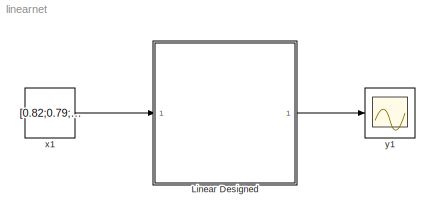
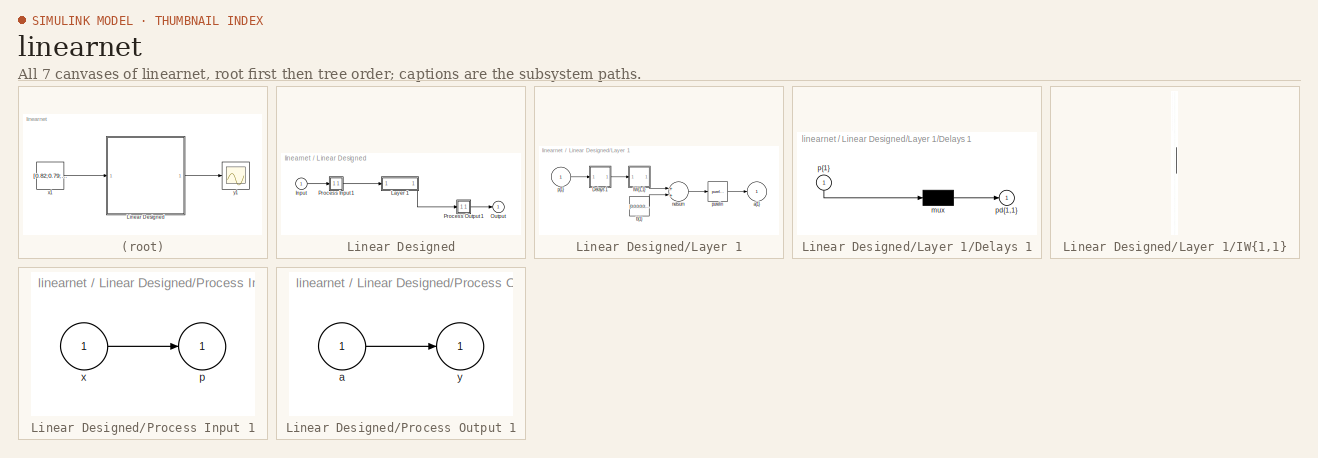
[diagram: thumbnail index - all 7 canvases of the model, root first then tree order]
MODEL linearnet
KIND model
BLOCK [SubSystem] Linear Designed
  Ports = [1, 1]
  RequestExecContextInheritance = off
  SID = 3
BLOCK [Inport] Linear Designed/Input
  IconDisplay = Port number
  PortDimensions = 361
  SID = 4
  SampleTime = 0.5
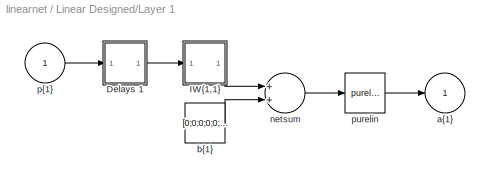
BLOCK [SubSystem] Linear Designed/Layer 1
  Ports = [1, 1]
  RequestExecContextInheritance = off
  SID = 12
BLOCK [SubSystem] Linear Designed/Layer 1/Delays 1
  Ports = [1, 1]
  RequestExecContextInheritance = off
  SID = 17
BLOCK [Mux] Linear Designed/Layer 1/Delays 1/mux
  Inputs = 1
  Ports = [1, 1]
  SID = 19
BLOCK [Outport] Linear Designed/Layer 1/Delays 1/pd{1,1}
  IconDisplay = Port number
  SID = 20
BLOCK [Inport] Linear Designed/Layer 1/Delays 1/p{1}
  IconDisplay = Port number
  PortDimensions = 361
  SID = 18
  SampleTime = 0.5
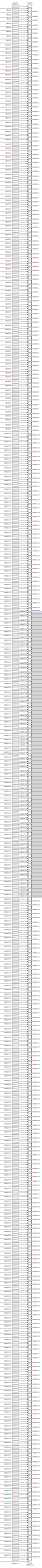
[diagram: Linear Designed/Layer 1/IW{1,1} - part 1/4, center side, full height]
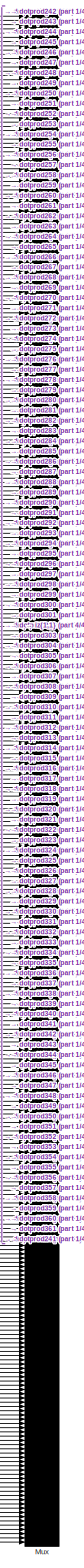
[diagram: Linear Designed/Layer 1/IW{1,1} - part 2/4, middle right region]
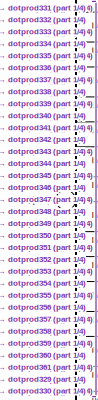
[diagram: Linear Designed/Layer 1/IW{1,1} - part 3/4, middle left region]
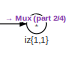
[diagram: Linear Designed/Layer 1/IW{1,1} - part 4/4, middle right region]
BLOCK [SubSystem] Linear Designed/Layer 1/IW{1,1}
  Ports = [1, 1]
  RequestExecContextInheritance = off
  SID = 21
BLOCK [Constant] Linear Designed/Layer 1/IW{1,1}/IW{1,1}(1,:)'
  SID = 24
  Value = [0;0;0;0;0;0;0;0;0;0;0;0;0;0;0;0;0;0;0;0;0;0;0;0;0;0;0;0;0;0;0;0;0;0;0;0;0;0;0;0;0;0;0;0;0;0;0;0;0;0;0;0;0;0;0;0;0;0;0;0;0;0;0;0;0;0;0;0;0;0;0;0;0;0;0;0;0;0;0;0;0;0;0;0;0;0;0;0;0;0;0;0;0;0;0;0;0;0;0;0;0;0;0;0;0;0;0;0;0;0;0;0;0;0;0;0;0;0;0;0;0;0;0;0;0;0;0;0;0;0;0;0;0;0;0;0;0;0;0;0;0;0;0;0;0;0;0;0;0;0;0;0;0;0;0;0;0;0;0;0;0;0;0;0;0;0;0;0;0;0;0;0;0;0;0;0;0;0;0;0;0;0;0;0;0;0;0;0;0;0;0;0;0;0;0;0;0;0;0;0...<+323ch>
BLOCK [Constant] Linear Designed/Layer 1/IW{1,1}/IW{1,1}(10,:)'
  SID = 42
  Value = [0;0;0;0;0;0;0;0;0;0;0;0;0;0;0;0;0;0;0;0;0;0;0;0;0;0;0;0;0;0;0;-6.6478341546318729e-19;0;0;0;0;0;0;0;0;0;0;0;0;0;0;0;0;0;0;0;0;0;0;0;0;0;0;0;0;0;0;0;0;0;0;0;0;0;0;0;0;0;0;0;0;0;0;0;0;0;0;0;0;0;0;0;0;0;0;0;0;0;0;0;0;0;0;0;0;0;0;0;0;0;0;0;0;0;0;0;0;0;0;0;0;0;0;0;0;0;0;0;0;0;0;0;0;0;0;0;0;0;0;0;0;0;0;0;0;0;0;0;0;0;0;0;0;0;0;0;0;0;0;0;0;0;0;0;0;0;0;0;0;0;0;0;0;0;0;0;0;0;0;0;0;0;0;0;0;0;0;0;0;0;0;0;0;0...<+345ch>
BLOCK [Constant] Linear Designed/Layer 1/IW{1,1}/IW{1,1}(100,:)'
  SID = 222
  Value = [0;0;0;0;0;0;0;0;0;0;0;0;0;0;0;0;0;0;0;0;0;0;0;0;0;0;0;0;0;0;0;-0.00037821509277467975;0;0;0;0;0;0;0;0;0;0;0;0;0;0;0;0;0;0;0;0;0;0;0;0;0;0;0;0;0;0;0;0;0;0;0;0;0;0;0;0;0;0;0;0;0;0;0;0;0;0;0;0;0;0;0;0;0;0;0;0;0;0;0;0;0;0;0;0;0;0;0;0;0;0;0;0;0;0;0;0;0;0;0;0;0;0;0;0;0;0;0;0;0;0;0;0;0;0;0;0;0;0;0;0;0;0;0;0;0;0;0;0;0;0;0;0;0;0;0;0;0;0;0;0;0;0;0;0;0;0;0;0;0;0;0;0;0;0;0;0;0;0;0;0;0;0;0;0;0;0;0;0;0;0;0;0;0...<+345ch>
BLOCK [Constant] Linear Designed/Layer 1/IW{1,1}/IW{1,1}(101,:)'
  SID = 224
  Value = [0;0;0;0;0;0;0;0;0;0;0;0;0;0;0;0;0;0;0;0;0;0;0;0;0;0;0;0;0;0;0;-0.00036866500523353643;0;0;0;0;0;0;0;0;0;0;0;0;0;0;0;0;0;0;0;0;0;0;0;0;0;0;0;0;0;0;0;0;0;0;0;0;0;0;0;0;0;0;0;0;0;0;0;0;0;0;0;0;0;0;0;0;0;0;0;0;0;0;0;0;0;0;0;0;0;0;0;0;0;0;0;0;0;0;0;0;0;0;0;0;0;0;0;0;0;0;0;0;0;0;0;0;0;0;0;0;0;0;0;0;0;0;0;0;0;0;0;0;0;0;0;0;0;0;0;0;0;0;0;0;0;0;0;0;0;0;0;0;0;0;0;0;0;0;0;0;0;0;0;0;0;0;0;0;0;0;0;0;0;0;0;0;0...<+345ch>
BLOCK [Constant] Linear Designed/Layer 1/IW{1,1}/IW{1,1}(102,:)'
  SID = 226
  Value = [0;0;0;0;0;0;0;0;0;0;0;0;0;0;0;0;0;0;0;0;0;0;0;0;0;0;0;0;0;0;0;-0.00035936940287679183;0;0;0;0;0;0;0;0;0;0;0;0;0;0;0;0;0;0;0;0;0;0;0;0;0;0;0;0;0;0;0;0;0;0;0;0;0;0;0;0;0;0;0;0;0;0;0;0;0;0;0;0;0;0;0;0;0;0;0;0;0;0;0;0;0;0;0;0;0;0;0;0;0;0;0;0;0;0;0;0;0;0;0;0;0;0;0;0;0;0;0;0;0;0;0;0;0;0;0;0;0;0;0;0;0;0;0;0;0;0;0;0;0;0;0;0;0;0;0;0;0;0;0;0;0;0;0;0;0;0;0;0;0;0;0;0;0;0;0;0;0;0;0;0;0;0;0;0;0;0;0;0;0;0;0;0;0...<+345ch>
BLOCK [Constant] Linear Designed/Layer 1/IW{1,1}/IW{1,1}(103,:)'
  SID = 228
  Value = [0;0;0;0;0;0;0;0;0;0;0;0;0;0;0;0;0;0;0;0;0;0;0;0;0;0;0;0;0;0;0;-0.00035032006250051192;0;0;0;0;0;0;0;0;0;0;0;0;0;0;0;0;0;0;0;0;0;0;0;0;0;0;0;0;0;0;0;0;0;0;0;0;0;0;0;0;0;0;0;0;0;0;0;0;0;0;0;0;0;0;0;0;0;0;0;0;0;0;0;0;0;0;0;0;0;0;0;0;0;0;0;0;0;0;0;0;0;0;0;0;0;0;0;0;0;0;0;0;0;0;0;0;0;0;0;0;0;0;0;0;0;0;0;0;0;0;0;0;0;0;0;0;0;0;0;0;0;0;0;0;0;0;0;0;0;0;0;0;0;0;0;0;0;0;0;0;0;0;0;0;0;0;0;0;0;0;0;0;0;0;0;0;0...<+345ch>
BLOCK [Constant] Linear Designed/Layer 1/IW{1,1}/IW{1,1}(104,:)'
  SID = 230
  Value = [0;0;0;0;0;0;0;0;0;0;0;0;0;0;0;0;0;0;0;0;0;0;0;0;0;0;0;0;0;0;0;-0.00034150918865746686;0;0;0;0;0;0;0;0;0;0;0;0;0;0;0;0;0;0;0;0;0;0;0;0;0;0;0;0;0;0;0;0;0;0;0;0;0;0;0;0;0;0;0;0;0;0;0;0;0;0;0;0;0;0;0;0;0;0;0;0;0;0;0;0;0;0;0;0;0;0;0;0;0;0;0;0;0;0;0;0;0;0;0;0;0;0;0;0;0;0;0;0;0;0;0;0;0;0;0;0;0;0;0;0;0;0;0;0;0;0;0;0;0;0;0;0;0;0;0;0;0;0;0;0;0;0;0;0;0;0;0;0;0;0;0;0;0;0;0;0;0;0;0;0;0;0;0;0;0;0;0;0;0;0;0;0;0...<+345ch>
BLOCK [Constant] Linear Designed/Layer 1/IW{1,1}/IW{1,1}(105,:)'
  SID = 232
  Value = [0;0;0;0;0;0;0;0;0;0;0;0;0;0;0;0;0;0;0;0;0;0;0;0;0;0;0;0;0;0;0;-0.00033292937563514748;0;0;0;0;0;0;0;0;0;0;0;0;0;0;0;0;0;0;0;0;0;0;0;0;0;0;0;0;0;0;0;0;0;0;0;0;0;0;0;0;0;0;0;0;0;0;0;0;0;0;0;0;0;0;0;0;0;0;0;0;0;0;0;0;0;0;0;0;0;0;0;0;0;0;0;0;0;0;0;0;0;0;0;0;0;0;0;0;0;0;0;0;0;0;0;0;0;0;0;0;0;0;0;0;0;0;0;0;0;0;0;0;0;0;0;0;0;0;0;0;0;0;0;0;0;0;0;0;0;0;0;0;0;0;0;0;0;0;0;0;0;0;0;0;0;0;0;0;0;0;0;0;0;0;0;0;0...<+345ch>
BLOCK [Constant] Linear Designed/Layer 1/IW{1,1}/IW{1,1}(106,:)'
  SID = 234
  Value = [0;0;0;0;0;0;0;0;0;0;0;0;0;0;0;0;0;0;0;0;0;0;0;0;0;0;0;0;0;0;0;-0.00032457357352839132;0;0;0;0;0;0;0;0;0;0;0;0;0;0;0;0;0;0;0;0;0;0;0;0;0;0;0;0;0;0;0;0;0;0;0;0;0;0;0;0;0;0;0;0;0;0;0;0;0;0;0;0;0;0;0;0;0;0;0;0;0;0;0;0;0;0;0;0;0;0;0;0;0;0;0;0;0;0;0;0;0;0;0;0;0;0;0;0;0;0;0;0;0;0;0;0;0;0;0;0;0;0;0;0;0;0;0;0;0;0;0;0;0;0;0;0;0;0;0;0;0;0;0;0;0;0;0;0;0;0;0;0;0;0;0;0;0;0;0;0;0;0;0;0;0;0;0;0;0;0;0;0;0;0;0;0;0...<+345ch>
BLOCK [Constant] Linear Designed/Layer 1/IW{1,1}/IW{1,1}(107,:)'
  SID = 236
  Value = [0;0;0;0;0;0;0;0;0;0;0;0;0;0;0;0;0;0;0;0;0;0;0;0;0;0;0;0;0;0;0;-0.00031643505805656954;0;0;0;0;0;0;0;0;0;0;0;0;0;0;0;0;0;0;0;0;0;0;0;0;0;0;0;0;0;0;0;0;0;0;0;0;0;0;0;0;0;0;0;0;0;0;0;0;0;0;0;0;0;0;0;0;0;0;0;0;0;0;0;0;0;0;0;0;0;0;0;0;0;0;0;0;0;0;0;0;0;0;0;0;0;0;0;0;0;0;0;0;0;0;0;0;0;0;0;0;0;0;0;0;0;0;0;0;0;0;0;0;0;0;0;0;0;0;0;0;0;0;0;0;0;0;0;0;0;0;0;0;0;0;0;0;0;0;0;0;0;0;0;0;0;0;0;0;0;0;0;0;0;0;0;0;0...<+345ch>
BLOCK [Constant] Linear Designed/Layer 1/IW{1,1}/IW{1,1}(108,:)'
  SID = 238
  Value = [0;0;0;0;0;0;0;0;0;0;0;0;0;0;0;0;0;0;0;0;0;0;0;0;0;0;0;0;0;0;0;-0.00030850740376532127;0;0;0;0;0;0;0;0;0;0;0;0;0;0;0;0;0;0;0;0;0;0;0;0;0;0;0;0;0;0;0;0;0;0;0;0;0;0;0;0;0;0;0;0;0;0;0;0;0;0;0;0;0;0;0;0;0;0;0;0;0;0;0;0;0;0;0;0;0;0;0;0;0;0;0;0;0;0;0;0;0;0;0;0;0;0;0;0;0;0;0;0;0;0;0;0;0;0;0;0;0;0;0;0;0;0;0;0;0;0;0;0;0;0;0;0;0;0;0;0;0;0;0;0;0;0;0;0;0;0;0;0;0;0;0;0;0;0;0;0;0;0;0;0;0;0;0;0;0;0;0;0;0;0;0;0;0...<+345ch>
BLOCK [Constant] Linear Designed/Layer 1/IW{1,1}/IW{1,1}(109,:)'
  SID = 240
  Value = [0;0;0;0;0;0;0;0;0;0;0;0;0;0;0;0;0;0;0;0;0;0;0;0;0;0;0;0;0;0;0;-0.00030078446025881192;0;0;0;0;0;0;0;0;0;0;0;0;0;0;0;0;0;0;0;0;0;0;0;0;0;0;0;0;0;0;0;0;0;0;0;0;0;0;0;0;0;0;0;0;0;0;0;0;0;0;0;0;0;0;0;0;0;0;0;0;0;0;0;0;0;0;0;0;0;0;0;0;0;0;0;0;0;0;0;0;0;0;0;0;0;0;0;0;0;0;0;0;0;0;0;0;0;0;0;0;0;0;0;0;0;0;0;0;0;0;0;0;0;0;0;0;0;0;0;0;0;0;0;0;0;0;0;0;0;0;0;0;0;0;0;0;0;0;0;0;0;0;0;0;0;0;0;0;0;0;0;0;0;0;0;0;0...<+345ch>
BLOCK [Constant] Linear Designed/Layer 1/IW{1,1}/IW{1,1}(11,:)'
  SID = 44
  Value = [0;0;0;0;0;0;0;0;0;0;0;0;0;0;0;0;0;0;0;0;0;0;0;0;0;0;0;0;0;0;0;-9.4612074548311746e-19;0;0;0;0;0;0;0;0;0;0;0;0;0;0;0;0;0;0;0;0;0;0;0;0;0;0;0;0;0;0;0;0;0;0;0;0;0;0;0;0;0;0;0;0;0;0;0;0;0;0;0;0;0;0;0;0;0;0;0;0;0;0;0;0;0;0;0;0;0;0;0;0;0;0;0;0;0;0;0;0;0;0;0;0;0;0;0;0;0;0;0;0;0;0;0;0;0;0;0;0;0;0;0;0;0;0;0;0;0;0;0;0;0;0;0;0;0;0;0;0;0;0;0;0;0;0;0;0;0;0;0;0;0;0;0;0;0;0;0;0;0;0;0;0;0;0;0;0;0;0;0;0;0;0;0;0;0...<+345ch>
BLOCK [Constant] Linear Designed/Layer 1/IW{1,1}/IW{1,1}(110,:)'
  SID = 242
  Value = [0;0;0;0;0;0;0;0;0;0;0;0;0;0;0;0;0;0;0;0;0;0;0;0;0;0;0;0;0;0;0;-0.00029326033112501618;0;0;0;0;0;0;0;0;0;0;0;0;0;0;0;0;0;0;0;0;0;0;0;0;0;0;0;0;0;0;0;0;0;0;0;0;0;0;0;0;0;0;0;0;0;0;0;0;0;0;0;0;0;0;0;0;0;0;0;0;0;0;0;0;0;0;0;0;0;0;0;0;0;0;0;0;0;0;0;0;0;0;0;0;0;0;0;0;0;0;0;0;0;0;0;0;0;0;0;0;0;0;0;0;0;0;0;0;0;0;0;0;0;0;0;0;0;0;0;0;0;0;0;0;0;0;0;0;0;0;0;0;0;0;0;0;0;0;0;0;0;0;0;0;0;0;0;0;0;0;0;0;0;0;0;0;0...<+345ch>
BLOCK [Constant] Linear Designed/Layer 1/IW{1,1}/IW{1,1}(111,:)'
  SID = 244
  Value = [0;0;0;0;0;0;0;0;0;0;0;0;0;0;0;0;0;0;0;0;0;0;0;0;0;0;0;0;0;0;0;-0.00028592935523952479;0;0;0;0;0;0;0;0;0;0;0;0;0;0;0;0;0;0;0;0;0;0;0;0;0;0;0;0;0;0;0;0;0;0;0;0;0;0;0;0;0;0;0;0;0;0;0;0;0;0;0;0;0;0;0;0;0;0;0;0;0;0;0;0;0;0;0;0;0;0;0;0;0;0;0;0;0;0;0;0;0;0;0;0;0;0;0;0;0;0;0;0;0;0;0;0;0;0;0;0;0;0;0;0;0;0;0;0;0;0;0;0;0;0;0;0;0;0;0;0;0;0;0;0;0;0;0;0;0;0;0;0;0;0;0;0;0;0;0;0;0;0;0;0;0;0;0;0;0;0;0;0;0;0;0;0;0...<+345ch>
BLOCK [Constant] Linear Designed/Layer 1/IW{1,1}/IW{1,1}(112,:)'
  SID = 246
  Value = [0;0;0;0;0;0;0;0;0;0;0;0;0;0;0;0;0;0;0;0;0;0;0;0;0;0;0;0;0;0;0;-0.00027878609015988297;0;0;0;0;0;0;0;0;0;0;0;0;0;0;0;0;0;0;0;0;0;0;0;0;0;0;0;0;0;0;0;0;0;0;0;0;0;0;0;0;0;0;0;0;0;0;0;0;0;0;0;0;0;0;0;0;0;0;0;0;0;0;0;0;0;0;0;0;0;0;0;0;0;0;0;0;0;0;0;0;0;0;0;0;0;0;0;0;0;0;0;0;0;0;0;0;0;0;0;0;0;0;0;0;0;0;0;0;0;0;0;0;0;0;0;0;0;0;0;0;0;0;0;0;0;0;0;0;0;0;0;0;0;0;0;0;0;0;0;0;0;0;0;0;0;0;0;0;0;0;0;0;0;0;0;0;0...<+345ch>
BLOCK [Constant] Linear Designed/Layer 1/IW{1,1}/IW{1,1}(113,:)'
  SID = 248
  Value = [0;0;0;0;0;0;0;0;0;0;0;0;0;0;0;0;0;0;0;0;0;0;0;0;0;0;0;0;0;0;0;-0.00027182529735037512;0;0;0;0;0;0;0;0;0;0;0;0;0;0;0;0;0;0;0;0;0;0;0;0;0;0;0;0;0;0;0;0;0;0;0;0;0;0;0;0;0;0;0;0;0;0;0;0;0;0;0;0;0;0;0;0;0;0;0;0;0;0;0;0;0;0;0;0;0;0;0;0;0;0;0;0;0;0;0;0;0;0;0;0;0;0;0;0;0;0;0;0;0;0;0;0;0;0;0;0;0;0;0;0;0;0;0;0;0;0;0;0;0;0;0;0;0;0;0;0;0;0;0;0;0;0;0;0;0;0;0;0;0;0;0;0;0;0;0;0;0;0;0;0;0;0;0;0;0;0;0;0;0;0;0;0;0...<+345ch>
BLOCK [Constant] Linear Designed/Layer 1/IW{1,1}/IW{1,1}(114,:)'
  SID = 250
  Value = [0;0;0;0;0;0;0;0;0;0;0;0;0;0;0;0;0;0;0;0;0;0;0;0;0;0;0;0;0;0;0;-0.000265041929004963;0;0;0;0;0;0;0;0;0;0;0;0;0;0;0;0;0;0;0;0;0;0;0;0;0;0;0;0;0;0;0;0;0;0;0;0;0;0;0;0;0;0;0;0;0;0;0;0;0;0;0;0;0;0;0;0;0;0;0;0;0;0;0;0;0;0;0;0;0;0;0;0;0;0;0;0;0;0;0;0;0;0;0;0;0;0;0;0;0;0;0;0;0;0;0;0;0;0;0;0;0;0;0;0;0;0;0;0;0;0;0;0;0;0;0;0;0;0;0;0;0;0;0;0;0;0;0;0;0;0;0;0;0;0;0;0;0;0;0;0;0;0;0;0;0;0;0;0;0;0;0;0;0;0;0;0;0;0...<+343ch>
BLOCK [Constant] Linear Designed/Layer 1/IW{1,1}/IW{1,1}(115,:)'
  SID = 252
  Value = [0;0;0;0;0;0;0;0;0;0;0;0;0;0;0;0;0;0;0;0;0;0;0;0;0;0;0;0;0;0;0;-0.00025843111626282754;0;0;0;0;0;0;0;0;0;0;0;0;0;0;0;0;0;0;0;0;0;0;0;0;0;0;0;0;0;0;0;0;0;0;0;0;0;0;0;0;0;0;0;0;0;0;0;0;0;0;0;0;0;0;0;0;0;0;0;0;0;0;0;0;0;0;0;0;0;0;0;0;0;0;0;0;0;0;0;0;0;0;0;0;0;0;0;0;0;0;0;0;0;0;0;0;0;0;0;0;0;0;0;0;0;0;0;0;0;0;0;0;0;0;0;0;0;0;0;0;0;0;0;0;0;0;0;0;0;0;0;0;0;0;0;0;0;0;0;0;0;0;0;0;0;0;0;0;0;0;0;0;0;0;0;0;0...<+345ch>
BLOCK [Constant] Linear Designed/Layer 1/IW{1,1}/IW{1,1}(116,:)'
  SID = 254
  Value = [0;0;0;0;0;0;0;0;0;0;0;0;0;0;0;0;0;0;0;0;0;0;0;0;0;0;0;0;0;0;0;-0.00025198815863597033;0;0;0;0;0;0;0;0;0;0;0;0;0;0;0;0;0;0;0;0;0;0;0;0;0;0;0;0;0;0;0;0;0;0;0;0;0;0;0;0;0;0;0;0;0;0;0;0;0;0;0;0;0;0;0;0;0;0;0;0;0;0;0;0;0;0;0;0;0;0;0;0;0;0;0;0;0;0;0;0;0;0;0;0;0;0;0;0;0;0;0;0;0;0;0;0;0;0;0;0;0;0;0;0;0;0;0;0;0;0;0;0;0;0;0;0;0;0;0;0;0;0;0;0;0;0;0;0;0;0;0;0;0;0;0;0;0;0;0;0;0;0;0;0;0;0;0;0;0;0;0;0;0;0;0;0;0...<+345ch>
BLOCK [Constant] Linear Designed/Layer 1/IW{1,1}/IW{1,1}(117,:)'
  SID = 256
  Value = [0;0;0;0;0;0;0;0;0;0;0;0;0;0;0;0;0;0;0;0;0;0;0;0;0;0;0;0;0;0;0;-0.00024570851449130327;0;0;0;0;0;0;0;0;0;0;0;0;0;0;0;0;0;0;0;0;0;0;0;0;0;0;0;0;0;0;0;0;0;0;0;0;0;0;0;0;0;0;0;0;0;0;0;0;0;0;0;0;0;0;0;0;0;0;0;0;0;0;0;0;0;0;0;0;0;0;0;0;0;0;0;0;0;0;0;0;0;0;0;0;0;0;0;0;0;0;0;0;0;0;0;0;0;0;0;0;0;0;0;0;0;0;0;0;0;0;0;0;0;0;0;0;0;0;0;0;0;0;0;0;0;0;0;0;0;0;0;0;0;0;0;0;0;0;0;0;0;0;0;0;0;0;0;0;0;0;0;0;0;0;0;0;0...<+345ch>
BLOCK [Constant] Linear Designed/Layer 1/IW{1,1}/IW{1,1}(118,:)'
  SID = 258
  Value = [0;0;0;0;0;0;0;0;0;0;0;0;0;0;0;0;0;0;0;0;0;0;0;0;0;0;0;0;0;0;0;-0.00023958779245041405;0;0;0;0;0;0;0;0;0;0;0;0;0;0;0;0;0;0;0;0;0;0;0;0;0;0;0;0;0;0;0;0;0;0;0;0;0;0;0;0;0;0;0;0;0;0;0;0;0;0;0;0;0;0;0;0;0;0;0;0;0;0;0;0;0;0;0;0;0;0;0;0;0;0;0;0;0;0;0;0;0;0;0;0;0;0;0;0;0;0;0;0;0;0;0;0;0;0;0;0;0;0;0;0;0;0;0;0;0;0;0;0;0;0;0;0;0;0;0;0;0;0;0;0;0;0;0;0;0;0;0;0;0;0;0;0;0;0;0;0;0;0;0;0;0;0;0;0;0;0;0;0;0;0;0;0;0...<+345ch>
BLOCK [Constant] Linear Designed/Layer 1/IW{1,1}/IW{1,1}(119,:)'
  SID = 260
  Value = [0;0;0;0;0;0;0;0;0;0;0;0;0;0;0;0;0;0;0;0;0;0;0;0;0;0;0;0;0;0;0;-0.0002336217435886953;0;0;0;0;0;0;0;0;0;0;0;0;0;0;0;0;0;0;0;0;0;0;0;0;0;0;0;0;0;0;0;0;0;0;0;0;0;0;0;0;0;0;0;0;0;0;0;0;0;0;0;0;0;0;0;0;0;0;0;0;0;0;0;0;0;0;0;0;0;0;0;0;0;0;0;0;0;0;0;0;0;0;0;0;0;0;0;0;0;0;0;0;0;0;0;0;0;0;0;0;0;0;0;0;0;0;0;0;0;0;0;0;0;0;0;0;0;0;0;0;0;0;0;0;0;0;0;0;0;0;0;0;0;0;0;0;0;0;0;0;0;0;0;0;0;0;0;0;0;0;0;0;0;0;0;0;0;...<+344ch>
BLOCK [Constant] Linear Designed/Layer 1/IW{1,1}/IW{1,1}(12,:)'
  SID = 46
  Value = [0;0;0;0;0;0;0;0;0;0;0;0;0;0;0;0;0;0;0;0;0;0;0;0;0;0;0;0;0;0;0;-1.2520631584472301e-18;0;0;0;0;0;0;0;0;0;0;0;0;0;0;0;0;0;0;0;0;0;0;0;0;0;0;0;0;0;0;0;0;0;0;0;0;0;0;0;0;0;0;0;0;0;0;0;0;0;0;0;0;0;0;0;0;0;0;0;0;0;0;0;0;0;0;0;0;0;0;0;0;0;0;0;0;0;0;0;0;0;0;0;0;0;0;0;0;0;0;0;0;0;0;0;0;0;0;0;0;0;0;0;0;0;0;0;0;0;0;0;0;0;0;0;0;0;0;0;0;0;0;0;0;0;0;0;0;0;0;0;0;0;0;0;0;0;0;0;0;0;0;0;0;0;0;0;0;0;0;0;0;0;0;0;0;0...<+345ch>
BLOCK [Constant] Linear Designed/Layer 1/IW{1,1}/IW{1,1}(120,:)'
  SID = 262
  Value = [0;0;0;0;0;0;0;0;0;0;0;0;0;0;0;0;0;0;0;0;0;0;0;0;0;0;0;0;0;0;0;-0.00022780625433188449;0;0;0;0;0;0;0;0;0;0;0;0;0;0;0;0;0;0;0;0;0;0;0;0;0;0;0;0;0;0;0;0;0;0;0;0;0;0;0;0;0;0;0;0;0;0;0;0;0;0;0;0;0;0;0;0;0;0;0;0;0;0;0;0;0;0;0;0;0;0;0;0;0;0;0;0;0;0;0;0;0;0;0;0;0;0;0;0;0;0;0;0;0;0;0;0;0;0;0;0;0;0;0;0;0;0;0;0;0;0;0;0;0;0;0;0;0;0;0;0;0;0;0;0;0;0;0;0;0;0;0;0;0;0;0;0;0;0;0;0;0;0;0;0;0;0;0;0;0;0;0;0;0;0;0;0;0...<+345ch>
BLOCK [Constant] Linear Designed/Layer 1/IW{1,1}/IW{1,1}(121,:)'
  SID = 264
  Value = [0;0;0;0;0;0;0;0;0;0;0;0;0;0;0;0;0;0;0;0;0;0;0;0;0;0;0;0;0;0;0;-0.00022213733996236107;0;0;0;0;0;0;0;0;0;0;0;0;0;0;0;0;0;0;0;0;0;0;0;0;0;0;0;0;0;0;0;0;0;0;0;0;0;0;0;0;0;0;0;0;0;0;0;0;0;0;0;0;0;0;0;0;0;0;0;0;0;0;0;0;0;0;0;0;0;0;0;0;0;0;0;0;0;0;0;0;0;0;0;0;0;0;0;0;0;0;0;0;0;0;0;0;0;0;0;0;0;0;0;0;0;0;0;0;0;0;0;0;0;0;0;0;0;0;0;0;0;0;0;0;0;0;0;0;0;0;0;0;0;0;0;0;0;0;0;0;0;0;0;0;0;0;0;0;0;0;0;0;0;0;0;0;0...<+345ch>
BLOCK [Constant] Linear Designed/Layer 1/IW{1,1}/IW{1,1}(122,:)'
  SID = 266
  Value = [0;0;0;0;0;0;0;0;0;0;0;0;0;0;0;0;0;0;0;0;0;0;0;0;0;0;0;0;0;0;0;-0.000216611138659979;0;0;0;0;0;0;0;0;0;0;0;0;0;0;0;0;0;0;0;0;0;0;0;0;0;0;0;0;0;0;0;0;0;0;0;0;0;0;0;0;0;0;0;0;0;0;0;0;0;0;0;0;0;0;0;0;0;0;0;0;0;0;0;0;0;0;0;0;0;0;0;0;0;0;0;0;0;0;0;0;0;0;0;0;0;0;0;0;0;0;0;0;0;0;0;0;0;0;0;0;0;0;0;0;0;0;0;0;0;0;0;0;0;0;0;0;0;0;0;0;0;0;0;0;0;0;0;0;0;0;0;0;0;0;0;0;0;0;0;0;0;0;0;0;0;0;0;0;0;0;0;0;0;0;0;0;0;0...<+343ch>
BLOCK [Constant] Linear Designed/Layer 1/IW{1,1}/IW{1,1}(123,:)'
  SID = 268
  Value = [0;0;0;0;0;0;0;0;0;0;0;0;0;0;0;0;0;0;0;0;0;0;0;0;0;0;0;0;0;0;0;-0.00021122390601294467;0;0;0;0;0;0;0;0;0;0;0;0;0;0;0;0;0;0;0;0;0;0;0;0;0;0;0;0;0;0;0;0;0;0;0;0;0;0;0;0;0;0;0;0;0;0;0;0;0;0;0;0;0;0;0;0;0;0;0;0;0;0;0;0;0;0;0;0;0;0;0;0;0;0;0;0;0;0;0;0;0;0;0;0;0;0;0;0;0;0;0;0;0;0;0;0;0;0;0;0;0;0;0;0;0;0;0;0;0;0;0;0;0;0;0;0;0;0;0;0;0;0;0;0;0;0;0;0;0;0;0;0;0;0;0;0;0;0;0;0;0;0;0;0;0;0;0;0;0;0;0;0;0;0;0;0;0...<+345ch>
BLOCK [Constant] Linear Designed/Layer 1/IW{1,1}/IW{1,1}(124,:)'
  SID = 270
  Value = [0;0;0;0;0;0;0;0;0;0;0;0;0;0;0;0;0;0;0;0;0;0;0;0;0;0;0;0;0;0;0;-0.00020597200994348604;0;0;0;0;0;0;0;0;0;0;0;0;0;0;0;0;0;0;0;0;0;0;0;0;0;0;0;0;0;0;0;0;0;0;0;0;0;0;0;0;0;0;0;0;0;0;0;0;0;0;0;0;0;0;0;0;0;0;0;0;0;0;0;0;0;0;0;0;0;0;0;0;0;0;0;0;0;0;0;0;0;0;0;0;0;0;0;0;0;0;0;0;0;0;0;0;0;0;0;0;0;0;0;0;0;0;0;0;0;0;0;0;0;0;0;0;0;0;0;0;0;0;0;0;0;0;0;0;0;0;0;0;0;0;0;0;0;0;0;0;0;0;0;0;0;0;0;0;0;0;0;0;0;0;0;0;0...<+345ch>
BLOCK [Constant] Linear Designed/Layer 1/IW{1,1}/IW{1,1}(125,:)'
  SID = 272
  Value = [0;0;0;0;0;0;0;0;0;0;0;0;0;0;0;0;0;0;0;0;0;0;0;0;0;0;0;0;0;0;0;-0.00020085192600090111;0;0;0;0;0;0;0;0;0;0;0;0;0;0;0;0;0;0;0;0;0;0;0;0;0;0;0;0;0;0;0;0;0;0;0;0;0;0;0;0;0;0;0;0;0;0;0;0;0;0;0;0;0;0;0;0;0;0;0;0;0;0;0;0;0;0;0;0;0;0;0;0;0;0;0;0;0;0;0;0;0;0;0;0;0;0;0;0;0;0;0;0;0;0;0;0;0;0;0;0;0;0;0;0;0;0;0;0;0;0;0;0;0;0;0;0;0;0;0;0;0;0;0;0;0;0;0;0;0;0;0;0;0;0;0;0;0;0;0;0;0;0;0;0;0;0;0;0;0;0;0;0;0;0;0;0;0...<+345ch>
BLOCK [Constant] Linear Designed/Layer 1/IW{1,1}/IW{1,1}(126,:)'
  SID = 274
  Value = [0;0;0;0;0;0;0;0;0;0;0;0;0;0;0;0;0;0;0;0;0;0;0;0;0;0;0;0;0;0;0;-0.0001958602329813311;0;0;0;0;0;0;0;0;0;0;0;0;0;0;0;0;0;0;0;0;0;0;0;0;0;0;0;0;0;0;0;0;0;0;0;0;0;0;0;0;0;0;0;0;0;0;0;0;0;0;0;0;0;0;0;0;0;0;0;0;0;0;0;0;0;0;0;0;0;0;0;0;0;0;0;0;0;0;0;0;0;0;0;0;0;0;0;0;0;0;0;0;0;0;0;0;0;0;0;0;0;0;0;0;0;0;0;0;0;0;0;0;0;0;0;0;0;0;0;0;0;0;0;0;0;0;0;0;0;0;0;0;0;0;0;0;0;0;0;0;0;0;0;0;0;0;0;0;0;0;0;0;0;0;0;0;0;...<+344ch>
BLOCK [Constant] Linear Designed/Layer 1/IW{1,1}/IW{1,1}(127,:)'
  SID = 276
  Value = [0;0;0;0;0;0;0;0;0;0;0;0;0;0;0;0;0;0;0;0;0;0;0;0;0;0;0;0;0;0;0;-0.0001909936088392797;0;0;0;0;0;0;0;0;0;0;0;0;0;0;0;0;0;0;0;0;0;0;0;0;0;0;0;0;0;0;0;0;0;0;0;0;0;0;0;0;0;0;0;0;0;0;0;0;0;0;0;0;0;0;0;0;0;0;0;0;0;0;0;0;0;0;0;0;0;0;0;0;0;0;0;0;0;0;0;0;0;0;0;0;0;0;0;0;0;0;0;0;0;0;0;0;0;0;0;0;0;0;0;0;0;0;0;0;0;0;0;0;0;0;0;0;0;0;0;0;0;0;0;0;0;0;0;0;0;0;0;0;0;0;0;0;0;0;0;0;0;0;0;0;0;0;0;0;0;0;0;0;0;0;0;0;0;...<+344ch>
BLOCK [Constant] Linear Designed/Layer 1/IW{1,1}/IW{1,1}(128,:)'
  SID = 278
  Value = [0;0;0;0;0;0;0;0;0;0;0;0;0;0;0;0;0;0;0;0;0;0;0;0;0;0;0;0;0;0;0;-0.0001862488268607528;0;0;0;0;0;0;0;0;0;0;0;0;0;0;0;0;0;0;0;0;0;0;0;0;0;0;0;0;0;0;0;0;0;0;0;0;0;0;0;0;0;0;0;0;0;0;0;0;0;0;0;0;0;0;0;0;0;0;0;0;0;0;0;0;0;0;0;0;0;0;0;0;0;0;0;0;0;0;0;0;0;0;0;0;0;0;0;0;0;0;0;0;0;0;0;0;0;0;0;0;0;0;0;0;0;0;0;0;0;0;0;0;0;0;0;0;0;0;0;0;0;0;0;0;0;0;0;0;0;0;0;0;0;0;0;0;0;0;0;0;0;0;0;0;0;0;0;0;0;0;0;0;0;0;0;0;0;...<+344ch>
BLOCK [Constant] Linear Designed/Layer 1/IW{1,1}/IW{1,1}(129,:)'
  SID = 280
  Value = [0;0;0;0;0;0;0;0;0;0;0;0;0;0;0;0;0;0;0;0;0;0;0;0;0;0;0;0;0;0;0;-0.00018162275207198657;0;0;0;0;0;0;0;0;0;0;0;0;0;0;0;0;0;0;0;0;0;0;0;0;0;0;0;0;0;0;0;0;0;0;0;0;0;0;0;0;0;0;0;0;0;0;0;0;0;0;0;0;0;0;0;0;0;0;0;0;0;0;0;0;0;0;0;0;0;0;0;0;0;0;0;0;0;0;0;0;0;0;0;0;0;0;0;0;0;0;0;0;0;0;0;0;0;0;0;0;0;0;0;0;0;0;0;0;0;0;0;0;0;0;0;0;0;0;0;0;0;0;0;0;0;0;0;0;0;0;0;0;0;0;0;0;0;0;0;0;0;0;0;0;0;0;0;0;0;0;0;0;0;0;0;0;0...<+345ch>
BLOCK [Constant] Linear Designed/Layer 1/IW{1,1}/IW{1,1}(13,:)'
  SID = 48
  Value = [0;0;0;0;0;0;0;0;0;0;0;0;0;0;0;0;0;0;0;0;0;0;0;0;0;0;0;0;0;0;0;-1.5742622145344308e-18;0;0;0;0;0;0;0;0;0;0;0;0;0;0;0;0;0;0;0;0;0;0;0;0;0;0;0;0;0;0;0;0;0;0;0;0;0;0;0;0;0;0;0;0;0;0;0;0;0;0;0;0;0;0;0;0;0;0;0;0;0;0;0;0;0;0;0;0;0;0;0;0;0;0;0;0;0;0;0;0;0;0;0;0;0;0;0;0;0;0;0;0;0;0;0;0;0;0;0;0;0;0;0;0;0;0;0;0;0;0;0;0;0;0;0;0;0;0;0;0;0;0;0;0;0;0;0;0;0;0;0;0;0;0;0;0;0;0;0;0;0;0;0;0;0;0;0;0;0;0;0;0;0;0;0;0;0...<+345ch>
BLOCK [Constant] Linear Designed/Layer 1/IW{1,1}/IW{1,1}(130,:)'
  SID = 282
  Value = [0;0;0;0;0;0;0;0;0;0;0;0;0;0;0;0;0;0;0;0;0;0;0;0;0;0;0;0;0;0;0;-0.00017711233786118778;0;0;0;0;0;0;0;0;0;0;0;0;0;0;0;0;0;0;0;0;0;0;0;0;0;0;0;0;0;0;0;0;0;0;0;0;0;0;0;0;0;0;0;0;0;0;0;0;0;0;0;0;0;0;0;0;0;0;0;0;0;0;0;0;0;0;0;0;0;0;0;0;0;0;0;0;0;0;0;0;0;0;0;0;0;0;0;0;0;0;0;0;0;0;0;0;0;0;0;0;0;0;0;0;0;0;0;0;0;0;0;0;0;0;0;0;0;0;0;0;0;0;0;0;0;0;0;0;0;0;0;0;0;0;0;0;0;0;0;0;0;0;0;0;0;0;0;0;0;0;0;0;0;0;0;0;0...<+345ch>
BLOCK [Constant] Linear Designed/Layer 1/IW{1,1}/IW{1,1}(131,:)'
  SID = 284
  Value = [0;0;0;0;0;0;0;0;0;0;0;0;0;0;0;0;0;0;0;0;0;0;0;0;0;0;0;0;0;0;0;-0.000172714622793647;0;0;0;0;0;0;0;0;0;0;0;0;0;0;0;0;0;0;0;0;0;0;0;0;0;0;0;0;0;0;0;0;0;0;0;0;0;0;0;0;0;0;0;0;0;0;0;0;0;0;0;0;0;0;0;0;0;0;0;0;0;0;0;0;0;0;0;0;0;0;0;0;0;0;0;0;0;0;0;0;0;0;0;0;0;0;0;0;0;0;0;0;0;0;0;0;0;0;0;0;0;0;0;0;0;0;0;0;0;0;0;0;0;0;0;0;0;0;0;0;0;0;0;0;0;0;0;0;0;0;0;0;0;0;0;0;0;0;0;0;0;0;0;0;0;0;0;0;0;0;0;0;0;0;0;0;0;0...<+343ch>
BLOCK [Constant] Linear Designed/Layer 1/IW{1,1}/IW{1,1}(132,:)'
  SID = 286
  Value = [0;0;0;0;0;0;0;0;0;0;0;0;0;0;0;0;0;0;0;0;0;0;0;0;0;0;0;0;0;0;0;-0.00016842672760306534;0;0;0;0;0;0;0;0;0;0;0;0;0;0;0;0;0;0;0;0;0;0;0;0;0;0;0;0;0;0;0;0;0;0;0;0;0;0;0;0;0;0;0;0;0;0;0;0;0;0;0;0;0;0;0;0;0;0;0;0;0;0;0;0;0;0;0;0;0;0;0;0;0;0;0;0;0;0;0;0;0;0;0;0;0;0;0;0;0;0;0;0;0;0;0;0;0;0;0;0;0;0;0;0;0;0;0;0;0;0;0;0;0;0;0;0;0;0;0;0;0;0;0;0;0;0;0;0;0;0;0;0;0;0;0;0;0;0;0;0;0;0;0;0;0;0;0;0;0;0;0;0;0;0;0;0;0...<+345ch>
BLOCK [Constant] Linear Designed/Layer 1/IW{1,1}/IW{1,1}(133,:)'
  SID = 288
  Value = [0;0;0;0;0;0;0;0;0;0;0;0;0;0;0;0;0;0;0;0;0;0;0;0;0;0;0;0;0;0;0;-0.00016424585234403133;0;0;0;0;0;0;0;0;0;0;0;0;0;0;0;0;0;0;0;0;0;0;0;0;0;0;0;0;0;0;0;0;0;0;0;0;0;0;0;0;0;0;0;0;0;0;0;0;0;0;0;0;0;0;0;0;0;0;0;0;0;0;0;0;0;0;0;0;0;0;0;0;0;0;0;0;0;0;0;0;0;0;0;0;0;0;0;0;0;0;0;0;0;0;0;0;0;0;0;0;0;0;0;0;0;0;0;0;0;0;0;0;0;0;0;0;0;0;0;0;0;0;0;0;0;0;0;0;0;0;0;0;0;0;0;0;0;0;0;0;0;0;0;0;0;0;0;0;0;0;0;0;0;0;0;0;0...<+345ch>
BLOCK [Constant] Linear Designed/Layer 1/IW{1,1}/IW{1,1}(134,:)'
  SID = 290
  Value = [0;0;0;0;0;0;0;0;0;0;0;0;0;0;0;0;0;0;0;0;0;0;0;0;0;0;0;0;0;0;0;-0.00016016927369238355;0;0;0;0;0;0;0;0;0;0;0;0;0;0;0;0;0;0;0;0;0;0;0;0;0;0;0;0;0;0;0;0;0;0;0;0;0;0;0;0;0;0;0;0;0;0;0;0;0;0;0;0;0;0;0;0;0;0;0;0;0;0;0;0;0;0;0;0;0;0;0;0;0;0;0;0;0;0;0;0;0;0;0;0;0;0;0;0;0;0;0;0;0;0;0;0;0;0;0;0;0;0;0;0;0;0;0;0;0;0;0;0;0;0;0;0;0;0;0;0;0;0;0;0;0;0;0;0;0;0;0;0;0;0;0;0;0;0;0;0;0;0;0;0;0;0;0;0;0;0;0;0;0;0;0;0;0...<+345ch>
BLOCK [Constant] Linear Designed/Layer 1/IW{1,1}/IW{1,1}(135,:)'
  SID = 292
  Value = [0;0;0;0;0;0;0;0;0;0;0;0;0;0;0;0;0;0;0;0;0;0;0;0;0;0;0;0;0;0;0;-0.00015619434238169441;0;0;0;0;0;0;0;0;0;0;0;0;0;0;0;0;0;0;0;0;0;0;0;0;0;0;0;0;0;0;0;0;0;0;0;0;0;0;0;0;0;0;0;0;0;0;0;0;0;0;0;0;0;0;0;0;0;0;0;0;0;0;0;0;0;0;0;0;0;0;0;0;0;0;0;0;0;0;0;0;0;0;0;0;0;0;0;0;0;0;0;0;0;0;0;0;0;0;0;0;0;0;0;0;0;0;0;0;0;0;0;0;0;0;0;0;0;0;0;0;0;0;0;0;0;0;0;0;0;0;0;0;0;0;0;0;0;0;0;0;0;0;0;0;0;0;0;0;0;0;0;0;0;0;0;0;0...<+345ch>
BLOCK [Constant] Linear Designed/Layer 1/IW{1,1}/IW{1,1}(136,:)'
  SID = 294
  Value = [0;0;0;0;0;0;0;0;0;0;0;0;0;0;0;0;0;0;0;0;0;0;0;0;0;0;0;0;0;0;0;-0.00015231848076543129;0;0;0;0;0;0;0;0;0;0;0;0;0;0;0;0;0;0;0;0;0;0;0;0;0;0;0;0;0;0;0;0;0;0;0;0;0;0;0;0;0;0;0;0;0;0;0;0;0;0;0;0;0;0;0;0;0;0;0;0;0;0;0;0;0;0;0;0;0;0;0;0;0;0;0;0;0;0;0;0;0;0;0;0;0;0;0;0;0;0;0;0;0;0;0;0;0;0;0;0;0;0;0;0;0;0;0;0;0;0;0;0;0;0;0;0;0;0;0;0;0;0;0;0;0;0;0;0;0;0;0;0;0;0;0;0;0;0;0;0;0;0;0;0;0;0;0;0;0;0;0;0;0;0;0;0;0...<+345ch>
BLOCK [Constant] Linear Designed/Layer 1/IW{1,1}/IW{1,1}(137,:)'
  SID = 296
  Value = [0;0;0;0;0;0;0;0;0;0;0;0;0;0;0;0;0;0;0;0;0;0;0;0;0;0;0;0;0;0;0;-0.00014853918049545403;0;0;0;0;0;0;0;0;0;0;0;0;0;0;0;0;0;0;0;0;0;0;0;0;0;0;0;0;0;0;0;0;0;0;0;0;0;0;0;0;0;0;0;0;0;0;0;0;0;0;0;0;0;0;0;0;0;0;0;0;0;0;0;0;0;0;0;0;0;0;0;0;0;0;0;0;0;0;0;0;0;0;0;0;0;0;0;0;0;0;0;0;0;0;0;0;0;0;0;0;0;0;0;0;0;0;0;0;0;0;0;0;0;0;0;0;0;0;0;0;0;0;0;0;0;0;0;0;0;0;0;0;0;0;0;0;0;0;0;0;0;0;0;0;0;0;0;0;0;0;0;0;0;0;0;0;0...<+345ch>
BLOCK [Constant] Linear Designed/Layer 1/IW{1,1}/IW{1,1}(138,:)'
  SID = 298
  Value = [0;0;0;0;0;0;0;0;0;0;0;0;0;0;0;0;0;0;0;0;0;0;0;0;0;0;0;0;0;0;0;-0.00014485400030846699;0;0;0;0;0;0;0;0;0;0;0;0;0;0;0;0;0;0;0;0;0;0;0;0;0;0;0;0;0;0;0;0;0;0;0;0;0;0;0;0;0;0;0;0;0;0;0;0;0;0;0;0;0;0;0;0;0;0;0;0;0;0;0;0;0;0;0;0;0;0;0;0;0;0;0;0;0;0;0;0;0;0;0;0;0;0;0;0;0;0;0;0;0;0;0;0;0;0;0;0;0;0;0;0;0;0;0;0;0;0;0;0;0;0;0;0;0;0;0;0;0;0;0;0;0;0;0;0;0;0;0;0;0;0;0;0;0;0;0;0;0;0;0;0;0;0;0;0;0;0;0;0;0;0;0;0;0...<+345ch>
BLOCK [Constant] Linear Designed/Layer 1/IW{1,1}/IW{1,1}(139,:)'
  SID = 300
  Value = [0;0;0;0;0;0;0;0;0;0;0;0;0;0;0;0;0;0;0;0;0;0;0;0;0;0;0;0;0;0;0;-0.0001412605639128781;0;0;0;0;0;0;0;0;0;0;0;0;0;0;0;0;0;0;0;0;0;0;0;0;0;0;0;0;0;0;0;0;0;0;0;0;0;0;0;0;0;0;0;0;0;0;0;0;0;0;0;0;0;0;0;0;0;0;0;0;0;0;0;0;0;0;0;0;0;0;0;0;0;0;0;0;0;0;0;0;0;0;0;0;0;0;0;0;0;0;0;0;0;0;0;0;0;0;0;0;0;0;0;0;0;0;0;0;0;0;0;0;0;0;0;0;0;0;0;0;0;0;0;0;0;0;0;0;0;0;0;0;0;0;0;0;0;0;0;0;0;0;0;0;0;0;0;0;0;0;0;0;0;0;0;0;0;...<+344ch>
BLOCK [Constant] Linear Designed/Layer 1/IW{1,1}/IW{1,1}(14,:)'
  SID = 50
  Value = [0;0;0;0;0;0;0;0;0;0;0;0;0;0;0;0;0;0;0;0;0;0;0;0;0;0;0;0;0;0;0;-1.9051728343076934e-18;0;0;0;0;0;0;0;0;0;0;0;0;0;0;0;0;0;0;0;0;0;0;0;0;0;0;0;0;0;0;0;0;0;0;0;0;0;0;0;0;0;0;0;0;0;0;0;0;0;0;0;0;0;0;0;0;0;0;0;0;0;0;0;0;0;0;0;0;0;0;0;0;0;0;0;0;0;0;0;0;0;0;0;0;0;0;0;0;0;0;0;0;0;0;0;0;0;0;0;0;0;0;0;0;0;0;0;0;0;0;0;0;0;0;0;0;0;0;0;0;0;0;0;0;0;0;0;0;0;0;0;0;0;0;0;0;0;0;0;0;0;0;0;0;0;0;0;0;0;0;0;0;0;0;0;0;0...<+345ch>
BLOCK [Constant] Linear Designed/Layer 1/IW{1,1}/IW{1,1}(140,:)'
  SID = 302
  Value = [0;0;0;0;0;0;0;0;0;0;0;0;0;0;0;0;0;0;0;0;0;0;0;0;0;0;0;0;0;0;0;-0.0001377565579692373;0;0;0;0;0;0;0;0;0;0;0;0;0;0;0;0;0;0;0;0;0;0;0;0;0;0;0;0;0;0;0;0;0;0;0;0;0;0;0;0;0;0;0;0;0;0;0;0;0;0;0;0;0;0;0;0;0;0;0;0;0;0;0;0;0;0;0;0;0;0;0;0;0;0;0;0;0;0;0;0;0;0;0;0;0;0;0;0;0;0;0;0;0;0;0;0;0;0;0;0;0;0;0;0;0;0;0;0;0;0;0;0;0;0;0;0;0;0;0;0;0;0;0;0;0;0;0;0;0;0;0;0;0;0;0;0;0;0;0;0;0;0;0;0;0;0;0;0;0;0;0;0;0;0;0;0;0;...<+344ch>
BLOCK [Constant] Linear Designed/Layer 1/IW{1,1}/IW{1,1}(141,:)'
  SID = 304
  Value = [0;0;0;0;0;0;0;0;0;0;0;0;0;0;0;0;0;0;0;0;0;0;0;0;0;0;0;0;0;0;0;-0.00013433973015806728;0;0;0;0;0;0;0;0;0;0;0;0;0;0;0;0;0;0;0;0;0;0;0;0;0;0;0;0;0;0;0;0;0;0;0;0;0;0;0;0;0;0;0;0;0;0;0;0;0;0;0;0;0;0;0;0;0;0;0;0;0;0;0;0;0;0;0;0;0;0;0;0;0;0;0;0;0;0;0;0;0;0;0;0;0;0;0;0;0;0;0;0;0;0;0;0;0;0;0;0;0;0;0;0;0;0;0;0;0;0;0;0;0;0;0;0;0;0;0;0;0;0;0;0;0;0;0;0;0;0;0;0;0;0;0;0;0;0;0;0;0;0;0;0;0;0;0;0;0;0;0;0;0;0;0;0;0...<+345ch>
BLOCK [Constant] Linear Designed/Layer 1/IW{1,1}/IW{1,1}(142,:)'
  SID = 306
  Value = [0;0;0;0;0;0;0;0;0;0;0;0;0;0;0;0;0;0;0;0;0;0;0;0;0;0;0;0;0;0;0;-0.00013100788732944404;0;0;0;0;0;0;0;0;0;0;0;0;0;0;0;0;0;0;0;0;0;0;0;0;0;0;0;0;0;0;0;0;0;0;0;0;0;0;0;0;0;0;0;0;0;0;0;0;0;0;0;0;0;0;0;0;0;0;0;0;0;0;0;0;0;0;0;0;0;0;0;0;0;0;0;0;0;0;0;0;0;0;0;0;0;0;0;0;0;0;0;0;0;0;0;0;0;0;0;0;0;0;0;0;0;0;0;0;0;0;0;0;0;0;0;0;0;0;0;0;0;0;0;0;0;0;0;0;0;0;0;0;0;0;0;0;0;0;0;0;0;0;0;0;0;0;0;0;0;0;0;0;0;0;0;0;0...<+345ch>
BLOCK [Constant] Linear Designed/Layer 1/IW{1,1}/IW{1,1}(143,:)'
  SID = 308
  Value = [0;0;0;0;0;0;0;0;0;0;0;0;0;0;0;0;0;0;0;0;0;0;0;0;0;0;0;0;0;0;0;-0.00012775889372917376;0;0;0;0;0;0;0;0;0;0;0;0;0;0;0;0;0;0;0;0;0;0;0;0;0;0;0;0;0;0;0;0;0;0;0;0;0;0;0;0;0;0;0;0;0;0;0;0;0;0;0;0;0;0;0;0;0;0;0;0;0;0;0;0;0;0;0;0;0;0;0;0;0;0;0;0;0;0;0;0;0;0;0;0;0;0;0;0;0;0;0;0;0;0;0;0;0;0;0;0;0;0;0;0;0;0;0;0;0;0;0;0;0;0;0;0;0;0;0;0;0;0;0;0;0;0;0;0;0;0;0;0;0;0;0;0;0;0;0;0;0;0;0;0;0;0;0;0;0;0;0;0;0;0;0;0;0...<+345ch>
BLOCK [Constant] Linear Designed/Layer 1/IW{1,1}/IW{1,1}(144,:)'
  SID = 310
  Value = [0;0;0;0;0;0;0;0;0;0;0;0;0;0;0;0;0;0;0;0;0;0;0;0;0;0;0;0;0;0;0;-0.00012459066929686299;0;0;0;0;0;0;0;0;0;0;0;0;0;0;0;0;0;0;0;0;0;0;0;0;0;0;0;0;0;0;0;0;0;0;0;0;0;0;0;0;0;0;0;0;0;0;0;0;0;0;0;0;0;0;0;0;0;0;0;0;0;0;0;0;0;0;0;0;0;0;0;0;0;0;0;0;0;0;0;0;0;0;0;0;0;0;0;0;0;0;0;0;0;0;0;0;0;0;0;0;0;0;0;0;0;0;0;0;0;0;0;0;0;0;0;0;0;0;0;0;0;0;0;0;0;0;0;0;0;0;0;0;0;0;0;0;0;0;0;0;0;0;0;0;0;0;0;0;0;0;0;0;0;0;0;0;0...<+345ch>
BLOCK [Constant] Linear Designed/Layer 1/IW{1,1}/IW{1,1}(145,:)'
  SID = 312
  Value = [0;0;0;0;0;0;0;0;0;0;0;0;0;0;0;0;0;0;0;0;0;0;0;0;0;0;0;0;0;0;0;-0.00012150118803156183;0;0;0;0;0;0;0;0;0;0;0;0;0;0;0;0;0;0;0;0;0;0;0;0;0;0;0;0;0;0;0;0;0;0;0;0;0;0;0;0;0;0;0;0;0;0;0;0;0;0;0;0;0;0;0;0;0;0;0;0;0;0;0;0;0;0;0;0;0;0;0;0;0;0;0;0;0;0;0;0;0;0;0;0;0;0;0;0;0;0;0;0;0;0;0;0;0;0;0;0;0;0;0;0;0;0;0;0;0;0;0;0;0;0;0;0;0;0;0;0;0;0;0;0;0;0;0;0;0;0;0;0;0;0;0;0;0;0;0;0;0;0;0;0;0;0;0;0;0;0;0;0;0;0;0;0;0...<+345ch>
BLOCK [Constant] Linear Designed/Layer 1/IW{1,1}/IW{1,1}(146,:)'
  SID = 314
  Value = [0;0;0;0;0;0;0;0;0;0;0;0;0;0;0;0;0;0;0;0;0;0;0;0;0;0;0;0;0;0;0;-0.00011848847642099194;0;0;0;0;0;0;0;0;0;0;0;0;0;0;0;0;0;0;0;0;0;0;0;0;0;0;0;0;0;0;0;0;0;0;0;0;0;0;0;0;0;0;0;0;0;0;0;0;0;0;0;0;0;0;0;0;0;0;0;0;0;0;0;0;0;0;0;0;0;0;0;0;0;0;0;0;0;0;0;0;0;0;0;0;0;0;0;0;0;0;0;0;0;0;0;0;0;0;0;0;0;0;0;0;0;0;0;0;0;0;0;0;0;0;0;0;0;0;0;0;0;0;0;0;0;0;0;0;0;0;0;0;0;0;0;0;0;0;0;0;0;0;0;0;0;0;0;0;0;0;0;0;0;0;0;0;0...<+345ch>
BLOCK [Constant] Linear Designed/Layer 1/IW{1,1}/IW{1,1}(147,:)'
  SID = 316
  Value = [0;0;0;0;0;0;0;0;0;0;0;0;0;0;0;0;0;0;0;0;0;0;0;0;0;0;0;0;0;0;0;-0.00011555061193070637;0;0;0;0;0;0;0;0;0;0;0;0;0;0;0;0;0;0;0;0;0;0;0;0;0;0;0;0;0;0;0;0;0;0;0;0;0;0;0;0;0;0;0;0;0;0;0;0;0;0;0;0;0;0;0;0;0;0;0;0;0;0;0;0;0;0;0;0;0;0;0;0;0;0;0;0;0;0;0;0;0;0;0;0;0;0;0;0;0;0;0;0;0;0;0;0;0;0;0;0;0;0;0;0;0;0;0;0;0;0;0;0;0;0;0;0;0;0;0;0;0;0;0;0;0;0;0;0;0;0;0;0;0;0;0;0;0;0;0;0;0;0;0;0;0;0;0;0;0;0;0;0;0;0;0;0;0...<+345ch>
BLOCK [Constant] Linear Designed/Layer 1/IW{1,1}/IW{1,1}(148,:)'
  SID = 318
  Value = [0;0;0;0;0;0;0;0;0;0;0;0;0;0;0;0;0;0;0;0;0;0;0;0;0;0;0;0;0;0;0;-0.00011268572154980413;0;0;0;0;0;0;0;0;0;0;0;0;0;0;0;0;0;0;0;0;0;0;0;0;0;0;0;0;0;0;0;0;0;0;0;0;0;0;0;0;0;0;0;0;0;0;0;0;0;0;0;0;0;0;0;0;0;0;0;0;0;0;0;0;0;0;0;0;0;0;0;0;0;0;0;0;0;0;0;0;0;0;0;0;0;0;0;0;0;0;0;0;0;0;0;0;0;0;0;0;0;0;0;0;0;0;0;0;0;0;0;0;0;0;0;0;0;0;0;0;0;0;0;0;0;0;0;0;0;0;0;0;0;0;0;0;0;0;0;0;0;0;0;0;0;0;0;0;0;0;0;0;0;0;0;0;0...<+345ch>
BLOCK [Constant] Linear Designed/Layer 1/IW{1,1}/IW{1,1}(149,:)'
  SID = 320
  Value = [0;0;0;0;0;0;0;0;0;0;0;0;0;0;0;0;0;0;0;0;0;0;0;0;0;0;0;0;0;0;0;-0.00010989198039007218;0;0;0;0;0;0;0;0;0;0;0;0;0;0;0;0;0;0;0;0;0;0;0;0;0;0;0;0;0;0;0;0;0;0;0;0;0;0;0;0;0;0;0;0;0;0;0;0;0;0;0;0;0;0;0;0;0;0;0;0;0;0;0;0;0;0;0;0;0;0;0;0;0;0;0;0;0;0;0;0;0;0;0;0;0;0;0;0;0;0;0;0;0;0;0;0;0;0;0;0;0;0;0;0;0;0;0;0;0;0;0;0;0;0;0;0;0;0;0;0;0;0;0;0;0;0;0;0;0;0;0;0;0;0;0;0;0;0;0;0;0;0;0;0;0;0;0;0;0;0;0;0;0;0;0;0;0...<+345ch>
BLOCK [Constant] Linear Designed/Layer 1/IW{1,1}/IW{1,1}(15,:)'
  SID = 52
  Value = [0;0;0;0;0;0;0;0;0;0;0;0;0;0;0;0;0;0;0;0;0;0;0;0;0;0;0;0;0;0;0;-2.2382202779753669e-18;0;0;0;0;0;0;0;0;0;0;0;0;0;0;0;0;0;0;0;0;0;0;0;0;0;0;0;0;0;0;0;0;0;0;0;0;0;0;0;0;0;0;0;0;0;0;0;0;0;0;0;0;0;0;0;0;0;0;0;0;0;0;0;0;0;0;0;0;0;0;0;0;0;0;0;0;0;0;0;0;0;0;0;0;0;0;0;0;0;0;0;0;0;0;0;0;0;0;0;0;0;0;0;0;0;0;0;0;0;0;0;0;0;0;0;0;0;0;0;0;0;0;0;0;0;0;0;0;0;0;0;0;0;0;0;0;0;0;0;0;0;0;0;0;0;0;0;0;0;0;0;0;0;0;0;0;0...<+345ch>
BLOCK [Constant] Linear Designed/Layer 1/IW{1,1}/IW{1,1}(150,:)'
  SID = 322
  Value = [0;0;0;0;0;0;0;0;0;0;0;0;0;0;0;0;0;0;0;0;0;0;0;0;0;0;0;0;0;0;0;-0.00010716761033567524;0;0;0;0;0;0;0;0;0;0;0;0;0;0;0;0;0;0;0;0;0;0;0;0;0;0;0;0;0;0;0;0;0;0;0;0;0;0;0;0;0;0;0;0;0;0;0;0;0;0;0;0;0;0;0;0;0;0;0;0;0;0;0;0;0;0;0;0;0;0;0;0;0;0;0;0;0;0;0;0;0;0;0;0;0;0;0;0;0;0;0;0;0;0;0;0;0;0;0;0;0;0;0;0;0;0;0;0;0;0;0;0;0;0;0;0;0;0;0;0;0;0;0;0;0;0;0;0;0;0;0;0;0;0;0;0;0;0;0;0;0;0;0;0;0;0;0;0;0;0;0;0;0;0;0;0;0...<+345ch>
BLOCK [Constant] Linear Designed/Layer 1/IW{1,1}/IW{1,1}(151,:)'
  SID = 324
  Value = [0;0;0;0;0;0;0;0;0;0;0;0;0;0;0;0;0;0;0;0;0;0;0;0;0;0;0;0;0;0;0;-0.00010451087874070592;0;0;0;0;0;0;0;0;0;0;0;0;0;0;0;0;0;0;0;0;0;0;0;0;0;0;0;0;0;0;0;0;0;0;0;0;0;0;0;0;0;0;0;0;0;0;0;0;0;0;0;0;0;0;0;0;0;0;0;0;0;0;0;0;0;0;0;0;0;0;0;0;0;0;0;0;0;0;0;0;0;0;0;0;0;0;0;0;0;0;0;0;0;0;0;0;0;0;0;0;0;0;0;0;0;0;0;0;0;0;0;0;0;0;0;0;0;0;0;0;0;0;0;0;0;0;0;0;0;0;0;0;0;0;0;0;0;0;0;0;0;0;0;0;0;0;0;0;0;0;0;0;0;0;0;0;0...<+345ch>
BLOCK [Constant] Linear Designed/Layer 1/IW{1,1}/IW{1,1}(152,:)'
  SID = 326
  Value = [0;0;0;0;0;0;0;0;0;0;0;0;0;0;0;0;0;0;0;0;0;0;0;0;0;0;0;0;0;0;0;-0.0001019200971721142;0;0;0;0;0;0;0;0;0;0;0;0;0;0;0;0;0;0;0;0;0;0;0;0;0;0;0;0;0;0;0;0;0;0;0;0;0;0;0;0;0;0;0;0;0;0;0;0;0;0;0;0;0;0;0;0;0;0;0;0;0;0;0;0;0;0;0;0;0;0;0;0;0;0;0;0;0;0;0;0;0;0;0;0;0;0;0;0;0;0;0;0;0;0;0;0;0;0;0;0;0;0;0;0;0;0;0;0;0;0;0;0;0;0;0;0;0;0;0;0;0;0;0;0;0;0;0;0;0;0;0;0;0;0;0;0;0;0;0;0;0;0;0;0;0;0;0;0;0;0;0;0;0;0;0;0;0;...<+344ch>
BLOCK [Constant] Linear Designed/Layer 1/IW{1,1}/IW{1,1}(153,:)'
  SID = 328
  Value = [0;0;0;0;0;0;0;0;0;0;0;0;0;0;0;0;0;0;0;0;0;0;0;0;0;0;0;0;0;0;0;-9.9393620195716576e-05;0;0;0;0;0;0;0;0;0;0;0;0;0;0;0;0;0;0;0;0;0;0;0;0;0;0;0;0;0;0;0;0;0;0;0;0;0;0;0;0;0;0;0;0;0;0;0;0;0;0;0;0;0;0;0;0;0;0;0;0;0;0;0;0;0;0;0;0;0;0;0;0;0;0;0;0;0;0;0;0;0;0;0;0;0;0;0;0;0;0;0;0;0;0;0;0;0;0;0;0;0;0;0;0;0;0;0;0;0;0;0;0;0;0;0;0;0;0;0;0;0;0;0;0;0;0;0;0;0;0;0;0;0;0;0;0;0;0;0;0;0;0;0;0;0;0;0;0;0;0;0;0;0;0;0;0;0...<+345ch>
BLOCK [Constant] Linear Designed/Layer 1/IW{1,1}/IW{1,1}(154,:)'
  SID = 330
  Value = [0;0;0;0;0;0;0;0;0;0;0;0;0;0;0;0;0;0;0;0;0;0;0;0;0;0;0;0;0;0;0;-9.6929844203138228e-05;0;0;0;0;0;0;0;0;0;0;0;0;0;0;0;0;0;0;0;0;0;0;0;0;0;0;0;0;0;0;0;0;0;0;0;0;0;0;0;0;0;0;0;0;0;0;0;0;0;0;0;0;0;0;0;0;0;0;0;0;0;0;0;0;0;0;0;0;0;0;0;0;0;0;0;0;0;0;0;0;0;0;0;0;0;0;0;0;0;0;0;0;0;0;0;0;0;0;0;0;0;0;0;0;0;0;0;0;0;0;0;0;0;0;0;0;0;0;0;0;0;0;0;0;0;0;0;0;0;0;0;0;0;0;0;0;0;0;0;0;0;0;0;0;0;0;0;0;0;0;0;0;0;0;0;0;0...<+345ch>
BLOCK [Constant] Linear Designed/Layer 1/IW{1,1}/IW{1,1}(155,:)'
  SID = 332
  Value = [0;0;0;0;0;0;0;0;0;0;0;0;0;0;0;0;0;0;0;0;0;0;0;0;0;0;0;0;0;0;0;-9.452720627768967e-05;0;0;0;0;0;0;0;0;0;0;0;0;0;0;0;0;0;0;0;0;0;0;0;0;0;0;0;0;0;0;0;0;0;0;0;0;0;0;0;0;0;0;0;0;0;0;0;0;0;0;0;0;0;0;0;0;0;0;0;0;0;0;0;0;0;0;0;0;0;0;0;0;0;0;0;0;0;0;0;0;0;0;0;0;0;0;0;0;0;0;0;0;0;0;0;0;0;0;0;0;0;0;0;0;0;0;0;0;0;0;0;0;0;0;0;0;0;0;0;0;0;0;0;0;0;0;0;0;0;0;0;0;0;0;0;0;0;0;0;0;0;0;0;0;0;0;0;0;0;0;0;0;0;0;0;0;0;...<+344ch>
BLOCK [Constant] Linear Designed/Layer 1/IW{1,1}/IW{1,1}(156,:)'
  SID = 334
  Value = [0;0;0;0;0;0;0;0;0;0;0;0;0;0;0;0;0;0;0;0;0;0;0;0;0;0;0;0;0;0;0;-9.2184183097324571e-05;0;0;0;0;0;0;0;0;0;0;0;0;0;0;0;0;0;0;0;0;0;0;0;0;0;0;0;0;0;0;0;0;0;0;0;0;0;0;0;0;0;0;0;0;0;0;0;0;0;0;0;0;0;0;0;0;0;0;0;0;0;0;0;0;0;0;0;0;0;0;0;0;0;0;0;0;0;0;0;0;0;0;0;0;0;0;0;0;0;0;0;0;0;0;0;0;0;0;0;0;0;0;0;0;0;0;0;0;0;0;0;0;0;0;0;0;0;0;0;0;0;0;0;0;0;0;0;0;0;0;0;0;0;0;0;0;0;0;0;0;0;0;0;0;0;0;0;0;0;0;0;0;0;0;0;0;0...<+345ch>
BLOCK [Constant] Linear Designed/Layer 1/IW{1,1}/IW{1,1}(157,:)'
  SID = 336
  Value = [0;0;0;0;0;0;0;0;0;0;0;0;0;0;0;0;0;0;0;0;0;0;0;0;0;0;0;0;0;0;0;-8.989928987294287e-05;0;0;0;0;0;0;0;0;0;0;0;0;0;0;0;0;0;0;0;0;0;0;0;0;0;0;0;0;0;0;0;0;0;0;0;0;0;0;0;0;0;0;0;0;0;0;0;0;0;0;0;0;0;0;0;0;0;0;0;0;0;0;0;0;0;0;0;0;0;0;0;0;0;0;0;0;0;0;0;0;0;0;0;0;0;0;0;0;0;0;0;0;0;0;0;0;0;0;0;0;0;0;0;0;0;0;0;0;0;0;0;0;0;0;0;0;0;0;0;0;0;0;0;0;0;0;0;0;0;0;0;0;0;0;0;0;0;0;0;0;0;0;0;0;0;0;0;0;0;0;0;0;0;0;0;0;0;...<+344ch>
BLOCK [Constant] Linear Designed/Layer 1/IW{1,1}/IW{1,1}(158,:)'
  SID = 338
  Value = [0;0;0;0;0;0;0;0;0;0;0;0;0;0;0;0;0;0;0;0;0;0;0;0;0;0;0;0;0;0;0;-8.7671079320423054e-05;0;0;0;0;0;0;0;0;0;0;0;0;0;0;0;0;0;0;0;0;0;0;0;0;0;0;0;0;0;0;0;0;0;0;0;0;0;0;0;0;0;0;0;0;0;0;0;0;0;0;0;0;0;0;0;0;0;0;0;0;0;0;0;0;0;0;0;0;0;0;0;0;0;0;0;0;0;0;0;0;0;0;0;0;0;0;0;0;0;0;0;0;0;0;0;0;0;0;0;0;0;0;0;0;0;0;0;0;0;0;0;0;0;0;0;0;0;0;0;0;0;0;0;0;0;0;0;0;0;0;0;0;0;0;0;0;0;0;0;0;0;0;0;0;0;0;0;0;0;0;0;0;0;0;0;0;0...<+345ch>
BLOCK [Constant] Linear Designed/Layer 1/IW{1,1}/IW{1,1}(159,:)'
  SID = 340
  Value = [0;0;0;0;0;0;0;0;0;0;0;0;0;0;0;0;0;0;0;0;0;0;0;0;0;0;0;0;0;0;0;-8.5498140664870119e-05;0;0;0;0;0;0;0;0;0;0;0;0;0;0;0;0;0;0;0;0;0;0;0;0;0;0;0;0;0;0;0;0;0;0;0;0;0;0;0;0;0;0;0;0;0;0;0;0;0;0;0;0;0;0;0;0;0;0;0;0;0;0;0;0;0;0;0;0;0;0;0;0;0;0;0;0;0;0;0;0;0;0;0;0;0;0;0;0;0;0;0;0;0;0;0;0;0;0;0;0;0;0;0;0;0;0;0;0;0;0;0;0;0;0;0;0;0;0;0;0;0;0;0;0;0;0;0;0;0;0;0;0;0;0;0;0;0;0;0;0;0;0;0;0;0;0;0;0;0;0;0;0;0;0;0;0;0...<+345ch>
BLOCK [Constant] Linear Designed/Layer 1/IW{1,1}/IW{1,1}(16,:)'
  SID = 54
  Value = [0;0;0;0;0;0;0;0;0;0;0;0;0;0;0;0;0;0;0;0;0;0;0;0;0;0;0;0;0;0;0;-2.5678587971779575e-18;0;0;0;0;0;0;0;0;0;0;0;0;0;0;0;0;0;0;0;0;0;0;0;0;0;0;0;0;0;0;0;0;0;0;0;0;0;0;0;0;0;0;0;0;0;0;0;0;0;0;0;0;0;0;0;0;0;0;0;0;0;0;0;0;0;0;0;0;0;0;0;0;0;0;0;0;0;0;0;0;0;0;0;0;0;0;0;0;0;0;0;0;0;0;0;0;0;0;0;0;0;0;0;0;0;0;0;0;0;0;0;0;0;0;0;0;0;0;0;0;0;0;0;0;0;0;0;0;0;0;0;0;0;0;0;0;0;0;0;0;0;0;0;0;0;0;0;0;0;0;0;0;0;0;0;0;0...<+345ch>
BLOCK [Constant] Linear Designed/Layer 1/IW{1,1}/IW{1,1}(160,:)'
  SID = 342
  Value = [0;0;0;0;0;0;0;0;0;0;0;0;0;0;0;0;0;0;0;0;0;0;0;0;0;0;0;0;0;0;0;-8.3379098675673443e-05;0;0;0;0;0;0;0;0;0;0;0;0;0;0;0;0;0;0;0;0;0;0;0;0;0;0;0;0;0;0;0;0;0;0;0;0;0;0;0;0;0;0;0;0;0;0;0;0;0;0;0;0;0;0;0;0;0;0;0;0;0;0;0;0;0;0;0;0;0;0;0;0;0;0;0;0;0;0;0;0;0;0;0;0;0;0;0;0;0;0;0;0;0;0;0;0;0;0;0;0;0;0;0;0;0;0;0;0;0;0;0;0;0;0;0;0;0;0;0;0;0;0;0;0;0;0;0;0;0;0;0;0;0;0;0;0;0;0;0;0;0;0;0;0;0;0;0;0;0;0;0;0;0;0;0;0;0...<+345ch>
BLOCK [Constant] Linear Designed/Layer 1/IW{1,1}/IW{1,1}(161,:)'
  SID = 344
  Value = [0;0;0;0;0;0;0;0;0;0;0;0;0;0;0;0;0;0;0;0;0;0;0;0;0;0;0;0;0;0;0;-8.1312612731044312e-05;0;0;0;0;0;0;0;0;0;0;0;0;0;0;0;0;0;0;0;0;0;0;0;0;0;0;0;0;0;0;0;0;0;0;0;0;0;0;0;0;0;0;0;0;0;0;0;0;0;0;0;0;0;0;0;0;0;0;0;0;0;0;0;0;0;0;0;0;0;0;0;0;0;0;0;0;0;0;0;0;0;0;0;0;0;0;0;0;0;0;0;0;0;0;0;0;0;0;0;0;0;0;0;0;0;0;0;0;0;0;0;0;0;0;0;0;0;0;0;0;0;0;0;0;0;0;0;0;0;0;0;0;0;0;0;0;0;0;0;0;0;0;0;0;0;0;0;0;0;0;0;0;0;0;0;0;0...<+345ch>
BLOCK [Constant] Linear Designed/Layer 1/IW{1,1}/IW{1,1}(162,:)'
  SID = 346
  Value = [0;0;0;0;0;0;0;0;0;0;0;0;0;0;0;0;0;0;0;0;0;0;0;0;0;0;0;0;0;0;0;-7.9297375910791817e-05;0;0;0;0;0;0;0;0;0;0;0;0;0;0;0;0;0;0;0;0;0;0;0;0;0;0;0;0;0;0;0;0;0;0;0;0;0;0;0;0;0;0;0;0;0;0;0;0;0;0;0;0;0;0;0;0;0;0;0;0;0;0;0;0;0;0;0;0;0;0;0;0;0;0;0;0;0;0;0;0;0;0;0;0;0;0;0;0;0;0;0;0;0;0;0;0;0;0;0;0;0;0;0;0;0;0;0;0;0;0;0;0;0;0;0;0;0;0;0;0;0;0;0;0;0;0;0;0;0;0;0;0;0;0;0;0;0;0;0;0;0;0;0;0;0;0;0;0;0;0;0;0;0;0;0;0;0...<+345ch>
BLOCK [Constant] Linear Designed/Layer 1/IW{1,1}/IW{1,1}(163,:)'
  SID = 348
  Value = [0;0;0;0;0;0;0;0;0;0;0;0;0;0;0;0;0;0;0;0;0;0;0;0;0;0;0;0;0;0;0;-7.7332114116180953e-05;0;0;0;0;0;0;0;0;0;0;0;0;0;0;0;0;0;0;0;0;0;0;0;0;0;0;0;0;0;0;0;0;0;0;0;0;0;0;0;0;0;0;0;0;0;0;0;0;0;0;0;0;0;0;0;0;0;0;0;0;0;0;0;0;0;0;0;0;0;0;0;0;0;0;0;0;0;0;0;0;0;0;0;0;0;0;0;0;0;0;0;0;0;0;0;0;0;0;0;0;0;0;0;0;0;0;0;0;0;0;0;0;0;0;0;0;0;0;0;0;0;0;0;0;0;0;0;0;0;0;0;0;0;0;0;0;0;0;0;0;0;0;0;0;0;0;0;0;0;0;0;0;0;0;0;0;0...<+345ch>
BLOCK [Constant] Linear Designed/Layer 1/IW{1,1}/IW{1,1}(164,:)'
  SID = 350
  Value = [0;0;0;0;0;0;0;0;0;0;0;0;0;0;0;0;0;0;0;0;0;0;0;0;0;0;0;0;0;0;0;-7.5415585215773934e-05;0;0;0;0;0;0;0;0;0;0;0;0;0;0;0;0;0;0;0;0;0;0;0;0;0;0;0;0;0;0;0;0;0;0;0;0;0;0;0;0;0;0;0;0;0;0;0;0;0;0;0;0;0;0;0;0;0;0;0;0;0;0;0;0;0;0;0;0;0;0;0;0;0;0;0;0;0;0;0;0;0;0;0;0;0;0;0;0;0;0;0;0;0;0;0;0;0;0;0;0;0;0;0;0;0;0;0;0;0;0;0;0;0;0;0;0;0;0;0;0;0;0;0;0;0;0;0;0;0;0;0;0;0;0;0;0;0;0;0;0;0;0;0;0;0;0;0;0;0;0;0;0;0;0;0;0;0...<+345ch>
BLOCK [Constant] Linear Designed/Layer 1/IW{1,1}/IW{1,1}(165,:)'
  SID = 352
  Value = [0;0;0;0;0;0;0;0;0;0;0;0;0;0;0;0;0;0;0;0;0;0;0;0;0;0;0;0;0;0;0;-7.3546578216226788e-05;0;0;0;0;0;0;0;0;0;0;0;0;0;0;0;0;0;0;0;0;0;0;0;0;0;0;0;0;0;0;0;0;0;0;0;0;0;0;0;0;0;0;0;0;0;0;0;0;0;0;0;0;0;0;0;0;0;0;0;0;0;0;0;0;0;0;0;0;0;0;0;0;0;0;0;0;0;0;0;0;0;0;0;0;0;0;0;0;0;0;0;0;0;0;0;0;0;0;0;0;0;0;0;0;0;0;0;0;0;0;0;0;0;0;0;0;0;0;0;0;0;0;0;0;0;0;0;0;0;0;0;0;0;0;0;0;0;0;0;0;0;0;0;0;0;0;0;0;0;0;0;0;0;0;0;0;0...<+345ch>
BLOCK [Constant] Linear Designed/Layer 1/IW{1,1}/IW{1,1}(166,:)'
  SID = 354
  Value = [0;0;0;0;0;0;0;0;0;0;0;0;0;0;0;0;0;0;0;0;0;0;0;0;0;0;0;0;0;0;0;-7.1723912457082051e-05;0;0;0;0;0;0;0;0;0;0;0;0;0;0;0;0;0;0;0;0;0;0;0;0;0;0;0;0;0;0;0;0;0;0;0;0;0;0;0;0;0;0;0;0;0;0;0;0;0;0;0;0;0;0;0;0;0;0;0;0;0;0;0;0;0;0;0;0;0;0;0;0;0;0;0;0;0;0;0;0;0;0;0;0;0;0;0;0;0;0;0;0;0;0;0;0;0;0;0;0;0;0;0;0;0;0;0;0;0;0;0;0;0;0;0;0;0;0;0;0;0;0;0;0;0;0;0;0;0;0;0;0;0;0;0;0;0;0;0;0;0;0;0;0;0;0;0;0;0;0;0;0;0;0;0;0;0...<+345ch>
BLOCK [Constant] Linear Designed/Layer 1/IW{1,1}/IW{1,1}(167,:)'
  SID = 356
  Value = [0;0;0;0;0;0;0;0;0;0;0;0;0;0;0;0;0;0;0;0;0;0;0;0;0;0;0;0;0;0;0;-6.99464368286361e-05;0;0;0;0;0;0;0;0;0;0;0;0;0;0;0;0;0;0;0;0;0;0;0;0;0;0;0;0;0;0;0;0;0;0;0;0;0;0;0;0;0;0;0;0;0;0;0;0;0;0;0;0;0;0;0;0;0;0;0;0;0;0;0;0;0;0;0;0;0;0;0;0;0;0;0;0;0;0;0;0;0;0;0;0;0;0;0;0;0;0;0;0;0;0;0;0;0;0;0;0;0;0;0;0;0;0;0;0;0;0;0;0;0;0;0;0;0;0;0;0;0;0;0;0;0;0;0;0;0;0;0;0;0;0;0;0;0;0;0;0;0;0;0;0;0;0;0;0;0;0;0;0;0;0;0;0;0;0...<+343ch>
BLOCK [Constant] Linear Designed/Layer 1/IW{1,1}/IW{1,1}(168,:)'
  SID = 358
  Value = [0;0;0;0;0;0;0;0;0;0;0;0;0;0;0;0;0;0;0;0;0;0;0;0;0;0;0;0;0;0;0;-6.8213029012023773e-05;0;0;0;0;0;0;0;0;0;0;0;0;0;0;0;0;0;0;0;0;0;0;0;0;0;0;0;0;0;0;0;0;0;0;0;0;0;0;0;0;0;0;0;0;0;0;0;0;0;0;0;0;0;0;0;0;0;0;0;0;0;0;0;0;0;0;0;0;0;0;0;0;0;0;0;0;0;0;0;0;0;0;0;0;0;0;0;0;0;0;0;0;0;0;0;0;0;0;0;0;0;0;0;0;0;0;0;0;0;0;0;0;0;0;0;0;0;0;0;0;0;0;0;0;0;0;0;0;0;0;0;0;0;0;0;0;0;0;0;0;0;0;0;0;0;0;0;0;0;0;0;0;0;0;0;0;0...<+345ch>
BLOCK [Constant] Linear Designed/Layer 1/IW{1,1}/IW{1,1}(169,:)'
  SID = 360
  Value = [0;0;0;0;0;0;0;0;0;0;0;0;0;0;0;0;0;0;0;0;0;0;0;0;0;0;0;0;0;0;0;-6.6522594740710278e-05;0;0;0;0;0;0;0;0;0;0;0;0;0;0;0;0;0;0;0;0;0;0;0;0;0;0;0;0;0;0;0;0;0;0;0;0;0;0;0;0;0;0;0;0;0;0;0;0;0;0;0;0;0;0;0;0;0;0;0;0;0;0;0;0;0;0;0;0;0;0;0;0;0;0;0;0;0;0;0;0;0;0;0;0;0;0;0;0;0;0;0;0;0;0;0;0;0;0;0;0;0;0;0;0;0;0;0;0;0;0;0;0;0;0;0;0;0;0;0;0;0;0;0;0;0;0;0;0;0;0;0;0;0;0;0;0;0;0;0;0;0;0;0;0;0;0;0;0;0;0;0;0;0;0;0;0;0...<+345ch>
BLOCK [Constant] Linear Designed/Layer 1/IW{1,1}/IW{1,1}(17,:)'
  SID = 56
  Value = [0;0;0;0;0;0;0;0;0;0;0;0;0;0;0;0;0;0;0;0;0;0;0;0;0;0;0;0;0;0;0;-2.889557488255767e-18;0;0;0;0;0;0;0;0;0;0;0;0;0;0;0;0;0;0;0;0;0;0;0;0;0;0;0;0;0;0;0;0;0;0;0;0;0;0;0;0;0;0;0;0;0;0;0;0;0;0;0;0;0;0;0;0;0;0;0;0;0;0;0;0;0;0;0;0;0;0;0;0;0;0;0;0;0;0;0;0;0;0;0;0;0;0;0;0;0;0;0;0;0;0;0;0;0;0;0;0;0;0;0;0;0;0;0;0;0;0;0;0;0;0;0;0;0;0;0;0;0;0;0;0;0;0;0;0;0;0;0;0;0;0;0;0;0;0;0;0;0;0;0;0;0;0;0;0;0;0;0;0;0;0;0;0;0;...<+344ch>
BLOCK [Constant] Linear Designed/Layer 1/IW{1,1}/IW{1,1}(170,:)'
  SID = 362
  Value = [0;0;0;0;0;0;0;0;0;0;0;0;0;0;0;0;0;0;0;0;0;0;0;0;0;0;0;0;0;0;0;-6.4874067082624248e-05;0;0;0;0;0;0;0;0;0;0;0;0;0;0;0;0;0;0;0;0;0;0;0;0;0;0;0;0;0;0;0;0;0;0;0;0;0;0;0;0;0;0;0;0;0;0;0;0;0;0;0;0;0;0;0;0;0;0;0;0;0;0;0;0;0;0;0;0;0;0;0;0;0;0;0;0;0;0;0;0;0;0;0;0;0;0;0;0;0;0;0;0;0;0;0;0;0;0;0;0;0;0;0;0;0;0;0;0;0;0;0;0;0;0;0;0;0;0;0;0;0;0;0;0;0;0;0;0;0;0;0;0;0;0;0;0;0;0;0;0;0;0;0;0;0;0;0;0;0;0;0;0;0;0;0;0;0...<+345ch>
BLOCK [Constant] Linear Designed/Layer 1/IW{1,1}/IW{1,1}(171,:)'
  SID = 364
  Value = [0;0;0;0;0;0;0;0;0;0;0;0;0;0;0;0;0;0;0;0;0;0;0;0;0;0;0;0;0;0;0;-6.3266405742194875e-05;0;0;0;0;0;0;0;0;0;0;0;0;0;0;0;0;0;0;0;0;0;0;0;0;0;0;0;0;0;0;0;0;0;0;0;0;0;0;0;0;0;0;0;0;0;0;0;0;0;0;0;0;0;0;0;0;0;0;0;0;0;0;0;0;0;0;0;0;0;0;0;0;0;0;0;0;0;0;0;0;0;0;0;0;0;0;0;0;0;0;0;0;0;0;0;0;0;0;0;0;0;0;0;0;0;0;0;0;0;0;0;0;0;0;0;0;0;0;0;0;0;0;0;0;0;0;0;0;0;0;0;0;0;0;0;0;0;0;0;0;0;0;0;0;0;0;0;0;0;0;0;0;0;0;0;0;0...<+345ch>
BLOCK [Constant] Linear Designed/Layer 1/IW{1,1}/IW{1,1}(172,:)'
  SID = 366
  Value = [0;0;0;0;0;0;0;0;0;0;0;0;0;0;0;0;0;0;0;0;0;0;0;0;0;0;0;0;0;0;0;-6.1698596381610604e-05;0;0;0;0;0;0;0;0;0;0;0;0;0;0;0;0;0;0;0;0;0;0;0;0;0;0;0;0;0;0;0;0;0;0;0;0;0;0;0;0;0;0;0;0;0;0;0;0;0;0;0;0;0;0;0;0;0;0;0;0;0;0;0;0;0;0;0;0;0;0;0;0;0;0;0;0;0;0;0;0;0;0;0;0;0;0;0;0;0;0;0;0;0;0;0;0;0;0;0;0;0;0;0;0;0;0;0;0;0;0;0;0;0;0;0;0;0;0;0;0;0;0;0;0;0;0;0;0;0;0;0;0;0;0;0;0;0;0;0;0;0;0;0;0;0;0;0;0;0;0;0;0;0;0;0;0;0...<+345ch>
BLOCK [Constant] Linear Designed/Layer 1/IW{1,1}/IW{1,1}(173,:)'
  SID = 368
  Value = [0;0;0;0;0;0;0;0;0;0;0;0;0;0;0;0;0;0;0;0;0;0;0;0;0;0;0;0;0;0;0;-6.0169649960643506e-05;0;0;0;0;0;0;0;0;0;0;0;0;0;0;0;0;0;0;0;0;0;0;0;0;0;0;0;0;0;0;0;0;0;0;0;0;0;0;0;0;0;0;0;0;0;0;0;0;0;0;0;0;0;0;0;0;0;0;0;0;0;0;0;0;0;0;0;0;0;0;0;0;0;0;0;0;0;0;0;0;0;0;0;0;0;0;0;0;0;0;0;0;0;0;0;0;0;0;0;0;0;0;0;0;0;0;0;0;0;0;0;0;0;0;0;0;0;0;0;0;0;0;0;0;0;0;0;0;0;0;0;0;0;0;0;0;0;0;0;0;0;0;0;0;0;0;0;0;0;0;0;0;0;0;0;0;0...<+345ch>
BLOCK [Constant] Linear Designed/Layer 1/IW{1,1}/IW{1,1}(174,:)'
  SID = 370
  Value = [0;0;0;0;0;0;0;0;0;0;0;0;0;0;0;0;0;0;0;0;0;0;0;0;0;0;0;0;0;0;0;-5.8678602094417539e-05;0;0;0;0;0;0;0;0;0;0;0;0;0;0;0;0;0;0;0;0;0;0;0;0;0;0;0;0;0;0;0;0;0;0;0;0;0;0;0;0;0;0;0;0;0;0;0;0;0;0;0;0;0;0;0;0;0;0;0;0;0;0;0;0;0;0;0;0;0;0;0;0;0;0;0;0;0;0;0;0;0;0;0;0;0;0;0;0;0;0;0;0;0;0;0;0;0;0;0;0;0;0;0;0;0;0;0;0;0;0;0;0;0;0;0;0;0;0;0;0;0;0;0;0;0;0;0;0;0;0;0;0;0;0;0;0;0;0;0;0;0;0;0;0;0;0;0;0;0;0;0;0;0;0;0;0;0...<+345ch>
BLOCK [Constant] Linear Designed/Layer 1/IW{1,1}/IW{1,1}(175,:)'
  SID = 372
  Value = [0;0;0;0;0;0;0;0;0;0;0;0;0;0;0;0;0;0;0;0;0;0;0;0;0;0;0;0;0;0;0;-5.7224512428526945e-05;0;0;0;0;0;0;0;0;0;0;0;0;0;0;0;0;0;0;0;0;0;0;0;0;0;0;0;0;0;0;0;0;0;0;0;0;0;0;0;0;0;0;0;0;0;0;0;0;0;0;0;0;0;0;0;0;0;0;0;0;0;0;0;0;0;0;0;0;0;0;0;0;0;0;0;0;0;0;0;0;0;0;0;0;0;0;0;0;0;0;0;0;0;0;0;0;0;0;0;0;0;0;0;0;0;0;0;0;0;0;0;0;0;0;0;0;0;0;0;0;0;0;0;0;0;0;0;0;0;0;0;0;0;0;0;0;0;0;0;0;0;0;0;0;0;0;0;0;0;0;0;0;0;0;0;0;0...<+345ch>
BLOCK [Constant] Linear Designed/Layer 1/IW{1,1}/IW{1,1}(176,:)'
  SID = 374
  Value = [0;0;0;0;0;0;0;0;0;0;0;0;0;0;0;0;0;0;0;0;0;0;0;0;0;0;0;0;0;0;0;-5.5806464030943791e-05;0;0;0;0;0;0;0;0;0;0;0;0;0;0;0;0;0;0;0;0;0;0;0;0;0;0;0;0;0;0;0;0;0;0;0;0;0;0;0;0;0;0;0;0;0;0;0;0;0;0;0;0;0;0;0;0;0;0;0;0;0;0;0;0;0;0;0;0;0;0;0;0;0;0;0;0;0;0;0;0;0;0;0;0;0;0;0;0;0;0;0;0;0;0;0;0;0;0;0;0;0;0;0;0;0;0;0;0;0;0;0;0;0;0;0;0;0;0;0;0;0;0;0;0;0;0;0;0;0;0;0;0;0;0;0;0;0;0;0;0;0;0;0;0;0;0;0;0;0;0;0;0;0;0;0;0;0...<+345ch>
BLOCK [Constant] Linear Designed/Layer 1/IW{1,1}/IW{1,1}(177,:)'
  SID = 376
  Value = [0;0;0;0;0;0;0;0;0;0;0;0;0;0;0;0;0;0;0;0;0;0;0;0;0;0;0;0;0;0;0;-5.4423562800176583e-05;0;0;0;0;0;0;0;0;0;0;0;0;0;0;0;0;0;0;0;0;0;0;0;0;0;0;0;0;0;0;0;0;0;0;0;0;0;0;0;0;0;0;0;0;0;0;0;0;0;0;0;0;0;0;0;0;0;0;0;0;0;0;0;0;0;0;0;0;0;0;0;0;0;0;0;0;0;0;0;0;0;0;0;0;0;0;0;0;0;0;0;0;0;0;0;0;0;0;0;0;0;0;0;0;0;0;0;0;0;0;0;0;0;0;0;0;0;0;0;0;0;0;0;0;0;0;0;0;0;0;0;0;0;0;0;0;0;0;0;0;0;0;0;0;0;0;0;0;0;0;0;0;0;0;0;0;0...<+345ch>
BLOCK [Constant] Linear Designed/Layer 1/IW{1,1}/IW{1,1}(178,:)'
  SID = 378
  Value = [0;0;0;0;0;0;0;0;0;0;0;0;0;0;0;0;0;0;0;0;0;0;0;0;0;0;0;0;0;0;0;-5.3074936889165214e-05;0;0;0;0;0;0;0;0;0;0;0;0;0;0;0;0;0;0;0;0;0;0;0;0;0;0;0;0;0;0;0;0;0;0;0;0;0;0;0;0;0;0;0;0;0;0;0;0;0;0;0;0;0;0;0;0;0;0;0;0;0;0;0;0;0;0;0;0;0;0;0;0;0;0;0;0;0;0;0;0;0;0;0;0;0;0;0;0;0;0;0;0;0;0;0;0;0;0;0;0;0;0;0;0;0;0;0;0;0;0;0;0;0;0;0;0;0;0;0;0;0;0;0;0;0;0;0;0;0;0;0;0;0;0;0;0;0;0;0;0;0;0;0;0;0;0;0;0;0;0;0;0;0;0;0;0;0...<+345ch>
BLOCK [Constant] Linear Designed/Layer 1/IW{1,1}/IW{1,1}(179,:)'
  SID = 380
  Value = [0;0;0;0;0;0;0;0;0;0;0;0;0;0;0;0;0;0;0;0;0;0;0;0;0;0;0;0;0;0;0;-5.1759736144424854e-05;0;0;0;0;0;0;0;0;0;0;0;0;0;0;0;0;0;0;0;0;0;0;0;0;0;0;0;0;0;0;0;0;0;0;0;0;0;0;0;0;0;0;0;0;0;0;0;0;0;0;0;0;0;0;0;0;0;0;0;0;0;0;0;0;0;0;0;0;0;0;0;0;0;0;0;0;0;0;0;0;0;0;0;0;0;0;0;0;0;0;0;0;0;0;0;0;0;0;0;0;0;0;0;0;0;0;0;0;0;0;0;0;0;0;0;0;0;0;0;0;0;0;0;0;0;0;0;0;0;0;0;0;0;0;0;0;0;0;0;0;0;0;0;0;0;0;0;0;0;0;0;0;0;0;0;0;0...<+345ch>
BLOCK [Constant] Linear Designed/Layer 1/IW{1,1}/IW{1,1}(18,:)'
  SID = 58
  Value = [0;0;0;0;0;0;0;0;0;0;0;0;0;0;0;0;0;0;0;0;0;0;0;0;0;0;0;0;0;0;0;-3.1997395347299942e-18;0;0;0;0;0;0;0;0;0;0;0;0;0;0;0;0;0;0;0;0;0;0;0;0;0;0;0;0;0;0;0;0;0;0;0;0;0;0;0;0;0;0;0;0;0;0;0;0;0;0;0;0;0;0;0;0;0;0;0;0;0;0;0;0;0;0;0;0;0;0;0;0;0;0;0;0;0;0;0;0;0;0;0;0;0;0;0;0;0;0;0;0;0;0;0;0;0;0;0;0;0;0;0;0;0;0;0;0;0;0;0;0;0;0;0;0;0;0;0;0;0;0;0;0;0;0;0;0;0;0;0;0;0;0;0;0;0;0;0;0;0;0;0;0;0;0;0;0;0;0;0;0;0;0;0;0;0...<+345ch>
BLOCK [Constant] Linear Designed/Layer 1/IW{1,1}/IW{1,1}(180,:)'
  SID = 382
  Value = [0;0;0;0;0;0;0;0;0;0;0;0;0;0;0;0;0;0;0;0;0;0;0;0;0;0;0;0;0;0;0;-5.0477131559970869e-05;0;0;0;0;0;0;0;0;0;0;0;0;0;0;0;0;0;0;0;0;0;0;0;0;0;0;0;0;0;0;0;0;0;0;0;0;0;0;0;0;0;0;0;0;0;0;0;0;0;0;0;0;0;0;0;0;0;0;0;0;0;0;0;0;0;0;0;0;0;0;0;0;0;0;0;0;0;0;0;0;0;0;0;0;0;0;0;0;0;0;0;0;0;0;0;0;0;0;0;0;0;0;0;0;0;0;0;0;0;0;0;0;0;0;0;0;0;0;0;0;0;0;0;0;0;0;0;0;0;0;0;0;0;0;0;0;0;0;0;0;0;0;0;0;0;0;0;0;0;0;0;0;0;0;0;0;0...<+345ch>
BLOCK [Constant] Linear Designed/Layer 1/IW{1,1}/IW{1,1}(181,:)'
  SID = 384
  Value = [0;0;0;0;0;0;0;0;0;0;0;0;0;0;0;0;0;0;0;0;0;0;0;0;0;0;0;0;0;0;0;-4.9226314745575183e-05;0;0;0;0;0;0;0;0;0;0;0;0;0;0;0;0;0;0;0;0;0;0;0;0;0;0;0;0;0;0;0;0;0;0;0;0;0;0;0;0;0;0;0;0;0;0;0;0;0;0;0;0;0;0;0;0;0;0;0;0;0;0;0;0;0;0;0;0;0;0;0;0;0;0;0;0;0;0;0;0;0;0;0;0;0;0;0;0;0;0;0;0;0;0;0;0;0;0;0;0;0;0;0;0;0;0;0;0;0;0;0;0;0;0;0;0;0;0;0;0;0;0;0;0;0;0;0;0;0;0;0;0;0;0;0;0;0;0;0;0;0;0;0;0;0;0;0;0;0;0;0;0;0;0;0;0;0...<+345ch>
BLOCK [Constant] Linear Designed/Layer 1/IW{1,1}/IW{1,1}(182,:)'
  SID = 386
  Value = [0;0;0;0;0;0;0;0;0;0;0;0;0;0;0;0;0;0;0;0;0;0;0;0;0;0;0;0;0;0;0;-4.8006497408924332e-05;0;0;0;0;0;0;0;0;0;0;0;0;0;0;0;0;0;0;0;0;0;0;0;0;0;0;0;0;0;0;0;0;0;0;0;0;0;0;0;0;0;0;0;0;0;0;0;0;0;0;0;0;0;0;0;0;0;0;0;0;0;0;0;0;0;0;0;0;0;0;0;0;0;0;0;0;0;0;0;0;0;0;0;0;0;0;0;0;0;0;0;0;0;0;0;0;0;0;0;0;0;0;0;0;0;0;0;0;0;0;0;0;0;0;0;0;0;0;0;0;0;0;0;0;0;0;0;0;0;0;0;0;0;0;0;0;0;0;0;0;0;0;0;0;0;0;0;0;0;0;0;0;0;0;0;0;0...<+345ch>
BLOCK [Constant] Linear Designed/Layer 1/IW{1,1}/IW{1,1}(183,:)'
  SID = 388
  Value = [0;0;0;0;0;0;0;0;0;0;0;0;0;0;0;0;0;0;0;0;0;0;0;0;0;0;0;0;0;0;0;-4.6816910851264239e-05;0;0;0;0;0;0;0;0;0;0;0;0;0;0;0;0;0;0;0;0;0;0;0;0;0;0;0;0;0;0;0;0;0;0;0;0;0;0;0;0;0;0;0;0;0;0;0;0;0;0;0;0;0;0;0;0;0;0;0;0;0;0;0;0;0;0;0;0;0;0;0;0;0;0;0;0;0;0;0;0;0;0;0;0;0;0;0;0;0;0;0;0;0;0;0;0;0;0;0;0;0;0;0;0;0;0;0;0;0;0;0;0;0;0;0;0;0;0;0;0;0;0;0;0;0;0;0;0;0;0;0;0;0;0;0;0;0;0;0;0;0;0;0;0;0;0;0;0;0;0;0;0;0;0;0;0;0...<+345ch>
BLOCK [Constant] Linear Designed/Layer 1/IW{1,1}/IW{1,1}(184,:)'
  SID = 390
  Value = [0;0;0;0;0;0;0;0;0;0;0;0;0;0;0;0;0;0;0;0;0;0;0;0;0;0;0;0;0;0;0;-4.5656805476142183e-05;0;0;0;0;0;0;0;0;0;0;0;0;0;0;0;0;0;0;0;0;0;0;0;0;0;0;0;0;0;0;0;0;0;0;0;0;0;0;0;0;0;0;0;0;0;0;0;0;0;0;0;0;0;0;0;0;0;0;0;0;0;0;0;0;0;0;0;0;0;0;0;0;0;0;0;0;0;0;0;0;0;0;0;0;0;0;0;0;0;0;0;0;0;0;0;0;0;0;0;0;0;0;0;0;0;0;0;0;0;0;0;0;0;0;0;0;0;0;0;0;0;0;0;0;0;0;0;0;0;0;0;0;0;0;0;0;0;0;0;0;0;0;0;0;0;0;0;0;0;0;0;0;0;0;0;0;0...<+345ch>
BLOCK [Constant] Linear Designed/Layer 1/IW{1,1}/IW{1,1}(185,:)'
  SID = 392
  Value = [0;0;0;0;0;0;0;0;0;0;0;0;0;0;0;0;0;0;0;0;0;0;0;0;0;0;0;0;0;0;0;-4.452545031086146e-05;0;0;0;0;0;0;0;0;0;0;0;0;0;0;0;0;0;0;0;0;0;0;0;0;0;0;0;0;0;0;0;0;0;0;0;0;0;0;0;0;0;0;0;0;0;0;0;0;0;0;0;0;0;0;0;0;0;0;0;0;0;0;0;0;0;0;0;0;0;0;0;0;0;0;0;0;0;0;0;0;0;0;0;0;0;0;0;0;0;0;0;0;0;0;0;0;0;0;0;0;0;0;0;0;0;0;0;0;0;0;0;0;0;0;0;0;0;0;0;0;0;0;0;0;0;0;0;0;0;0;0;0;0;0;0;0;0;0;0;0;0;0;0;0;0;0;0;0;0;0;0;0;0;0;0;0;0;...<+344ch>
BLOCK [Constant] Linear Designed/Layer 1/IW{1,1}/IW{1,1}(186,:)'
  SID = 394
  Value = [0;0;0;0;0;0;0;0;0;0;0;0;0;0;0;0;0;0;0;0;0;0;0;0;0;0;0;0;0;0;0;-4.3422132540286694e-05;0;0;0;0;0;0;0;0;0;0;0;0;0;0;0;0;0;0;0;0;0;0;0;0;0;0;0;0;0;0;0;0;0;0;0;0;0;0;0;0;0;0;0;0;0;0;0;0;0;0;0;0;0;0;0;0;0;0;0;0;0;0;0;0;0;0;0;0;0;0;0;0;0;0;0;0;0;0;0;0;0;0;0;0;0;0;0;0;0;0;0;0;0;0;0;0;0;0;0;0;0;0;0;0;0;0;0;0;0;0;0;0;0;0;0;0;0;0;0;0;0;0;0;0;0;0;0;0;0;0;0;0;0;0;0;0;0;0;0;0;0;0;0;0;0;0;0;0;0;0;0;0;0;0;0;0;0...<+345ch>
BLOCK [Constant] Linear Designed/Layer 1/IW{1,1}/IW{1,1}(187,:)'
  SID = 396
  Value = [0;0;0;0;0;0;0;0;0;0;0;0;0;0;0;0;0;0;0;0;0;0;0;0;0;0;0;0;0;0;0;-4.2346157052640963e-05;0;0;0;0;0;0;0;0;0;0;0;0;0;0;0;0;0;0;0;0;0;0;0;0;0;0;0;0;0;0;0;0;0;0;0;0;0;0;0;0;0;0;0;0;0;0;0;0;0;0;0;0;0;0;0;0;0;0;0;0;0;0;0;0;0;0;0;0;0;0;0;0;0;0;0;0;0;0;0;0;0;0;0;0;0;0;0;0;0;0;0;0;0;0;0;0;0;0;0;0;0;0;0;0;0;0;0;0;0;0;0;0;0;0;0;0;0;0;0;0;0;0;0;0;0;0;0;0;0;0;0;0;0;0;0;0;0;0;0;0;0;0;0;0;0;0;0;0;0;0;0;0;0;0;0;0;0...<+345ch>
BLOCK [Constant] Linear Designed/Layer 1/IW{1,1}/IW{1,1}(188,:)'
  SID = 398
  Value = [0;0;0;0;0;0;0;0;0;0;0;0;0;0;0;0;0;0;0;0;0;0;0;0;0;0;0;0;0;0;0;-4.1296845996963427e-05;0;0;0;0;0;0;0;0;0;0;0;0;0;0;0;0;0;0;0;0;0;0;0;0;0;0;0;0;0;0;0;0;0;0;0;0;0;0;0;0;0;0;0;0;0;0;0;0;0;0;0;0;0;0;0;0;0;0;0;0;0;0;0;0;0;0;0;0;0;0;0;0;0;0;0;0;0;0;0;0;0;0;0;0;0;0;0;0;0;0;0;0;0;0;0;0;0;0;0;0;0;0;0;0;0;0;0;0;0;0;0;0;0;0;0;0;0;0;0;0;0;0;0;0;0;0;0;0;0;0;0;0;0;0;0;0;0;0;0;0;0;0;0;0;0;0;0;0;0;0;0;0;0;0;0;0;0...<+345ch>
BLOCK [Constant] Linear Designed/Layer 1/IW{1,1}/IW{1,1}(189,:)'
  SID = 400
  Value = [0;0;0;0;0;0;0;0;0;0;0;0;0;0;0;0;0;0;0;0;0;0;0;0;0;0;0;0;0;0;0;-4.0273538351897335e-05;0;0;0;0;0;0;0;0;0;0;0;0;0;0;0;0;0;0;0;0;0;0;0;0;0;0;0;0;0;0;0;0;0;0;0;0;0;0;0;0;0;0;0;0;0;0;0;0;0;0;0;0;0;0;0;0;0;0;0;0;0;0;0;0;0;0;0;0;0;0;0;0;0;0;0;0;0;0;0;0;0;0;0;0;0;0;0;0;0;0;0;0;0;0;0;0;0;0;0;0;0;0;0;0;0;0;0;0;0;0;0;0;0;0;0;0;0;0;0;0;0;0;0;0;0;0;0;0;0;0;0;0;0;0;0;0;0;0;0;0;0;0;0;0;0;0;0;0;0;0;0;0;0;0;0;0;0...<+345ch>
BLOCK [Constant] Linear Designed/Layer 1/IW{1,1}/IW{1,1}(19,:)'
  SID = 60
  Value = [0;0;0;0;0;0;0;0;0;0;0;0;0;0;0;0;0;0;0;0;0;0;0;0;0;0;0;0;0;0;0;-3.4956939539713872e-18;0;0;0;0;0;0;0;0;0;0;0;0;0;0;0;0;0;0;0;0;0;0;0;0;0;0;0;0;0;0;0;0;0;0;0;0;0;0;0;0;0;0;0;0;0;0;0;0;0;0;0;0;0;0;0;0;0;0;0;0;0;0;0;0;0;0;0;0;0;0;0;0;0;0;0;0;0;0;0;0;0;0;0;0;0;0;0;0;0;0;0;0;0;0;0;0;0;0;0;0;0;0;0;0;0;0;0;0;0;0;0;0;0;0;0;0;0;0;0;0;0;0;0;0;0;0;0;0;0;0;0;0;0;0;0;0;0;0;0;0;0;0;0;0;0;0;0;0;0;0;0;0;0;0;0;0;0...<+345ch>
BLOCK [Constant] Linear Designed/Layer 1/IW{1,1}/IW{1,1}(190,:)'
  SID = 402
  Value = [0;0;0;0;0;0;0;0;0;0;0;0;0;0;0;0;0;0;0;0;0;0;0;0;0;0;0;0;0;0;0;-3.927558950549585e-05;0;0;0;0;0;0;0;0;0;0;0;0;0;0;0;0;0;0;0;0;0;0;0;0;0;0;0;0;0;0;0;0;0;0;0;0;0;0;0;0;0;0;0;0;0;0;0;0;0;0;0;0;0;0;0;0;0;0;0;0;0;0;0;0;0;0;0;0;0;0;0;0;0;0;0;0;0;0;0;0;0;0;0;0;0;0;0;0;0;0;0;0;0;0;0;0;0;0;0;0;0;0;0;0;0;0;0;0;0;0;0;0;0;0;0;0;0;0;0;0;0;0;0;0;0;0;0;0;0;0;0;0;0;0;0;0;0;0;0;0;0;0;0;0;0;0;0;0;0;0;0;0;0;0;0;0;0;...<+344ch>
BLOCK [Constant] Linear Designed/Layer 1/IW{1,1}/IW{1,1}(191,:)'
  SID = 404
  Value = [0;0;0;0;0;0;0;0;0;0;0;0;0;0;0;0;0;0;0;0;0;0;0;0;0;0;0;0;0;0;0;-3.8302370845736972e-05;0;0;0;0;0;0;0;0;0;0;0;0;0;0;0;0;0;0;0;0;0;0;0;0;0;0;0;0;0;0;0;0;0;0;0;0;0;0;0;0;0;0;0;0;0;0;0;0;0;0;0;0;0;0;0;0;0;0;0;0;0;0;0;0;0;0;0;0;0;0;0;0;0;0;0;0;0;0;0;0;0;0;0;0;0;0;0;0;0;0;0;0;0;0;0;0;0;0;0;0;0;0;0;0;0;0;0;0;0;0;0;0;0;0;0;0;0;0;0;0;0;0;0;0;0;0;0;0;0;0;0;0;0;0;0;0;0;0;0;0;0;0;0;0;0;0;0;0;0;0;0;0;0;0;0;0;0...<+345ch>
BLOCK [Constant] Linear Designed/Layer 1/IW{1,1}/IW{1,1}(192,:)'
  SID = 406
  Value = [0;0;0;0;0;0;0;0;0;0;0;0;0;0;0;0;0;0;0;0;0;0;0;0;0;0;0;0;0;0;0;-3.7353269361458763e-05;0;0;0;0;0;0;0;0;0;0;0;0;0;0;0;0;0;0;0;0;0;0;0;0;0;0;0;0;0;0;0;0;0;0;0;0;0;0;0;0;0;0;0;0;0;0;0;0;0;0;0;0;0;0;0;0;0;0;0;0;0;0;0;0;0;0;0;0;0;0;0;0;0;0;0;0;0;0;0;0;0;0;0;0;0;0;0;0;0;0;0;0;0;0;0;0;0;0;0;0;0;0;0;0;0;0;0;0;0;0;0;0;0;0;0;0;0;0;0;0;0;0;0;0;0;0;0;0;0;0;0;0;0;0;0;0;0;0;0;0;0;0;0;0;0;0;0;0;0;0;0;0;0;0;0;0;0...<+345ch>
BLOCK [Constant] Linear Designed/Layer 1/IW{1,1}/IW{1,1}(193,:)'
  SID = 408
  Value = [0;0;0;0;0;0;0;0;0;0;0;0;0;0;0;0;0;0;0;0;0;0;0;0;0;0;0;0;0;0;0;-3.642768725342883e-05;0;0;0;0;0;0;0;0;0;0;0;0;0;0;0;0;0;0;0;0;0;0;0;0;0;0;0;0;0;0;0;0;0;0;0;0;0;0;0;0;0;0;0;0;0;0;0;0;0;0;0;0;0;0;0;0;0;0;0;0;0;0;0;0;0;0;0;0;0;0;0;0;0;0;0;0;0;0;0;0;0;0;0;0;0;0;0;0;0;0;0;0;0;0;0;0;0;0;0;0;0;0;0;0;0;0;0;0;0;0;0;0;0;0;0;0;0;0;0;0;0;0;0;0;0;0;0;0;0;0;0;0;0;0;0;0;0;0;0;0;0;0;0;0;0;0;0;0;0;0;0;0;0;0;0;0;0;...<+344ch>
BLOCK [Constant] Linear Designed/Layer 1/IW{1,1}/IW{1,1}(194,:)'
  SID = 410
  Value = [0;0;0;0;0;0;0;0;0;0;0;0;0;0;0;0;0;0;0;0;0;0;0;0;0;0;0;0;0;0;0;-3.5525041555276272e-05;0;0;0;0;0;0;0;0;0;0;0;0;0;0;0;0;0;0;0;0;0;0;0;0;0;0;0;0;0;0;0;0;0;0;0;0;0;0;0;0;0;0;0;0;0;0;0;0;0;0;0;0;0;0;0;0;0;0;0;0;0;0;0;0;0;0;0;0;0;0;0;0;0;0;0;0;0;0;0;0;0;0;0;0;0;0;0;0;0;0;0;0;0;0;0;0;0;0;0;0;0;0;0;0;0;0;0;0;0;0;0;0;0;0;0;0;0;0;0;0;0;0;0;0;0;0;0;0;0;0;0;0;0;0;0;0;0;0;0;0;0;0;0;0;0;0;0;0;0;0;0;0;0;0;0;0;0...<+345ch>
BLOCK [Constant] Linear Designed/Layer 1/IW{1,1}/IW{1,1}(195,:)'
  SID = 412
  Value = [0;0;0;0;0;0;0;0;0;0;0;0;0;0;0;0;0;0;0;0;0;0;0;0;0;0;0;0;0;0;0;-3.4644763764015854e-05;0;0;0;0;0;0;0;0;0;0;0;0;0;0;0;0;0;0;0;0;0;0;0;0;0;0;0;0;0;0;0;0;0;0;0;0;0;0;0;0;0;0;0;0;0;0;0;0;0;0;0;0;0;0;0;0;0;0;0;0;0;0;0;0;0;0;0;0;0;0;0;0;0;0;0;0;0;0;0;0;0;0;0;0;0;0;0;0;0;0;0;0;0;0;0;0;0;0;0;0;0;0;0;0;0;0;0;0;0;0;0;0;0;0;0;0;0;0;0;0;0;0;0;0;0;0;0;0;0;0;0;0;0;0;0;0;0;0;0;0;0;0;0;0;0;0;0;0;0;0;0;0;0;0;0;0;0...<+345ch>
BLOCK [Constant] Linear Designed/Layer 1/IW{1,1}/IW{1,1}(196,:)'
  SID = 414
  Value = [0;0;0;0;0;0;0;0;0;0;0;0;0;0;0;0;0;0;0;0;0;0;0;0;0;0;0;0;0;0;0;-3.3786299479913888e-05;0;0;0;0;0;0;0;0;0;0;0;0;0;0;0;0;0;0;0;0;0;0;0;0;0;0;0;0;0;0;0;0;0;0;0;0;0;0;0;0;0;0;0;0;0;0;0;0;0;0;0;0;0;0;0;0;0;0;0;0;0;0;0;0;0;0;0;0;0;0;0;0;0;0;0;0;0;0;0;0;0;0;0;0;0;0;0;0;0;0;0;0;0;0;0;0;0;0;0;0;0;0;0;0;0;0;0;0;0;0;0;0;0;0;0;0;0;0;0;0;0;0;0;0;0;0;0;0;0;0;0;0;0;0;0;0;0;0;0;0;0;0;0;0;0;0;0;0;0;0;0;0;0;0;0;0;0...<+345ch>
BLOCK [Constant] Linear Designed/Layer 1/IW{1,1}/IW{1,1}(197,:)'
  SID = 416
  Value = [0;0;0;0;0;0;0;0;0;0;0;0;0;0;0;0;0;0;0;0;0;0;0;0;0;0;0;0;0;0;0;-3.1849295841949387e-05;0;0;0;0;0;0;0;0;0;0;0;0;0;0;0;0;0;0;0;0;0;0;0;0;0;0;0;0;0;0;0;0;0;0;0;0;0;0;0;0;0;0;0;0;0;0;0;0;0;0;0;0;0;0;0;0;0;0;0;0;0;0;0;0;0;0;0;0;0;0;0;0;0;0;0;0;0;0;0;0;0;0;0;0;0;0;0;0;0;0;0;0;0;0;0;0;0;0;0;0;0;0;0;0;0;0;0;0;0;0;0;0;0;0;0;0;0;0;0;0;0;0;0;0;0;0;0;0;0;0;0;0;0;0;0;0;0;0;0;0;0;0;0;0;0;0;0;0;0;0;0;0;0;0;0;0;0...<+345ch>
BLOCK [Constant] Linear Designed/Layer 1/IW{1,1}/IW{1,1}(198,:)'
  SID = 418
  Value = [0;0;0;0;0;0;0;0;0;0;0;0;0;0;0;0;0;0;0;0;0;0;0;0;0;0;0;0;0;0;0;-2.6330446806231337e-05;0;0;0;0;0;0;0;0;0;0;0;0;0;0;0;0;0;0;0;0;0;0;0;0;0;0;0;0;0;0;0;0;0;0;0;0;0;0;0;0;0;0;0;0;0;0;0;0;0;0;0;0;0;0;0;0;0;0;0;0;0;0;0;0;0;0;0;0;0;0;0;0;0;0;0;0;0;0;0;0;0;0;0;0;0;0;0;0;0;0;0;0;0;0;0;0;0;0;0;0;0;0;0;0;0;0;0;0;0;0;0;0;0;0;0;0;0;0;0;0;0;0;0;0;0;0;0;0;0;0;0;0;0;0;0;0;0;0;0;0;0;0;0;0;0;0;0;0;0;0;0;0;0;0;0;0;0...<+345ch>
BLOCK [Constant] Linear Designed/Layer 1/IW{1,1}/IW{1,1}(199,:)'
  SID = 420
  Value = [0;0;0;0;0;0;0;0;0;0;0;0;0;0;0;0;0;0;0;0;0;0;0;0;0;0;0;0;0;0;0;-1.9529831137354905e-05;0;0;0;0;0;0;0;0;0;0;0;0;0;0;0;0;0;0;0;0;0;0;0;0;0;0;0;0;0;0;0;0;0;0;0;0;0;0;0;0;0;0;0;0;0;0;0;0;0;0;0;0;0;0;0;0;0;0;0;0;0;0;0;0;0;0;0;0;0;0;0;0;0;0;0;0;0;0;0;0;0;0;0;0;0;0;0;0;0;0;0;0;0;0;0;0;0;0;0;0;0;0;0;0;0;0;0;0;0;0;0;0;0;0;0;0;0;0;0;0;0;0;0;0;0;0;0;0;0;0;0;0;0;0;0;0;0;0;0;0;0;0;0;0;0;0;0;0;0;0;0;0;0;0;0;0;0...<+345ch>
BLOCK [Constant] Linear Designed/Layer 1/IW{1,1}/IW{1,1}(2,:)'
  SID = 26
  Value = [0;0;0;0;0;0;0;0;0;0;0;0;0;0;0;0;0;0;0;0;0;0;0;0;0;0;0;0;0;0;0;9.2424033705353828e-21;0;0;0;0;0;0;0;0;0;0;0;0;0;0;0;0;0;0;0;0;0;0;0;0;0;0;0;0;0;0;0;0;0;0;0;0;0;0;0;0;0;0;0;0;0;0;0;0;0;0;0;0;0;0;0;0;0;0;0;0;0;0;0;0;0;0;0;0;0;0;0;0;0;0;0;0;0;0;0;0;0;0;0;0;0;0;0;0;0;0;0;0;0;0;0;0;0;0;0;0;0;0;0;0;0;0;0;0;0;0;0;0;0;0;0;0;0;0;0;0;0;0;0;0;0;0;0;0;0;0;0;0;0;0;0;0;0;0;0;0;0;0;0;0;0;0;0;0;0;0;0;0;0;0;0;0;0;...<+344ch>
BLOCK [Constant] Linear Designed/Layer 1/IW{1,1}/IW{1,1}(20,:)'
  SID = 62
  Value = [0;0;0;0;0;0;0;0;0;0;0;0;0;0;0;0;0;0;0;0;0;0;0;0;0;0;0;0;0;0;0;-3.7754735494982888e-18;0;0;0;0;0;0;0;0;0;0;0;0;0;0;0;0;0;0;0;0;0;0;0;0;0;0;0;0;0;0;0;0;0;0;0;0;0;0;0;0;0;0;0;0;0;0;0;0;0;0;0;0;0;0;0;0;0;0;0;0;0;0;0;0;0;0;0;0;0;0;0;0;0;0;0;0;0;0;0;0;0;0;0;0;0;0;0;0;0;0;0;0;0;0;0;0;0;0;0;0;0;0;0;0;0;0;0;0;0;0;0;0;0;0;0;0;0;0;0;0;0;0;0;0;0;0;0;0;0;0;0;0;0;0;0;0;0;0;0;0;0;0;0;0;0;0;0;0;0;0;0;0;0;0;0;0;0...<+345ch>
BLOCK [Constant] Linear Designed/Layer 1/IW{1,1}/IW{1,1}(200,:)'
  SID = 422
  Value = [0;0;0;0;0;0;0;0;0;0;0;0;0;0;0;0;0;0;0;0;0;0;0;0;0;0;0;0;0;0;0;-1.5307485714233388e-05;0;0;0;0;0;0;0;0;0;0;0;0;0;0;0;0;0;0;0;0;0;0;0;0;0;0;0;0;0;0;0;0;0;0;0;0;0;0;0;0;0;0;0;0;0;0;0;0;0;0;0;0;0;0;0;0;0;0;0;0;0;0;0;0;0;0;0;0;0;0;0;0;0;0;0;0;0;0;0;0;0;0;0;0;0;0;0;0;0;0;0;0;0;0;0;0;0;0;0;0;0;0;0;0;0;0;0;0;0;0;0;0;0;0;0;0;0;0;0;0;0;0;0;0;0;0;0;0;0;0;0;0;0;0;0;0;0;0;0;0;0;0;0;0;0;0;0;0;0;0;0;0;0;0;0;0;0...<+345ch>
BLOCK [Constant] Linear Designed/Layer 1/IW{1,1}/IW{1,1}(201,:)'
  SID = 424
  Value = [0;0;0;0;0;0;0;0;0;0;0;0;0;0;0;0;0;0;0;0;0;0;0;0;0;0;0;0;0;0;0;-1.6893773367192611e-05;0;0;0;0;0;0;0;0;0;0;0;0;0;0;0;0;0;0;0;0;0;0;0;0;0;0;0;0;0;0;0;0;0;0;0;0;0;0;0;0;0;0;0;0;0;0;0;0;0;0;0;0;0;0;0;0;0;0;0;0;0;0;0;0;0;0;0;0;0;0;0;0;0;0;0;0;0;0;0;0;0;0;0;0;0;0;0;0;0;0;0;0;0;0;0;0;0;0;0;0;0;0;0;0;0;0;0;0;0;0;0;0;0;0;0;0;0;0;0;0;0;0;0;0;0;0;0;0;0;0;0;0;0;0;0;0;0;0;0;0;0;0;0;0;0;0;0;0;0;0;0;0;0;0;0;0;0...<+345ch>
BLOCK [Constant] Linear Designed/Layer 1/IW{1,1}/IW{1,1}(202,:)'
  SID = 426
  Value = [0;0;0;0;0;0;0;0;0;0;0;0;0;0;0;0;0;0;0;0;0;0;0;0;0;0;0;0;0;0;0;-2.6699554348713529e-05;0;0;0;0;0;0;0;0;0;0;0;0;0;0;0;0;0;0;0;0;0;0;0;0;0;0;0;0;0;0;0;0;0;0;0;0;0;0;0;0;0;0;0;0;0;0;0;0;0;0;0;0;0;0;0;0;0;0;0;0;0;0;0;0;0;0;0;0;0;0;0;0;0;0;0;0;0;0;0;0;0;0;0;0;0;0;0;0;0;0;0;0;0;0;0;0;0;0;0;0;0;0;0;0;0;0;0;0;0;0;0;0;0;0;0;0;0;0;0;0;0;0;0;0;0;0;0;0;0;0;0;0;0;0;0;0;0;0;0;0;0;0;0;0;0;0;0;0;0;0;0;0;0;0;0;0;0...<+345ch>
BLOCK [Constant] Linear Designed/Layer 1/IW{1,1}/IW{1,1}(203,:)'
  SID = 428
  Value = [0;0;0;0;0;0;0;0;0;0;0;0;0;0;0;0;0;0;0;0;0;0;0;0;0;0;0;0;0;0;0;-4.6490269182419875e-05;0;0;0;0;0;0;0;0;0;0;0;0;0;0;0;0;0;0;0;0;0;0;0;0;0;0;0;0;0;0;0;0;0;0;0;0;0;0;0;0;0;0;0;0;0;0;0;0;0;0;0;0;0;0;0;0;0;0;0;0;0;0;0;0;0;0;0;0;0;0;0;0;0;0;0;0;0;0;0;0;0;0;0;0;0;0;0;0;0;0;0;0;0;0;0;0;0;0;0;0;0;0;0;0;0;0;0;0;0;0;0;0;0;0;0;0;0;0;0;0;0;0;0;0;0;0;0;0;0;0;0;0;0;0;0;0;0;0;0;0;0;0;0;0;0;0;0;0;0;0;0;0;0;0;0;0;0...<+345ch>
BLOCK [Constant] Linear Designed/Layer 1/IW{1,1}/IW{1,1}(204,:)'
  SID = 430
  Value = [0;0;0;0;0;0;0;0;0;0;0;0;0;0;0;0;0;0;0;0;0;0;0;0;0;0;0;0;0;0;0;-7.7525650014704823e-05;0;0;0;0;0;0;0;0;0;0;0;0;0;0;0;0;0;0;0;0;0;0;0;0;0;0;0;0;0;0;0;0;0;0;0;0;0;0;0;0;0;0;0;0;0;0;0;0;0;0;0;0;0;0;0;0;0;0;0;0;0;0;0;0;0;0;0;0;0;0;0;0;0;0;0;0;0;0;0;0;0;0;0;0;0;0;0;0;0;0;0;0;0;0;0;0;0;0;0;0;0;0;0;0;0;0;0;0;0;0;0;0;0;0;0;0;0;0;0;0;0;0;0;0;0;0;0;0;0;0;0;0;0;0;0;0;0;0;0;0;0;0;0;0;0;0;0;0;0;0;0;0;0;0;0;0;0...<+345ch>
BLOCK [Constant] Linear Designed/Layer 1/IW{1,1}/IW{1,1}(205,:)'
  SID = 432
  Value = [0;0;0;0;0;0;0;0;0;0;0;0;0;0;0;0;0;0;0;0;0;0;0;0;0;0;0;0;0;0;0;-0.00012064815197871974;0;0;0;0;0;0;0;0;0;0;0;0;0;0;0;0;0;0;0;0;0;0;0;0;0;0;0;0;0;0;0;0;0;0;0;0;0;0;0;0;0;0;0;0;0;0;0;0;0;0;0;0;0;0;0;0;0;0;0;0;0;0;0;0;0;0;0;0;0;0;0;0;0;0;0;0;0;0;0;0;0;0;0;0;0;0;0;0;0;0;0;0;0;0;0;0;0;0;0;0;0;0;0;0;0;0;0;0;0;0;0;0;0;0;0;0;0;0;0;0;0;0;0;0;0;0;0;0;0;0;0;0;0;0;0;0;0;0;0;0;0;0;0;0;0;0;0;0;0;0;0;0;0;0;0;0;0...<+345ch>
BLOCK [Constant] Linear Designed/Layer 1/IW{1,1}/IW{1,1}(206,:)'
  SID = 434
  Value = [0;0;0;0;0;0;0;0;0;0;0;0;0;0;0;0;0;0;0;0;0;0;0;0;0;0;0;0;0;0;0;-0.00017634769720884901;0;0;0;0;0;0;0;0;0;0;0;0;0;0;0;0;0;0;0;0;0;0;0;0;0;0;0;0;0;0;0;0;0;0;0;0;0;0;0;0;0;0;0;0;0;0;0;0;0;0;0;0;0;0;0;0;0;0;0;0;0;0;0;0;0;0;0;0;0;0;0;0;0;0;0;0;0;0;0;0;0;0;0;0;0;0;0;0;0;0;0;0;0;0;0;0;0;0;0;0;0;0;0;0;0;0;0;0;0;0;0;0;0;0;0;0;0;0;0;0;0;0;0;0;0;0;0;0;0;0;0;0;0;0;0;0;0;0;0;0;0;0;0;0;0;0;0;0;0;0;0;0;0;0;0;0;0...<+345ch>
BLOCK [Constant] Linear Designed/Layer 1/IW{1,1}/IW{1,1}(207,:)'
  SID = 436
  Value = [0;0;0;0;0;0;0;0;0;0;0;0;0;0;0;0;0;0;0;0;0;0;0;0;0;0;0;0;0;0;0;-0.0002448175271278721;0;0;0;0;0;0;0;0;0;0;0;0;0;0;0;0;0;0;0;0;0;0;0;0;0;0;0;0;0;0;0;0;0;0;0;0;0;0;0;0;0;0;0;0;0;0;0;0;0;0;0;0;0;0;0;0;0;0;0;0;0;0;0;0;0;0;0;0;0;0;0;0;0;0;0;0;0;0;0;0;0;0;0;0;0;0;0;0;0;0;0;0;0;0;0;0;0;0;0;0;0;0;0;0;0;0;0;0;0;0;0;0;0;0;0;0;0;0;0;0;0;0;0;0;0;0;0;0;0;0;0;0;0;0;0;0;0;0;0;0;0;0;0;0;0;0;0;0;0;0;0;0;0;0;0;0;0;...<+344ch>
BLOCK [Constant] Linear Designed/Layer 1/IW{1,1}/IW{1,1}(208,:)'
  SID = 438
  Value = [0;0;0;0;0;0;0;0;0;0;0;0;0;0;0;0;0;0;0;0;0;0;0;0;0;0;0;0;0;0;0;-0.00032600564333990645;0;0;0;0;0;0;0;0;0;0;0;0;0;0;0;0;0;0;0;0;0;0;0;0;0;0;0;0;0;0;0;0;0;0;0;0;0;0;0;0;0;0;0;0;0;0;0;0;0;0;0;0;0;0;0;0;0;0;0;0;0;0;0;0;0;0;0;0;0;0;0;0;0;0;0;0;0;0;0;0;0;0;0;0;0;0;0;0;0;0;0;0;0;0;0;0;0;0;0;0;0;0;0;0;0;0;0;0;0;0;0;0;0;0;0;0;0;0;0;0;0;0;0;0;0;0;0;0;0;0;0;0;0;0;0;0;0;0;0;0;0;0;0;0;0;0;0;0;0;0;0;0;0;0;0;0;0...<+345ch>
BLOCK [Constant] Linear Designed/Layer 1/IW{1,1}/IW{1,1}(209,:)'
  SID = 440
  Value = [0;0;0;0;0;0;0;0;0;0;0;0;0;0;0;0;0;0;0;0;0;0;0;0;0;0;0;0;0;0;0;-0.00041966228750050231;0;0;0;0;0;0;0;0;0;0;0;0;0;0;0;0;0;0;0;0;0;0;0;0;0;0;0;0;0;0;0;0;0;0;0;0;0;0;0;0;0;0;0;0;0;0;0;0;0;0;0;0;0;0;0;0;0;0;0;0;0;0;0;0;0;0;0;0;0;0;0;0;0;0;0;0;0;0;0;0;0;0;0;0;0;0;0;0;0;0;0;0;0;0;0;0;0;0;0;0;0;0;0;0;0;0;0;0;0;0;0;0;0;0;0;0;0;0;0;0;0;0;0;0;0;0;0;0;0;0;0;0;0;0;0;0;0;0;0;0;0;0;0;0;0;0;0;0;0;0;0;0;0;0;0;0;0...<+345ch>
BLOCK [Constant] Linear Designed/Layer 1/IW{1,1}/IW{1,1}(21,:)'
  SID = 64
  Value = [0;0;0;0;0;0;0;0;0;0;0;0;0;0;0;0;0;0;0;0;0;0;0;0;0;0;0;0;0;0;0;-4.0377886403013167e-18;0;0;0;0;0;0;0;0;0;0;0;0;0;0;0;0;0;0;0;0;0;0;0;0;0;0;0;0;0;0;0;0;0;0;0;0;0;0;0;0;0;0;0;0;0;0;0;0;0;0;0;0;0;0;0;0;0;0;0;0;0;0;0;0;0;0;0;0;0;0;0;0;0;0;0;0;0;0;0;0;0;0;0;0;0;0;0;0;0;0;0;0;0;0;0;0;0;0;0;0;0;0;0;0;0;0;0;0;0;0;0;0;0;0;0;0;0;0;0;0;0;0;0;0;0;0;0;0;0;0;0;0;0;0;0;0;0;0;0;0;0;0;0;0;0;0;0;0;0;0;0;0;0;0;0;0;0...<+345ch>
BLOCK [Constant] Linear Designed/Layer 1/IW{1,1}/IW{1,1}(210,:)'
  SID = 442
  Value = [0;0;0;0;0;0;0;0;0;0;0;0;0;0;0;0;0;0;0;0;0;0;0;0;0;0;0;0;0;0;0;-0.0005253829343684431;0;0;0;0;0;0;0;0;0;0;0;0;0;0;0;0;0;0;0;0;0;0;0;0;0;0;0;0;0;0;0;0;0;0;0;0;0;0;0;0;0;0;0;0;0;0;0;0;0;0;0;0;0;0;0;0;0;0;0;0;0;0;0;0;0;0;0;0;0;0;0;0;0;0;0;0;0;0;0;0;0;0;0;0;0;0;0;0;0;0;0;0;0;0;0;0;0;0;0;0;0;0;0;0;0;0;0;0;0;0;0;0;0;0;0;0;0;0;0;0;0;0;0;0;0;0;0;0;0;0;0;0;0;0;0;0;0;0;0;0;0;0;0;0;0;0;0;0;0;0;0;0;0;0;0;0;0;...<+344ch>
BLOCK [Constant] Linear Designed/Layer 1/IW{1,1}/IW{1,1}(211,:)'
  SID = 444
  Value = [0;0;0;0;0;0;0;0;0;0;0;0;0;0;0;0;0;0;0;0;0;0;0;0;0;0;0;0;0;0;0;-0.00064264632836307683;0;0;0;0;0;0;0;0;0;0;0;0;0;0;0;0;0;0;0;0;0;0;0;0;0;0;0;0;0;0;0;0;0;0;0;0;0;0;0;0;0;0;0;0;0;0;0;0;0;0;0;0;0;0;0;0;0;0;0;0;0;0;0;0;0;0;0;0;0;0;0;0;0;0;0;0;0;0;0;0;0;0;0;0;0;0;0;0;0;0;0;0;0;0;0;0;0;0;0;0;0;0;0;0;0;0;0;0;0;0;0;0;0;0;0;0;0;0;0;0;0;0;0;0;0;0;0;0;0;0;0;0;0;0;0;0;0;0;0;0;0;0;0;0;0;0;0;0;0;0;0;0;0;0;0;0;0...<+345ch>
BLOCK [Constant] Linear Designed/Layer 1/IW{1,1}/IW{1,1}(212,:)'
  SID = 446
  Value = [0;0;0;0;0;0;0;0;0;0;0;0;0;0;0;0;0;0;0;0;0;0;0;0;0;0;0;0;0;0;0;-0.00077194634594890724;0;0;0;0;0;0;0;0;0;0;0;0;0;0;0;0;0;0;0;0;0;0;0;0;0;0;0;0;0;0;0;0;0;0;0;0;0;0;0;0;0;0;0;0;0;0;0;0;0;0;0;0;0;0;0;0;0;0;0;0;0;0;0;0;0;0;0;0;0;0;0;0;0;0;0;0;0;0;0;0;0;0;0;0;0;0;0;0;0;0;0;0;0;0;0;0;0;0;0;0;0;0;0;0;0;0;0;0;0;0;0;0;0;0;0;0;0;0;0;0;0;0;0;0;0;0;0;0;0;0;0;0;0;0;0;0;0;0;0;0;0;0;0;0;0;0;0;0;0;0;0;0;0;0;0;0;0...<+345ch>
BLOCK [Constant] Linear Designed/Layer 1/IW{1,1}/IW{1,1}(213,:)'
  SID = 448
  Value = [0;0;0;0;0;0;0;0;0;0;0;0;0;0;0;0;0;0;0;0;0;0;0;0;0;0;0;0;0;0;0;-0.00091512431286702473;0;0;0;0;0;0;0;0;0;0;0;0;0;0;0;0;0;0;0;0;0;0;0;0;0;0;0;0;0;0;0;0;0;0;0;0;0;0;0;0;0;0;0;0;0;0;0;0;0;0;0;0;0;0;0;0;0;0;0;0;0;0;0;0;0;0;0;0;0;0;0;0;0;0;0;0;0;0;0;0;0;0;0;0;0;0;0;0;0;0;0;0;0;0;0;0;0;0;0;0;0;0;0;0;0;0;0;0;0;0;0;0;0;0;0;0;0;0;0;0;0;0;0;0;0;0;0;0;0;0;0;0;0;0;0;0;0;0;0;0;0;0;0;0;0;0;0;0;0;0;0;0;0;0;0;0;0...<+345ch>
BLOCK [Constant] Linear Designed/Layer 1/IW{1,1}/IW{1,1}(214,:)'
  SID = 450
  Value = [0;0;0;0;0;0;0;0;0;0;0;0;0;0;0;0;0;0;0;0;0;0;0;0;0;0;0;0;0;0;0;-0.0010691906012880188;0;0;0;0;0;0;0;0;0;0;0;0;0;0;0;0;0;0;0;0;0;0;0;0;0;0;0;0;0;0;0;0;0;0;0;0;0;0;0;0;0;0;0;0;0;0;0;0;0;0;0;0;0;0;0;0;0;0;0;0;0;0;0;0;0;0;0;0;0;0;0;0;0;0;0;0;0;0;0;0;0;0;0;0;0;0;0;0;0;0;0;0;0;0;0;0;0;0;0;0;0;0;0;0;0;0;0;0;0;0;0;0;0;0;0;0;0;0;0;0;0;0;0;0;0;0;0;0;0;0;0;0;0;0;0;0;0;0;0;0;0;0;0;0;0;0;0;0;0;0;0;0;0;0;0;0;0;...<+344ch>
BLOCK [Constant] Linear Designed/Layer 1/IW{1,1}/IW{1,1}(215,:)'
  SID = 452
  Value = [0;0;0;0;0;0;0;0;0;0;0;0;0;0;0;0;0;0;0;0;0;0;0;0;0;0;0;0;0;0;0;-0.0012295789734788748;0;0;0;0;0;0;0;0;0;0;0;0;0;0;0;0;0;0;0;0;0;0;0;0;0;0;0;0;0;0;0;0;0;0;0;0;0;0;0;0;0;0;0;0;0;0;0;0;0;0;0;0;0;0;0;0;0;0;0;0;0;0;0;0;0;0;0;0;0;0;0;0;0;0;0;0;0;0;0;0;0;0;0;0;0;0;0;0;0;0;0;0;0;0;0;0;0;0;0;0;0;0;0;0;0;0;0;0;0;0;0;0;0;0;0;0;0;0;0;0;0;0;0;0;0;0;0;0;0;0;0;0;0;0;0;0;0;0;0;0;0;0;0;0;0;0;0;0;0;0;0;0;0;0;0;0;0;...<+344ch>
BLOCK [Constant] Linear Designed/Layer 1/IW{1,1}/IW{1,1}(216,:)'
  SID = 454
  Value = [0;0;0;0;0;0;0;0;0;0;0;0;0;0;0;0;0;0;0;0;0;0;0;0;0;0;0;0;0;0;0;-0.0013923490273288041;0;0;0;0;0;0;0;0;0;0;0;0;0;0;0;0;0;0;0;0;0;0;0;0;0;0;0;0;0;0;0;0;0;0;0;0;0;0;0;0;0;0;0;0;0;0;0;0;0;0;0;0;0;0;0;0;0;0;0;0;0;0;0;0;0;0;0;0;0;0;0;0;0;0;0;0;0;0;0;0;0;0;0;0;0;0;0;0;0;0;0;0;0;0;0;0;0;0;0;0;0;0;0;0;0;0;0;0;0;0;0;0;0;0;0;0;0;0;0;0;0;0;0;0;0;0;0;0;0;0;0;0;0;0;0;0;0;0;0;0;0;0;0;0;0;0;0;0;0;0;0;0;0;0;0;0;0;...<+344ch>
BLOCK [Constant] Linear Designed/Layer 1/IW{1,1}/IW{1,1}(217,:)'
  SID = 456
  Value = [0;0;0;0;0;0;0;0;0;0;0;0;0;0;0;0;0;0;0;0;0;0;0;0;0;0;0;0;0;0;0;-0.0015543895264163781;0;0;0;0;0;0;0;0;0;0;0;0;0;0;0;0;0;0;0;0;0;0;0;0;0;0;0;0;0;0;0;0;0;0;0;0;0;0;0;0;0;0;0;0;0;0;0;0;0;0;0;0;0;0;0;0;0;0;0;0;0;0;0;0;0;0;0;0;0;0;0;0;0;0;0;0;0;0;0;0;0;0;0;0;0;0;0;0;0;0;0;0;0;0;0;0;0;0;0;0;0;0;0;0;0;0;0;0;0;0;0;0;0;0;0;0;0;0;0;0;0;0;0;0;0;0;0;0;0;0;0;0;0;0;0;0;0;0;0;0;0;0;0;0;0;0;0;0;0;0;0;0;0;0;0;0;0;...<+344ch>
BLOCK [Constant] Linear Designed/Layer 1/IW{1,1}/IW{1,1}(218,:)'
  SID = 458
  Value = [0;0;0;0;0;0;0;0;0;0;0;0;0;0;0;0;0;0;0;0;0;0;0;0;0;0;0;0;0;0;0;-0.0017132544294116479;0;0;0;0;0;0;0;0;0;0;0;0;0;0;0;0;0;0;0;0;0;0;0;0;0;0;0;0;0;0;0;0;0;0;0;0;0;0;0;0;0;0;0;0;0;0;0;0;0;0;0;0;0;0;0;0;0;0;0;0;0;0;0;0;0;0;0;0;0;0;0;0;0;0;0;0;0;0;0;0;0;0;0;0;0;0;0;0;0;0;0;0;0;0;0;0;0;0;0;0;0;0;0;0;0;0;0;0;0;0;0;0;0;0;0;0;0;0;0;0;0;0;0;0;0;0;0;0;0;0;0;0;0;0;0;0;0;0;0;0;0;0;0;0;0;0;0;0;0;0;0;0;0;0;0;0;0;...<+344ch>
BLOCK [Constant] Linear Designed/Layer 1/IW{1,1}/IW{1,1}(219,:)'
  SID = 460
  Value = [0;0;0;0;0;0;0;0;0;0;0;0;0;0;0;0;0;0;0;0;0;0;0;0;0;0;0;0;0;0;0;-0.0018670302562826472;0;0;0;0;0;0;0;0;0;0;0;0;0;0;0;0;0;0;0;0;0;0;0;0;0;0;0;0;0;0;0;0;0;0;0;0;0;0;0;0;0;0;0;0;0;0;0;0;0;0;0;0;0;0;0;0;0;0;0;0;0;0;0;0;0;0;0;0;0;0;0;0;0;0;0;0;0;0;0;0;0;0;0;0;0;0;0;0;0;0;0;0;0;0;0;0;0;0;0;0;0;0;0;0;0;0;0;0;0;0;0;0;0;0;0;0;0;0;0;0;0;0;0;0;0;0;0;0;0;0;0;0;0;0;0;0;0;0;0;0;0;0;0;0;0;0;0;0;0;0;0;0;0;0;0;0;0;...<+344ch>
BLOCK [Constant] Linear Designed/Layer 1/IW{1,1}/IW{1,1}(22,:)'
  SID = 66
  Value = [0;0;0;0;0;0;0;0;0;0;0;0;0;0;0;0;0;0;0;0;0;0;0;0;0;0;0;0;0;0;0;-4.2819030179904517e-18;0;0;0;0;0;0;0;0;0;0;0;0;0;0;0;0;0;0;0;0;0;0;0;0;0;0;0;0;0;0;0;0;0;0;0;0;0;0;0;0;0;0;0;0;0;0;0;0;0;0;0;0;0;0;0;0;0;0;0;0;0;0;0;0;0;0;0;0;0;0;0;0;0;0;0;0;0;0;0;0;0;0;0;0;0;0;0;0;0;0;0;0;0;0;0;0;0;0;0;0;0;0;0;0;0;0;0;0;0;0;0;0;0;0;0;0;0;0;0;0;0;0;0;0;0;0;0;0;0;0;0;0;0;0;0;0;0;0;0;0;0;0;0;0;0;0;0;0;0;0;0;0;0;0;0;0;0...<+345ch>
BLOCK [Constant] Linear Designed/Layer 1/IW{1,1}/IW{1,1}(220,:)'
  SID = 462
  Value = [0;0;0;0;0;0;0;0;0;0;0;0;0;0;0;0;0;0;0;0;0;0;0;0;0;0;0;0;0;0;0;-0.002014252794193639;0;0;0;0;0;0;0;0;0;0;0;0;0;0;0;0;0;0;0;0;0;0;0;0;0;0;0;0;0;0;0;0;0;0;0;0;0;0;0;0;0;0;0;0;0;0;0;0;0;0;0;0;0;0;0;0;0;0;0;0;0;0;0;0;0;0;0;0;0;0;0;0;0;0;0;0;0;0;0;0;0;0;0;0;0;0;0;0;0;0;0;0;0;0;0;0;0;0;0;0;0;0;0;0;0;0;0;0;0;0;0;0;0;0;0;0;0;0;0;0;0;0;0;0;0;0;0;0;0;0;0;0;0;0;0;0;0;0;0;0;0;0;0;0;0;0;0;0;0;0;0;0;0;0;0;0;0;0...<+343ch>
BLOCK [Constant] Linear Designed/Layer 1/IW{1,1}/IW{1,1}(221,:)'
  SID = 464
  Value = [0;0;0;0;0;0;0;0;0;0;0;0;0;0;0;0;0;0;0;0;0;0;0;0;0;0;0;0;0;0;0;-0.0021538461219009993;0;0;0;0;0;0;0;0;0;0;0;0;0;0;0;0;0;0;0;0;0;0;0;0;0;0;0;0;0;0;0;0;0;0;0;0;0;0;0;0;0;0;0;0;0;0;0;0;0;0;0;0;0;0;0;0;0;0;0;0;0;0;0;0;0;0;0;0;0;0;0;0;0;0;0;0;0;0;0;0;0;0;0;0;0;0;0;0;0;0;0;0;0;0;0;0;0;0;0;0;0;0;0;0;0;0;0;0;0;0;0;0;0;0;0;0;0;0;0;0;0;0;0;0;0;0;0;0;0;0;0;0;0;0;0;0;0;0;0;0;0;0;0;0;0;0;0;0;0;0;0;0;0;0;0;0;0;...<+344ch>
BLOCK [Constant] Linear Designed/Layer 1/IW{1,1}/IW{1,1}(222,:)'
  SID = 466
  Value = [0;0;0;0;0;0;0;0;0;0;0;0;0;0;0;0;0;0;0;0;0;0;0;0;0;0;0;0;0;0;0;-0.0022850693476499746;0;0;0;0;0;0;0;0;0;0;0;0;0;0;0;0;0;0;0;0;0;0;0;0;0;0;0;0;0;0;0;0;0;0;0;0;0;0;0;0;0;0;0;0;0;0;0;0;0;0;0;0;0;0;0;0;0;0;0;0;0;0;0;0;0;0;0;0;0;0;0;0;0;0;0;0;0;0;0;0;0;0;0;0;0;0;0;0;0;0;0;0;0;0;0;0;0;0;0;0;0;0;0;0;0;0;0;0;0;0;0;0;0;0;0;0;0;0;0;0;0;0;0;0;0;0;0;0;0;0;0;0;0;0;0;0;0;0;0;0;0;0;0;0;0;0;0;0;0;0;0;0;0;0;0;0;0;...<+344ch>
BLOCK [Constant] Linear Designed/Layer 1/IW{1,1}/IW{1,1}(223,:)'
  SID = 468
  Value = [0;0;0;0;0;0;0;0;0;0;0;0;0;0;0;0;0;0;0;0;0;0;0;0;0;0;0;0;0;0;0;-0.0024074666562625149;0;0;0;0;0;0;0;0;0;0;0;0;0;0;0;0;0;0;0;0;0;0;0;0;0;0;0;0;0;0;0;0;0;0;0;0;0;0;0;0;0;0;0;0;0;0;0;0;0;0;0;0;0;0;0;0;0;0;0;0;0;0;0;0;0;0;0;0;0;0;0;0;0;0;0;0;0;0;0;0;0;0;0;0;0;0;0;0;0;0;0;0;0;0;0;0;0;0;0;0;0;0;0;0;0;0;0;0;0;0;0;0;0;0;0;0;0;0;0;0;0;0;0;0;0;0;0;0;0;0;0;0;0;0;0;0;0;0;0;0;0;0;0;0;0;0;0;0;0;0;0;0;0;0;0;0;0;...<+344ch>
BLOCK [Constant] Linear Designed/Layer 1/IW{1,1}/IW{1,1}(224,:)'
  SID = 470
  Value = [0;0;0;0;0;0;0;0;0;0;0;0;0;0;0;0;0;0;0;0;0;0;0;0;0;0;0;0;0;0;0;-0.0025208202962395004;0;0;0;0;0;0;0;0;0;0;0;0;0;0;0;0;0;0;0;0;0;0;0;0;0;0;0;0;0;0;0;0;0;0;0;0;0;0;0;0;0;0;0;0;0;0;0;0;0;0;0;0;0;0;0;0;0;0;0;0;0;0;0;0;0;0;0;0;0;0;0;0;0;0;0;0;0;0;0;0;0;0;0;0;0;0;0;0;0;0;0;0;0;0;0;0;0;0;0;0;0;0;0;0;0;0;0;0;0;0;0;0;0;0;0;0;0;0;0;0;0;0;0;0;0;0;0;0;0;0;0;0;0;0;0;0;0;0;0;0;0;0;0;0;0;0;0;0;0;0;0;0;0;0;0;0;0;...<+344ch>
BLOCK [Constant] Linear Designed/Layer 1/IW{1,1}/IW{1,1}(225,:)'
  SID = 472
  Value = [0;0;0;0;0;0;0;0;0;0;0;0;0;0;0;0;0;0;0;0;0;0;0;0;0;0;0;0;0;0;0;-0.0026251071453046531;0;0;0;0;0;0;0;0;0;0;0;0;0;0;0;0;0;0;0;0;0;0;0;0;0;0;0;0;0;0;0;0;0;0;0;0;0;0;0;0;0;0;0;0;0;0;0;0;0;0;0;0;0;0;0;0;0;0;0;0;0;0;0;0;0;0;0;0;0;0;0;0;0;0;0;0;0;0;0;0;0;0;0;0;0;0;0;0;0;0;0;0;0;0;0;0;0;0;0;0;0;0;0;0;0;0;0;0;0;0;0;0;0;0;0;0;0;0;0;0;0;0;0;0;0;0;0;0;0;0;0;0;0;0;0;0;0;0;0;0;0;0;0;0;0;0;0;0;0;0;0;0;0;0;0;0;0;...<+344ch>
BLOCK [Constant] Linear Designed/Layer 1/IW{1,1}/IW{1,1}(226,:)'
  SID = 474
  Value = [0;0;0;0;0;0;0;0;0;0;0;0;0;0;0;0;0;0;0;0;0;0;0;0;0;0;0;0;0;0;0;-0.0027204594626367294;0;0;0;0;0;0;0;0;0;0;0;0;0;0;0;0;0;0;0;0;0;0;0;0;0;0;0;0;0;0;0;0;0;0;0;0;0;0;0;0;0;0;0;0;0;0;0;0;0;0;0;0;0;0;0;0;0;0;0;0;0;0;0;0;0;0;0;0;0;0;0;0;0;0;0;0;0;0;0;0;0;0;0;0;0;0;0;0;0;0;0;0;0;0;0;0;0;0;0;0;0;0;0;0;0;0;0;0;0;0;0;0;0;0;0;0;0;0;0;0;0;0;0;0;0;0;0;0;0;0;0;0;0;0;0;0;0;0;0;0;0;0;0;0;0;0;0;0;0;0;0;0;0;0;0;0;0;...<+344ch>
BLOCK [Constant] Linear Designed/Layer 1/IW{1,1}/IW{1,1}(227,:)'
  SID = 476
  Value = [0;0;0;0;0;0;0;0;0;0;0;0;0;0;0;0;0;0;0;0;0;0;0;0;0;0;0;0;0;0;0;-0.0028082178274799179;0;0;0;0;0;0;0;0;0;0;0;0;0;0;0;0;0;0;0;0;0;0;0;0;0;0;0;0;0;0;0;0;0;0;0;0;0;0;0;0;0;0;0;0;0;0;0;0;0;0;0;0;0;0;0;0;0;0;0;0;0;0;0;0;0;0;0;0;0;0;0;0;0;0;0;0;0;0;0;0;0;0;0;0;0;0;0;0;0;0;0;0;0;0;0;0;0;0;0;0;0;0;0;0;0;0;0;0;0;0;0;0;0;0;0;0;0;0;0;0;0;0;0;0;0;0;0;0;0;0;0;0;0;0;0;0;0;0;0;0;0;0;0;0;0;0;0;0;0;0;0;0;0;0;0;0;0;...<+344ch>
BLOCK [Constant] Linear Designed/Layer 1/IW{1,1}/IW{1,1}(228,:)'
  SID = 478
  Value = [0;0;0;0;0;0;0;0;0;0;0;0;0;0;0;0;0;0;0;0;0;0;0;0;0;0;0;0;0;0;0;-0.0028912329681272421;0;0;0;0;0;0;0;0;0;0;0;0;0;0;0;0;0;0;0;0;0;0;0;0;0;0;0;0;0;0;0;0;0;0;0;0;0;0;0;0;0;0;0;0;0;0;0;0;0;0;0;0;0;0;0;0;0;0;0;0;0;0;0;0;0;0;0;0;0;0;0;0;0;0;0;0;0;0;0;0;0;0;0;0;0;0;0;0;0;0;0;0;0;0;0;0;0;0;0;0;0;0;0;0;0;0;0;0;0;0;0;0;0;0;0;0;0;0;0;0;0;0;0;0;0;0;0;0;0;0;0;0;0;0;0;0;0;0;0;0;0;0;0;0;0;0;0;0;0;0;0;0;0;0;0;0;0;...<+344ch>
BLOCK [Constant] Linear Designed/Layer 1/IW{1,1}/IW{1,1}(229,:)'
  SID = 480
  Value = [0;0;0;0;0;0;0;0;0;0;0;0;0;0;0;0;0;0;0;0;0;0;0;0;0;0;0;0;0;0;0;-0.0029676693952841548;0;0;0;0;0;0;0;0;0;0;0;0;0;0;0;0;0;0;0;0;0;0;0;0;0;0;0;0;0;0;0;0;0;0;0;0;0;0;0;0;0;0;0;0;0;0;0;0;0;0;0;0;0;0;0;0;0;0;0;0;0;0;0;0;0;0;0;0;0;0;0;0;0;0;0;0;0;0;0;0;0;0;0;0;0;0;0;0;0;0;0;0;0;0;0;0;0;0;0;0;0;0;0;0;0;0;0;0;0;0;0;0;0;0;0;0;0;0;0;0;0;0;0;0;0;0;0;0;0;0;0;0;0;0;0;0;0;0;0;0;0;0;0;0;0;0;0;0;0;0;0;0;0;0;0;0;0;...<+344ch>
BLOCK [Constant] Linear Designed/Layer 1/IW{1,1}/IW{1,1}(23,:)'
  SID = 68
  Value = [0;0;0;0;0;0;0;0;0;0;0;0;0;0;0;0;0;0;0;0;0;0;0;0;0;0;0;0;0;0;0;-4.5075362559517557e-18;0;0;0;0;0;0;0;0;0;0;0;0;0;0;0;0;0;0;0;0;0;0;0;0;0;0;0;0;0;0;0;0;0;0;0;0;0;0;0;0;0;0;0;0;0;0;0;0;0;0;0;0;0;0;0;0;0;0;0;0;0;0;0;0;0;0;0;0;0;0;0;0;0;0;0;0;0;0;0;0;0;0;0;0;0;0;0;0;0;0;0;0;0;0;0;0;0;0;0;0;0;0;0;0;0;0;0;0;0;0;0;0;0;0;0;0;0;0;0;0;0;0;0;0;0;0;0;0;0;0;0;0;0;0;0;0;0;0;0;0;0;0;0;0;0;0;0;0;0;0;0;0;0;0;0;0;0...<+345ch>
BLOCK [Constant] Linear Designed/Layer 1/IW{1,1}/IW{1,1}(230,:)'
  SID = 482
  Value = [0;0;0;0;0;0;0;0;0;0;0;0;0;0;0;0;0;0;0;0;0;0;0;0;0;0;0;0;0;0;0;-0.0030341103967899664;0;0;0;0;0;0;0;0;0;0;0;0;0;0;0;0;0;0;0;0;0;0;0;0;0;0;0;0;0;0;0;0;0;0;0;0;0;0;0;0;0;0;0;0;0;0;0;0;0;0;0;0;0;0;0;0;0;0;0;0;0;0;0;0;0;0;0;0;0;0;0;0;0;0;0;0;0;0;0;0;0;0;0;0;0;0;0;0;0;0;0;0;0;0;0;0;0;0;0;0;0;0;0;0;0;0;0;0;0;0;0;0;0;0;0;0;0;0;0;0;0;0;0;0;0;0;0;0;0;0;0;0;0;0;0;0;0;0;0;0;0;0;0;0;0;0;0;0;0;0;0;0;0;0;0;0;0;...<+344ch>
BLOCK [Constant] Linear Designed/Layer 1/IW{1,1}/IW{1,1}(231,:)'
  SID = 484
  Value = [0;0;0;0;0;0;0;0;0;0;0;0;0;0;0;0;0;0;0;0;0;0;0;0;0;0;0;0;0;0;0;-0.0030877546893649807;0;0;0;0;0;0;0;0;0;0;0;0;0;0;0;0;0;0;0;0;0;0;0;0;0;0;0;0;0;0;0;0;0;0;0;0;0;0;0;0;0;0;0;0;0;0;0;0;0;0;0;0;0;0;0;0;0;0;0;0;0;0;0;0;0;0;0;0;0;0;0;0;0;0;0;0;0;0;0;0;0;0;0;0;0;0;0;0;0;0;0;0;0;0;0;0;0;0;0;0;0;0;0;0;0;0;0;0;0;0;0;0;0;0;0;0;0;0;0;0;0;0;0;0;0;0;0;0;0;0;0;0;0;0;0;0;0;0;0;0;0;0;0;0;0;0;0;0;0;0;0;0;0;0;0;0;0;...<+344ch>
BLOCK [Constant] Linear Designed/Layer 1/IW{1,1}/IW{1,1}(232,:)'
  SID = 486
  Value = [0;0;0;0;0;0;0;0;0;0;0;0;0;0;0;0;0;0;0;0;0;0;0;0;0;0;0;0;0;0;0;-0.0031266397135943898;0;0;0;0;0;0;0;0;0;0;0;0;0;0;0;0;0;0;0;0;0;0;0;0;0;0;0;0;0;0;0;0;0;0;0;0;0;0;0;0;0;0;0;0;0;0;0;0;0;0;0;0;0;0;0;0;0;0;0;0;0;0;0;0;0;0;0;0;0;0;0;0;0;0;0;0;0;0;0;0;0;0;0;0;0;0;0;0;0;0;0;0;0;0;0;0;0;0;0;0;0;0;0;0;0;0;0;0;0;0;0;0;0;0;0;0;0;0;0;0;0;0;0;0;0;0;0;0;0;0;0;0;0;0;0;0;0;0;0;0;0;0;0;0;0;0;0;0;0;0;0;0;0;0;0;0;0;...<+344ch>
BLOCK [Constant] Linear Designed/Layer 1/IW{1,1}/IW{1,1}(233,:)'
  SID = 488
  Value = [0;0;0;0;0;0;0;0;0;0;0;0;0;0;0;0;0;0;0;0;0;0;0;0;0;0;0;0;0;0;0;-0.0031494691001397778;0;0;0;0;0;0;0;0;0;0;0;0;0;0;0;0;0;0;0;0;0;0;0;0;0;0;0;0;0;0;0;0;0;0;0;0;0;0;0;0;0;0;0;0;0;0;0;0;0;0;0;0;0;0;0;0;0;0;0;0;0;0;0;0;0;0;0;0;0;0;0;0;0;0;0;0;0;0;0;0;0;0;0;0;0;0;0;0;0;0;0;0;0;0;0;0;0;0;0;0;0;0;0;0;0;0;0;0;0;0;0;0;0;0;0;0;0;0;0;0;0;0;0;0;0;0;0;0;0;0;0;0;0;0;0;0;0;0;0;0;0;0;0;0;0;0;0;0;0;0;0;0;0;0;0;0;0;...<+344ch>
BLOCK [Constant] Linear Designed/Layer 1/IW{1,1}/IW{1,1}(234,:)'
  SID = 490
  Value = [0;0;0;0;0;0;0;0;0;0;0;0;0;0;0;0;0;0;0;0;0;0;0;0;0;0;0;0;0;0;0;-0.0031554608730595475;0;0;0;0;0;0;0;0;0;0;0;0;0;0;0;0;0;0;0;0;0;0;0;0;0;0;0;0;0;0;0;0;0;0;0;0;0;0;0;0;0;0;0;0;0;0;0;0;0;0;0;0;0;0;0;0;0;0;0;0;0;0;0;0;0;0;0;0;0;0;0;0;0;0;0;0;0;0;0;0;0;0;0;0;0;0;0;0;0;0;0;0;0;0;0;0;0;0;0;0;0;0;0;0;0;0;0;0;0;0;0;0;0;0;0;0;0;0;0;0;0;0;0;0;0;0;0;0;0;0;0;0;0;0;0;0;0;0;0;0;0;0;0;0;0;0;0;0;0;0;0;0;0;0;0;0;0;...<+344ch>
BLOCK [Constant] Linear Designed/Layer 1/IW{1,1}/IW{1,1}(235,:)'
  SID = 492
  Value = [0;0;0;0;0;0;0;0;0;0;0;0;0;0;0;0;0;0;0;0;0;0;0;0;0;0;0;0;0;0;0;-0.0031442473341132438;0;0;0;0;0;0;0;0;0;0;0;0;0;0;0;0;0;0;0;0;0;0;0;0;0;0;0;0;0;0;0;0;0;0;0;0;0;0;0;0;0;0;0;0;0;0;0;0;0;0;0;0;0;0;0;0;0;0;0;0;0;0;0;0;0;0;0;0;0;0;0;0;0;0;0;0;0;0;0;0;0;0;0;0;0;0;0;0;0;0;0;0;0;0;0;0;0;0;0;0;0;0;0;0;0;0;0;0;0;0;0;0;0;0;0;0;0;0;0;0;0;0;0;0;0;0;0;0;0;0;0;0;0;0;0;0;0;0;0;0;0;0;0;0;0;0;0;0;0;0;0;0;0;0;0;0;0;...<+344ch>
BLOCK [Constant] Linear Designed/Layer 1/IW{1,1}/IW{1,1}(236,:)'
  SID = 494
  Value = [0;0;0;0;0;0;0;0;0;0;0;0;0;0;0;0;0;0;0;0;0;0;0;0;0;0;0;0;0;0;0;-0.0031158018722831559;0;0;0;0;0;0;0;0;0;0;0;0;0;0;0;0;0;0;0;0;0;0;0;0;0;0;0;0;0;0;0;0;0;0;0;0;0;0;0;0;0;0;0;0;0;0;0;0;0;0;0;0;0;0;0;0;0;0;0;0;0;0;0;0;0;0;0;0;0;0;0;0;0;0;0;0;0;0;0;0;0;0;0;0;0;0;0;0;0;0;0;0;0;0;0;0;0;0;0;0;0;0;0;0;0;0;0;0;0;0;0;0;0;0;0;0;0;0;0;0;0;0;0;0;0;0;0;0;0;0;0;0;0;0;0;0;0;0;0;0;0;0;0;0;0;0;0;0;0;0;0;0;0;0;0;0;0;...<+344ch>
BLOCK [Constant] Linear Designed/Layer 1/IW{1,1}/IW{1,1}(237,:)'
  SID = 496
  Value = [0;0;0;0;0;0;0;0;0;0;0;0;0;0;0;0;0;0;0;0;0;0;0;0;0;0;0;0;0;0;0;-0.0030703770725035665;0;0;0;0;0;0;0;0;0;0;0;0;0;0;0;0;0;0;0;0;0;0;0;0;0;0;0;0;0;0;0;0;0;0;0;0;0;0;0;0;0;0;0;0;0;0;0;0;0;0;0;0;0;0;0;0;0;0;0;0;0;0;0;0;0;0;0;0;0;0;0;0;0;0;0;0;0;0;0;0;0;0;0;0;0;0;0;0;0;0;0;0;0;0;0;0;0;0;0;0;0;0;0;0;0;0;0;0;0;0;0;0;0;0;0;0;0;0;0;0;0;0;0;0;0;0;0;0;0;0;0;0;0;0;0;0;0;0;0;0;0;0;0;0;0;0;0;0;0;0;0;0;0;0;0;0;0;...<+344ch>
BLOCK [Constant] Linear Designed/Layer 1/IW{1,1}/IW{1,1}(238,:)'
  SID = 498
  Value = [0;0;0;0;0;0;0;0;0;0;0;0;0;0;0;0;0;0;0;0;0;0;0;0;0;0;0;0;0;0;0;-0.0030084487224673905;0;0;0;0;0;0;0;0;0;0;0;0;0;0;0;0;0;0;0;0;0;0;0;0;0;0;0;0;0;0;0;0;0;0;0;0;0;0;0;0;0;0;0;0;0;0;0;0;0;0;0;0;0;0;0;0;0;0;0;0;0;0;0;0;0;0;0;0;0;0;0;0;0;0;0;0;0;0;0;0;0;0;0;0;0;0;0;0;0;0;0;0;0;0;0;0;0;0;0;0;0;0;0;0;0;0;0;0;0;0;0;0;0;0;0;0;0;0;0;0;0;0;0;0;0;0;0;0;0;0;0;0;0;0;0;0;0;0;0;0;0;0;0;0;0;0;0;0;0;0;0;0;0;0;0;0;0;...<+344ch>
BLOCK [Constant] Linear Designed/Layer 1/IW{1,1}/IW{1,1}(239,:)'
  SID = 500
  Value = [0;0;0;0;0;0;0;0;0;0;0;0;0;0;0;0;0;0;0;0;0;0;0;0;0;0;0;0;0;0;0;-0.0029306648451332372;0;0;0;0;0;0;0;0;0;0;0;0;0;0;0;0;0;0;0;0;0;0;0;0;0;0;0;0;0;0;0;0;0;0;0;0;0;0;0;0;0;0;0;0;0;0;0;0;0;0;0;0;0;0;0;0;0;0;0;0;0;0;0;0;0;0;0;0;0;0;0;0;0;0;0;0;0;0;0;0;0;0;0;0;0;0;0;0;0;0;0;0;0;0;0;0;0;0;0;0;0;0;0;0;0;0;0;0;0;0;0;0;0;0;0;0;0;0;0;0;0;0;0;0;0;0;0;0;0;0;0;0;0;0;0;0;0;0;0;0;0;0;0;0;0;0;0;0;0;0;0;0;0;0;0;0;0;...<+344ch>
BLOCK [Constant] Linear Designed/Layer 1/IW{1,1}/IW{1,1}(24,:)'
  SID = 70
  Value = [0;0;0;0;0;0;0;0;0;0;0;0;0;0;0;0;0;0;0;0;0;0;0;0;0;0;0;0;0;0;0;-4.7147747887312071e-18;0;0;0;0;0;0;0;0;0;0;0;0;0;0;0;0;0;0;0;0;0;0;0;0;0;0;0;0;0;0;0;0;0;0;0;0;0;0;0;0;0;0;0;0;0;0;0;0;0;0;0;0;0;0;0;0;0;0;0;0;0;0;0;0;0;0;0;0;0;0;0;0;0;0;0;0;0;0;0;0;0;0;0;0;0;0;0;0;0;0;0;0;0;0;0;0;0;0;0;0;0;0;0;0;0;0;0;0;0;0;0;0;0;0;0;0;0;0;0;0;0;0;0;0;0;0;0;0;0;0;0;0;0;0;0;0;0;0;0;0;0;0;0;0;0;0;0;0;0;0;0;0;0;0;0;0;0...<+345ch>
BLOCK [Constant] Linear Designed/Layer 1/IW{1,1}/IW{1,1}(240,:)'
  SID = 502
  Value = [0;0;0;0;0;0;0;0;0;0;0;0;0;0;0;0;0;0;0;0;0;0;0;0;0;0;0;0;0;0;0;-0.0028378001543975235;0;0;0;0;0;0;0;0;0;0;0;0;0;0;0;0;0;0;0;0;0;0;0;0;0;0;0;0;0;0;0;0;0;0;0;0;0;0;0;0;0;0;0;0;0;0;0;0;0;0;0;0;0;0;0;0;0;0;0;0;0;0;0;0;0;0;0;0;0;0;0;0;0;0;0;0;0;0;0;0;0;0;0;0;0;0;0;0;0;0;0;0;0;0;0;0;0;0;0;0;0;0;0;0;0;0;0;0;0;0;0;0;0;0;0;0;0;0;0;0;0;0;0;0;0;0;0;0;0;0;0;0;0;0;0;0;0;0;0;0;0;0;0;0;0;0;0;0;0;0;0;0;0;0;0;0;0;...<+344ch>
BLOCK [Constant] Linear Designed/Layer 1/IW{1,1}/IW{1,1}(241,:)'
  SID = 504
  Value = [0;0;0;0;0;0;0;0;0;0;0;0;0;0;0;0;0;0;0;0;0;0;0;0;0;0;0;0;0;0;0;-0.0027307163635335203;0;0;0;0;0;0;0;0;0;0;0;0;0;0;0;0;0;0;0;0;0;0;0;0;0;0;0;0;0;0;0;0;0;0;0;0;0;0;0;0;0;0;0;0;0;0;0;0;0;0;0;0;0;0;0;0;0;0;0;0;0;0;0;0;0;0;0;0;0;0;0;0;0;0;0;0;0;0;0;0;0;0;0;0;0;0;0;0;0;0;0;0;0;0;0;0;0;0;0;0;0;0;0;0;0;0;0;0;0;0;0;0;0;0;0;0;0;0;0;0;0;0;0;0;0;0;0;0;0;0;0;0;0;0;0;0;0;0;0;0;0;0;0;0;0;0;0;0;0;0;0;0;0;0;0;0;0;...<+344ch>
BLOCK [Constant] Linear Designed/Layer 1/IW{1,1}/IW{1,1}(242,:)'
  SID = 506
  Value = [0;0;0;0;0;0;0;0;0;0;0;0;0;0;0;0;0;0;0;0;0;0;0;0;0;0;0;0;0;0;0;-0.0026092396786622724;0;0;0;0;0;0;0;0;0;0;0;0;0;0;0;0;0;0;0;0;0;0;0;0;0;0;0;0;0;0;0;0;0;0;0;0;0;0;0;0;0;0;0;0;0;0;0;0;0;0;0;0;0;0;0;0;0;0;0;0;0;0;0;0;0;0;0;0;0;0;0;0;0;0;0;0;0;0;0;0;0;0;0;0;0;0;0;0;0;0;0;0;0;0;0;0;0;0;0;0;0;0;0;0;0;0;0;0;0;0;0;0;0;0;0;0;0;0;0;0;0;0;0;0;0;0;0;0;0;0;0;0;0;0;0;0;0;0;0;0;0;0;0;0;0;0;0;0;0;0;0;0;0;0;0;0;0;...<+344ch>
BLOCK [Constant] Linear Designed/Layer 1/IW{1,1}/IW{1,1}(243,:)'
  SID = 508
  Value = [0;0;0;0;0;0;0;0;0;0;0;0;0;0;0;0;0;0;0;0;0;0;0;0;0;0;0;0;0;0;0;-0.0024717996702710858;0;0;0;0;0;0;0;0;0;0;0;0;0;0;0;0;0;0;0;0;0;0;0;0;0;0;0;0;0;0;0;0;0;0;0;0;0;0;0;0;0;0;0;0;0;0;0;0;0;0;0;0;0;0;0;0;0;0;0;0;0;0;0;0;0;0;0;0;0;0;0;0;0;0;0;0;0;0;0;0;0;0;0;0;0;0;0;0;0;0;0;0;0;0;0;0;0;0;0;0;0;0;0;0;0;0;0;0;0;0;0;0;0;0;0;0;0;0;0;0;0;0;0;0;0;0;0;0;0;0;0;0;0;0;0;0;0;0;0;0;0;0;0;0;0;0;0;0;0;0;0;0;0;0;0;0;0;...<+344ch>
BLOCK [Constant] Linear Designed/Layer 1/IW{1,1}/IW{1,1}(244,:)'
  SID = 510
  Value = [0;0;0;0;0;0;0;0;0;0;0;0;0;0;0;0;0;0;0;0;0;0;0;0;0;0;0;0;0;0;0;-0.0023215959599822912;0;0;0;0;0;0;0;0;0;0;0;0;0;0;0;0;0;0;0;0;0;0;0;0;0;0;0;0;0;0;0;0;0;0;0;0;0;0;0;0;0;0;0;0;0;0;0;0;0;0;0;0;0;0;0;0;0;0;0;0;0;0;0;0;0;0;0;0;0;0;0;0;0;0;0;0;0;0;0;0;0;0;0;0;0;0;0;0;0;0;0;0;0;0;0;0;0;0;0;0;0;0;0;0;0;0;0;0;0;0;0;0;0;0;0;0;0;0;0;0;0;0;0;0;0;0;0;0;0;0;0;0;0;0;0;0;0;0;0;0;0;0;0;0;0;0;0;0;0;0;0;0;0;0;0;0;0;...<+344ch>
BLOCK [Constant] Linear Designed/Layer 1/IW{1,1}/IW{1,1}(245,:)'
  SID = 512
  Value = [0;0;0;0;0;0;0;0;0;0;0;0;0;0;0;0;0;0;0;0;0;0;0;0;0;0;0;0;0;0;0;-0.0021634378386596511;0;0;0;0;0;0;0;0;0;0;0;0;0;0;0;0;0;0;0;0;0;0;0;0;0;0;0;0;0;0;0;0;0;0;0;0;0;0;0;0;0;0;0;0;0;0;0;0;0;0;0;0;0;0;0;0;0;0;0;0;0;0;0;0;0;0;0;0;0;0;0;0;0;0;0;0;0;0;0;0;0;0;0;0;0;0;0;0;0;0;0;0;0;0;0;0;0;0;0;0;0;0;0;0;0;0;0;0;0;0;0;0;0;0;0;0;0;0;0;0;0;0;0;0;0;0;0;0;0;0;0;0;0;0;0;0;0;0;0;0;0;0;0;0;0;0;0;0;0;0;0;0;0;0;0;0;0;...<+344ch>
BLOCK [Constant] Linear Designed/Layer 1/IW{1,1}/IW{1,1}(246,:)'
  SID = 514
  Value = [0;0;0;0;0;0;0;0;0;0;0;0;0;0;0;0;0;0;0;0;0;0;0;0;0;0;0;0;0;0;0;-0.0020014966400139118;0;0;0;0;0;0;0;0;0;0;0;0;0;0;0;0;0;0;0;0;0;0;0;0;0;0;0;0;0;0;0;0;0;0;0;0;0;0;0;0;0;0;0;0;0;0;0;0;0;0;0;0;0;0;0;0;0;0;0;0;0;0;0;0;0;0;0;0;0;0;0;0;0;0;0;0;0;0;0;0;0;0;0;0;0;0;0;0;0;0;0;0;0;0;0;0;0;0;0;0;0;0;0;0;0;0;0;0;0;0;0;0;0;0;0;0;0;0;0;0;0;0;0;0;0;0;0;0;0;0;0;0;0;0;0;0;0;0;0;0;0;0;0;0;0;0;0;0;0;0;0;0;0;0;0;0;0;...<+344ch>
BLOCK [Constant] Linear Designed/Layer 1/IW{1,1}/IW{1,1}(247,:)'
  SID = 516
  Value = [0;0;0;0;0;0;0;0;0;0;0;0;0;0;0;0;0;0;0;0;0;0;0;0;0;0;0;0;0;0;0;-0.0018390653230689815;0;0;0;0;0;0;0;0;0;0;0;0;0;0;0;0;0;0;0;0;0;0;0;0;0;0;0;0;0;0;0;0;0;0;0;0;0;0;0;0;0;0;0;0;0;0;0;0;0;0;0;0;0;0;0;0;0;0;0;0;0;0;0;0;0;0;0;0;0;0;0;0;0;0;0;0;0;0;0;0;0;0;0;0;0;0;0;0;0;0;0;0;0;0;0;0;0;0;0;0;0;0;0;0;0;0;0;0;0;0;0;0;0;0;0;0;0;0;0;0;0;0;0;0;0;0;0;0;0;0;0;0;0;0;0;0;0;0;0;0;0;0;0;0;0;0;0;0;0;0;0;0;0;0;0;0;0;...<+344ch>
BLOCK [Constant] Linear Designed/Layer 1/IW{1,1}/IW{1,1}(248,:)'
  SID = 518
  Value = [0;0;0;0;0;0;0;0;0;0;0;0;0;0;0;0;0;0;0;0;0;0;0;0;0;0;0;0;0;0;0;-0.0016787259072650338;0;0;0;0;0;0;0;0;0;0;0;0;0;0;0;0;0;0;0;0;0;0;0;0;0;0;0;0;0;0;0;0;0;0;0;0;0;0;0;0;0;0;0;0;0;0;0;0;0;0;0;0;0;0;0;0;0;0;0;0;0;0;0;0;0;0;0;0;0;0;0;0;0;0;0;0;0;0;0;0;0;0;0;0;0;0;0;0;0;0;0;0;0;0;0;0;0;0;0;0;0;0;0;0;0;0;0;0;0;0;0;0;0;0;0;0;0;0;0;0;0;0;0;0;0;0;0;0;0;0;0;0;0;0;0;0;0;0;0;0;0;0;0;0;0;0;0;0;0;0;0;0;0;0;0;0;0;...<+344ch>
BLOCK [Constant] Linear Designed/Layer 1/IW{1,1}/IW{1,1}(249,:)'
  SID = 520
  Value = [0;0;0;0;0;0;0;0;0;0;0;0;0;0;0;0;0;0;0;0;0;0;0;0;0;0;0;0;0;0;0;-0.0015224964237555026;0;0;0;0;0;0;0;0;0;0;0;0;0;0;0;0;0;0;0;0;0;0;0;0;0;0;0;0;0;0;0;0;0;0;0;0;0;0;0;0;0;0;0;0;0;0;0;0;0;0;0;0;0;0;0;0;0;0;0;0;0;0;0;0;0;0;0;0;0;0;0;0;0;0;0;0;0;0;0;0;0;0;0;0;0;0;0;0;0;0;0;0;0;0;0;0;0;0;0;0;0;0;0;0;0;0;0;0;0;0;0;0;0;0;0;0;0;0;0;0;0;0;0;0;0;0;0;0;0;0;0;0;0;0;0;0;0;0;0;0;0;0;0;0;0;0;0;0;0;0;0;0;0;0;0;0;0;...<+344ch>
BLOCK [Constant] Linear Designed/Layer 1/IW{1,1}/IW{1,1}(25,:)'
  SID = 72
  Value = [0;0;0;0;0;0;0;0;0;0;0;0;0;0;0;0;0;0;0;0;0;0;0;0;0;0;0;0;0;0;0;-4.9039929546992687e-18;0;0;0;0;0;0;0;0;0;0;0;0;0;0;0;0;0;0;0;0;0;0;0;0;0;0;0;0;0;0;0;0;0;0;0;0;0;0;0;0;0;0;0;0;0;0;0;0;0;0;0;0;0;0;0;0;0;0;0;0;0;0;0;0;0;0;0;0;0;0;0;0;0;0;0;0;0;0;0;0;0;0;0;0;0;0;0;0;0;0;0;0;0;0;0;0;0;0;0;0;0;0;0;0;0;0;0;0;0;0;0;0;0;0;0;0;0;0;0;0;0;0;0;0;0;0;0;0;0;0;0;0;0;0;0;0;0;0;0;0;0;0;0;0;0;0;0;0;0;0;0;0;0;0;0;0;0...<+345ch>
BLOCK [Constant] Linear Designed/Layer 1/IW{1,1}/IW{1,1}(250,:)'
  SID = 522
  Value = [0;0;0;0;0;0;0;0;0;0;0;0;0;0;0;0;0;0;0;0;0;0;0;0;0;0;0;0;0;0;0;-0.0013719257647596373;0;0;0;0;0;0;0;0;0;0;0;0;0;0;0;0;0;0;0;0;0;0;0;0;0;0;0;0;0;0;0;0;0;0;0;0;0;0;0;0;0;0;0;0;0;0;0;0;0;0;0;0;0;0;0;0;0;0;0;0;0;0;0;0;0;0;0;0;0;0;0;0;0;0;0;0;0;0;0;0;0;0;0;0;0;0;0;0;0;0;0;0;0;0;0;0;0;0;0;0;0;0;0;0;0;0;0;0;0;0;0;0;0;0;0;0;0;0;0;0;0;0;0;0;0;0;0;0;0;0;0;0;0;0;0;0;0;0;0;0;0;0;0;0;0;0;0;0;0;0;0;0;0;0;0;0;0;...<+344ch>
BLOCK [Constant] Linear Designed/Layer 1/IW{1,1}/IW{1,1}(251,:)'
  SID = 524
  Value = [0;0;0;0;0;0;0;0;0;0;0;0;0;0;0;0;0;0;0;0;0;0;0;0;0;0;0;0;0;0;0;-0.0012281622403801015;0;0;0;0;0;0;0;0;0;0;0;0;0;0;0;0;0;0;0;0;0;0;0;0;0;0;0;0;0;0;0;0;0;0;0;0;0;0;0;0;0;0;0;0;0;0;0;0;0;0;0;0;0;0;0;0;0;0;0;0;0;0;0;0;0;0;0;0;0;0;0;0;0;0;0;0;0;0;0;0;0;0;0;0;0;0;0;0;0;0;0;0;0;0;0;0;0;0;0;0;0;0;0;0;0;0;0;0;0;0;0;0;0;0;0;0;0;0;0;0;0;0;0;0;0;0;0;0;0;0;0;0;0;0;0;0;0;0;0;0;0;0;0;0;0;0;0;0;0;0;0;0;0;0;0;0;0;...<+344ch>
BLOCK [Constant] Linear Designed/Layer 1/IW{1,1}/IW{1,1}(252,:)'
  SID = 526
  Value = [0;0;0;0;0;0;0;0;0;0;0;0;0;0;0;0;0;0;0;0;0;0;0;0;0;0;0;0;0;0;0;-0.0010920117947264372;0;0;0;0;0;0;0;0;0;0;0;0;0;0;0;0;0;0;0;0;0;0;0;0;0;0;0;0;0;0;0;0;0;0;0;0;0;0;0;0;0;0;0;0;0;0;0;0;0;0;0;0;0;0;0;0;0;0;0;0;0;0;0;0;0;0;0;0;0;0;0;0;0;0;0;0;0;0;0;0;0;0;0;0;0;0;0;0;0;0;0;0;0;0;0;0;0;0;0;0;0;0;0;0;0;0;0;0;0;0;0;0;0;0;0;0;0;0;0;0;0;0;0;0;0;0;0;0;0;0;0;0;0;0;0;0;0;0;0;0;0;0;0;0;0;0;0;0;0;0;0;0;0;0;0;0;0;...<+344ch>
BLOCK [Constant] Linear Designed/Layer 1/IW{1,1}/IW{1,1}(253,:)'
  SID = 528
  Value = [0;0;0;0;0;0;0;0;0;0;0;0;0;0;0;0;0;0;0;0;0;0;0;0;0;0;0;0;0;0;0;-0.00096399123877002446;0;0;0;0;0;0;0;0;0;0;0;0;0;0;0;0;0;0;0;0;0;0;0;0;0;0;0;0;0;0;0;0;0;0;0;0;0;0;0;0;0;0;0;0;0;0;0;0;0;0;0;0;0;0;0;0;0;0;0;0;0;0;0;0;0;0;0;0;0;0;0;0;0;0;0;0;0;0;0;0;0;0;0;0;0;0;0;0;0;0;0;0;0;0;0;0;0;0;0;0;0;0;0;0;0;0;0;0;0;0;0;0;0;0;0;0;0;0;0;0;0;0;0;0;0;0;0;0;0;0;0;0;0;0;0;0;0;0;0;0;0;0;0;0;0;0;0;0;0;0;0;0;0;0;0;0;0...<+345ch>
BLOCK [Constant] Linear Designed/Layer 1/IW{1,1}/IW{1,1}(254,:)'
  SID = 530
  Value = [0;0;0;0;0;0;0;0;0;0;0;0;0;0;0;0;0;0;0;0;0;0;0;0;0;0;0;0;0;0;0;-0.00084437734368296056;0;0;0;0;0;0;0;0;0;0;0;0;0;0;0;0;0;0;0;0;0;0;0;0;0;0;0;0;0;0;0;0;0;0;0;0;0;0;0;0;0;0;0;0;0;0;0;0;0;0;0;0;0;0;0;0;0;0;0;0;0;0;0;0;0;0;0;0;0;0;0;0;0;0;0;0;0;0;0;0;0;0;0;0;0;0;0;0;0;0;0;0;0;0;0;0;0;0;0;0;0;0;0;0;0;0;0;0;0;0;0;0;0;0;0;0;0;0;0;0;0;0;0;0;0;0;0;0;0;0;0;0;0;0;0;0;0;0;0;0;0;0;0;0;0;0;0;0;0;0;0;0;0;0;0;0;0...<+345ch>
BLOCK [Constant] Linear Designed/Layer 1/IW{1,1}/IW{1,1}(255,:)'
  SID = 532
  Value = [0;0;0;0;0;0;0;0;0;0;0;0;0;0;0;0;0;0;0;0;0;0;0;0;0;0;0;0;0;0;0;-0.00073325143933029608;0;0;0;0;0;0;0;0;0;0;0;0;0;0;0;0;0;0;0;0;0;0;0;0;0;0;0;0;0;0;0;0;0;0;0;0;0;0;0;0;0;0;0;0;0;0;0;0;0;0;0;0;0;0;0;0;0;0;0;0;0;0;0;0;0;0;0;0;0;0;0;0;0;0;0;0;0;0;0;0;0;0;0;0;0;0;0;0;0;0;0;0;0;0;0;0;0;0;0;0;0;0;0;0;0;0;0;0;0;0;0;0;0;0;0;0;0;0;0;0;0;0;0;0;0;0;0;0;0;0;0;0;0;0;0;0;0;0;0;0;0;0;0;0;0;0;0;0;0;0;0;0;0;0;0;0;0...<+345ch>
BLOCK [Constant] Linear Designed/Layer 1/IW{1,1}/IW{1,1}(256,:)'
  SID = 534
  Value = [0;0;0;0;0;0;0;0;0;0;0;0;0;0;0;0;0;0;0;0;0;0;0;0;0;0;0;0;0;0;0;-0.00063053913846208961;0;0;0;0;0;0;0;0;0;0;0;0;0;0;0;0;0;0;0;0;0;0;0;0;0;0;0;0;0;0;0;0;0;0;0;0;0;0;0;0;0;0;0;0;0;0;0;0;0;0;0;0;0;0;0;0;0;0;0;0;0;0;0;0;0;0;0;0;0;0;0;0;0;0;0;0;0;0;0;0;0;0;0;0;0;0;0;0;0;0;0;0;0;0;0;0;0;0;0;0;0;0;0;0;0;0;0;0;0;0;0;0;0;0;0;0;0;0;0;0;0;0;0;0;0;0;0;0;0;0;0;0;0;0;0;0;0;0;0;0;0;0;0;0;0;0;0;0;0;0;0;0;0;0;0;0;0...<+345ch>
BLOCK [Constant] Linear Designed/Layer 1/IW{1,1}/IW{1,1}(257,:)'
  SID = 536
  Value = [0;0;0;0;0;0;0;0;0;0;0;0;0;0;0;0;0;0;0;0;0;0;0;0;0;0;0;0;0;0;0;-0.00053604505687708829;0;0;0;0;0;0;0;0;0;0;0;0;0;0;0;0;0;0;0;0;0;0;0;0;0;0;0;0;0;0;0;0;0;0;0;0;0;0;0;0;0;0;0;0;0;0;0;0;0;0;0;0;0;0;0;0;0;0;0;0;0;0;0;0;0;0;0;0;0;0;0;0;0;0;0;0;0;0;0;0;0;0;0;0;0;0;0;0;0;0;0;0;0;0;0;0;0;0;0;0;0;0;0;0;0;0;0;0;0;0;0;0;0;0;0;0;0;0;0;0;0;0;0;0;0;0;0;0;0;0;0;0;0;0;0;0;0;0;0;0;0;0;0;0;0;0;0;0;0;0;0;0;0;0;0;0;0...<+345ch>
BLOCK [Constant] Linear Designed/Layer 1/IW{1,1}/IW{1,1}(258,:)'
  SID = 538
  Value = [0;0;0;0;0;0;0;0;0;0;0;0;0;0;0;0;0;0;0;0;0;0;0;0;0;0;0;0;0;0;0;-0.00044948263982285433;0;0;0;0;0;0;0;0;0;0;0;0;0;0;0;0;0;0;0;0;0;0;0;0;0;0;0;0;0;0;0;0;0;0;0;0;0;0;0;0;0;0;0;0;0;0;0;0;0;0;0;0;0;0;0;0;0;0;0;0;0;0;0;0;0;0;0;0;0;0;0;0;0;0;0;0;0;0;0;0;0;0;0;0;0;0;0;0;0;0;0;0;0;0;0;0;0;0;0;0;0;0;0;0;0;0;0;0;0;0;0;0;0;0;0;0;0;0;0;0;0;0;0;0;0;0;0;0;0;0;0;0;0;0;0;0;0;0;0;0;0;0;0;0;0;0;0;0;0;0;0;0;0;0;0;0;0...<+345ch>
BLOCK [Constant] Linear Designed/Layer 1/IW{1,1}/IW{1,1}(259,:)'
  SID = 540
  Value = [0;0;0;0;0;0;0;0;0;0;0;0;0;0;0;0;0;0;0;0;0;0;0;0;0;0;0;0;0;0;0;-0.00037049937472687089;0;0;0;0;0;0;0;0;0;0;0;0;0;0;0;0;0;0;0;0;0;0;0;0;0;0;0;0;0;0;0;0;0;0;0;0;0;0;0;0;0;0;0;0;0;0;0;0;0;0;0;0;0;0;0;0;0;0;0;0;0;0;0;0;0;0;0;0;0;0;0;0;0;0;0;0;0;0;0;0;0;0;0;0;0;0;0;0;0;0;0;0;0;0;0;0;0;0;0;0;0;0;0;0;0;0;0;0;0;0;0;0;0;0;0;0;0;0;0;0;0;0;0;0;0;0;0;0;0;0;0;0;0;0;0;0;0;0;0;0;0;0;0;0;0;0;0;0;0;0;0;0;0;0;0;0;0...<+345ch>
BLOCK [Constant] Linear Designed/Layer 1/IW{1,1}/IW{1,1}(26,:)'
  SID = 74
  Value = [0;0;0;0;0;0;0;0;0;0;0;0;0;0;0;0;0;0;0;0;0;0;0;0;0;0;0;0;0;0;0;-5.0757843384282314e-18;0;0;0;0;0;0;0;0;0;0;0;0;0;0;0;0;0;0;0;0;0;0;0;0;0;0;0;0;0;0;0;0;0;0;0;0;0;0;0;0;0;0;0;0;0;0;0;0;0;0;0;0;0;0;0;0;0;0;0;0;0;0;0;0;0;0;0;0;0;0;0;0;0;0;0;0;0;0;0;0;0;0;0;0;0;0;0;0;0;0;0;0;0;0;0;0;0;0;0;0;0;0;0;0;0;0;0;0;0;0;0;0;0;0;0;0;0;0;0;0;0;0;0;0;0;0;0;0;0;0;0;0;0;0;0;0;0;0;0;0;0;0;0;0;0;0;0;0;0;0;0;0;0;0;0;0;0...<+345ch>
BLOCK [Constant] Linear Designed/Layer 1/IW{1,1}/IW{1,1}(260,:)'
  SID = 542
  Value = [0;0;0;0;0;0;0;0;0;0;0;0;0;0;0;0;0;0;0;0;0;0;0;0;0;0;0;0;0;0;0;-0.0002986977735166476;0;0;0;0;0;0;0;0;0;0;0;0;0;0;0;0;0;0;0;0;0;0;0;0;0;0;0;0;0;0;0;0;0;0;0;0;0;0;0;0;0;0;0;0;0;0;0;0;0;0;0;0;0;0;0;0;0;0;0;0;0;0;0;0;0;0;0;0;0;0;0;0;0;0;0;0;0;0;0;0;0;0;0;0;0;0;0;0;0;0;0;0;0;0;0;0;0;0;0;0;0;0;0;0;0;0;0;0;0;0;0;0;0;0;0;0;0;0;0;0;0;0;0;0;0;0;0;0;0;0;0;0;0;0;0;0;0;0;0;0;0;0;0;0;0;0;0;0;0;0;0;0;0;0;0;0;0;...<+344ch>
BLOCK [Constant] Linear Designed/Layer 1/IW{1,1}/IW{1,1}(261,:)'
  SID = 544
  Value = [0;0;0;0;0;0;0;0;0;0;0;0;0;0;0;0;0;0;0;0;0;0;0;0;0;0;0;0;0;0;0;-0.00023365256026027669;0;0;0;0;0;0;0;0;0;0;0;0;0;0;0;0;0;0;0;0;0;0;0;0;0;0;0;0;0;0;0;0;0;0;0;0;0;0;0;0;0;0;0;0;0;0;0;0;0;0;0;0;0;0;0;0;0;0;0;0;0;0;0;0;0;0;0;0;0;0;0;0;0;0;0;0;0;0;0;0;0;0;0;0;0;0;0;0;0;0;0;0;0;0;0;0;0;0;0;0;0;0;0;0;0;0;0;0;0;0;0;0;0;0;0;0;0;0;0;0;0;0;0;0;0;0;0;0;0;0;0;0;0;0;0;0;0;0;0;0;0;0;0;0;0;0;0;0;0;0;0;0;0;0;0;0;0...<+345ch>
BLOCK [Constant] Linear Designed/Layer 1/IW{1,1}/IW{1,1}(262,:)'
  SID = 546
  Value = [0;0;0;0;0;0;0;0;0;0;0;0;0;0;0;0;0;0;0;0;0;0;0;0;0;0;0;0;0;0;0;-0.0001749245165819599;0;0;0;0;0;0;0;0;0;0;0;0;0;0;0;0;0;0;0;0;0;0;0;0;0;0;0;0;0;0;0;0;0;0;0;0;0;0;0;0;0;0;0;0;0;0;0;0;0;0;0;0;0;0;0;0;0;0;0;0;0;0;0;0;0;0;0;0;0;0;0;0;0;0;0;0;0;0;0;0;0;0;0;0;0;0;0;0;0;0;0;0;0;0;0;0;0;0;0;0;0;0;0;0;0;0;0;0;0;0;0;0;0;0;0;0;0;0;0;0;0;0;0;0;0;0;0;0;0;0;0;0;0;0;0;0;0;0;0;0;0;0;0;0;0;0;0;0;0;0;0;0;0;0;0;0;0;...<+344ch>
BLOCK [Constant] Linear Designed/Layer 1/IW{1,1}/IW{1,1}(263,:)'
  SID = 548
  Value = [0;0;0;0;0;0;0;0;0;0;0;0;0;0;0;0;0;0;0;0;0;0;0;0;0;0;0;0;0;0;0;-0.0001220714298334443;0;0;0;0;0;0;0;0;0;0;0;0;0;0;0;0;0;0;0;0;0;0;0;0;0;0;0;0;0;0;0;0;0;0;0;0;0;0;0;0;0;0;0;0;0;0;0;0;0;0;0;0;0;0;0;0;0;0;0;0;0;0;0;0;0;0;0;0;0;0;0;0;0;0;0;0;0;0;0;0;0;0;0;0;0;0;0;0;0;0;0;0;0;0;0;0;0;0;0;0;0;0;0;0;0;0;0;0;0;0;0;0;0;0;0;0;0;0;0;0;0;0;0;0;0;0;0;0;0;0;0;0;0;0;0;0;0;0;0;0;0;0;0;0;0;0;0;0;0;0;0;0;0;0;0;0;0;...<+344ch>
BLOCK [Constant] Linear Designed/Layer 1/IW{1,1}/IW{1,1}(264,:)'
  SID = 550
  Value = [0;0;0;0;0;0;0;0;0;0;0;0;0;0;0;0;0;0;0;0;0;0;0;0;0;0;0;0;0;0;0;-7.4656565831235908e-05;0;0;0;0;0;0;0;0;0;0;0;0;0;0;0;0;0;0;0;0;0;0;0;0;0;0;0;0;0;0;0;0;0;0;0;0;0;0;0;0;0;0;0;0;0;0;0;0;0;0;0;0;0;0;0;0;0;0;0;0;0;0;0;0;0;0;0;0;0;0;0;0;0;0;0;0;0;0;0;0;0;0;0;0;0;0;0;0;0;0;0;0;0;0;0;0;0;0;0;0;0;0;0;0;0;0;0;0;0;0;0;0;0;0;0;0;0;0;0;0;0;0;0;0;0;0;0;0;0;0;0;0;0;0;0;0;0;0;0;0;0;0;0;0;0;0;0;0;0;0;0;0;0;0;0;0;0...<+345ch>
BLOCK [Constant] Linear Designed/Layer 1/IW{1,1}/IW{1,1}(265,:)'
  SID = 552
  Value = [0;0;0;0;0;0;0;0;0;0;0;0;0;0;0;0;0;0;0;0;0;0;0;0;0;0;0;0;0;0;0;-3.2255055262745513e-05;0;0;0;0;0;0;0;0;0;0;0;0;0;0;0;0;0;0;0;0;0;0;0;0;0;0;0;0;0;0;0;0;0;0;0;0;0;0;0;0;0;0;0;0;0;0;0;0;0;0;0;0;0;0;0;0;0;0;0;0;0;0;0;0;0;0;0;0;0;0;0;0;0;0;0;0;0;0;0;0;0;0;0;0;0;0;0;0;0;0;0;0;0;0;0;0;0;0;0;0;0;0;0;0;0;0;0;0;0;0;0;0;0;0;0;0;0;0;0;0;0;0;0;0;0;0;0;0;0;0;0;0;0;0;0;0;0;0;0;0;0;0;0;0;0;0;0;0;0;0;0;0;0;0;0;0;0...<+345ch>
BLOCK [Constant] Linear Designed/Layer 1/IW{1,1}/IW{1,1}(266,:)'
  SID = 554
  Value = [0;0;0;0;0;0;0;0;0;0;0;0;0;0;0;0;0;0;0;0;0;0;0;0;0;0;0;0;0;0;0;5.5414549451207578e-06;0;0;0;0;0;0;0;0;0;0;0;0;0;0;0;0;0;0;0;0;0;0;0;0;0;0;0;0;0;0;0;0;0;0;0;0;0;0;0;0;0;0;0;0;0;0;0;0;0;0;0;0;0;0;0;0;0;0;0;0;0;0;0;0;0;0;0;0;0;0;0;0;0;0;0;0;0;0;0;0;0;0;0;0;0;0;0;0;0;0;0;0;0;0;0;0;0;0;0;0;0;0;0;0;0;0;0;0;0;0;0;0;0;0;0;0;0;0;0;0;0;0;0;0;0;0;0;0;0;0;0;0;0;0;0;0;0;0;0;0;0;0;0;0;0;0;0;0;0;0;0;0;0;0;0;0;0;...<+344ch>
BLOCK [Constant] Linear Designed/Layer 1/IW{1,1}/IW{1,1}(267,:)'
  SID = 556
  Value = [0;0;0;0;0;0;0;0;0;0;0;0;0;0;0;0;0;0;0;0;0;0;0;0;0;0;0;0;0;0;0;3.9121573763307787e-05;0;0;0;0;0;0;0;0;0;0;0;0;0;0;0;0;0;0;0;0;0;0;0;0;0;0;0;0;0;0;0;0;0;0;0;0;0;0;0;0;0;0;0;0;0;0;0;0;0;0;0;0;0;0;0;0;0;0;0;0;0;0;0;0;0;0;0;0;0;0;0;0;0;0;0;0;0;0;0;0;0;0;0;0;0;0;0;0;0;0;0;0;0;0;0;0;0;0;0;0;0;0;0;0;0;0;0;0;0;0;0;0;0;0;0;0;0;0;0;0;0;0;0;0;0;0;0;0;0;0;0;0;0;0;0;0;0;0;0;0;0;0;0;0;0;0;0;0;0;0;0;0;0;0;0;0;0;...<+344ch>
BLOCK [Constant] Linear Designed/Layer 1/IW{1,1}/IW{1,1}(268,:)'
  SID = 558
  Value = [0;0;0;0;0;0;0;0;0;0;0;0;0;0;0;0;0;0;0;0;0;0;0;0;0;0;0;0;0;0;0;6.885208969092935e-05;0;0;0;0;0;0;0;0;0;0;0;0;0;0;0;0;0;0;0;0;0;0;0;0;0;0;0;0;0;0;0;0;0;0;0;0;0;0;0;0;0;0;0;0;0;0;0;0;0;0;0;0;0;0;0;0;0;0;0;0;0;0;0;0;0;0;0;0;0;0;0;0;0;0;0;0;0;0;0;0;0;0;0;0;0;0;0;0;0;0;0;0;0;0;0;0;0;0;0;0;0;0;0;0;0;0;0;0;0;0;0;0;0;0;0;0;0;0;0;0;0;0;0;0;0;0;0;0;0;0;0;0;0;0;0;0;0;0;0;0;0;0;0;0;0;0;0;0;0;0;0;0;0;0;0;0;0;0...<+343ch>
BLOCK [Constant] Linear Designed/Layer 1/IW{1,1}/IW{1,1}(269,:)'
  SID = 560
  Value = [0;0;0;0;0;0;0;0;0;0;0;0;0;0;0;0;0;0;0;0;0;0;0;0;0;0;0;0;0;0;0;9.5076811665023898e-05;0;0;0;0;0;0;0;0;0;0;0;0;0;0;0;0;0;0;0;0;0;0;0;0;0;0;0;0;0;0;0;0;0;0;0;0;0;0;0;0;0;0;0;0;0;0;0;0;0;0;0;0;0;0;0;0;0;0;0;0;0;0;0;0;0;0;0;0;0;0;0;0;0;0;0;0;0;0;0;0;0;0;0;0;0;0;0;0;0;0;0;0;0;0;0;0;0;0;0;0;0;0;0;0;0;0;0;0;0;0;0;0;0;0;0;0;0;0;0;0;0;0;0;0;0;0;0;0;0;0;0;0;0;0;0;0;0;0;0;0;0;0;0;0;0;0;0;0;0;0;0;0;0;0;0;0;0;...<+344ch>
BLOCK [Constant] Linear Designed/Layer 1/IW{1,1}/IW{1,1}(27,:)'
  SID = 76
  Value = [0;0;0;0;0;0;0;0;0;0;0;0;0;0;0;0;0;0;0;0;0;0;0;0;0;0;0;0;0;0;0;-5.2309031716564023e-18;0;0;0;0;0;0;0;0;0;0;0;0;0;0;0;0;0;0;0;0;0;0;0;0;0;0;0;0;0;0;0;0;0;0;0;0;0;0;0;0;0;0;0;0;0;0;0;0;0;0;0;0;0;0;0;0;0;0;0;0;0;0;0;0;0;0;0;0;0;0;0;0;0;0;0;0;0;0;0;0;0;0;0;0;0;0;0;0;0;0;0;0;0;0;0;0;0;0;0;0;0;0;0;0;0;0;0;0;0;0;0;0;0;0;0;0;0;0;0;0;0;0;0;0;0;0;0;0;0;0;0;0;0;0;0;0;0;0;0;0;0;0;0;0;0;0;0;0;0;0;0;0;0;0;0;0;0...<+345ch>
BLOCK [Constant] Linear Designed/Layer 1/IW{1,1}/IW{1,1}(270,:)'
  SID = 562
  Value = [0;0;0;0;0;0;0;0;0;0;0;0;0;0;0;0;0;0;0;0;0;0;0;0;0;0;0;0;0;0;0;0.00011811612817768779;0;0;0;0;0;0;0;0;0;0;0;0;0;0;0;0;0;0;0;0;0;0;0;0;0;0;0;0;0;0;0;0;0;0;0;0;0;0;0;0;0;0;0;0;0;0;0;0;0;0;0;0;0;0;0;0;0;0;0;0;0;0;0;0;0;0;0;0;0;0;0;0;0;0;0;0;0;0;0;0;0;0;0;0;0;0;0;0;0;0;0;0;0;0;0;0;0;0;0;0;0;0;0;0;0;0;0;0;0;0;0;0;0;0;0;0;0;0;0;0;0;0;0;0;0;0;0;0;0;0;0;0;0;0;0;0;0;0;0;0;0;0;0;0;0;0;0;0;0;0;0;0;0;0;0;0;0;...<+344ch>
BLOCK [Constant] Linear Designed/Layer 1/IW{1,1}/IW{1,1}(271,:)'
  SID = 564
  Value = [0;0;0;0;0;0;0;0;0;0;0;0;0;0;0;0;0;0;0;0;0;0;0;0;0;0;0;0;0;0;0;0.00013826711747559278;0;0;0;0;0;0;0;0;0;0;0;0;0;0;0;0;0;0;0;0;0;0;0;0;0;0;0;0;0;0;0;0;0;0;0;0;0;0;0;0;0;0;0;0;0;0;0;0;0;0;0;0;0;0;0;0;0;0;0;0;0;0;0;0;0;0;0;0;0;0;0;0;0;0;0;0;0;0;0;0;0;0;0;0;0;0;0;0;0;0;0;0;0;0;0;0;0;0;0;0;0;0;0;0;0;0;0;0;0;0;0;0;0;0;0;0;0;0;0;0;0;0;0;0;0;0;0;0;0;0;0;0;0;0;0;0;0;0;0;0;0;0;0;0;0;0;0;0;0;0;0;0;0;0;0;0;0;...<+344ch>
BLOCK [Constant] Linear Designed/Layer 1/IW{1,1}/IW{1,1}(272,:)'
  SID = 566
  Value = [0;0;0;0;0;0;0;0;0;0;0;0;0;0;0;0;0;0;0;0;0;0;0;0;0;0;0;0;0;0;0;0.00015580407022686401;0;0;0;0;0;0;0;0;0;0;0;0;0;0;0;0;0;0;0;0;0;0;0;0;0;0;0;0;0;0;0;0;0;0;0;0;0;0;0;0;0;0;0;0;0;0;0;0;0;0;0;0;0;0;0;0;0;0;0;0;0;0;0;0;0;0;0;0;0;0;0;0;0;0;0;0;0;0;0;0;0;0;0;0;0;0;0;0;0;0;0;0;0;0;0;0;0;0;0;0;0;0;0;0;0;0;0;0;0;0;0;0;0;0;0;0;0;0;0;0;0;0;0;0;0;0;0;0;0;0;0;0;0;0;0;0;0;0;0;0;0;0;0;0;0;0;0;0;0;0;0;0;0;0;0;0;0;...<+344ch>
BLOCK [Constant] Linear Designed/Layer 1/IW{1,1}/IW{1,1}(273,:)'
  SID = 568
  Value = [0;0;0;0;0;0;0;0;0;0;0;0;0;0;0;0;0;0;0;0;0;0;0;0;0;0;0;0;0;0;0;0.00017097931108168816;0;0;0;0;0;0;0;0;0;0;0;0;0;0;0;0;0;0;0;0;0;0;0;0;0;0;0;0;0;0;0;0;0;0;0;0;0;0;0;0;0;0;0;0;0;0;0;0;0;0;0;0;0;0;0;0;0;0;0;0;0;0;0;0;0;0;0;0;0;0;0;0;0;0;0;0;0;0;0;0;0;0;0;0;0;0;0;0;0;0;0;0;0;0;0;0;0;0;0;0;0;0;0;0;0;0;0;0;0;0;0;0;0;0;0;0;0;0;0;0;0;0;0;0;0;0;0;0;0;0;0;0;0;0;0;0;0;0;0;0;0;0;0;0;0;0;0;0;0;0;0;0;0;0;0;0;0;...<+344ch>
BLOCK [Constant] Linear Designed/Layer 1/IW{1,1}/IW{1,1}(274,:)'
  SID = 570
  Value = [0;0;0;0;0;0;0;0;0;0;0;0;0;0;0;0;0;0;0;0;0;0;0;0;0;0;0;0;0;0;0;0.00018402422724020251;0;0;0;0;0;0;0;0;0;0;0;0;0;0;0;0;0;0;0;0;0;0;0;0;0;0;0;0;0;0;0;0;0;0;0;0;0;0;0;0;0;0;0;0;0;0;0;0;0;0;0;0;0;0;0;0;0;0;0;0;0;0;0;0;0;0;0;0;0;0;0;0;0;0;0;0;0;0;0;0;0;0;0;0;0;0;0;0;0;0;0;0;0;0;0;0;0;0;0;0;0;0;0;0;0;0;0;0;0;0;0;0;0;0;0;0;0;0;0;0;0;0;0;0;0;0;0;0;0;0;0;0;0;0;0;0;0;0;0;0;0;0;0;0;0;0;0;0;0;0;0;0;0;0;0;0;0;...<+344ch>
BLOCK [Constant] Linear Designed/Layer 1/IW{1,1}/IW{1,1}(275,:)'
  SID = 572
  Value = [0;0;0;0;0;0;0;0;0;0;0;0;0;0;0;0;0;0;0;0;0;0;0;0;0;0;0;0;0;0;0;0.00019515043068397617;0;0;0;0;0;0;0;0;0;0;0;0;0;0;0;0;0;0;0;0;0;0;0;0;0;0;0;0;0;0;0;0;0;0;0;0;0;0;0;0;0;0;0;0;0;0;0;0;0;0;0;0;0;0;0;0;0;0;0;0;0;0;0;0;0;0;0;0;0;0;0;0;0;0;0;0;0;0;0;0;0;0;0;0;0;0;0;0;0;0;0;0;0;0;0;0;0;0;0;0;0;0;0;0;0;0;0;0;0;0;0;0;0;0;0;0;0;0;0;0;0;0;0;0;0;0;0;0;0;0;0;0;0;0;0;0;0;0;0;0;0;0;0;0;0;0;0;0;0;0;0;0;0;0;0;0;0;...<+344ch>
BLOCK [Constant] Linear Designed/Layer 1/IW{1,1}/IW{1,1}(276,:)'
  SID = 574
  Value = [0;0;0;0;0;0;0;0;0;0;0;0;0;0;0;0;0;0;0;0;0;0;0;0;0;0;0;0;0;0;0;0.00020455099639275464;0;0;0;0;0;0;0;0;0;0;0;0;0;0;0;0;0;0;0;0;0;0;0;0;0;0;0;0;0;0;0;0;0;0;0;0;0;0;0;0;0;0;0;0;0;0;0;0;0;0;0;0;0;0;0;0;0;0;0;0;0;0;0;0;0;0;0;0;0;0;0;0;0;0;0;0;0;0;0;0;0;0;0;0;0;0;0;0;0;0;0;0;0;0;0;0;0;0;0;0;0;0;0;0;0;0;0;0;0;0;0;0;0;0;0;0;0;0;0;0;0;0;0;0;0;0;0;0;0;0;0;0;0;0;0;0;0;0;0;0;0;0;0;0;0;0;0;0;0;0;0;0;0;0;0;0;0;...<+344ch>
BLOCK [Constant] Linear Designed/Layer 1/IW{1,1}/IW{1,1}(277,:)'
  SID = 576
  Value = [0;0;0;0;0;0;0;0;0;0;0;0;0;0;0;0;0;0;0;0;0;0;0;0;0;0;0;0;0;0;0;0.00021240173195175144;0;0;0;0;0;0;0;0;0;0;0;0;0;0;0;0;0;0;0;0;0;0;0;0;0;0;0;0;0;0;0;0;0;0;0;0;0;0;0;0;0;0;0;0;0;0;0;0;0;0;0;0;0;0;0;0;0;0;0;0;0;0;0;0;0;0;0;0;0;0;0;0;0;0;0;0;0;0;0;0;0;0;0;0;0;0;0;0;0;0;0;0;0;0;0;0;0;0;0;0;0;0;0;0;0;0;0;0;0;0;0;0;0;0;0;0;0;0;0;0;0;0;0;0;0;0;0;0;0;0;0;0;0;0;0;0;0;0;0;0;0;0;0;0;0;0;0;0;0;0;0;0;0;0;0;0;0;...<+344ch>
BLOCK [Constant] Linear Designed/Layer 1/IW{1,1}/IW{1,1}(278,:)'
  SID = 578
  Value = [0;0;0;0;0;0;0;0;0;0;0;0;0;0;0;0;0;0;0;0;0;0;0;0;0;0;0;0;0;0;0;0.00021886244475994497;0;0;0;0;0;0;0;0;0;0;0;0;0;0;0;0;0;0;0;0;0;0;0;0;0;0;0;0;0;0;0;0;0;0;0;0;0;0;0;0;0;0;0;0;0;0;0;0;0;0;0;0;0;0;0;0;0;0;0;0;0;0;0;0;0;0;0;0;0;0;0;0;0;0;0;0;0;0;0;0;0;0;0;0;0;0;0;0;0;0;0;0;0;0;0;0;0;0;0;0;0;0;0;0;0;0;0;0;0;0;0;0;0;0;0;0;0;0;0;0;0;0;0;0;0;0;0;0;0;0;0;0;0;0;0;0;0;0;0;0;0;0;0;0;0;0;0;0;0;0;0;0;0;0;0;0;0;...<+344ch>
BLOCK [Constant] Linear Designed/Layer 1/IW{1,1}/IW{1,1}(279,:)'
  SID = 580
  Value = [0;0;0;0;0;0;0;0;0;0;0;0;0;0;0;0;0;0;0;0;0;0;0;0;0;0;0;0;0;0;0;0.00022407818187318988;0;0;0;0;0;0;0;0;0;0;0;0;0;0;0;0;0;0;0;0;0;0;0;0;0;0;0;0;0;0;0;0;0;0;0;0;0;0;0;0;0;0;0;0;0;0;0;0;0;0;0;0;0;0;0;0;0;0;0;0;0;0;0;0;0;0;0;0;0;0;0;0;0;0;0;0;0;0;0;0;0;0;0;0;0;0;0;0;0;0;0;0;0;0;0;0;0;0;0;0;0;0;0;0;0;0;0;0;0;0;0;0;0;0;0;0;0;0;0;0;0;0;0;0;0;0;0;0;0;0;0;0;0;0;0;0;0;0;0;0;0;0;0;0;0;0;0;0;0;0;0;0;0;0;0;0;0;...<+344ch>
BLOCK [Constant] Linear Designed/Layer 1/IW{1,1}/IW{1,1}(28,:)'
  SID = 78
  Value = [0;0;0;0;0;0;0;0;0;0;0;0;0;0;0;0;0;0;0;0;0;0;0;0;0;0;0;0;0;0;0;-5.370215182487904e-18;0;0;0;0;0;0;0;0;0;0;0;0;0;0;0;0;0;0;0;0;0;0;0;0;0;0;0;0;0;0;0;0;0;0;0;0;0;0;0;0;0;0;0;0;0;0;0;0;0;0;0;0;0;0;0;0;0;0;0;0;0;0;0;0;0;0;0;0;0;0;0;0;0;0;0;0;0;0;0;0;0;0;0;0;0;0;0;0;0;0;0;0;0;0;0;0;0;0;0;0;0;0;0;0;0;0;0;0;0;0;0;0;0;0;0;0;0;0;0;0;0;0;0;0;0;0;0;0;0;0;0;0;0;0;0;0;0;0;0;0;0;0;0;0;0;0;0;0;0;0;0;0;0;0;0;0;0;...<+344ch>
BLOCK [Constant] Linear Designed/Layer 1/IW{1,1}/IW{1,1}(280,:)'
  SID = 582
  Value = [0;0;0;0;0;0;0;0;0;0;0;0;0;0;0;0;0;0;0;0;0;0;0;0;0;0;0;0;0;0;0;0.00022818042463779127;0;0;0;0;0;0;0;0;0;0;0;0;0;0;0;0;0;0;0;0;0;0;0;0;0;0;0;0;0;0;0;0;0;0;0;0;0;0;0;0;0;0;0;0;0;0;0;0;0;0;0;0;0;0;0;0;0;0;0;0;0;0;0;0;0;0;0;0;0;0;0;0;0;0;0;0;0;0;0;0;0;0;0;0;0;0;0;0;0;0;0;0;0;0;0;0;0;0;0;0;0;0;0;0;0;0;0;0;0;0;0;0;0;0;0;0;0;0;0;0;0;0;0;0;0;0;0;0;0;0;0;0;0;0;0;0;0;0;0;0;0;0;0;0;0;0;0;0;0;0;0;0;0;0;0;0;0;...<+344ch>
BLOCK [Constant] Linear Designed/Layer 1/IW{1,1}/IW{1,1}(281,:)'
  SID = 584
  Value = [0;0;0;0;0;0;0;0;0;0;0;0;0;0;0;0;0;0;0;0;0;0;0;0;0;0;0;0;0;0;0;0.0002312882259481534;0;0;0;0;0;0;0;0;0;0;0;0;0;0;0;0;0;0;0;0;0;0;0;0;0;0;0;0;0;0;0;0;0;0;0;0;0;0;0;0;0;0;0;0;0;0;0;0;0;0;0;0;0;0;0;0;0;0;0;0;0;0;0;0;0;0;0;0;0;0;0;0;0;0;0;0;0;0;0;0;0;0;0;0;0;0;0;0;0;0;0;0;0;0;0;0;0;0;0;0;0;0;0;0;0;0;0;0;0;0;0;0;0;0;0;0;0;0;0;0;0;0;0;0;0;0;0;0;0;0;0;0;0;0;0;0;0;0;0;0;0;0;0;0;0;0;0;0;0;0;0;0;0;0;0;0;0;0...<+343ch>
BLOCK [Constant] Linear Designed/Layer 1/IW{1,1}/IW{1,1}(282,:)'
  SID = 586
  Value = [0;0;0;0;0;0;0;0;0;0;0;0;0;0;0;0;0;0;0;0;0;0;0;0;0;0;0;0;0;0;0;0.0002335092824287494;0;0;0;0;0;0;0;0;0;0;0;0;0;0;0;0;0;0;0;0;0;0;0;0;0;0;0;0;0;0;0;0;0;0;0;0;0;0;0;0;0;0;0;0;0;0;0;0;0;0;0;0;0;0;0;0;0;0;0;0;0;0;0;0;0;0;0;0;0;0;0;0;0;0;0;0;0;0;0;0;0;0;0;0;0;0;0;0;0;0;0;0;0;0;0;0;0;0;0;0;0;0;0;0;0;0;0;0;0;0;0;0;0;0;0;0;0;0;0;0;0;0;0;0;0;0;0;0;0;0;0;0;0;0;0;0;0;0;0;0;0;0;0;0;0;0;0;0;0;0;0;0;0;0;0;0;0;0...<+343ch>
BLOCK [Constant] Linear Designed/Layer 1/IW{1,1}/IW{1,1}(283,:)'
  SID = 588
  Value = [0;0;0;0;0;0;0;0;0;0;0;0;0;0;0;0;0;0;0;0;0;0;0;0;0;0;0;0;0;0;0;0.00023494093730165119;0;0;0;0;0;0;0;0;0;0;0;0;0;0;0;0;0;0;0;0;0;0;0;0;0;0;0;0;0;0;0;0;0;0;0;0;0;0;0;0;0;0;0;0;0;0;0;0;0;0;0;0;0;0;0;0;0;0;0;0;0;0;0;0;0;0;0;0;0;0;0;0;0;0;0;0;0;0;0;0;0;0;0;0;0;0;0;0;0;0;0;0;0;0;0;0;0;0;0;0;0;0;0;0;0;0;0;0;0;0;0;0;0;0;0;0;0;0;0;0;0;0;0;0;0;0;0;0;0;0;0;0;0;0;0;0;0;0;0;0;0;0;0;0;0;0;0;0;0;0;0;0;0;0;0;0;0;...<+344ch>
BLOCK [Constant] Linear Designed/Layer 1/IW{1,1}/IW{1,1}(284,:)'
  SID = 590
  Value = [0;0;0;0;0;0;0;0;0;0;0;0;0;0;0;0;0;0;0;0;0;0;0;0;0;0;0;0;0;0;0;0.00023567111233581707;0;0;0;0;0;0;0;0;0;0;0;0;0;0;0;0;0;0;0;0;0;0;0;0;0;0;0;0;0;0;0;0;0;0;0;0;0;0;0;0;0;0;0;0;0;0;0;0;0;0;0;0;0;0;0;0;0;0;0;0;0;0;0;0;0;0;0;0;0;0;0;0;0;0;0;0;0;0;0;0;0;0;0;0;0;0;0;0;0;0;0;0;0;0;0;0;0;0;0;0;0;0;0;0;0;0;0;0;0;0;0;0;0;0;0;0;0;0;0;0;0;0;0;0;0;0;0;0;0;0;0;0;0;0;0;0;0;0;0;0;0;0;0;0;0;0;0;0;0;0;0;0;0;0;0;0;0;...<+344ch>
BLOCK [Constant] Linear Designed/Layer 1/IW{1,1}/IW{1,1}(285,:)'
  SID = 592
  Value = [0;0;0;0;0;0;0;0;0;0;0;0;0;0;0;0;0;0;0;0;0;0;0;0;0;0;0;0;0;0;0;0.00023577916923787332;0;0;0;0;0;0;0;0;0;0;0;0;0;0;0;0;0;0;0;0;0;0;0;0;0;0;0;0;0;0;0;0;0;0;0;0;0;0;0;0;0;0;0;0;0;0;0;0;0;0;0;0;0;0;0;0;0;0;0;0;0;0;0;0;0;0;0;0;0;0;0;0;0;0;0;0;0;0;0;0;0;0;0;0;0;0;0;0;0;0;0;0;0;0;0;0;0;0;0;0;0;0;0;0;0;0;0;0;0;0;0;0;0;0;0;0;0;0;0;0;0;0;0;0;0;0;0;0;0;0;0;0;0;0;0;0;0;0;0;0;0;0;0;0;0;0;0;0;0;0;0;0;0;0;0;0;0;...<+344ch>
BLOCK [Constant] Linear Designed/Layer 1/IW{1,1}/IW{1,1}(286,:)'
  SID = 594
  Value = [0;0;0;0;0;0;0;0;0;0;0;0;0;0;0;0;0;0;0;0;0;0;0;0;0;0;0;0;0;0;0;0.00023533670226787742;0;0;0;0;0;0;0;0;0;0;0;0;0;0;0;0;0;0;0;0;0;0;0;0;0;0;0;0;0;0;0;0;0;0;0;0;0;0;0;0;0;0;0;0;0;0;0;0;0;0;0;0;0;0;0;0;0;0;0;0;0;0;0;0;0;0;0;0;0;0;0;0;0;0;0;0;0;0;0;0;0;0;0;0;0;0;0;0;0;0;0;0;0;0;0;0;0;0;0;0;0;0;0;0;0;0;0;0;0;0;0;0;0;0;0;0;0;0;0;0;0;0;0;0;0;0;0;0;0;0;0;0;0;0;0;0;0;0;0;0;0;0;0;0;0;0;0;0;0;0;0;0;0;0;0;0;0;...<+344ch>
BLOCK [Constant] Linear Designed/Layer 1/IW{1,1}/IW{1,1}(287,:)'
  SID = 596
  Value = [0;0;0;0;0;0;0;0;0;0;0;0;0;0;0;0;0;0;0;0;0;0;0;0;0;0;0;0;0;0;0;0.0002344082648582597;0;0;0;0;0;0;0;0;0;0;0;0;0;0;0;0;0;0;0;0;0;0;0;0;0;0;0;0;0;0;0;0;0;0;0;0;0;0;0;0;0;0;0;0;0;0;0;0;0;0;0;0;0;0;0;0;0;0;0;0;0;0;0;0;0;0;0;0;0;0;0;0;0;0;0;0;0;0;0;0;0;0;0;0;0;0;0;0;0;0;0;0;0;0;0;0;0;0;0;0;0;0;0;0;0;0;0;0;0;0;0;0;0;0;0;0;0;0;0;0;0;0;0;0;0;0;0;0;0;0;0;0;0;0;0;0;0;0;0;0;0;0;0;0;0;0;0;0;0;0;0;0;0;0;0;0;0;0...<+343ch>
BLOCK [Constant] Linear Designed/Layer 1/IW{1,1}/IW{1,1}(288,:)'
  SID = 598
  Value = [0;0;0;0;0;0;0;0;0;0;0;0;0;0;0;0;0;0;0;0;0;0;0;0;0;0;0;0;0;0;0;0.00023305203367208715;0;0;0;0;0;0;0;0;0;0;0;0;0;0;0;0;0;0;0;0;0;0;0;0;0;0;0;0;0;0;0;0;0;0;0;0;0;0;0;0;0;0;0;0;0;0;0;0;0;0;0;0;0;0;0;0;0;0;0;0;0;0;0;0;0;0;0;0;0;0;0;0;0;0;0;0;0;0;0;0;0;0;0;0;0;0;0;0;0;0;0;0;0;0;0;0;0;0;0;0;0;0;0;0;0;0;0;0;0;0;0;0;0;0;0;0;0;0;0;0;0;0;0;0;0;0;0;0;0;0;0;0;0;0;0;0;0;0;0;0;0;0;0;0;0;0;0;0;0;0;0;0;0;0;0;0;0;...<+344ch>
BLOCK [Constant] Linear Designed/Layer 1/IW{1,1}/IW{1,1}(289,:)'
  SID = 600
  Value = [0;0;0;0;0;0;0;0;0;0;0;0;0;0;0;0;0;0;0;0;0;0;0;0;0;0;0;0;0;0;0;0.00023132041393409428;0;0;0;0;0;0;0;0;0;0;0;0;0;0;0;0;0;0;0;0;0;0;0;0;0;0;0;0;0;0;0;0;0;0;0;0;0;0;0;0;0;0;0;0;0;0;0;0;0;0;0;0;0;0;0;0;0;0;0;0;0;0;0;0;0;0;0;0;0;0;0;0;0;0;0;0;0;0;0;0;0;0;0;0;0;0;0;0;0;0;0;0;0;0;0;0;0;0;0;0;0;0;0;0;0;0;0;0;0;0;0;0;0;0;0;0;0;0;0;0;0;0;0;0;0;0;0;0;0;0;0;0;0;0;0;0;0;0;0;0;0;0;0;0;0;0;0;0;0;0;0;0;0;0;0;0;0;...<+344ch>
BLOCK [Constant] Linear Designed/Layer 1/IW{1,1}/IW{1,1}(29,:)'
  SID = 80
  Value = [0;0;0;0;0;0;0;0;0;0;0;0;0;0;0;0;0;0;0;0;0;0;0;0;0;0;0;0;0;0;0;-5.4946570661790782e-18;0;0;0;0;0;0;0;0;0;0;0;0;0;0;0;0;0;0;0;0;0;0;0;0;0;0;0;0;0;0;0;0;0;0;0;0;0;0;0;0;0;0;0;0;0;0;0;0;0;0;0;0;0;0;0;0;0;0;0;0;0;0;0;0;0;0;0;0;0;0;0;0;0;0;0;0;0;0;0;0;0;0;0;0;0;0;0;0;0;0;0;0;0;0;0;0;0;0;0;0;0;0;0;0;0;0;0;0;0;0;0;0;0;0;0;0;0;0;0;0;0;0;0;0;0;0;0;0;0;0;0;0;0;0;0;0;0;0;0;0;0;0;0;0;0;0;0;0;0;0;0;0;0;0;0;0;0...<+345ch>
BLOCK [Constant] Linear Designed/Layer 1/IW{1,1}/IW{1,1}(290,:)'
  SID = 602
  Value = [0;0;0;0;0;0;0;0;0;0;0;0;0;0;0;0;0;0;0;0;0;0;0;0;0;0;0;0;0;0;0;0.000229260590066656;0;0;0;0;0;0;0;0;0;0;0;0;0;0;0;0;0;0;0;0;0;0;0;0;0;0;0;0;0;0;0;0;0;0;0;0;0;0;0;0;0;0;0;0;0;0;0;0;0;0;0;0;0;0;0;0;0;0;0;0;0;0;0;0;0;0;0;0;0;0;0;0;0;0;0;0;0;0;0;0;0;0;0;0;0;0;0;0;0;0;0;0;0;0;0;0;0;0;0;0;0;0;0;0;0;0;0;0;0;0;0;0;0;0;0;0;0;0;0;0;0;0;0;0;0;0;0;0;0;0;0;0;0;0;0;0;0;0;0;0;0;0;0;0;0;0;0;0;0;0;0;0;0;0;0;0;0;0;...<+342ch>
BLOCK [Constant] Linear Designed/Layer 1/IW{1,1}/IW{1,1}(291,:)'
  SID = 604
  Value = [0;0;0;0;0;0;0;0;0;0;0;0;0;0;0;0;0;0;0;0;0;0;0;0;0;0;0;0;0;0;0;0.00022691502571334392;0;0;0;0;0;0;0;0;0;0;0;0;0;0;0;0;0;0;0;0;0;0;0;0;0;0;0;0;0;0;0;0;0;0;0;0;0;0;0;0;0;0;0;0;0;0;0;0;0;0;0;0;0;0;0;0;0;0;0;0;0;0;0;0;0;0;0;0;0;0;0;0;0;0;0;0;0;0;0;0;0;0;0;0;0;0;0;0;0;0;0;0;0;0;0;0;0;0;0;0;0;0;0;0;0;0;0;0;0;0;0;0;0;0;0;0;0;0;0;0;0;0;0;0;0;0;0;0;0;0;0;0;0;0;0;0;0;0;0;0;0;0;0;0;0;0;0;0;0;0;0;0;0;0;0;0;0;...<+344ch>
BLOCK [Constant] Linear Designed/Layer 1/IW{1,1}/IW{1,1}(292,:)'
  SID = 606
  Value = [0;0;0;0;0;0;0;0;0;0;0;0;0;0;0;0;0;0;0;0;0;0;0;0;0;0;0;0;0;0;0;0.0002243219171750358;0;0;0;0;0;0;0;0;0;0;0;0;0;0;0;0;0;0;0;0;0;0;0;0;0;0;0;0;0;0;0;0;0;0;0;0;0;0;0;0;0;0;0;0;0;0;0;0;0;0;0;0;0;0;0;0;0;0;0;0;0;0;0;0;0;0;0;0;0;0;0;0;0;0;0;0;0;0;0;0;0;0;0;0;0;0;0;0;0;0;0;0;0;0;0;0;0;0;0;0;0;0;0;0;0;0;0;0;0;0;0;0;0;0;0;0;0;0;0;0;0;0;0;0;0;0;0;0;0;0;0;0;0;0;0;0;0;0;0;0;0;0;0;0;0;0;0;0;0;0;0;0;0;0;0;0;0;0...<+343ch>
BLOCK [Constant] Linear Designed/Layer 1/IW{1,1}/IW{1,1}(293,:)'
  SID = 608
  Value = [0;0;0;0;0;0;0;0;0;0;0;0;0;0;0;0;0;0;0;0;0;0;0;0;0;0;0;0;0;0;0;0.00022151560414955716;0;0;0;0;0;0;0;0;0;0;0;0;0;0;0;0;0;0;0;0;0;0;0;0;0;0;0;0;0;0;0;0;0;0;0;0;0;0;0;0;0;0;0;0;0;0;0;0;0;0;0;0;0;0;0;0;0;0;0;0;0;0;0;0;0;0;0;0;0;0;0;0;0;0;0;0;0;0;0;0;0;0;0;0;0;0;0;0;0;0;0;0;0;0;0;0;0;0;0;0;0;0;0;0;0;0;0;0;0;0;0;0;0;0;0;0;0;0;0;0;0;0;0;0;0;0;0;0;0;0;0;0;0;0;0;0;0;0;0;0;0;0;0;0;0;0;0;0;0;0;0;0;0;0;0;0;0;...<+344ch>
BLOCK [Constant] Linear Designed/Layer 1/IW{1,1}/IW{1,1}(294,:)'
  SID = 610
  Value = [0;0;0;0;0;0;0;0;0;0;0;0;0;0;0;0;0;0;0;0;0;0;0;0;0;0;0;0;0;0;0;0.00021852694148038476;0;0;0;0;0;0;0;0;0;0;0;0;0;0;0;0;0;0;0;0;0;0;0;0;0;0;0;0;0;0;0;0;0;0;0;0;0;0;0;0;0;0;0;0;0;0;0;0;0;0;0;0;0;0;0;0;0;0;0;0;0;0;0;0;0;0;0;0;0;0;0;0;0;0;0;0;0;0;0;0;0;0;0;0;0;0;0;0;0;0;0;0;0;0;0;0;0;0;0;0;0;0;0;0;0;0;0;0;0;0;0;0;0;0;0;0;0;0;0;0;0;0;0;0;0;0;0;0;0;0;0;0;0;0;0;0;0;0;0;0;0;0;0;0;0;0;0;0;0;0;0;0;0;0;0;0;0;...<+344ch>
BLOCK [Constant] Linear Designed/Layer 1/IW{1,1}/IW{1,1}(295,:)'
  SID = 612
  Value = [0;0;0;0;0;0;0;0;0;0;0;0;0;0;0;0;0;0;0;0;0;0;0;0;0;0;0;0;0;0;0;0.00021538363540224008;0;0;0;0;0;0;0;0;0;0;0;0;0;0;0;0;0;0;0;0;0;0;0;0;0;0;0;0;0;0;0;0;0;0;0;0;0;0;0;0;0;0;0;0;0;0;0;0;0;0;0;0;0;0;0;0;0;0;0;0;0;0;0;0;0;0;0;0;0;0;0;0;0;0;0;0;0;0;0;0;0;0;0;0;0;0;0;0;0;0;0;0;0;0;0;0;0;0;0;0;0;0;0;0;0;0;0;0;0;0;0;0;0;0;0;0;0;0;0;0;0;0;0;0;0;0;0;0;0;0;0;0;0;0;0;0;0;0;0;0;0;0;0;0;0;0;0;0;0;0;0;0;0;0;0;0;0;...<+344ch>
BLOCK [Constant] Linear Designed/Layer 1/IW{1,1}/IW{1,1}(296,:)'
  SID = 614
  Value = [0;0;0;0;0;0;0;0;0;0;0;0;0;0;0;0;0;0;0;0;0;0;0;0;0;0;0;0;0;0;0;0.000212110547535985;0;0;0;0;0;0;0;0;0;0;0;0;0;0;0;0;0;0;0;0;0;0;0;0;0;0;0;0;0;0;0;0;0;0;0;0;0;0;0;0;0;0;0;0;0;0;0;0;0;0;0;0;0;0;0;0;0;0;0;0;0;0;0;0;0;0;0;0;0;0;0;0;0;0;0;0;0;0;0;0;0;0;0;0;0;0;0;0;0;0;0;0;0;0;0;0;0;0;0;0;0;0;0;0;0;0;0;0;0;0;0;0;0;0;0;0;0;0;0;0;0;0;0;0;0;0;0;0;0;0;0;0;0;0;0;0;0;0;0;0;0;0;0;0;0;0;0;0;0;0;0;0;0;0;0;0;0;0;...<+342ch>
BLOCK [Constant] Linear Designed/Layer 1/IW{1,1}/IW{1,1}(297,:)'
  SID = 616
  Value = [0;0;0;0;0;0;0;0;0;0;0;0;0;0;0;0;0;0;0;0;0;0;0;0;0;0;0;0;0;0;0;0.00020872996964294853;0;0;0;0;0;0;0;0;0;0;0;0;0;0;0;0;0;0;0;0;0;0;0;0;0;0;0;0;0;0;0;0;0;0;0;0;0;0;0;0;0;0;0;0;0;0;0;0;0;0;0;0;0;0;0;0;0;0;0;0;0;0;0;0;0;0;0;0;0;0;0;0;0;0;0;0;0;0;0;0;0;0;0;0;0;0;0;0;0;0;0;0;0;0;0;0;0;0;0;0;0;0;0;0;0;0;0;0;0;0;0;0;0;0;0;0;0;0;0;0;0;0;0;0;0;0;0;0;0;0;0;0;0;0;0;0;0;0;0;0;0;0;0;0;0;0;0;0;0;0;0;0;0;0;0;0;0;...<+344ch>
BLOCK [Constant] Linear Designed/Layer 1/IW{1,1}/IW{1,1}(298,:)'
  SID = 618
  Value = [0;0;0;0;0;0;0;0;0;0;0;0;0;0;0;0;0;0;0;0;0;0;0;0;0;0;0;0;0;0;0;0.00020526187190770553;0;0;0;0;0;0;0;0;0;0;0;0;0;0;0;0;0;0;0;0;0;0;0;0;0;0;0;0;0;0;0;0;0;0;0;0;0;0;0;0;0;0;0;0;0;0;0;0;0;0;0;0;0;0;0;0;0;0;0;0;0;0;0;0;0;0;0;0;0;0;0;0;0;0;0;0;0;0;0;0;0;0;0;0;0;0;0;0;0;0;0;0;0;0;0;0;0;0;0;0;0;0;0;0;0;0;0;0;0;0;0;0;0;0;0;0;0;0;0;0;0;0;0;0;0;0;0;0;0;0;0;0;0;0;0;0;0;0;0;0;0;0;0;0;0;0;0;0;0;0;0;0;0;0;0;0;0;...<+344ch>
BLOCK [Constant] Linear Designed/Layer 1/IW{1,1}/IW{1,1}(299,:)'
  SID = 620
  Value = [0;0;0;0;0;0;0;0;0;0;0;0;0;0;0;0;0;0;0;0;0;0;0;0;0;0;0;0;0;0;0;0.00020172412728383936;0;0;0;0;0;0;0;0;0;0;0;0;0;0;0;0;0;0;0;0;0;0;0;0;0;0;0;0;0;0;0;0;0;0;0;0;0;0;0;0;0;0;0;0;0;0;0;0;0;0;0;0;0;0;0;0;0;0;0;0;0;0;0;0;0;0;0;0;0;0;0;0;0;0;0;0;0;0;0;0;0;0;0;0;0;0;0;0;0;0;0;0;0;0;0;0;0;0;0;0;0;0;0;0;0;0;0;0;0;0;0;0;0;0;0;0;0;0;0;0;0;0;0;0;0;0;0;0;0;0;0;0;0;0;0;0;0;0;0;0;0;0;0;0;0;0;0;0;0;0;0;0;0;0;0;0;0;...<+344ch>
BLOCK [Constant] Linear Designed/Layer 1/IW{1,1}/IW{1,1}(3,:)'
  SID = 28
  Value = [0;0;0;0;0;0;0;0;0;0;0;0;0;0;0;0;0;0;0;0;0;0;0;0;0;0;0;0;0;0;0;4.5144794799508855e-20;0;0;0;0;0;0;0;0;0;0;0;0;0;0;0;0;0;0;0;0;0;0;0;0;0;0;0;0;0;0;0;0;0;0;0;0;0;0;0;0;0;0;0;0;0;0;0;0;0;0;0;0;0;0;0;0;0;0;0;0;0;0;0;0;0;0;0;0;0;0;0;0;0;0;0;0;0;0;0;0;0;0;0;0;0;0;0;0;0;0;0;0;0;0;0;0;0;0;0;0;0;0;0;0;0;0;0;0;0;0;0;0;0;0;0;0;0;0;0;0;0;0;0;0;0;0;0;0;0;0;0;0;0;0;0;0;0;0;0;0;0;0;0;0;0;0;0;0;0;0;0;0;0;0;0;0;0;...<+344ch>
BLOCK [Constant] Linear Designed/Layer 1/IW{1,1}/IW{1,1}(30,:)'
  SID = 82
  Value = [0;0;0;0;0;0;0;0;0;0;0;0;0;0;0;0;0;0;0;0;0;0;0;0;0;0;0;0;0;0;0;-5.6052036445141801e-18;0;0;0;0;0;0;0;0;0;0;0;0;0;0;0;0;0;0;0;0;0;0;0;0;0;0;0;0;0;0;0;0;0;0;0;0;0;0;0;0;0;0;0;0;0;0;0;0;0;0;0;0;0;0;0;0;0;0;0;0;0;0;0;0;0;0;0;0;0;0;0;0;0;0;0;0;0;0;0;0;0;0;0;0;0;0;0;0;0;0;0;0;0;0;0;0;0;0;0;0;0;0;0;0;0;0;0;0;0;0;0;0;0;0;0;0;0;0;0;0;0;0;0;0;0;0;0;0;0;0;0;0;0;0;0;0;0;0;0;0;0;0;0;0;0;0;0;0;0;0;0;0;0;0;0;0;0...<+345ch>
BLOCK [Constant] Linear Designed/Layer 1/IW{1,1}/IW{1,1}(300,:)'
  SID = 622
  Value = [0;0;0;0;0;0;0;0;0;0;0;0;0;0;0;0;0;0;0;0;0;0;0;0;0;0;0;0;0;0;0;0.00019813271421326099;0;0;0;0;0;0;0;0;0;0;0;0;0;0;0;0;0;0;0;0;0;0;0;0;0;0;0;0;0;0;0;0;0;0;0;0;0;0;0;0;0;0;0;0;0;0;0;0;0;0;0;0;0;0;0;0;0;0;0;0;0;0;0;0;0;0;0;0;0;0;0;0;0;0;0;0;0;0;0;0;0;0;0;0;0;0;0;0;0;0;0;0;0;0;0;0;0;0;0;0;0;0;0;0;0;0;0;0;0;0;0;0;0;0;0;0;0;0;0;0;0;0;0;0;0;0;0;0;0;0;0;0;0;0;0;0;0;0;0;0;0;0;0;0;0;0;0;0;0;0;0;0;0;0;0;0;0;...<+344ch>
BLOCK [Constant] Linear Designed/Layer 1/IW{1,1}/IW{1,1}(301,:)'
  SID = 624
  Value = [0;0;0;0;0;0;0;0;0;0;0;0;0;0;0;0;0;0;0;0;0;0;0;0;0;0;0;0;0;0;0;0.00019450189981859553;0;0;0;0;0;0;0;0;0;0;0;0;0;0;0;0;0;0;0;0;0;0;0;0;0;0;0;0;0;0;0;0;0;0;0;0;0;0;0;0;0;0;0;0;0;0;0;0;0;0;0;0;0;0;0;0;0;0;0;0;0;0;0;0;0;0;0;0;0;0;0;0;0;0;0;0;0;0;0;0;0;0;0;0;0;0;0;0;0;0;0;0;0;0;0;0;0;0;0;0;0;0;0;0;0;0;0;0;0;0;0;0;0;0;0;0;0;0;0;0;0;0;0;0;0;0;0;0;0;0;0;0;0;0;0;0;0;0;0;0;0;0;0;0;0;0;0;0;0;0;0;0;0;0;0;0;0;...<+344ch>
BLOCK [Constant] Linear Designed/Layer 1/IW{1,1}/IW{1,1}(302,:)'
  SID = 626
  Value = [0;0;0;0;0;0;0;0;0;0;0;0;0;0;0;0;0;0;0;0;0;0;0;0;0;0;0;0;0;0;0;0.00019084440547136158;0;0;0;0;0;0;0;0;0;0;0;0;0;0;0;0;0;0;0;0;0;0;0;0;0;0;0;0;0;0;0;0;0;0;0;0;0;0;0;0;0;0;0;0;0;0;0;0;0;0;0;0;0;0;0;0;0;0;0;0;0;0;0;0;0;0;0;0;0;0;0;0;0;0;0;0;0;0;0;0;0;0;0;0;0;0;0;0;0;0;0;0;0;0;0;0;0;0;0;0;0;0;0;0;0;0;0;0;0;0;0;0;0;0;0;0;0;0;0;0;0;0;0;0;0;0;0;0;0;0;0;0;0;0;0;0;0;0;0;0;0;0;0;0;0;0;0;0;0;0;0;0;0;0;0;0;0;...<+344ch>
BLOCK [Constant] Linear Designed/Layer 1/IW{1,1}/IW{1,1}(303,:)'
  SID = 628
  Value = [0;0;0;0;0;0;0;0;0;0;0;0;0;0;0;0;0;0;0;0;0;0;0;0;0;0;0;0;0;0;0;0.00018717155645675524;0;0;0;0;0;0;0;0;0;0;0;0;0;0;0;0;0;0;0;0;0;0;0;0;0;0;0;0;0;0;0;0;0;0;0;0;0;0;0;0;0;0;0;0;0;0;0;0;0;0;0;0;0;0;0;0;0;0;0;0;0;0;0;0;0;0;0;0;0;0;0;0;0;0;0;0;0;0;0;0;0;0;0;0;0;0;0;0;0;0;0;0;0;0;0;0;0;0;0;0;0;0;0;0;0;0;0;0;0;0;0;0;0;0;0;0;0;0;0;0;0;0;0;0;0;0;0;0;0;0;0;0;0;0;0;0;0;0;0;0;0;0;0;0;0;0;0;0;0;0;0;0;0;0;0;0;0;...<+344ch>
BLOCK [Constant] Linear Designed/Layer 1/IW{1,1}/IW{1,1}(304,:)'
  SID = 630
  Value = [0;0;0;0;0;0;0;0;0;0;0;0;0;0;0;0;0;0;0;0;0;0;0;0;0;0;0;0;0;0;0;0.00018349341728881094;0;0;0;0;0;0;0;0;0;0;0;0;0;0;0;0;0;0;0;0;0;0;0;0;0;0;0;0;0;0;0;0;0;0;0;0;0;0;0;0;0;0;0;0;0;0;0;0;0;0;0;0;0;0;0;0;0;0;0;0;0;0;0;0;0;0;0;0;0;0;0;0;0;0;0;0;0;0;0;0;0;0;0;0;0;0;0;0;0;0;0;0;0;0;0;0;0;0;0;0;0;0;0;0;0;0;0;0;0;0;0;0;0;0;0;0;0;0;0;0;0;0;0;0;0;0;0;0;0;0;0;0;0;0;0;0;0;0;0;0;0;0;0;0;0;0;0;0;0;0;0;0;0;0;0;0;0;...<+344ch>
BLOCK [Constant] Linear Designed/Layer 1/IW{1,1}/IW{1,1}(305,:)'
  SID = 632
  Value = [0;0;0;0;0;0;0;0;0;0;0;0;0;0;0;0;0;0;0;0;0;0;0;0;0;0;0;0;0;0;0;0.0001798189140771972;0;0;0;0;0;0;0;0;0;0;0;0;0;0;0;0;0;0;0;0;0;0;0;0;0;0;0;0;0;0;0;0;0;0;0;0;0;0;0;0;0;0;0;0;0;0;0;0;0;0;0;0;0;0;0;0;0;0;0;0;0;0;0;0;0;0;0;0;0;0;0;0;0;0;0;0;0;0;0;0;0;0;0;0;0;0;0;0;0;0;0;0;0;0;0;0;0;0;0;0;0;0;0;0;0;0;0;0;0;0;0;0;0;0;0;0;0;0;0;0;0;0;0;0;0;0;0;0;0;0;0;0;0;0;0;0;0;0;0;0;0;0;0;0;0;0;0;0;0;0;0;0;0;0;0;0;0;0...<+343ch>
BLOCK [Constant] Linear Designed/Layer 1/IW{1,1}/IW{1,1}(306,:)'
  SID = 634
  Value = [0;0;0;0;0;0;0;0;0;0;0;0;0;0;0;0;0;0;0;0;0;0;0;0;0;0;0;0;0;0;0;0.00017615594520825666;0;0;0;0;0;0;0;0;0;0;0;0;0;0;0;0;0;0;0;0;0;0;0;0;0;0;0;0;0;0;0;0;0;0;0;0;0;0;0;0;0;0;0;0;0;0;0;0;0;0;0;0;0;0;0;0;0;0;0;0;0;0;0;0;0;0;0;0;0;0;0;0;0;0;0;0;0;0;0;0;0;0;0;0;0;0;0;0;0;0;0;0;0;0;0;0;0;0;0;0;0;0;0;0;0;0;0;0;0;0;0;0;0;0;0;0;0;0;0;0;0;0;0;0;0;0;0;0;0;0;0;0;0;0;0;0;0;0;0;0;0;0;0;0;0;0;0;0;0;0;0;0;0;0;0;0;0;...<+344ch>
BLOCK [Constant] Linear Designed/Layer 1/IW{1,1}/IW{1,1}(307,:)'
  SID = 636
  Value = [0;0;0;0;0;0;0;0;0;0;0;0;0;0;0;0;0;0;0;0;0;0;0;0;0;0;0;0;0;0;0;0.00017251148147731979;0;0;0;0;0;0;0;0;0;0;0;0;0;0;0;0;0;0;0;0;0;0;0;0;0;0;0;0;0;0;0;0;0;0;0;0;0;0;0;0;0;0;0;0;0;0;0;0;0;0;0;0;0;0;0;0;0;0;0;0;0;0;0;0;0;0;0;0;0;0;0;0;0;0;0;0;0;0;0;0;0;0;0;0;0;0;0;0;0;0;0;0;0;0;0;0;0;0;0;0;0;0;0;0;0;0;0;0;0;0;0;0;0;0;0;0;0;0;0;0;0;0;0;0;0;0;0;0;0;0;0;0;0;0;0;0;0;0;0;0;0;0;0;0;0;0;0;0;0;0;0;0;0;0;0;0;0;...<+344ch>
BLOCK [Constant] Linear Designed/Layer 1/IW{1,1}/IW{1,1}(308,:)'
  SID = 638
  Value = [0;0;0;0;0;0;0;0;0;0;0;0;0;0;0;0;0;0;0;0;0;0;0;0;0;0;0;0;0;0;0;0.00016889165669590578;0;0;0;0;0;0;0;0;0;0;0;0;0;0;0;0;0;0;0;0;0;0;0;0;0;0;0;0;0;0;0;0;0;0;0;0;0;0;0;0;0;0;0;0;0;0;0;0;0;0;0;0;0;0;0;0;0;0;0;0;0;0;0;0;0;0;0;0;0;0;0;0;0;0;0;0;0;0;0;0;0;0;0;0;0;0;0;0;0;0;0;0;0;0;0;0;0;0;0;0;0;0;0;0;0;0;0;0;0;0;0;0;0;0;0;0;0;0;0;0;0;0;0;0;0;0;0;0;0;0;0;0;0;0;0;0;0;0;0;0;0;0;0;0;0;0;0;0;0;0;0;0;0;0;0;0;0;...<+344ch>
BLOCK [Constant] Linear Designed/Layer 1/IW{1,1}/IW{1,1}(309,:)'
  SID = 640
  Value = [0;0;0;0;0;0;0;0;0;0;0;0;0;0;0;0;0;0;0;0;0;0;0;0;0;0;0;0;0;0;0;0.00016530184969519698;0;0;0;0;0;0;0;0;0;0;0;0;0;0;0;0;0;0;0;0;0;0;0;0;0;0;0;0;0;0;0;0;0;0;0;0;0;0;0;0;0;0;0;0;0;0;0;0;0;0;0;0;0;0;0;0;0;0;0;0;0;0;0;0;0;0;0;0;0;0;0;0;0;0;0;0;0;0;0;0;0;0;0;0;0;0;0;0;0;0;0;0;0;0;0;0;0;0;0;0;0;0;0;0;0;0;0;0;0;0;0;0;0;0;0;0;0;0;0;0;0;0;0;0;0;0;0;0;0;0;0;0;0;0;0;0;0;0;0;0;0;0;0;0;0;0;0;0;0;0;0;0;0;0;0;0;0;...<+344ch>
BLOCK [Constant] Linear Designed/Layer 1/IW{1,1}/IW{1,1}(31,:)'
  SID = 84
  Value = [0;0;0;0;0;0;0;0;0;0;0;0;0;0;0;0;0;0;0;0;0;0;0;0;0;0;0;0;0;0;0;-5.7028417513983309e-18;0;0;0;0;0;0;0;0;0;0;0;0;0;0;0;0;0;0;0;0;0;0;0;0;0;0;0;0;0;0;0;0;0;0;0;0;0;0;0;0;0;0;0;0;0;0;0;0;0;0;0;0;0;0;0;0;0;0;0;0;0;0;0;0;0;0;0;0;0;0;0;0;0;0;0;0;0;0;0;0;0;0;0;0;0;0;0;0;0;0;0;0;0;0;0;0;0;0;0;0;0;0;0;0;0;0;0;0;0;0;0;0;0;0;0;0;0;0;0;0;0;0;0;0;0;0;0;0;0;0;0;0;0;0;0;0;0;0;0;0;0;0;0;0;0;0;0;0;0;0;0;0;0;0;0;0;0...<+345ch>
BLOCK [Constant] Linear Designed/Layer 1/IW{1,1}/IW{1,1}(310,:)'
  SID = 642
  Value = [0;0;0;0;0;0;0;0;0;0;0;0;0;0;0;0;0;0;0;0;0;0;0;0;0;0;0;0;0;0;0;0.00016174675855520654;0;0;0;0;0;0;0;0;0;0;0;0;0;0;0;0;0;0;0;0;0;0;0;0;0;0;0;0;0;0;0;0;0;0;0;0;0;0;0;0;0;0;0;0;0;0;0;0;0;0;0;0;0;0;0;0;0;0;0;0;0;0;0;0;0;0;0;0;0;0;0;0;0;0;0;0;0;0;0;0;0;0;0;0;0;0;0;0;0;0;0;0;0;0;0;0;0;0;0;0;0;0;0;0;0;0;0;0;0;0;0;0;0;0;0;0;0;0;0;0;0;0;0;0;0;0;0;0;0;0;0;0;0;0;0;0;0;0;0;0;0;0;0;0;0;0;0;0;0;0;0;0;0;0;0;0;0;...<+344ch>
BLOCK [Constant] Linear Designed/Layer 1/IW{1,1}/IW{1,1}(311,:)'
  SID = 644
  Value = [0;0;0;0;0;0;0;0;0;0;0;0;0;0;0;0;0;0;0;0;0;0;0;0;0;0;0;0;0;0;0;0.00015823046780642877;0;0;0;0;0;0;0;0;0;0;0;0;0;0;0;0;0;0;0;0;0;0;0;0;0;0;0;0;0;0;0;0;0;0;0;0;0;0;0;0;0;0;0;0;0;0;0;0;0;0;0;0;0;0;0;0;0;0;0;0;0;0;0;0;0;0;0;0;0;0;0;0;0;0;0;0;0;0;0;0;0;0;0;0;0;0;0;0;0;0;0;0;0;0;0;0;0;0;0;0;0;0;0;0;0;0;0;0;0;0;0;0;0;0;0;0;0;0;0;0;0;0;0;0;0;0;0;0;0;0;0;0;0;0;0;0;0;0;0;0;0;0;0;0;0;0;0;0;0;0;0;0;0;0;0;0;0;...<+344ch>
BLOCK [Constant] Linear Designed/Layer 1/IW{1,1}/IW{1,1}(312,:)'
  SID = 646
  Value = [0;0;0;0;0;0;0;0;0;0;0;0;0;0;0;0;0;0;0;0;0;0;0;0;0;0;0;0;0;0;0;0.0001547565092765693;0;0;0;0;0;0;0;0;0;0;0;0;0;0;0;0;0;0;0;0;0;0;0;0;0;0;0;0;0;0;0;0;0;0;0;0;0;0;0;0;0;0;0;0;0;0;0;0;0;0;0;0;0;0;0;0;0;0;0;0;0;0;0;0;0;0;0;0;0;0;0;0;0;0;0;0;0;0;0;0;0;0;0;0;0;0;0;0;0;0;0;0;0;0;0;0;0;0;0;0;0;0;0;0;0;0;0;0;0;0;0;0;0;0;0;0;0;0;0;0;0;0;0;0;0;0;0;0;0;0;0;0;0;0;0;0;0;0;0;0;0;0;0;0;0;0;0;0;0;0;0;0;0;0;0;0;0;0...<+343ch>
BLOCK [Constant] Linear Designed/Layer 1/IW{1,1}/IW{1,1}(313,:)'
  SID = 648
  Value = [0;0;0;0;0;0;0;0;0;0;0;0;0;0;0;0;0;0;0;0;0;0;0;0;0;0;0;0;0;0;0;0.0001513279171883832;0;0;0;0;0;0;0;0;0;0;0;0;0;0;0;0;0;0;0;0;0;0;0;0;0;0;0;0;0;0;0;0;0;0;0;0;0;0;0;0;0;0;0;0;0;0;0;0;0;0;0;0;0;0;0;0;0;0;0;0;0;0;0;0;0;0;0;0;0;0;0;0;0;0;0;0;0;0;0;0;0;0;0;0;0;0;0;0;0;0;0;0;0;0;0;0;0;0;0;0;0;0;0;0;0;0;0;0;0;0;0;0;0;0;0;0;0;0;0;0;0;0;0;0;0;0;0;0;0;0;0;0;0;0;0;0;0;0;0;0;0;0;0;0;0;0;0;0;0;0;0;0;0;0;0;0;0;0...<+343ch>
BLOCK [Constant] Linear Designed/Layer 1/IW{1,1}/IW{1,1}(314,:)'
  SID = 650
  Value = [0;0;0;0;0;0;0;0;0;0;0;0;0;0;0;0;0;0;0;0;0;0;0;0;0;0;0;0;0;0;0;0.00014794727805489123;0;0;0;0;0;0;0;0;0;0;0;0;0;0;0;0;0;0;0;0;0;0;0;0;0;0;0;0;0;0;0;0;0;0;0;0;0;0;0;0;0;0;0;0;0;0;0;0;0;0;0;0;0;0;0;0;0;0;0;0;0;0;0;0;0;0;0;0;0;0;0;0;0;0;0;0;0;0;0;0;0;0;0;0;0;0;0;0;0;0;0;0;0;0;0;0;0;0;0;0;0;0;0;0;0;0;0;0;0;0;0;0;0;0;0;0;0;0;0;0;0;0;0;0;0;0;0;0;0;0;0;0;0;0;0;0;0;0;0;0;0;0;0;0;0;0;0;0;0;0;0;0;0;0;0;0;0;...<+344ch>
BLOCK [Constant] Linear Designed/Layer 1/IW{1,1}/IW{1,1}(315,:)'
  SID = 652
  Value = [0;0;0;0;0;0;0;0;0;0;0;0;0;0;0;0;0;0;0;0;0;0;0;0;0;0;0;0;0;0;0;0.00014461677586469654;0;0;0;0;0;0;0;0;0;0;0;0;0;0;0;0;0;0;0;0;0;0;0;0;0;0;0;0;0;0;0;0;0;0;0;0;0;0;0;0;0;0;0;0;0;0;0;0;0;0;0;0;0;0;0;0;0;0;0;0;0;0;0;0;0;0;0;0;0;0;0;0;0;0;0;0;0;0;0;0;0;0;0;0;0;0;0;0;0;0;0;0;0;0;0;0;0;0;0;0;0;0;0;0;0;0;0;0;0;0;0;0;0;0;0;0;0;0;0;0;0;0;0;0;0;0;0;0;0;0;0;0;0;0;0;0;0;0;0;0;0;0;0;0;0;0;0;0;0;0;0;0;0;0;0;0;0;...<+344ch>
BLOCK [Constant] Linear Designed/Layer 1/IW{1,1}/IW{1,1}(316,:)'
  SID = 654
  Value = [0;0;0;0;0;0;0;0;0;0;0;0;0;0;0;0;0;0;0;0;0;0;0;0;0;0;0;0;0;0;0;0.0001413382330020028;0;0;0;0;0;0;0;0;0;0;0;0;0;0;0;0;0;0;0;0;0;0;0;0;0;0;0;0;0;0;0;0;0;0;0;0;0;0;0;0;0;0;0;0;0;0;0;0;0;0;0;0;0;0;0;0;0;0;0;0;0;0;0;0;0;0;0;0;0;0;0;0;0;0;0;0;0;0;0;0;0;0;0;0;0;0;0;0;0;0;0;0;0;0;0;0;0;0;0;0;0;0;0;0;0;0;0;0;0;0;0;0;0;0;0;0;0;0;0;0;0;0;0;0;0;0;0;0;0;0;0;0;0;0;0;0;0;0;0;0;0;0;0;0;0;0;0;0;0;0;0;0;0;0;0;0;0;0...<+343ch>
BLOCK [Constant] Linear Designed/Layer 1/IW{1,1}/IW{1,1}(317,:)'
  SID = 656
  Value = [0;0;0;0;0;0;0;0;0;0;0;0;0;0;0;0;0;0;0;0;0;0;0;0;0;0;0;0;0;0;0;0.00013811314730279137;0;0;0;0;0;0;0;0;0;0;0;0;0;0;0;0;0;0;0;0;0;0;0;0;0;0;0;0;0;0;0;0;0;0;0;0;0;0;0;0;0;0;0;0;0;0;0;0;0;0;0;0;0;0;0;0;0;0;0;0;0;0;0;0;0;0;0;0;0;0;0;0;0;0;0;0;0;0;0;0;0;0;0;0;0;0;0;0;0;0;0;0;0;0;0;0;0;0;0;0;0;0;0;0;0;0;0;0;0;0;0;0;0;0;0;0;0;0;0;0;0;0;0;0;0;0;0;0;0;0;0;0;0;0;0;0;0;0;0;0;0;0;0;0;0;0;0;0;0;0;0;0;0;0;0;0;0;...<+344ch>
BLOCK [Constant] Linear Designed/Layer 1/IW{1,1}/IW{1,1}(318,:)'
  SID = 658
  Value = [0;0;0;0;0;0;0;0;0;0;0;0;0;0;0;0;0;0;0;0;0;0;0;0;0;0;0;0;0;0;0;0.00013494272560982609;0;0;0;0;0;0;0;0;0;0;0;0;0;0;0;0;0;0;0;0;0;0;0;0;0;0;0;0;0;0;0;0;0;0;0;0;0;0;0;0;0;0;0;0;0;0;0;0;0;0;0;0;0;0;0;0;0;0;0;0;0;0;0;0;0;0;0;0;0;0;0;0;0;0;0;0;0;0;0;0;0;0;0;0;0;0;0;0;0;0;0;0;0;0;0;0;0;0;0;0;0;0;0;0;0;0;0;0;0;0;0;0;0;0;0;0;0;0;0;0;0;0;0;0;0;0;0;0;0;0;0;0;0;0;0;0;0;0;0;0;0;0;0;0;0;0;0;0;0;0;0;0;0;0;0;0;0;...<+344ch>
BLOCK [Constant] Linear Designed/Layer 1/IW{1,1}/IW{1,1}(319,:)'
  SID = 660
  Value = [0;0;0;0;0;0;0;0;0;0;0;0;0;0;0;0;0;0;0;0;0;0;0;0;0;0;0;0;0;0;0;0.00013182791415429479;0;0;0;0;0;0;0;0;0;0;0;0;0;0;0;0;0;0;0;0;0;0;0;0;0;0;0;0;0;0;0;0;0;0;0;0;0;0;0;0;0;0;0;0;0;0;0;0;0;0;0;0;0;0;0;0;0;0;0;0;0;0;0;0;0;0;0;0;0;0;0;0;0;0;0;0;0;0;0;0;0;0;0;0;0;0;0;0;0;0;0;0;0;0;0;0;0;0;0;0;0;0;0;0;0;0;0;0;0;0;0;0;0;0;0;0;0;0;0;0;0;0;0;0;0;0;0;0;0;0;0;0;0;0;0;0;0;0;0;0;0;0;0;0;0;0;0;0;0;0;0;0;0;0;0;0;0;...<+344ch>
BLOCK [Constant] Linear Designed/Layer 1/IW{1,1}/IW{1,1}(32,:)'
  SID = 86
  Value = [0;0;0;0;0;0;0;0;0;0;0;0;0;0;0;0;0;0;0;0;0;0;0;0;0;0;0;0;0;0;0;-0.0013223332380330073;0;0;0;0;0;0;0;0;0;0;0;0;0;0;0;0;0;0;0;0;0;0;0;0;0;0;0;0;0;0;0;0;0;0;0;0;0;0;0;0;0;0;0;0;0;0;0;0;0;0;0;0;0;0;0;0;0;0;0;0;0;0;0;0;0;0;0;0;0;0;0;0;0;0;0;0;0;0;0;0;0;0;0;0;0;0;0;0;0;0;0;0;0;0;0;0;0;0;0;0;0;0;0;0;0;0;0;0;0;0;0;0;0;0;0;0;0;0;0;0;0;0;0;0;0;0;0;0;0;0;0;0;0;0;0;0;0;0;0;0;0;0;0;0;0;0;0;0;0;0;0;0;0;0;0;0;0;...<+344ch>
BLOCK [Constant] Linear Designed/Layer 1/IW{1,1}/IW{1,1}(320,:)'
  SID = 662
  Value = [0;0;0;0;0;0;0;0;0;0;0;0;0;0;0;0;0;0;0;0;0;0;0;0;0;0;0;0;0;0;0;0.0001287694260605964;0;0;0;0;0;0;0;0;0;0;0;0;0;0;0;0;0;0;0;0;0;0;0;0;0;0;0;0;0;0;0;0;0;0;0;0;0;0;0;0;0;0;0;0;0;0;0;0;0;0;0;0;0;0;0;0;0;0;0;0;0;0;0;0;0;0;0;0;0;0;0;0;0;0;0;0;0;0;0;0;0;0;0;0;0;0;0;0;0;0;0;0;0;0;0;0;0;0;0;0;0;0;0;0;0;0;0;0;0;0;0;0;0;0;0;0;0;0;0;0;0;0;0;0;0;0;0;0;0;0;0;0;0;0;0;0;0;0;0;0;0;0;0;0;0;0;0;0;0;0;0;0;0;0;0;0;0;0...<+343ch>
BLOCK [Constant] Linear Designed/Layer 1/IW{1,1}/IW{1,1}(321,:)'
  SID = 664
  Value = [0;0;0;0;0;0;0;0;0;0;0;0;0;0;0;0;0;0;0;0;0;0;0;0;0;0;0;0;0;0;0;0.00012576776624253989;0;0;0;0;0;0;0;0;0;0;0;0;0;0;0;0;0;0;0;0;0;0;0;0;0;0;0;0;0;0;0;0;0;0;0;0;0;0;0;0;0;0;0;0;0;0;0;0;0;0;0;0;0;0;0;0;0;0;0;0;0;0;0;0;0;0;0;0;0;0;0;0;0;0;0;0;0;0;0;0;0;0;0;0;0;0;0;0;0;0;0;0;0;0;0;0;0;0;0;0;0;0;0;0;0;0;0;0;0;0;0;0;0;0;0;0;0;0;0;0;0;0;0;0;0;0;0;0;0;0;0;0;0;0;0;0;0;0;0;0;0;0;0;0;0;0;0;0;0;0;0;0;0;0;0;0;0;...<+344ch>
BLOCK [Constant] Linear Designed/Layer 1/IW{1,1}/IW{1,1}(322,:)'
  SID = 666
  Value = [0;0;0;0;0;0;0;0;0;0;0;0;0;0;0;0;0;0;0;0;0;0;0;0;0;0;0;0;0;0;0;0.00012282325393382485;0;0;0;0;0;0;0;0;0;0;0;0;0;0;0;0;0;0;0;0;0;0;0;0;0;0;0;0;0;0;0;0;0;0;0;0;0;0;0;0;0;0;0;0;0;0;0;0;0;0;0;0;0;0;0;0;0;0;0;0;0;0;0;0;0;0;0;0;0;0;0;0;0;0;0;0;0;0;0;0;0;0;0;0;0;0;0;0;0;0;0;0;0;0;0;0;0;0;0;0;0;0;0;0;0;0;0;0;0;0;0;0;0;0;0;0;0;0;0;0;0;0;0;0;0;0;0;0;0;0;0;0;0;0;0;0;0;0;0;0;0;0;0;0;0;0;0;0;0;0;0;0;0;0;0;0;0;...<+344ch>
BLOCK [Constant] Linear Designed/Layer 1/IW{1,1}/IW{1,1}(323,:)'
  SID = 668
  Value = [0;0;0;0;0;0;0;0;0;0;0;0;0;0;0;0;0;0;0;0;0;0;0;0;0;0;0;0;0;0;0;0.0001199360430727814;0;0;0;0;0;0;0;0;0;0;0;0;0;0;0;0;0;0;0;0;0;0;0;0;0;0;0;0;0;0;0;0;0;0;0;0;0;0;0;0;0;0;0;0;0;0;0;0;0;0;0;0;0;0;0;0;0;0;0;0;0;0;0;0;0;0;0;0;0;0;0;0;0;0;0;0;0;0;0;0;0;0;0;0;0;0;0;0;0;0;0;0;0;0;0;0;0;0;0;0;0;0;0;0;0;0;0;0;0;0;0;0;0;0;0;0;0;0;0;0;0;0;0;0;0;0;0;0;0;0;0;0;0;0;0;0;0;0;0;0;0;0;0;0;0;0;0;0;0;0;0;0;0;0;0;0;0;0...<+343ch>
BLOCK [Constant] Linear Designed/Layer 1/IW{1,1}/IW{1,1}(324,:)'
  SID = 670
  Value = [0;0;0;0;0;0;0;0;0;0;0;0;0;0;0;0;0;0;0;0;0;0;0;0;0;0;0;0;0;0;0;0.00011710614074069663;0;0;0;0;0;0;0;0;0;0;0;0;0;0;0;0;0;0;0;0;0;0;0;0;0;0;0;0;0;0;0;0;0;0;0;0;0;0;0;0;0;0;0;0;0;0;0;0;0;0;0;0;0;0;0;0;0;0;0;0;0;0;0;0;0;0;0;0;0;0;0;0;0;0;0;0;0;0;0;0;0;0;0;0;0;0;0;0;0;0;0;0;0;0;0;0;0;0;0;0;0;0;0;0;0;0;0;0;0;0;0;0;0;0;0;0;0;0;0;0;0;0;0;0;0;0;0;0;0;0;0;0;0;0;0;0;0;0;0;0;0;0;0;0;0;0;0;0;0;0;0;0;0;0;0;0;0;...<+344ch>
BLOCK [Constant] Linear Designed/Layer 1/IW{1,1}/IW{1,1}(325,:)'
  SID = 672
  Value = [0;0;0;0;0;0;0;0;0;0;0;0;0;0;0;0;0;0;0;0;0;0;0;0;0;0;0;0;0;0;0;0.00011433342383437575;0;0;0;0;0;0;0;0;0;0;0;0;0;0;0;0;0;0;0;0;0;0;0;0;0;0;0;0;0;0;0;0;0;0;0;0;0;0;0;0;0;0;0;0;0;0;0;0;0;0;0;0;0;0;0;0;0;0;0;0;0;0;0;0;0;0;0;0;0;0;0;0;0;0;0;0;0;0;0;0;0;0;0;0;0;0;0;0;0;0;0;0;0;0;0;0;0;0;0;0;0;0;0;0;0;0;0;0;0;0;0;0;0;0;0;0;0;0;0;0;0;0;0;0;0;0;0;0;0;0;0;0;0;0;0;0;0;0;0;0;0;0;0;0;0;0;0;0;0;0;0;0;0;0;0;0;0;...<+344ch>
BLOCK [Constant] Linear Designed/Layer 1/IW{1,1}/IW{1,1}(326,:)'
  SID = 674
  Value = [0;0;0;0;0;0;0;0;0;0;0;0;0;0;0;0;0;0;0;0;0;0;0;0;0;0;0;0;0;0;0;0.00011161765413676534;0;0;0;0;0;0;0;0;0;0;0;0;0;0;0;0;0;0;0;0;0;0;0;0;0;0;0;0;0;0;0;0;0;0;0;0;0;0;0;0;0;0;0;0;0;0;0;0;0;0;0;0;0;0;0;0;0;0;0;0;0;0;0;0;0;0;0;0;0;0;0;0;0;0;0;0;0;0;0;0;0;0;0;0;0;0;0;0;0;0;0;0;0;0;0;0;0;0;0;0;0;0;0;0;0;0;0;0;0;0;0;0;0;0;0;0;0;0;0;0;0;0;0;0;0;0;0;0;0;0;0;0;0;0;0;0;0;0;0;0;0;0;0;0;0;0;0;0;0;0;0;0;0;0;0;0;0;...<+344ch>
BLOCK [Constant] Linear Designed/Layer 1/IW{1,1}/IW{1,1}(327,:)'
  SID = 676
  Value = [0;0;0;0;0;0;0;0;0;0;0;0;0;0;0;0;0;0;0;0;0;0;0;0;0;0;0;0;0;0;0;0.00010895849193421744;0;0;0;0;0;0;0;0;0;0;0;0;0;0;0;0;0;0;0;0;0;0;0;0;0;0;0;0;0;0;0;0;0;0;0;0;0;0;0;0;0;0;0;0;0;0;0;0;0;0;0;0;0;0;0;0;0;0;0;0;0;0;0;0;0;0;0;0;0;0;0;0;0;0;0;0;0;0;0;0;0;0;0;0;0;0;0;0;0;0;0;0;0;0;0;0;0;0;0;0;0;0;0;0;0;0;0;0;0;0;0;0;0;0;0;0;0;0;0;0;0;0;0;0;0;0;0;0;0;0;0;0;0;0;0;0;0;0;0;0;0;0;0;0;0;0;0;0;0;0;0;0;0;0;0;0;0;...<+344ch>
BLOCK [Constant] Linear Designed/Layer 1/IW{1,1}/IW{1,1}(328,:)'
  SID = 678
  Value = [0;0;0;0;0;0;0;0;0;0;0;0;0;0;0;0;0;0;0;0;0;0;0;0;0;0;0;0;0;0;0;0.00010635550831520522;0;0;0;0;0;0;0;0;0;0;0;0;0;0;0;0;0;0;0;0;0;0;0;0;0;0;0;0;0;0;0;0;0;0;0;0;0;0;0;0;0;0;0;0;0;0;0;0;0;0;0;0;0;0;0;0;0;0;0;0;0;0;0;0;0;0;0;0;0;0;0;0;0;0;0;0;0;0;0;0;0;0;0;0;0;0;0;0;0;0;0;0;0;0;0;0;0;0;0;0;0;0;0;0;0;0;0;0;0;0;0;0;0;0;0;0;0;0;0;0;0;0;0;0;0;0;0;0;0;0;0;0;0;0;0;0;0;0;0;0;0;0;0;0;0;0;0;0;0;0;0;0;0;0;0;0;0;...<+344ch>
BLOCK [Constant] Linear Designed/Layer 1/IW{1,1}/IW{1,1}(329,:)'
  SID = 680
  Value = [0;0;0;0;0;0;0;0;0;0;0;0;0;0;0;0;0;0;0;0;0;0;0;0;0;0;0;0;0;0;0;0.0001038081962728186;0;0;0;0;0;0;0;0;0;0;0;0;0;0;0;0;0;0;0;0;0;0;0;0;0;0;0;0;0;0;0;0;0;0;0;0;0;0;0;0;0;0;0;0;0;0;0;0;0;0;0;0;0;0;0;0;0;0;0;0;0;0;0;0;0;0;0;0;0;0;0;0;0;0;0;0;0;0;0;0;0;0;0;0;0;0;0;0;0;0;0;0;0;0;0;0;0;0;0;0;0;0;0;0;0;0;0;0;0;0;0;0;0;0;0;0;0;0;0;0;0;0;0;0;0;0;0;0;0;0;0;0;0;0;0;0;0;0;0;0;0;0;0;0;0;0;0;0;0;0;0;0;0;0;0;0;0;0...<+343ch>
BLOCK [Constant] Linear Designed/Layer 1/IW{1,1}/IW{1,1}(33,:)'
  SID = 88
  Value = [0;0;0;0;0;0;0;0;0;0;0;0;0;0;0;0;0;0;0;0;0;0;0;0;0;0;0;0;0;0;0;-0.001562253617049049;0;0;0;0;0;0;0;0;0;0;0;0;0;0;0;0;0;0;0;0;0;0;0;0;0;0;0;0;0;0;0;0;0;0;0;0;0;0;0;0;0;0;0;0;0;0;0;0;0;0;0;0;0;0;0;0;0;0;0;0;0;0;0;0;0;0;0;0;0;0;0;0;0;0;0;0;0;0;0;0;0;0;0;0;0;0;0;0;0;0;0;0;0;0;0;0;0;0;0;0;0;0;0;0;0;0;0;0;0;0;0;0;0;0;0;0;0;0;0;0;0;0;0;0;0;0;0;0;0;0;0;0;0;0;0;0;0;0;0;0;0;0;0;0;0;0;0;0;0;0;0;0;0;0;0;0;0;0...<+343ch>
BLOCK [Constant] Linear Designed/Layer 1/IW{1,1}/IW{1,1}(330,:)'
  SID = 682
  Value = [0;0;0;0;0;0;0;0;0;0;0;0;0;0;0;0;0;0;0;0;0;0;0;0;0;0;0;0;0;0;0;0.00010131598072206126;0;0;0;0;0;0;0;0;0;0;0;0;0;0;0;0;0;0;0;0;0;0;0;0;0;0;0;0;0;0;0;0;0;0;0;0;0;0;0;0;0;0;0;0;0;0;0;0;0;0;0;0;0;0;0;0;0;0;0;0;0;0;0;0;0;0;0;0;0;0;0;0;0;0;0;0;0;0;0;0;0;0;0;0;0;0;0;0;0;0;0;0;0;0;0;0;0;0;0;0;0;0;0;0;0;0;0;0;0;0;0;0;0;0;0;0;0;0;0;0;0;0;0;0;0;0;0;0;0;0;0;0;0;0;0;0;0;0;0;0;0;0;0;0;0;0;0;0;0;0;0;0;0;0;0;0;0;...<+344ch>
BLOCK [Constant] Linear Designed/Layer 1/IW{1,1}/IW{1,1}(331,:)'
  SID = 684
  Value = [0;0;0;0;0;0;0;0;0;0;0;0;0;0;0;0;0;0;0;0;0;0;0;0;0;0;0;0;0;0;0;9.8878227532761049e-05;0;0;0;0;0;0;0;0;0;0;0;0;0;0;0;0;0;0;0;0;0;0;0;0;0;0;0;0;0;0;0;0;0;0;0;0;0;0;0;0;0;0;0;0;0;0;0;0;0;0;0;0;0;0;0;0;0;0;0;0;0;0;0;0;0;0;0;0;0;0;0;0;0;0;0;0;0;0;0;0;0;0;0;0;0;0;0;0;0;0;0;0;0;0;0;0;0;0;0;0;0;0;0;0;0;0;0;0;0;0;0;0;0;0;0;0;0;0;0;0;0;0;0;0;0;0;0;0;0;0;0;0;0;0;0;0;0;0;0;0;0;0;0;0;0;0;0;0;0;0;0;0;0;0;0;0;0;...<+344ch>
BLOCK [Constant] Linear Designed/Layer 1/IW{1,1}/IW{1,1}(332,:)'
  SID = 686
  Value = [0;0;0;0;0;0;0;0;0;0;0;0;0;0;0;0;0;0;0;0;0;0;0;0;0;0;0;0;0;0;0;9.6494251669604496e-05;0;0;0;0;0;0;0;0;0;0;0;0;0;0;0;0;0;0;0;0;0;0;0;0;0;0;0;0;0;0;0;0;0;0;0;0;0;0;0;0;0;0;0;0;0;0;0;0;0;0;0;0;0;0;0;0;0;0;0;0;0;0;0;0;0;0;0;0;0;0;0;0;0;0;0;0;0;0;0;0;0;0;0;0;0;0;0;0;0;0;0;0;0;0;0;0;0;0;0;0;0;0;0;0;0;0;0;0;0;0;0;0;0;0;0;0;0;0;0;0;0;0;0;0;0;0;0;0;0;0;0;0;0;0;0;0;0;0;0;0;0;0;0;0;0;0;0;0;0;0;0;0;0;0;0;0;0;...<+344ch>
BLOCK [Constant] Linear Designed/Layer 1/IW{1,1}/IW{1,1}(333,:)'
  SID = 688
  Value = [0;0;0;0;0;0;0;0;0;0;0;0;0;0;0;0;0;0;0;0;0;0;0;0;0;0;0;0;0;0;0;9.4163324522384469e-05;0;0;0;0;0;0;0;0;0;0;0;0;0;0;0;0;0;0;0;0;0;0;0;0;0;0;0;0;0;0;0;0;0;0;0;0;0;0;0;0;0;0;0;0;0;0;0;0;0;0;0;0;0;0;0;0;0;0;0;0;0;0;0;0;0;0;0;0;0;0;0;0;0;0;0;0;0;0;0;0;0;0;0;0;0;0;0;0;0;0;0;0;0;0;0;0;0;0;0;0;0;0;0;0;0;0;0;0;0;0;0;0;0;0;0;0;0;0;0;0;0;0;0;0;0;0;0;0;0;0;0;0;0;0;0;0;0;0;0;0;0;0;0;0;0;0;0;0;0;0;0;0;0;0;0;0;0;...<+344ch>
BLOCK [Constant] Linear Designed/Layer 1/IW{1,1}/IW{1,1}(334,:)'
  SID = 690
  Value = [0;0;0;0;0;0;0;0;0;0;0;0;0;0;0;0;0;0;0;0;0;0;0;0;0;0;0;0;0;0;0;9.1884680501926839e-05;0;0;0;0;0;0;0;0;0;0;0;0;0;0;0;0;0;0;0;0;0;0;0;0;0;0;0;0;0;0;0;0;0;0;0;0;0;0;0;0;0;0;0;0;0;0;0;0;0;0;0;0;0;0;0;0;0;0;0;0;0;0;0;0;0;0;0;0;0;0;0;0;0;0;0;0;0;0;0;0;0;0;0;0;0;0;0;0;0;0;0;0;0;0;0;0;0;0;0;0;0;0;0;0;0;0;0;0;0;0;0;0;0;0;0;0;0;0;0;0;0;0;0;0;0;0;0;0;0;0;0;0;0;0;0;0;0;0;0;0;0;0;0;0;0;0;0;0;0;0;0;0;0;0;0;0;0;...<+344ch>
BLOCK [Constant] Linear Designed/Layer 1/IW{1,1}/IW{1,1}(335,:)'
  SID = 692
  Value = [0;0;0;0;0;0;0;0;0;0;0;0;0;0;0;0;0;0;0;0;0;0;0;0;0;0;0;0;0;0;0;8.9657522970230854e-05;0;0;0;0;0;0;0;0;0;0;0;0;0;0;0;0;0;0;0;0;0;0;0;0;0;0;0;0;0;0;0;0;0;0;0;0;0;0;0;0;0;0;0;0;0;0;0;0;0;0;0;0;0;0;0;0;0;0;0;0;0;0;0;0;0;0;0;0;0;0;0;0;0;0;0;0;0;0;0;0;0;0;0;0;0;0;0;0;0;0;0;0;0;0;0;0;0;0;0;0;0;0;0;0;0;0;0;0;0;0;0;0;0;0;0;0;0;0;0;0;0;0;0;0;0;0;0;0;0;0;0;0;0;0;0;0;0;0;0;0;0;0;0;0;0;0;0;0;0;0;0;0;0;0;0;0;0;...<+344ch>
BLOCK [Constant] Linear Designed/Layer 1/IW{1,1}/IW{1,1}(336,:)'
  SID = 694
  Value = [0;0;0;0;0;0;0;0;0;0;0;0;0;0;0;0;0;0;0;0;0;0;0;0;0;0;0;0;0;0;0;8.7481029567055074e-05;0;0;0;0;0;0;0;0;0;0;0;0;0;0;0;0;0;0;0;0;0;0;0;0;0;0;0;0;0;0;0;0;0;0;0;0;0;0;0;0;0;0;0;0;0;0;0;0;0;0;0;0;0;0;0;0;0;0;0;0;0;0;0;0;0;0;0;0;0;0;0;0;0;0;0;0;0;0;0;0;0;0;0;0;0;0;0;0;0;0;0;0;0;0;0;0;0;0;0;0;0;0;0;0;0;0;0;0;0;0;0;0;0;0;0;0;0;0;0;0;0;0;0;0;0;0;0;0;0;0;0;0;0;0;0;0;0;0;0;0;0;0;0;0;0;0;0;0;0;0;0;0;0;0;0;0;0;...<+344ch>
BLOCK [Constant] Linear Designed/Layer 1/IW{1,1}/IW{1,1}(337,:)'
  SID = 696
  Value = [0;0;0;0;0;0;0;0;0;0;0;0;0;0;0;0;0;0;0;0;0;0;0;0;0;0;0;0;0;0;0;8.5354356989472146e-05;0;0;0;0;0;0;0;0;0;0;0;0;0;0;0;0;0;0;0;0;0;0;0;0;0;0;0;0;0;0;0;0;0;0;0;0;0;0;0;0;0;0;0;0;0;0;0;0;0;0;0;0;0;0;0;0;0;0;0;0;0;0;0;0;0;0;0;0;0;0;0;0;0;0;0;0;0;0;0;0;0;0;0;0;0;0;0;0;0;0;0;0;0;0;0;0;0;0;0;0;0;0;0;0;0;0;0;0;0;0;0;0;0;0;0;0;0;0;0;0;0;0;0;0;0;0;0;0;0;0;0;0;0;0;0;0;0;0;0;0;0;0;0;0;0;0;0;0;0;0;0;0;0;0;0;0;0;...<+344ch>
BLOCK [Constant] Linear Designed/Layer 1/IW{1,1}/IW{1,1}(338,:)'
  SID = 698
  Value = [0;0;0;0;0;0;0;0;0;0;0;0;0;0;0;0;0;0;0;0;0;0;0;0;0;0;0;0;0;0;0;8.3276645275743029e-05;0;0;0;0;0;0;0;0;0;0;0;0;0;0;0;0;0;0;0;0;0;0;0;0;0;0;0;0;0;0;0;0;0;0;0;0;0;0;0;0;0;0;0;0;0;0;0;0;0;0;0;0;0;0;0;0;0;0;0;0;0;0;0;0;0;0;0;0;0;0;0;0;0;0;0;0;0;0;0;0;0;0;0;0;0;0;0;0;0;0;0;0;0;0;0;0;0;0;0;0;0;0;0;0;0;0;0;0;0;0;0;0;0;0;0;0;0;0;0;0;0;0;0;0;0;0;0;0;0;0;0;0;0;0;0;0;0;0;0;0;0;0;0;0;0;0;0;0;0;0;0;0;0;0;0;0;0;...<+344ch>
BLOCK [Constant] Linear Designed/Layer 1/IW{1,1}/IW{1,1}(339,:)'
  SID = 700
  Value = [0;0;0;0;0;0;0;0;0;0;0;0;0;0;0;0;0;0;0;0;0;0;0;0;0;0;0;0;0;0;0;8.1247021640119428e-05;0;0;0;0;0;0;0;0;0;0;0;0;0;0;0;0;0;0;0;0;0;0;0;0;0;0;0;0;0;0;0;0;0;0;0;0;0;0;0;0;0;0;0;0;0;0;0;0;0;0;0;0;0;0;0;0;0;0;0;0;0;0;0;0;0;0;0;0;0;0;0;0;0;0;0;0;0;0;0;0;0;0;0;0;0;0;0;0;0;0;0;0;0;0;0;0;0;0;0;0;0;0;0;0;0;0;0;0;0;0;0;0;0;0;0;0;0;0;0;0;0;0;0;0;0;0;0;0;0;0;0;0;0;0;0;0;0;0;0;0;0;0;0;0;0;0;0;0;0;0;0;0;0;0;0;0;0;...<+344ch>
BLOCK [Constant] Linear Designed/Layer 1/IW{1,1}/IW{1,1}(34,:)'
  SID = 90
  Value = [0;0;0;0;0;0;0;0;0;0;0;0;0;0;0;0;0;0;0;0;0;0;0;0;0;0;0;0;0;0;0;8.7270489623676519e-05;0;0;0;0;0;0;0;0;0;0;0;0;0;0;0;0;0;0;0;0;0;0;0;0;0;0;0;0;0;0;0;0;0;0;0;0;0;0;0;0;0;0;0;0;0;0;0;0;0;0;0;0;0;0;0;0;0;0;0;0;0;0;0;0;0;0;0;0;0;0;0;0;0;0;0;0;0;0;0;0;0;0;0;0;0;0;0;0;0;0;0;0;0;0;0;0;0;0;0;0;0;0;0;0;0;0;0;0;0;0;0;0;0;0;0;0;0;0;0;0;0;0;0;0;0;0;0;0;0;0;0;0;0;0;0;0;0;0;0;0;0;0;0;0;0;0;0;0;0;0;0;0;0;0;0;0;0;...<+344ch>
BLOCK [Constant] Linear Designed/Layer 1/IW{1,1}/IW{1,1}(340,:)'
  SID = 702
  Value = [0;0;0;0;0;0;0;0;0;0;0;0;0;0;0;0;0;0;0;0;0;0;0;0;0;0;0;0;0;0;0;7.9264603900919376e-05;0;0;0;0;0;0;0;0;0;0;0;0;0;0;0;0;0;0;0;0;0;0;0;0;0;0;0;0;0;0;0;0;0;0;0;0;0;0;0;0;0;0;0;0;0;0;0;0;0;0;0;0;0;0;0;0;0;0;0;0;0;0;0;0;0;0;0;0;0;0;0;0;0;0;0;0;0;0;0;0;0;0;0;0;0;0;0;0;0;0;0;0;0;0;0;0;0;0;0;0;0;0;0;0;0;0;0;0;0;0;0;0;0;0;0;0;0;0;0;0;0;0;0;0;0;0;0;0;0;0;0;0;0;0;0;0;0;0;0;0;0;0;0;0;0;0;0;0;0;0;0;0;0;0;0;0;0;...<+344ch>
BLOCK [Constant] Linear Designed/Layer 1/IW{1,1}/IW{1,1}(341,:)'
  SID = 704
  Value = [0;0;0;0;0;0;0;0;0;0;0;0;0;0;0;0;0;0;0;0;0;0;0;0;0;0;0;0;0;0;0;7.7328503540338849e-05;0;0;0;0;0;0;0;0;0;0;0;0;0;0;0;0;0;0;0;0;0;0;0;0;0;0;0;0;0;0;0;0;0;0;0;0;0;0;0;0;0;0;0;0;0;0;0;0;0;0;0;0;0;0;0;0;0;0;0;0;0;0;0;0;0;0;0;0;0;0;0;0;0;0;0;0;0;0;0;0;0;0;0;0;0;0;0;0;0;0;0;0;0;0;0;0;0;0;0;0;0;0;0;0;0;0;0;0;0;0;0;0;0;0;0;0;0;0;0;0;0;0;0;0;0;0;0;0;0;0;0;0;0;0;0;0;0;0;0;0;0;0;0;0;0;0;0;0;0;0;0;0;0;0;0;0;0;...<+344ch>
BLOCK [Constant] Linear Designed/Layer 1/IW{1,1}/IW{1,1}(342,:)'
  SID = 706
  Value = [0;0;0;0;0;0;0;0;0;0;0;0;0;0;0;0;0;0;0;0;0;0;0;0;0;0;0;0;0;0;0;7.5437828430906167e-05;0;0;0;0;0;0;0;0;0;0;0;0;0;0;0;0;0;0;0;0;0;0;0;0;0;0;0;0;0;0;0;0;0;0;0;0;0;0;0;0;0;0;0;0;0;0;0;0;0;0;0;0;0;0;0;0;0;0;0;0;0;0;0;0;0;0;0;0;0;0;0;0;0;0;0;0;0;0;0;0;0;0;0;0;0;0;0;0;0;0;0;0;0;0;0;0;0;0;0;0;0;0;0;0;0;0;0;0;0;0;0;0;0;0;0;0;0;0;0;0;0;0;0;0;0;0;0;0;0;0;0;0;0;0;0;0;0;0;0;0;0;0;0;0;0;0;0;0;0;0;0;0;0;0;0;0;0;...<+344ch>
BLOCK [Constant] Linear Designed/Layer 1/IW{1,1}/IW{1,1}(343,:)'
  SID = 708
  Value = [0;0;0;0;0;0;0;0;0;0;0;0;0;0;0;0;0;0;0;0;0;0;0;0;0;0;0;0;0;0;0;7.3591685260291159e-05;0;0;0;0;0;0;0;0;0;0;0;0;0;0;0;0;0;0;0;0;0;0;0;0;0;0;0;0;0;0;0;0;0;0;0;0;0;0;0;0;0;0;0;0;0;0;0;0;0;0;0;0;0;0;0;0;0;0;0;0;0;0;0;0;0;0;0;0;0;0;0;0;0;0;0;0;0;0;0;0;0;0;0;0;0;0;0;0;0;0;0;0;0;0;0;0;0;0;0;0;0;0;0;0;0;0;0;0;0;0;0;0;0;0;0;0;0;0;0;0;0;0;0;0;0;0;0;0;0;0;0;0;0;0;0;0;0;0;0;0;0;0;0;0;0;0;0;0;0;0;0;0;0;0;0;0;0;...<+344ch>
BLOCK [Constant] Linear Designed/Layer 1/IW{1,1}/IW{1,1}(344,:)'
  SID = 710
  Value = [0;0;0;0;0;0;0;0;0;0;0;0;0;0;0;0;0;0;0;0;0;0;0;0;0;0;0;0;0;0;0;7.1789181683253308e-05;0;0;0;0;0;0;0;0;0;0;0;0;0;0;0;0;0;0;0;0;0;0;0;0;0;0;0;0;0;0;0;0;0;0;0;0;0;0;0;0;0;0;0;0;0;0;0;0;0;0;0;0;0;0;0;0;0;0;0;0;0;0;0;0;0;0;0;0;0;0;0;0;0;0;0;0;0;0;0;0;0;0;0;0;0;0;0;0;0;0;0;0;0;0;0;0;0;0;0;0;0;0;0;0;0;0;0;0;0;0;0;0;0;0;0;0;0;0;0;0;0;0;0;0;0;0;0;0;0;0;0;0;0;0;0;0;0;0;0;0;0;0;0;0;0;0;0;0;0;0;0;0;0;0;0;0;0;...<+344ch>
BLOCK [Constant] Linear Designed/Layer 1/IW{1,1}/IW{1,1}(345,:)'
  SID = 712
  Value = [0;0;0;0;0;0;0;0;0;0;0;0;0;0;0;0;0;0;0;0;0;0;0;0;0;0;0;0;0;0;0;7.0029428226871094e-05;0;0;0;0;0;0;0;0;0;0;0;0;0;0;0;0;0;0;0;0;0;0;0;0;0;0;0;0;0;0;0;0;0;0;0;0;0;0;0;0;0;0;0;0;0;0;0;0;0;0;0;0;0;0;0;0;0;0;0;0;0;0;0;0;0;0;0;0;0;0;0;0;0;0;0;0;0;0;0;0;0;0;0;0;0;0;0;0;0;0;0;0;0;0;0;0;0;0;0;0;0;0;0;0;0;0;0;0;0;0;0;0;0;0;0;0;0;0;0;0;0;0;0;0;0;0;0;0;0;0;0;0;0;0;0;0;0;0;0;0;0;0;0;0;0;0;0;0;0;0;0;0;0;0;0;0;0;...<+344ch>
BLOCK [Constant] Linear Designed/Layer 1/IW{1,1}/IW{1,1}(346,:)'
  SID = 714
  Value = [0;0;0;0;0;0;0;0;0;0;0;0;0;0;0;0;0;0;0;0;0;0;0;0;0;0;0;0;0;0;0;6.8311539972775684e-05;0;0;0;0;0;0;0;0;0;0;0;0;0;0;0;0;0;0;0;0;0;0;0;0;0;0;0;0;0;0;0;0;0;0;0;0;0;0;0;0;0;0;0;0;0;0;0;0;0;0;0;0;0;0;0;0;0;0;0;0;0;0;0;0;0;0;0;0;0;0;0;0;0;0;0;0;0;0;0;0;0;0;0;0;0;0;0;0;0;0;0;0;0;0;0;0;0;0;0;0;0;0;0;0;0;0;0;0;0;0;0;0;0;0;0;0;0;0;0;0;0;0;0;0;0;0;0;0;0;0;0;0;0;0;0;0;0;0;0;0;0;0;0;0;0;0;0;0;0;0;0;0;0;0;0;0;0;...<+344ch>
BLOCK [Constant] Linear Designed/Layer 1/IW{1,1}/IW{1,1}(347,:)'
  SID = 716
  Value = [0;0;0;0;0;0;0;0;0;0;0;0;0;0;0;0;0;0;0;0;0;0;0;0;0;0;0;0;0;0;0;6.6634638037915673e-05;0;0;0;0;0;0;0;0;0;0;0;0;0;0;0;0;0;0;0;0;0;0;0;0;0;0;0;0;0;0;0;0;0;0;0;0;0;0;0;0;0;0;0;0;0;0;0;0;0;0;0;0;0;0;0;0;0;0;0;0;0;0;0;0;0;0;0;0;0;0;0;0;0;0;0;0;0;0;0;0;0;0;0;0;0;0;0;0;0;0;0;0;0;0;0;0;0;0;0;0;0;0;0;0;0;0;0;0;0;0;0;0;0;0;0;0;0;0;0;0;0;0;0;0;0;0;0;0;0;0;0;0;0;0;0;0;0;0;0;0;0;0;0;0;0;0;0;0;0;0;0;0;0;0;0;0;0;...<+344ch>
BLOCK [Constant] Linear Designed/Layer 1/IW{1,1}/IW{1,1}(348,:)'
  SID = 718
  Value = [0;0;0;0;0;0;0;0;0;0;0;0;0;0;0;0;0;0;0;0;0;0;0;0;0;0;0;0;0;0;0;6.4997850873407771e-05;0;0;0;0;0;0;0;0;0;0;0;0;0;0;0;0;0;0;0;0;0;0;0;0;0;0;0;0;0;0;0;0;0;0;0;0;0;0;0;0;0;0;0;0;0;0;0;0;0;0;0;0;0;0;0;0;0;0;0;0;0;0;0;0;0;0;0;0;0;0;0;0;0;0;0;0;0;0;0;0;0;0;0;0;0;0;0;0;0;0;0;0;0;0;0;0;0;0;0;0;0;0;0;0;0;0;0;0;0;0;0;0;0;0;0;0;0;0;0;0;0;0;0;0;0;0;0;0;0;0;0;0;0;0;0;0;0;0;0;0;0;0;0;0;0;0;0;0;0;0;0;0;0;0;0;0;0;...<+344ch>
BLOCK [Constant] Linear Designed/Layer 1/IW{1,1}/IW{1,1}(349,:)'
  SID = 720
  Value = [0;0;0;0;0;0;0;0;0;0;0;0;0;0;0;0;0;0;0;0;0;0;0;0;0;0;0;0;0;0;0;6.3400315399215828e-05;0;0;0;0;0;0;0;0;0;0;0;0;0;0;0;0;0;0;0;0;0;0;0;0;0;0;0;0;0;0;0;0;0;0;0;0;0;0;0;0;0;0;0;0;0;0;0;0;0;0;0;0;0;0;0;0;0;0;0;0;0;0;0;0;0;0;0;0;0;0;0;0;0;0;0;0;0;0;0;0;0;0;0;0;0;0;0;0;0;0;0;0;0;0;0;0;0;0;0;0;0;0;0;0;0;0;0;0;0;0;0;0;0;0;0;0;0;0;0;0;0;0;0;0;0;0;0;0;0;0;0;0;0;0;0;0;0;0;0;0;0;0;0;0;0;0;0;0;0;0;0;0;0;0;0;0;0;...<+344ch>
BLOCK [Constant] Linear Designed/Layer 1/IW{1,1}/IW{1,1}(35,:)'
  SID = 92
  Value = [0;0;0;0;0;0;0;0;0;0;0;0;0;0;0;0;0;0;0;0;0;0;0;0;0;0;0;0;0;0;0;0.0022096466573474035;0;0;0;0;0;0;0;0;0;0;0;0;0;0;0;0;0;0;0;0;0;0;0;0;0;0;0;0;0;0;0;0;0;0;0;0;0;0;0;0;0;0;0;0;0;0;0;0;0;0;0;0;0;0;0;0;0;0;0;0;0;0;0;0;0;0;0;0;0;0;0;0;0;0;0;0;0;0;0;0;0;0;0;0;0;0;0;0;0;0;0;0;0;0;0;0;0;0;0;0;0;0;0;0;0;0;0;0;0;0;0;0;0;0;0;0;0;0;0;0;0;0;0;0;0;0;0;0;0;0;0;0;0;0;0;0;0;0;0;0;0;0;0;0;0;0;0;0;0;0;0;0;0;0;0;0;0;0...<+343ch>
BLOCK [Constant] Linear Designed/Layer 1/IW{1,1}/IW{1,1}(350,:)'
  SID = 722
  Value = [0;0;0;0;0;0;0;0;0;0;0;0;0;0;0;0;0;0;0;0;0;0;0;0;0;0;0;0;0;0;0;6.1841177990728377e-05;0;0;0;0;0;0;0;0;0;0;0;0;0;0;0;0;0;0;0;0;0;0;0;0;0;0;0;0;0;0;0;0;0;0;0;0;0;0;0;0;0;0;0;0;0;0;0;0;0;0;0;0;0;0;0;0;0;0;0;0;0;0;0;0;0;0;0;0;0;0;0;0;0;0;0;0;0;0;0;0;0;0;0;0;0;0;0;0;0;0;0;0;0;0;0;0;0;0;0;0;0;0;0;0;0;0;0;0;0;0;0;0;0;0;0;0;0;0;0;0;0;0;0;0;0;0;0;0;0;0;0;0;0;0;0;0;0;0;0;0;0;0;0;0;0;0;0;0;0;0;0;0;0;0;0;0;0;...<+344ch>
BLOCK [Constant] Linear Designed/Layer 1/IW{1,1}/IW{1,1}(351,:)'
  SID = 724
  Value = [0;0;0;0;0;0;0;0;0;0;0;0;0;0;0;0;0;0;0;0;0;0;0;0;0;0;0;0;0;0;0;6.0319595331854529e-05;0;0;0;0;0;0;0;0;0;0;0;0;0;0;0;0;0;0;0;0;0;0;0;0;0;0;0;0;0;0;0;0;0;0;0;0;0;0;0;0;0;0;0;0;0;0;0;0;0;0;0;0;0;0;0;0;0;0;0;0;0;0;0;0;0;0;0;0;0;0;0;0;0;0;0;0;0;0;0;0;0;0;0;0;0;0;0;0;0;0;0;0;0;0;0;0;0;0;0;0;0;0;0;0;0;0;0;0;0;0;0;0;0;0;0;0;0;0;0;0;0;0;0;0;0;0;0;0;0;0;0;0;0;0;0;0;0;0;0;0;0;0;0;0;0;0;0;0;0;0;0;0;0;0;0;0;0;...<+344ch>
BLOCK [Constant] Linear Designed/Layer 1/IW{1,1}/IW{1,1}(352,:)'
  SID = 726
  Value = [0;0;0;0;0;0;0;0;0;0;0;0;0;0;0;0;0;0;0;0;0;0;0;0;0;0;0;0;0;0;0;5.8834735147876222e-05;0;0;0;0;0;0;0;0;0;0;0;0;0;0;0;0;0;0;0;0;0;0;0;0;0;0;0;0;0;0;0;0;0;0;0;0;0;0;0;0;0;0;0;0;0;0;0;0;0;0;0;0;0;0;0;0;0;0;0;0;0;0;0;0;0;0;0;0;0;0;0;0;0;0;0;0;0;0;0;0;0;0;0;0;0;0;0;0;0;0;0;0;0;0;0;0;0;0;0;0;0;0;0;0;0;0;0;0;0;0;0;0;0;0;0;0;0;0;0;0;0;0;0;0;0;0;0;0;0;0;0;0;0;0;0;0;0;0;0;0;0;0;0;0;0;0;0;0;0;0;0;0;0;0;0;0;0;...<+344ch>
BLOCK [Constant] Linear Designed/Layer 1/IW{1,1}/IW{1,1}(353,:)'
  SID = 728
  Value = [0;0;0;0;0;0;0;0;0;0;0;0;0;0;0;0;0;0;0;0;0;0;0;0;0;0;0;0;0;0;0;5.7385776830061798e-05;0;0;0;0;0;0;0;0;0;0;0;0;0;0;0;0;0;0;0;0;0;0;0;0;0;0;0;0;0;0;0;0;0;0;0;0;0;0;0;0;0;0;0;0;0;0;0;0;0;0;0;0;0;0;0;0;0;0;0;0;0;0;0;0;0;0;0;0;0;0;0;0;0;0;0;0;0;0;0;0;0;0;0;0;0;0;0;0;0;0;0;0;0;0;0;0;0;0;0;0;0;0;0;0;0;0;0;0;0;0;0;0;0;0;0;0;0;0;0;0;0;0;0;0;0;0;0;0;0;0;0;0;0;0;0;0;0;0;0;0;0;0;0;0;0;0;0;0;0;0;0;0;0;0;0;0;0;...<+344ch>
BLOCK [Constant] Linear Designed/Layer 1/IW{1,1}/IW{1,1}(354,:)'
  SID = 730
  Value = [0;0;0;0;0;0;0;0;0;0;0;0;0;0;0;0;0;0;0;0;0;0;0;0;0;0;0;0;0;0;0;5.5971911962938898e-05;0;0;0;0;0;0;0;0;0;0;0;0;0;0;0;0;0;0;0;0;0;0;0;0;0;0;0;0;0;0;0;0;0;0;0;0;0;0;0;0;0;0;0;0;0;0;0;0;0;0;0;0;0;0;0;0;0;0;0;0;0;0;0;0;0;0;0;0;0;0;0;0;0;0;0;0;0;0;0;0;0;0;0;0;0;0;0;0;0;0;0;0;0;0;0;0;0;0;0;0;0;0;0;0;0;0;0;0;0;0;0;0;0;0;0;0;0;0;0;0;0;0;0;0;0;0;0;0;0;0;0;0;0;0;0;0;0;0;0;0;0;0;0;0;0;0;0;0;0;0;0;0;0;0;0;0;0;...<+344ch>
BLOCK [Constant] Linear Designed/Layer 1/IW{1,1}/IW{1,1}(355,:)'
  SID = 732
  Value = [0;0;0;0;0;0;0;0;0;0;0;0;0;0;0;0;0;0;0;0;0;0;0;0;0;0;0;0;0;0;0;5.4592344764096979e-05;0;0;0;0;0;0;0;0;0;0;0;0;0;0;0;0;0;0;0;0;0;0;0;0;0;0;0;0;0;0;0;0;0;0;0;0;0;0;0;0;0;0;0;0;0;0;0;0;0;0;0;0;0;0;0;0;0;0;0;0;0;0;0;0;0;0;0;0;0;0;0;0;0;0;0;0;0;0;0;0;0;0;0;0;0;0;0;0;0;0;0;0;0;0;0;0;0;0;0;0;0;0;0;0;0;0;0;0;0;0;0;0;0;0;0;0;0;0;0;0;0;0;0;0;0;0;0;0;0;0;0;0;0;0;0;0;0;0;0;0;0;0;0;0;0;0;0;0;0;0;0;0;0;0;0;0;0;...<+344ch>
BLOCK [Constant] Linear Designed/Layer 1/IW{1,1}/IW{1,1}(356,:)'
  SID = 734
  Value = [0;0;0;0;0;0;0;0;0;0;0;0;0;0;0;0;0;0;0;0;0;0;0;0;0;0;0;0;0;0;0;5.3246292445456548e-05;0;0;0;0;0;0;0;0;0;0;0;0;0;0;0;0;0;0;0;0;0;0;0;0;0;0;0;0;0;0;0;0;0;0;0;0;0;0;0;0;0;0;0;0;0;0;0;0;0;0;0;0;0;0;0;0;0;0;0;0;0;0;0;0;0;0;0;0;0;0;0;0;0;0;0;0;0;0;0;0;0;0;0;0;0;0;0;0;0;0;0;0;0;0;0;0;0;0;0;0;0;0;0;0;0;0;0;0;0;0;0;0;0;0;0;0;0;0;0;0;0;0;0;0;0;0;0;0;0;0;0;0;0;0;0;0;0;0;0;0;0;0;0;0;0;0;0;0;0;0;0;0;0;0;0;0;0;...<+344ch>
BLOCK [Constant] Linear Designed/Layer 1/IW{1,1}/IW{1,1}(357,:)'
  SID = 736
  Value = [0;0;0;0;0;0;0;0;0;0;0;0;0;0;0;0;0;0;0;0;0;0;0;0;0;0;0;0;0;0;0;5.193298550413082e-05;0;0;0;0;0;0;0;0;0;0;0;0;0;0;0;0;0;0;0;0;0;0;0;0;0;0;0;0;0;0;0;0;0;0;0;0;0;0;0;0;0;0;0;0;0;0;0;0;0;0;0;0;0;0;0;0;0;0;0;0;0;0;0;0;0;0;0;0;0;0;0;0;0;0;0;0;0;0;0;0;0;0;0;0;0;0;0;0;0;0;0;0;0;0;0;0;0;0;0;0;0;0;0;0;0;0;0;0;0;0;0;0;0;0;0;0;0;0;0;0;0;0;0;0;0;0;0;0;0;0;0;0;0;0;0;0;0;0;0;0;0;0;0;0;0;0;0;0;0;0;0;0;0;0;0;0;0;0...<+343ch>
BLOCK [Constant] Linear Designed/Layer 1/IW{1,1}/IW{1,1}(358,:)'
  SID = 738
  Value = [0;0;0;0;0;0;0;0;0;0;0;0;0;0;0;0;0;0;0;0;0;0;0;0;0;0;0;0;0;0;0;5.0651667950221108e-05;0;0;0;0;0;0;0;0;0;0;0;0;0;0;0;0;0;0;0;0;0;0;0;0;0;0;0;0;0;0;0;0;0;0;0;0;0;0;0;0;0;0;0;0;0;0;0;0;0;0;0;0;0;0;0;0;0;0;0;0;0;0;0;0;0;0;0;0;0;0;0;0;0;0;0;0;0;0;0;0;0;0;0;0;0;0;0;0;0;0;0;0;0;0;0;0;0;0;0;0;0;0;0;0;0;0;0;0;0;0;0;0;0;0;0;0;0;0;0;0;0;0;0;0;0;0;0;0;0;0;0;0;0;0;0;0;0;0;0;0;0;0;0;0;0;0;0;0;0;0;0;0;0;0;0;0;0;...<+344ch>
BLOCK [Constant] Linear Designed/Layer 1/IW{1,1}/IW{1,1}(359,:)'
  SID = 740
  Value = [0;0;0;0;0;0;0;0;0;0;0;0;0;0;0;0;0;0;0;0;0;0;0;0;0;0;0;0;0;0;0;4.9401597478199955e-05;0;0;0;0;0;0;0;0;0;0;0;0;0;0;0;0;0;0;0;0;0;0;0;0;0;0;0;0;0;0;0;0;0;0;0;0;0;0;0;0;0;0;0;0;0;0;0;0;0;0;0;0;0;0;0;0;0;0;0;0;0;0;0;0;0;0;0;0;0;0;0;0;0;0;0;0;0;0;0;0;0;0;0;0;0;0;0;0;0;0;0;0;0;0;0;0;0;0;0;0;0;0;0;0;0;0;0;0;0;0;0;0;0;0;0;0;0;0;0;0;0;0;0;0;0;0;0;0;0;0;0;0;0;0;0;0;0;0;0;0;0;0;0;0;0;0;0;0;0;0;0;0;0;0;0;0;0;...<+344ch>
BLOCK [Constant] Linear Designed/Layer 1/IW{1,1}/IW{1,1}(36,:)'
  SID = 94
  Value = [0;0;0;0;0;0;0;0;0;0;0;0;0;0;0;0;0;0;0;0;0;0;0;0;0;0;0;0;0;0;0;0.0039232184006656352;0;0;0;0;0;0;0;0;0;0;0;0;0;0;0;0;0;0;0;0;0;0;0;0;0;0;0;0;0;0;0;0;0;0;0;0;0;0;0;0;0;0;0;0;0;0;0;0;0;0;0;0;0;0;0;0;0;0;0;0;0;0;0;0;0;0;0;0;0;0;0;0;0;0;0;0;0;0;0;0;0;0;0;0;0;0;0;0;0;0;0;0;0;0;0;0;0;0;0;0;0;0;0;0;0;0;0;0;0;0;0;0;0;0;0;0;0;0;0;0;0;0;0;0;0;0;0;0;0;0;0;0;0;0;0;0;0;0;0;0;0;0;0;0;0;0;0;0;0;0;0;0;0;0;0;0;0;0...<+343ch>
BLOCK [Constant] Linear Designed/Layer 1/IW{1,1}/IW{1,1}(360,:)'
  SID = 742
  Value = [0;0;0;0;0;0;0;0;0;0;0;0;0;0;0;0;0;0;0;0;0;0;0;0;0;0;0;0;0;0;0;4.8182045587898813e-05;0;0;0;0;0;0;0;0;0;0;0;0;0;0;0;0;0;0;0;0;0;0;0;0;0;0;0;0;0;0;0;0;0;0;0;0;0;0;0;0;0;0;0;0;0;0;0;0;0;0;0;0;0;0;0;0;0;0;0;0;0;0;0;0;0;0;0;0;0;0;0;0;0;0;0;0;0;0;0;0;0;0;0;0;0;0;0;0;0;0;0;0;0;0;0;0;0;0;0;0;0;0;0;0;0;0;0;0;0;0;0;0;0;0;0;0;0;0;0;0;0;0;0;0;0;0;0;0;0;0;0;0;0;0;0;0;0;0;0;0;0;0;0;0;0;0;0;0;0;0;0;0;0;0;0;0;0;...<+344ch>
BLOCK [Constant] Linear Designed/Layer 1/IW{1,1}/IW{1,1}(361,:)'
  SID = 744
  Value = [0;0;0;0;0;0;0;0;0;0;0;0;0;0;0;0;0;0;0;0;0;0;0;0;0;0;0;0;0;0;0;4.6992297660568448e-05;0;0;0;0;0;0;0;0;0;0;0;0;0;0;0;0;0;0;0;0;0;0;0;0;0;0;0;0;0;0;0;0;0;0;0;0;0;0;0;0;0;0;0;0;0;0;0;0;0;0;0;0;0;0;0;0;0;0;0;0;0;0;0;0;0;0;0;0;0;0;0;0;0;0;0;0;0;0;0;0;0;0;0;0;0;0;0;0;0;0;0;0;0;0;0;0;0;0;0;0;0;0;0;0;0;0;0;0;0;0;0;0;0;0;0;0;0;0;0;0;0;0;0;0;0;0;0;0;0;0;0;0;0;0;0;0;0;0;0;0;0;0;0;0;0;0;0;0;0;0;0;0;0;0;0;0;0;...<+344ch>
BLOCK [Constant] Linear Designed/Layer 1/IW{1,1}/IW{1,1}(37,:)'
  SID = 96
  Value = [0;0;0;0;0;0;0;0;0;0;0;0;0;0;0;0;0;0;0;0;0;0;0;0;0;0;0;0;0;0;0;0.0050036226184303019;0;0;0;0;0;0;0;0;0;0;0;0;0;0;0;0;0;0;0;0;0;0;0;0;0;0;0;0;0;0;0;0;0;0;0;0;0;0;0;0;0;0;0;0;0;0;0;0;0;0;0;0;0;0;0;0;0;0;0;0;0;0;0;0;0;0;0;0;0;0;0;0;0;0;0;0;0;0;0;0;0;0;0;0;0;0;0;0;0;0;0;0;0;0;0;0;0;0;0;0;0;0;0;0;0;0;0;0;0;0;0;0;0;0;0;0;0;0;0;0;0;0;0;0;0;0;0;0;0;0;0;0;0;0;0;0;0;0;0;0;0;0;0;0;0;0;0;0;0;0;0;0;0;0;0;0;0;0...<+343ch>
BLOCK [Constant] Linear Designed/Layer 1/IW{1,1}/IW{1,1}(38,:)'
  SID = 98
  Value = [0;0;0;0;0;0;0;0;0;0;0;0;0;0;0;0;0;0;0;0;0;0;0;0;0;0;0;0;0;0;0;0.0055014501730278522;0;0;0;0;0;0;0;0;0;0;0;0;0;0;0;0;0;0;0;0;0;0;0;0;0;0;0;0;0;0;0;0;0;0;0;0;0;0;0;0;0;0;0;0;0;0;0;0;0;0;0;0;0;0;0;0;0;0;0;0;0;0;0;0;0;0;0;0;0;0;0;0;0;0;0;0;0;0;0;0;0;0;0;0;0;0;0;0;0;0;0;0;0;0;0;0;0;0;0;0;0;0;0;0;0;0;0;0;0;0;0;0;0;0;0;0;0;0;0;0;0;0;0;0;0;0;0;0;0;0;0;0;0;0;0;0;0;0;0;0;0;0;0;0;0;0;0;0;0;0;0;0;0;0;0;0;0;0...<+343ch>
BLOCK [Constant] Linear Designed/Layer 1/IW{1,1}/IW{1,1}(39,:)'
  SID = 100
  Value = [0;0;0;0;0;0;0;0;0;0;0;0;0;0;0;0;0;0;0;0;0;0;0;0;0;0;0;0;0;0;0;0.0055420616847709284;0;0;0;0;0;0;0;0;0;0;0;0;0;0;0;0;0;0;0;0;0;0;0;0;0;0;0;0;0;0;0;0;0;0;0;0;0;0;0;0;0;0;0;0;0;0;0;0;0;0;0;0;0;0;0;0;0;0;0;0;0;0;0;0;0;0;0;0;0;0;0;0;0;0;0;0;0;0;0;0;0;0;0;0;0;0;0;0;0;0;0;0;0;0;0;0;0;0;0;0;0;0;0;0;0;0;0;0;0;0;0;0;0;0;0;0;0;0;0;0;0;0;0;0;0;0;0;0;0;0;0;0;0;0;0;0;0;0;0;0;0;0;0;0;0;0;0;0;0;0;0;0;0;0;0;0;0;0...<+343ch>
BLOCK [Constant] Linear Designed/Layer 1/IW{1,1}/IW{1,1}(4,:)'
  SID = 30
  Value = [0;0;0;0;0;0;0;0;0;0;0;0;0;0;0;0;0;0;0;0;0;0;0;0;0;0;0;0;0;0;0;8.2206618509597526e-20;0;0;0;0;0;0;0;0;0;0;0;0;0;0;0;0;0;0;0;0;0;0;0;0;0;0;0;0;0;0;0;0;0;0;0;0;0;0;0;0;0;0;0;0;0;0;0;0;0;0;0;0;0;0;0;0;0;0;0;0;0;0;0;0;0;0;0;0;0;0;0;0;0;0;0;0;0;0;0;0;0;0;0;0;0;0;0;0;0;0;0;0;0;0;0;0;0;0;0;0;0;0;0;0;0;0;0;0;0;0;0;0;0;0;0;0;0;0;0;0;0;0;0;0;0;0;0;0;0;0;0;0;0;0;0;0;0;0;0;0;0;0;0;0;0;0;0;0;0;0;0;0;0;0;0;0;0;...<+344ch>
BLOCK [Constant] Linear Designed/Layer 1/IW{1,1}/IW{1,1}(40,:)'
  SID = 102
  Value = [0;0;0;0;0;0;0;0;0;0;0;0;0;0;0;0;0;0;0;0;0;0;0;0;0;0;0;0;0;0;0;0.0052600548695972424;0;0;0;0;0;0;0;0;0;0;0;0;0;0;0;0;0;0;0;0;0;0;0;0;0;0;0;0;0;0;0;0;0;0;0;0;0;0;0;0;0;0;0;0;0;0;0;0;0;0;0;0;0;0;0;0;0;0;0;0;0;0;0;0;0;0;0;0;0;0;0;0;0;0;0;0;0;0;0;0;0;0;0;0;0;0;0;0;0;0;0;0;0;0;0;0;0;0;0;0;0;0;0;0;0;0;0;0;0;0;0;0;0;0;0;0;0;0;0;0;0;0;0;0;0;0;0;0;0;0;0;0;0;0;0;0;0;0;0;0;0;0;0;0;0;0;0;0;0;0;0;0;0;0;0;0;0;0...<+343ch>
BLOCK [Constant] Linear Designed/Layer 1/IW{1,1}/IW{1,1}(41,:)'
  SID = 104
  Value = [0;0;0;0;0;0;0;0;0;0;0;0;0;0;0;0;0;0;0;0;0;0;0;0;0;0;0;0;0;0;0;0.0047753619069202868;0;0;0;0;0;0;0;0;0;0;0;0;0;0;0;0;0;0;0;0;0;0;0;0;0;0;0;0;0;0;0;0;0;0;0;0;0;0;0;0;0;0;0;0;0;0;0;0;0;0;0;0;0;0;0;0;0;0;0;0;0;0;0;0;0;0;0;0;0;0;0;0;0;0;0;0;0;0;0;0;0;0;0;0;0;0;0;0;0;0;0;0;0;0;0;0;0;0;0;0;0;0;0;0;0;0;0;0;0;0;0;0;0;0;0;0;0;0;0;0;0;0;0;0;0;0;0;0;0;0;0;0;0;0;0;0;0;0;0;0;0;0;0;0;0;0;0;0;0;0;0;0;0;0;0;0;0;0...<+343ch>
BLOCK [Constant] Linear Designed/Layer 1/IW{1,1}/IW{1,1}(42,:)'
  SID = 106
  Value = [0;0;0;0;0;0;0;0;0;0;0;0;0;0;0;0;0;0;0;0;0;0;0;0;0;0;0;0;0;0;0;0.0041828857597175969;0;0;0;0;0;0;0;0;0;0;0;0;0;0;0;0;0;0;0;0;0;0;0;0;0;0;0;0;0;0;0;0;0;0;0;0;0;0;0;0;0;0;0;0;0;0;0;0;0;0;0;0;0;0;0;0;0;0;0;0;0;0;0;0;0;0;0;0;0;0;0;0;0;0;0;0;0;0;0;0;0;0;0;0;0;0;0;0;0;0;0;0;0;0;0;0;0;0;0;0;0;0;0;0;0;0;0;0;0;0;0;0;0;0;0;0;0;0;0;0;0;0;0;0;0;0;0;0;0;0;0;0;0;0;0;0;0;0;0;0;0;0;0;0;0;0;0;0;0;0;0;0;0;0;0;0;0;0...<+343ch>
BLOCK [Constant] Linear Designed/Layer 1/IW{1,1}/IW{1,1}(43,:)'
  SID = 108
  Value = [0;0;0;0;0;0;0;0;0;0;0;0;0;0;0;0;0;0;0;0;0;0;0;0;0;0;0;0;0;0;0;0.003550615533617379;0;0;0;0;0;0;0;0;0;0;0;0;0;0;0;0;0;0;0;0;0;0;0;0;0;0;0;0;0;0;0;0;0;0;0;0;0;0;0;0;0;0;0;0;0;0;0;0;0;0;0;0;0;0;0;0;0;0;0;0;0;0;0;0;0;0;0;0;0;0;0;0;0;0;0;0;0;0;0;0;0;0;0;0;0;0;0;0;0;0;0;0;0;0;0;0;0;0;0;0;0;0;0;0;0;0;0;0;0;0;0;0;0;0;0;0;0;0;0;0;0;0;0;0;0;0;0;0;0;0;0;0;0;0;0;0;0;0;0;0;0;0;0;0;0;0;0;0;0;0;0;0;0;0;0;0;0;0;...<+342ch>
BLOCK [Constant] Linear Designed/Layer 1/IW{1,1}/IW{1,1}(44,:)'
  SID = 110
  Value = [0;0;0;0;0;0;0;0;0;0;0;0;0;0;0;0;0;0;0;0;0;0;0;0;0;0;0;0;0;0;0;0.0029233815777201981;0;0;0;0;0;0;0;0;0;0;0;0;0;0;0;0;0;0;0;0;0;0;0;0;0;0;0;0;0;0;0;0;0;0;0;0;0;0;0;0;0;0;0;0;0;0;0;0;0;0;0;0;0;0;0;0;0;0;0;0;0;0;0;0;0;0;0;0;0;0;0;0;0;0;0;0;0;0;0;0;0;0;0;0;0;0;0;0;0;0;0;0;0;0;0;0;0;0;0;0;0;0;0;0;0;0;0;0;0;0;0;0;0;0;0;0;0;0;0;0;0;0;0;0;0;0;0;0;0;0;0;0;0;0;0;0;0;0;0;0;0;0;0;0;0;0;0;0;0;0;0;0;0;0;0;0;0;0...<+343ch>
BLOCK [Constant] Linear Designed/Layer 1/IW{1,1}/IW{1,1}(45,:)'
  SID = 112
  Value = [0;0;0;0;0;0;0;0;0;0;0;0;0;0;0;0;0;0;0;0;0;0;0;0;0;0;0;0;0;0;0;0.0023287383424149895;0;0;0;0;0;0;0;0;0;0;0;0;0;0;0;0;0;0;0;0;0;0;0;0;0;0;0;0;0;0;0;0;0;0;0;0;0;0;0;0;0;0;0;0;0;0;0;0;0;0;0;0;0;0;0;0;0;0;0;0;0;0;0;0;0;0;0;0;0;0;0;0;0;0;0;0;0;0;0;0;0;0;0;0;0;0;0;0;0;0;0;0;0;0;0;0;0;0;0;0;0;0;0;0;0;0;0;0;0;0;0;0;0;0;0;0;0;0;0;0;0;0;0;0;0;0;0;0;0;0;0;0;0;0;0;0;0;0;0;0;0;0;0;0;0;0;0;0;0;0;0;0;0;0;0;0;0;0...<+343ch>
BLOCK [Constant] Linear Designed/Layer 1/IW{1,1}/IW{1,1}(46,:)'
  SID = 114
  Value = [0;0;0;0;0;0;0;0;0;0;0;0;0;0;0;0;0;0;0;0;0;0;0;0;0;0;0;0;0;0;0;0.0017823906642294432;0;0;0;0;0;0;0;0;0;0;0;0;0;0;0;0;0;0;0;0;0;0;0;0;0;0;0;0;0;0;0;0;0;0;0;0;0;0;0;0;0;0;0;0;0;0;0;0;0;0;0;0;0;0;0;0;0;0;0;0;0;0;0;0;0;0;0;0;0;0;0;0;0;0;0;0;0;0;0;0;0;0;0;0;0;0;0;0;0;0;0;0;0;0;0;0;0;0;0;0;0;0;0;0;0;0;0;0;0;0;0;0;0;0;0;0;0;0;0;0;0;0;0;0;0;0;0;0;0;0;0;0;0;0;0;0;0;0;0;0;0;0;0;0;0;0;0;0;0;0;0;0;0;0;0;0;0;0...<+343ch>
BLOCK [Constant] Linear Designed/Layer 1/IW{1,1}/IW{1,1}(47,:)'
  SID = 116
  Value = [0;0;0;0;0;0;0;0;0;0;0;0;0;0;0;0;0;0;0;0;0;0;0;0;0;0;0;0;0;0;0;0.0012922067960320621;0;0;0;0;0;0;0;0;0;0;0;0;0;0;0;0;0;0;0;0;0;0;0;0;0;0;0;0;0;0;0;0;0;0;0;0;0;0;0;0;0;0;0;0;0;0;0;0;0;0;0;0;0;0;0;0;0;0;0;0;0;0;0;0;0;0;0;0;0;0;0;0;0;0;0;0;0;0;0;0;0;0;0;0;0;0;0;0;0;0;0;0;0;0;0;0;0;0;0;0;0;0;0;0;0;0;0;0;0;0;0;0;0;0;0;0;0;0;0;0;0;0;0;0;0;0;0;0;0;0;0;0;0;0;0;0;0;0;0;0;0;0;0;0;0;0;0;0;0;0;0;0;0;0;0;0;0;0...<+343ch>
BLOCK [Constant] Linear Designed/Layer 1/IW{1,1}/IW{1,1}(48,:)'
  SID = 118
  Value = [0;0;0;0;0;0;0;0;0;0;0;0;0;0;0;0;0;0;0;0;0;0;0;0;0;0;0;0;0;0;0;0.00086091235433979375;0;0;0;0;0;0;0;0;0;0;0;0;0;0;0;0;0;0;0;0;0;0;0;0;0;0;0;0;0;0;0;0;0;0;0;0;0;0;0;0;0;0;0;0;0;0;0;0;0;0;0;0;0;0;0;0;0;0;0;0;0;0;0;0;0;0;0;0;0;0;0;0;0;0;0;0;0;0;0;0;0;0;0;0;0;0;0;0;0;0;0;0;0;0;0;0;0;0;0;0;0;0;0;0;0;0;0;0;0;0;0;0;0;0;0;0;0;0;0;0;0;0;0;0;0;0;0;0;0;0;0;0;0;0;0;0;0;0;0;0;0;0;0;0;0;0;0;0;0;0;0;0;0;0;0;0;0;...<+344ch>
BLOCK [Constant] Linear Designed/Layer 1/IW{1,1}/IW{1,1}(49,:)'
  SID = 120
  Value = [0;0;0;0;0;0;0;0;0;0;0;0;0;0;0;0;0;0;0;0;0;0;0;0;0;0;0;0;0;0;0;0.0004878666168125007;0;0;0;0;0;0;0;0;0;0;0;0;0;0;0;0;0;0;0;0;0;0;0;0;0;0;0;0;0;0;0;0;0;0;0;0;0;0;0;0;0;0;0;0;0;0;0;0;0;0;0;0;0;0;0;0;0;0;0;0;0;0;0;0;0;0;0;0;0;0;0;0;0;0;0;0;0;0;0;0;0;0;0;0;0;0;0;0;0;0;0;0;0;0;0;0;0;0;0;0;0;0;0;0;0;0;0;0;0;0;0;0;0;0;0;0;0;0;0;0;0;0;0;0;0;0;0;0;0;0;0;0;0;0;0;0;0;0;0;0;0;0;0;0;0;0;0;0;0;0;0;0;0;0;0;0;0;0...<+343ch>
BLOCK [Constant] Linear Designed/Layer 1/IW{1,1}/IW{1,1}(5,:)'
  SID = 32
  Value = [0;0;0;0;0;0;0;0;0;0;0;0;0;0;0;0;0;0;0;0;0;0;0;0;0;0;0;0;0;0;0;8.8363780205202382e-20;0;0;0;0;0;0;0;0;0;0;0;0;0;0;0;0;0;0;0;0;0;0;0;0;0;0;0;0;0;0;0;0;0;0;0;0;0;0;0;0;0;0;0;0;0;0;0;0;0;0;0;0;0;0;0;0;0;0;0;0;0;0;0;0;0;0;0;0;0;0;0;0;0;0;0;0;0;0;0;0;0;0;0;0;0;0;0;0;0;0;0;0;0;0;0;0;0;0;0;0;0;0;0;0;0;0;0;0;0;0;0;0;0;0;0;0;0;0;0;0;0;0;0;0;0;0;0;0;0;0;0;0;0;0;0;0;0;0;0;0;0;0;0;0;0;0;0;0;0;0;0;0;0;0;0;0;0;...<+344ch>
BLOCK [Constant] Linear Designed/Layer 1/IW{1,1}/IW{1,1}(50,:)'
  SID = 122
  Value = [0;0;0;0;0;0;0;0;0;0;0;0;0;0;0;0;0;0;0;0;0;0;0;0;0;0;0;0;0;0;0;0.00017026304565796418;0;0;0;0;0;0;0;0;0;0;0;0;0;0;0;0;0;0;0;0;0;0;0;0;0;0;0;0;0;0;0;0;0;0;0;0;0;0;0;0;0;0;0;0;0;0;0;0;0;0;0;0;0;0;0;0;0;0;0;0;0;0;0;0;0;0;0;0;0;0;0;0;0;0;0;0;0;0;0;0;0;0;0;0;0;0;0;0;0;0;0;0;0;0;0;0;0;0;0;0;0;0;0;0;0;0;0;0;0;0;0;0;0;0;0;0;0;0;0;0;0;0;0;0;0;0;0;0;0;0;0;0;0;0;0;0;0;0;0;0;0;0;0;0;0;0;0;0;0;0;0;0;0;0;0;0;0;...<+344ch>
BLOCK [Constant] Linear Designed/Layer 1/IW{1,1}/IW{1,1}(51,:)'
  SID = 124
  Value = [0;0;0;0;0;0;0;0;0;0;0;0;0;0;0;0;0;0;0;0;0;0;0;0;0;0;0;0;0;0;0;-9.6032112544082836e-05;0;0;0;0;0;0;0;0;0;0;0;0;0;0;0;0;0;0;0;0;0;0;0;0;0;0;0;0;0;0;0;0;0;0;0;0;0;0;0;0;0;0;0;0;0;0;0;0;0;0;0;0;0;0;0;0;0;0;0;0;0;0;0;0;0;0;0;0;0;0;0;0;0;0;0;0;0;0;0;0;0;0;0;0;0;0;0;0;0;0;0;0;0;0;0;0;0;0;0;0;0;0;0;0;0;0;0;0;0;0;0;0;0;0;0;0;0;0;0;0;0;0;0;0;0;0;0;0;0;0;0;0;0;0;0;0;0;0;0;0;0;0;0;0;0;0;0;0;0;0;0;0;0;0;0;0;0...<+345ch>
BLOCK [Constant] Linear Designed/Layer 1/IW{1,1}/IW{1,1}(52,:)'
  SID = 126
  Value = [0;0;0;0;0;0;0;0;0;0;0;0;0;0;0;0;0;0;0;0;0;0;0;0;0;0;0;0;0;0;0;-0.00031588175603314088;0;0;0;0;0;0;0;0;0;0;0;0;0;0;0;0;0;0;0;0;0;0;0;0;0;0;0;0;0;0;0;0;0;0;0;0;0;0;0;0;0;0;0;0;0;0;0;0;0;0;0;0;0;0;0;0;0;0;0;0;0;0;0;0;0;0;0;0;0;0;0;0;0;0;0;0;0;0;0;0;0;0;0;0;0;0;0;0;0;0;0;0;0;0;0;0;0;0;0;0;0;0;0;0;0;0;0;0;0;0;0;0;0;0;0;0;0;0;0;0;0;0;0;0;0;0;0;0;0;0;0;0;0;0;0;0;0;0;0;0;0;0;0;0;0;0;0;0;0;0;0;0;0;0;0;0;0...<+345ch>
BLOCK [Constant] Linear Designed/Layer 1/IW{1,1}/IW{1,1}(53,:)'
  SID = 128
  Value = [0;0;0;0;0;0;0;0;0;0;0;0;0;0;0;0;0;0;0;0;0;0;0;0;0;0;0;0;0;0;0;-0.00049445022951863349;0;0;0;0;0;0;0;0;0;0;0;0;0;0;0;0;0;0;0;0;0;0;0;0;0;0;0;0;0;0;0;0;0;0;0;0;0;0;0;0;0;0;0;0;0;0;0;0;0;0;0;0;0;0;0;0;0;0;0;0;0;0;0;0;0;0;0;0;0;0;0;0;0;0;0;0;0;0;0;0;0;0;0;0;0;0;0;0;0;0;0;0;0;0;0;0;0;0;0;0;0;0;0;0;0;0;0;0;0;0;0;0;0;0;0;0;0;0;0;0;0;0;0;0;0;0;0;0;0;0;0;0;0;0;0;0;0;0;0;0;0;0;0;0;0;0;0;0;0;0;0;0;0;0;0;0;0...<+345ch>
BLOCK [Constant] Linear Designed/Layer 1/IW{1,1}/IW{1,1}(54,:)'
  SID = 130
  Value = [0;0;0;0;0;0;0;0;0;0;0;0;0;0;0;0;0;0;0;0;0;0;0;0;0;0;0;0;0;0;0;-0.00063690200548301059;0;0;0;0;0;0;0;0;0;0;0;0;0;0;0;0;0;0;0;0;0;0;0;0;0;0;0;0;0;0;0;0;0;0;0;0;0;0;0;0;0;0;0;0;0;0;0;0;0;0;0;0;0;0;0;0;0;0;0;0;0;0;0;0;0;0;0;0;0;0;0;0;0;0;0;0;0;0;0;0;0;0;0;0;0;0;0;0;0;0;0;0;0;0;0;0;0;0;0;0;0;0;0;0;0;0;0;0;0;0;0;0;0;0;0;0;0;0;0;0;0;0;0;0;0;0;0;0;0;0;0;0;0;0;0;0;0;0;0;0;0;0;0;0;0;0;0;0;0;0;0;0;0;0;0;0;0...<+345ch>
BLOCK [Constant] Linear Designed/Layer 1/IW{1,1}/IW{1,1}(55,:)'
  SID = 132
  Value = [0;0;0;0;0;0;0;0;0;0;0;0;0;0;0;0;0;0;0;0;0;0;0;0;0;0;0;0;0;0;0;-0.00074819636133997814;0;0;0;0;0;0;0;0;0;0;0;0;0;0;0;0;0;0;0;0;0;0;0;0;0;0;0;0;0;0;0;0;0;0;0;0;0;0;0;0;0;0;0;0;0;0;0;0;0;0;0;0;0;0;0;0;0;0;0;0;0;0;0;0;0;0;0;0;0;0;0;0;0;0;0;0;0;0;0;0;0;0;0;0;0;0;0;0;0;0;0;0;0;0;0;0;0;0;0;0;0;0;0;0;0;0;0;0;0;0;0;0;0;0;0;0;0;0;0;0;0;0;0;0;0;0;0;0;0;0;0;0;0;0;0;0;0;0;0;0;0;0;0;0;0;0;0;0;0;0;0;0;0;0;0;0;0...<+345ch>
BLOCK [Constant] Linear Designed/Layer 1/IW{1,1}/IW{1,1}(56,:)'
  SID = 134
  Value = [0;0;0;0;0;0;0;0;0;0;0;0;0;0;0;0;0;0;0;0;0;0;0;0;0;0;0;0;0;0;0;-0.00083295534861119202;0;0;0;0;0;0;0;0;0;0;0;0;0;0;0;0;0;0;0;0;0;0;0;0;0;0;0;0;0;0;0;0;0;0;0;0;0;0;0;0;0;0;0;0;0;0;0;0;0;0;0;0;0;0;0;0;0;0;0;0;0;0;0;0;0;0;0;0;0;0;0;0;0;0;0;0;0;0;0;0;0;0;0;0;0;0;0;0;0;0;0;0;0;0;0;0;0;0;0;0;0;0;0;0;0;0;0;0;0;0;0;0;0;0;0;0;0;0;0;0;0;0;0;0;0;0;0;0;0;0;0;0;0;0;0;0;0;0;0;0;0;0;0;0;0;0;0;0;0;0;0;0;0;0;0;0;0...<+345ch>
BLOCK [Constant] Linear Designed/Layer 1/IW{1,1}/IW{1,1}(57,:)'
  SID = 136
  Value = [0;0;0;0;0;0;0;0;0;0;0;0;0;0;0;0;0;0;0;0;0;0;0;0;0;0;0;0;0;0;0;-0.00089538722480780116;0;0;0;0;0;0;0;0;0;0;0;0;0;0;0;0;0;0;0;0;0;0;0;0;0;0;0;0;0;0;0;0;0;0;0;0;0;0;0;0;0;0;0;0;0;0;0;0;0;0;0;0;0;0;0;0;0;0;0;0;0;0;0;0;0;0;0;0;0;0;0;0;0;0;0;0;0;0;0;0;0;0;0;0;0;0;0;0;0;0;0;0;0;0;0;0;0;0;0;0;0;0;0;0;0;0;0;0;0;0;0;0;0;0;0;0;0;0;0;0;0;0;0;0;0;0;0;0;0;0;0;0;0;0;0;0;0;0;0;0;0;0;0;0;0;0;0;0;0;0;0;0;0;0;0;0;0...<+345ch>
BLOCK [Constant] Linear Designed/Layer 1/IW{1,1}/IW{1,1}(58,:)'
  SID = 138
  Value = [0;0;0;0;0;0;0;0;0;0;0;0;0;0;0;0;0;0;0;0;0;0;0;0;0;0;0;0;0;0;0;-0.00093925102502378664;0;0;0;0;0;0;0;0;0;0;0;0;0;0;0;0;0;0;0;0;0;0;0;0;0;0;0;0;0;0;0;0;0;0;0;0;0;0;0;0;0;0;0;0;0;0;0;0;0;0;0;0;0;0;0;0;0;0;0;0;0;0;0;0;0;0;0;0;0;0;0;0;0;0;0;0;0;0;0;0;0;0;0;0;0;0;0;0;0;0;0;0;0;0;0;0;0;0;0;0;0;0;0;0;0;0;0;0;0;0;0;0;0;0;0;0;0;0;0;0;0;0;0;0;0;0;0;0;0;0;0;0;0;0;0;0;0;0;0;0;0;0;0;0;0;0;0;0;0;0;0;0;0;0;0;0;0...<+345ch>
BLOCK [Constant] Linear Designed/Layer 1/IW{1,1}/IW{1,1}(59,:)'
  SID = 140
  Value = [0;0;0;0;0;0;0;0;0;0;0;0;0;0;0;0;0;0;0;0;0;0;0;0;0;0;0;0;0;0;0;-0.00096785073878782684;0;0;0;0;0;0;0;0;0;0;0;0;0;0;0;0;0;0;0;0;0;0;0;0;0;0;0;0;0;0;0;0;0;0;0;0;0;0;0;0;0;0;0;0;0;0;0;0;0;0;0;0;0;0;0;0;0;0;0;0;0;0;0;0;0;0;0;0;0;0;0;0;0;0;0;0;0;0;0;0;0;0;0;0;0;0;0;0;0;0;0;0;0;0;0;0;0;0;0;0;0;0;0;0;0;0;0;0;0;0;0;0;0;0;0;0;0;0;0;0;0;0;0;0;0;0;0;0;0;0;0;0;0;0;0;0;0;0;0;0;0;0;0;0;0;0;0;0;0;0;0;0;0;0;0;0;0...<+345ch>
BLOCK [Constant] Linear Designed/Layer 1/IW{1,1}/IW{1,1}(6,:)'
  SID = 34
  Value = [0;0;0;0;0;0;0;0;0;0;0;0;0;0;0;0;0;0;0;0;0;0;0;0;0;0;0;0;0;0;0;4.4725190132577122e-20;0;0;0;0;0;0;0;0;0;0;0;0;0;0;0;0;0;0;0;0;0;0;0;0;0;0;0;0;0;0;0;0;0;0;0;0;0;0;0;0;0;0;0;0;0;0;0;0;0;0;0;0;0;0;0;0;0;0;0;0;0;0;0;0;0;0;0;0;0;0;0;0;0;0;0;0;0;0;0;0;0;0;0;0;0;0;0;0;0;0;0;0;0;0;0;0;0;0;0;0;0;0;0;0;0;0;0;0;0;0;0;0;0;0;0;0;0;0;0;0;0;0;0;0;0;0;0;0;0;0;0;0;0;0;0;0;0;0;0;0;0;0;0;0;0;0;0;0;0;0;0;0;0;0;0;0;0;...<+344ch>
BLOCK [Constant] Linear Designed/Layer 1/IW{1,1}/IW{1,1}(60,:)'
  SID = 142
  Value = [0;0;0;0;0;0;0;0;0;0;0;0;0;0;0;0;0;0;0;0;0;0;0;0;0;0;0;0;0;0;0;-0.00098404990561631791;0;0;0;0;0;0;0;0;0;0;0;0;0;0;0;0;0;0;0;0;0;0;0;0;0;0;0;0;0;0;0;0;0;0;0;0;0;0;0;0;0;0;0;0;0;0;0;0;0;0;0;0;0;0;0;0;0;0;0;0;0;0;0;0;0;0;0;0;0;0;0;0;0;0;0;0;0;0;0;0;0;0;0;0;0;0;0;0;0;0;0;0;0;0;0;0;0;0;0;0;0;0;0;0;0;0;0;0;0;0;0;0;0;0;0;0;0;0;0;0;0;0;0;0;0;0;0;0;0;0;0;0;0;0;0;0;0;0;0;0;0;0;0;0;0;0;0;0;0;0;0;0;0;0;0;0;0...<+345ch>
BLOCK [Constant] Linear Designed/Layer 1/IW{1,1}/IW{1,1}(61,:)'
  SID = 144
  Value = [0;0;0;0;0;0;0;0;0;0;0;0;0;0;0;0;0;0;0;0;0;0;0;0;0;0;0;0;0;0;0;-0.00099029945461331925;0;0;0;0;0;0;0;0;0;0;0;0;0;0;0;0;0;0;0;0;0;0;0;0;0;0;0;0;0;0;0;0;0;0;0;0;0;0;0;0;0;0;0;0;0;0;0;0;0;0;0;0;0;0;0;0;0;0;0;0;0;0;0;0;0;0;0;0;0;0;0;0;0;0;0;0;0;0;0;0;0;0;0;0;0;0;0;0;0;0;0;0;0;0;0;0;0;0;0;0;0;0;0;0;0;0;0;0;0;0;0;0;0;0;0;0;0;0;0;0;0;0;0;0;0;0;0;0;0;0;0;0;0;0;0;0;0;0;0;0;0;0;0;0;0;0;0;0;0;0;0;0;0;0;0;0;0...<+345ch>
BLOCK [Constant] Linear Designed/Layer 1/IW{1,1}/IW{1,1}(62,:)'
  SID = 146
  Value = [0;0;0;0;0;0;0;0;0;0;0;0;0;0;0;0;0;0;0;0;0;0;0;0;0;0;0;0;0;0;0;-0.00098867332415383574;0;0;0;0;0;0;0;0;0;0;0;0;0;0;0;0;0;0;0;0;0;0;0;0;0;0;0;0;0;0;0;0;0;0;0;0;0;0;0;0;0;0;0;0;0;0;0;0;0;0;0;0;0;0;0;0;0;0;0;0;0;0;0;0;0;0;0;0;0;0;0;0;0;0;0;0;0;0;0;0;0;0;0;0;0;0;0;0;0;0;0;0;0;0;0;0;0;0;0;0;0;0;0;0;0;0;0;0;0;0;0;0;0;0;0;0;0;0;0;0;0;0;0;0;0;0;0;0;0;0;0;0;0;0;0;0;0;0;0;0;0;0;0;0;0;0;0;0;0;0;0;0;0;0;0;0;0...<+345ch>
BLOCK [Constant] Linear Designed/Layer 1/IW{1,1}/IW{1,1}(63,:)'
  SID = 148
  Value = [0;0;0;0;0;0;0;0;0;0;0;0;0;0;0;0;0;0;0;0;0;0;0;0;0;0;0;0;0;0;0;-0.00098090782270201485;0;0;0;0;0;0;0;0;0;0;0;0;0;0;0;0;0;0;0;0;0;0;0;0;0;0;0;0;0;0;0;0;0;0;0;0;0;0;0;0;0;0;0;0;0;0;0;0;0;0;0;0;0;0;0;0;0;0;0;0;0;0;0;0;0;0;0;0;0;0;0;0;0;0;0;0;0;0;0;0;0;0;0;0;0;0;0;0;0;0;0;0;0;0;0;0;0;0;0;0;0;0;0;0;0;0;0;0;0;0;0;0;0;0;0;0;0;0;0;0;0;0;0;0;0;0;0;0;0;0;0;0;0;0;0;0;0;0;0;0;0;0;0;0;0;0;0;0;0;0;0;0;0;0;0;0;0...<+345ch>
BLOCK [Constant] Linear Designed/Layer 1/IW{1,1}/IW{1,1}(64,:)'
  SID = 150
  Value = [0;0;0;0;0;0;0;0;0;0;0;0;0;0;0;0;0;0;0;0;0;0;0;0;0;0;0;0;0;0;0;-0.00096844184874574036;0;0;0;0;0;0;0;0;0;0;0;0;0;0;0;0;0;0;0;0;0;0;0;0;0;0;0;0;0;0;0;0;0;0;0;0;0;0;0;0;0;0;0;0;0;0;0;0;0;0;0;0;0;0;0;0;0;0;0;0;0;0;0;0;0;0;0;0;0;0;0;0;0;0;0;0;0;0;0;0;0;0;0;0;0;0;0;0;0;0;0;0;0;0;0;0;0;0;0;0;0;0;0;0;0;0;0;0;0;0;0;0;0;0;0;0;0;0;0;0;0;0;0;0;0;0;0;0;0;0;0;0;0;0;0;0;0;0;0;0;0;0;0;0;0;0;0;0;0;0;0;0;0;0;0;0;0...<+345ch>
BLOCK [Constant] Linear Designed/Layer 1/IW{1,1}/IW{1,1}(65,:)'
  SID = 152
  Value = [0;0;0;0;0;0;0;0;0;0;0;0;0;0;0;0;0;0;0;0;0;0;0;0;0;0;0;0;0;0;0;-0.00095245600194720983;0;0;0;0;0;0;0;0;0;0;0;0;0;0;0;0;0;0;0;0;0;0;0;0;0;0;0;0;0;0;0;0;0;0;0;0;0;0;0;0;0;0;0;0;0;0;0;0;0;0;0;0;0;0;0;0;0;0;0;0;0;0;0;0;0;0;0;0;0;0;0;0;0;0;0;0;0;0;0;0;0;0;0;0;0;0;0;0;0;0;0;0;0;0;0;0;0;0;0;0;0;0;0;0;0;0;0;0;0;0;0;0;0;0;0;0;0;0;0;0;0;0;0;0;0;0;0;0;0;0;0;0;0;0;0;0;0;0;0;0;0;0;0;0;0;0;0;0;0;0;0;0;0;0;0;0;0...<+345ch>
BLOCK [Constant] Linear Designed/Layer 1/IW{1,1}/IW{1,1}(66,:)'
  SID = 154
  Value = [0;0;0;0;0;0;0;0;0;0;0;0;0;0;0;0;0;0;0;0;0;0;0;0;0;0;0;0;0;0;0;-0.00093390932041179152;0;0;0;0;0;0;0;0;0;0;0;0;0;0;0;0;0;0;0;0;0;0;0;0;0;0;0;0;0;0;0;0;0;0;0;0;0;0;0;0;0;0;0;0;0;0;0;0;0;0;0;0;0;0;0;0;0;0;0;0;0;0;0;0;0;0;0;0;0;0;0;0;0;0;0;0;0;0;0;0;0;0;0;0;0;0;0;0;0;0;0;0;0;0;0;0;0;0;0;0;0;0;0;0;0;0;0;0;0;0;0;0;0;0;0;0;0;0;0;0;0;0;0;0;0;0;0;0;0;0;0;0;0;0;0;0;0;0;0;0;0;0;0;0;0;0;0;0;0;0;0;0;0;0;0;0;0...<+345ch>
BLOCK [Constant] Linear Designed/Layer 1/IW{1,1}/IW{1,1}(67,:)'
  SID = 156
  Value = [0;0;0;0;0;0;0;0;0;0;0;0;0;0;0;0;0;0;0;0;0;0;0;0;0;0;0;0;0;0;0;-0.00091357290457657822;0;0;0;0;0;0;0;0;0;0;0;0;0;0;0;0;0;0;0;0;0;0;0;0;0;0;0;0;0;0;0;0;0;0;0;0;0;0;0;0;0;0;0;0;0;0;0;0;0;0;0;0;0;0;0;0;0;0;0;0;0;0;0;0;0;0;0;0;0;0;0;0;0;0;0;0;0;0;0;0;0;0;0;0;0;0;0;0;0;0;0;0;0;0;0;0;0;0;0;0;0;0;0;0;0;0;0;0;0;0;0;0;0;0;0;0;0;0;0;0;0;0;0;0;0;0;0;0;0;0;0;0;0;0;0;0;0;0;0;0;0;0;0;0;0;0;0;0;0;0;0;0;0;0;0;0;0...<+345ch>
BLOCK [Constant] Linear Designed/Layer 1/IW{1,1}/IW{1,1}(68,:)'
  SID = 158
  Value = [0;0;0;0;0;0;0;0;0;0;0;0;0;0;0;0;0;0;0;0;0;0;0;0;0;0;0;0;0;0;0;-0.00089206006998078101;0;0;0;0;0;0;0;0;0;0;0;0;0;0;0;0;0;0;0;0;0;0;0;0;0;0;0;0;0;0;0;0;0;0;0;0;0;0;0;0;0;0;0;0;0;0;0;0;0;0;0;0;0;0;0;0;0;0;0;0;0;0;0;0;0;0;0;0;0;0;0;0;0;0;0;0;0;0;0;0;0;0;0;0;0;0;0;0;0;0;0;0;0;0;0;0;0;0;0;0;0;0;0;0;0;0;0;0;0;0;0;0;0;0;0;0;0;0;0;0;0;0;0;0;0;0;0;0;0;0;0;0;0;0;0;0;0;0;0;0;0;0;0;0;0;0;0;0;0;0;0;0;0;0;0;0;0...<+345ch>
BLOCK [Constant] Linear Designed/Layer 1/IW{1,1}/IW{1,1}(69,:)'
  SID = 160
  Value = [0;0;0;0;0;0;0;0;0;0;0;0;0;0;0;0;0;0;0;0;0;0;0;0;0;0;0;0;0;0;0;-0.00086985293944314974;0;0;0;0;0;0;0;0;0;0;0;0;0;0;0;0;0;0;0;0;0;0;0;0;0;0;0;0;0;0;0;0;0;0;0;0;0;0;0;0;0;0;0;0;0;0;0;0;0;0;0;0;0;0;0;0;0;0;0;0;0;0;0;0;0;0;0;0;0;0;0;0;0;0;0;0;0;0;0;0;0;0;0;0;0;0;0;0;0;0;0;0;0;0;0;0;0;0;0;0;0;0;0;0;0;0;0;0;0;0;0;0;0;0;0;0;0;0;0;0;0;0;0;0;0;0;0;0;0;0;0;0;0;0;0;0;0;0;0;0;0;0;0;0;0;0;0;0;0;0;0;0;0;0;0;0;0...<+345ch>
BLOCK [Constant] Linear Designed/Layer 1/IW{1,1}/IW{1,1}(7,:)'
  SID = 36
  Value = [0;0;0;0;0;0;0;0;0;0;0;0;0;0;0;0;0;0;0;0;0;0;0;0;0;0;0;0;0;0;0;-5.546508884747906e-20;0;0;0;0;0;0;0;0;0;0;0;0;0;0;0;0;0;0;0;0;0;0;0;0;0;0;0;0;0;0;0;0;0;0;0;0;0;0;0;0;0;0;0;0;0;0;0;0;0;0;0;0;0;0;0;0;0;0;0;0;0;0;0;0;0;0;0;0;0;0;0;0;0;0;0;0;0;0;0;0;0;0;0;0;0;0;0;0;0;0;0;0;0;0;0;0;0;0;0;0;0;0;0;0;0;0;0;0;0;0;0;0;0;0;0;0;0;0;0;0;0;0;0;0;0;0;0;0;0;0;0;0;0;0;0;0;0;0;0;0;0;0;0;0;0;0;0;0;0;0;0;0;0;0;0;0;0;...<+344ch>
BLOCK [Constant] Linear Designed/Layer 1/IW{1,1}/IW{1,1}(70,:)'
  SID = 162
  Value = [0;0;0;0;0;0;0;0;0;0;0;0;0;0;0;0;0;0;0;0;0;0;0;0;0;0;0;0;0;0;0;-0.00084732556609773012;0;0;0;0;0;0;0;0;0;0;0;0;0;0;0;0;0;0;0;0;0;0;0;0;0;0;0;0;0;0;0;0;0;0;0;0;0;0;0;0;0;0;0;0;0;0;0;0;0;0;0;0;0;0;0;0;0;0;0;0;0;0;0;0;0;0;0;0;0;0;0;0;0;0;0;0;0;0;0;0;0;0;0;0;0;0;0;0;0;0;0;0;0;0;0;0;0;0;0;0;0;0;0;0;0;0;0;0;0;0;0;0;0;0;0;0;0;0;0;0;0;0;0;0;0;0;0;0;0;0;0;0;0;0;0;0;0;0;0;0;0;0;0;0;0;0;0;0;0;0;0;0;0;0;0;0;0...<+345ch>
BLOCK [Constant] Linear Designed/Layer 1/IW{1,1}/IW{1,1}(71,:)'
  SID = 164
  Value = [0;0;0;0;0;0;0;0;0;0;0;0;0;0;0;0;0;0;0;0;0;0;0;0;0;0;0;0;0;0;0;-0.00082476379400502997;0;0;0;0;0;0;0;0;0;0;0;0;0;0;0;0;0;0;0;0;0;0;0;0;0;0;0;0;0;0;0;0;0;0;0;0;0;0;0;0;0;0;0;0;0;0;0;0;0;0;0;0;0;0;0;0;0;0;0;0;0;0;0;0;0;0;0;0;0;0;0;0;0;0;0;0;0;0;0;0;0;0;0;0;0;0;0;0;0;0;0;0;0;0;0;0;0;0;0;0;0;0;0;0;0;0;0;0;0;0;0;0;0;0;0;0;0;0;0;0;0;0;0;0;0;0;0;0;0;0;0;0;0;0;0;0;0;0;0;0;0;0;0;0;0;0;0;0;0;0;0;0;0;0;0;0;0...<+345ch>
BLOCK [Constant] Linear Designed/Layer 1/IW{1,1}/IW{1,1}(72,:)'
  SID = 166
  Value = [0;0;0;0;0;0;0;0;0;0;0;0;0;0;0;0;0;0;0;0;0;0;0;0;0;0;0;0;0;0;0;-0.00080238213008182696;0;0;0;0;0;0;0;0;0;0;0;0;0;0;0;0;0;0;0;0;0;0;0;0;0;0;0;0;0;0;0;0;0;0;0;0;0;0;0;0;0;0;0;0;0;0;0;0;0;0;0;0;0;0;0;0;0;0;0;0;0;0;0;0;0;0;0;0;0;0;0;0;0;0;0;0;0;0;0;0;0;0;0;0;0;0;0;0;0;0;0;0;0;0;0;0;0;0;0;0;0;0;0;0;0;0;0;0;0;0;0;0;0;0;0;0;0;0;0;0;0;0;0;0;0;0;0;0;0;0;0;0;0;0;0;0;0;0;0;0;0;0;0;0;0;0;0;0;0;0;0;0;0;0;0;0;0...<+345ch>
BLOCK [Constant] Linear Designed/Layer 1/IW{1,1}/IW{1,1}(73,:)'
  SID = 168
  Value = [0;0;0;0;0;0;0;0;0;0;0;0;0;0;0;0;0;0;0;0;0;0;0;0;0;0;0;0;0;0;0;-0.00078033793354395436;0;0;0;0;0;0;0;0;0;0;0;0;0;0;0;0;0;0;0;0;0;0;0;0;0;0;0;0;0;0;0;0;0;0;0;0;0;0;0;0;0;0;0;0;0;0;0;0;0;0;0;0;0;0;0;0;0;0;0;0;0;0;0;0;0;0;0;0;0;0;0;0;0;0;0;0;0;0;0;0;0;0;0;0;0;0;0;0;0;0;0;0;0;0;0;0;0;0;0;0;0;0;0;0;0;0;0;0;0;0;0;0;0;0;0;0;0;0;0;0;0;0;0;0;0;0;0;0;0;0;0;0;0;0;0;0;0;0;0;0;0;0;0;0;0;0;0;0;0;0;0;0;0;0;0;0;0...<+345ch>
BLOCK [Constant] Linear Designed/Layer 1/IW{1,1}/IW{1,1}(74,:)'
  SID = 170
  Value = [0;0;0;0;0;0;0;0;0;0;0;0;0;0;0;0;0;0;0;0;0;0;0;0;0;0;0;0;0;0;0;-0.00075874323743635333;0;0;0;0;0;0;0;0;0;0;0;0;0;0;0;0;0;0;0;0;0;0;0;0;0;0;0;0;0;0;0;0;0;0;0;0;0;0;0;0;0;0;0;0;0;0;0;0;0;0;0;0;0;0;0;0;0;0;0;0;0;0;0;0;0;0;0;0;0;0;0;0;0;0;0;0;0;0;0;0;0;0;0;0;0;0;0;0;0;0;0;0;0;0;0;0;0;0;0;0;0;0;0;0;0;0;0;0;0;0;0;0;0;0;0;0;0;0;0;0;0;0;0;0;0;0;0;0;0;0;0;0;0;0;0;0;0;0;0;0;0;0;0;0;0;0;0;0;0;0;0;0;0;0;0;0;0...<+345ch>
BLOCK [Constant] Linear Designed/Layer 1/IW{1,1}/IW{1,1}(75,:)'
  SID = 172
  Value = [0;0;0;0;0;0;0;0;0;0;0;0;0;0;0;0;0;0;0;0;0;0;0;0;0;0;0;0;0;0;0;-0.00073767450906374462;0;0;0;0;0;0;0;0;0;0;0;0;0;0;0;0;0;0;0;0;0;0;0;0;0;0;0;0;0;0;0;0;0;0;0;0;0;0;0;0;0;0;0;0;0;0;0;0;0;0;0;0;0;0;0;0;0;0;0;0;0;0;0;0;0;0;0;0;0;0;0;0;0;0;0;0;0;0;0;0;0;0;0;0;0;0;0;0;0;0;0;0;0;0;0;0;0;0;0;0;0;0;0;0;0;0;0;0;0;0;0;0;0;0;0;0;0;0;0;0;0;0;0;0;0;0;0;0;0;0;0;0;0;0;0;0;0;0;0;0;0;0;0;0;0;0;0;0;0;0;0;0;0;0;0;0;0...<+345ch>
BLOCK [Constant] Linear Designed/Layer 1/IW{1,1}/IW{1,1}(76,:)'
  SID = 174
  Value = [0;0;0;0;0;0;0;0;0;0;0;0;0;0;0;0;0;0;0;0;0;0;0;0;0;0;0;0;0;0;0;-0.00071718063811779633;0;0;0;0;0;0;0;0;0;0;0;0;0;0;0;0;0;0;0;0;0;0;0;0;0;0;0;0;0;0;0;0;0;0;0;0;0;0;0;0;0;0;0;0;0;0;0;0;0;0;0;0;0;0;0;0;0;0;0;0;0;0;0;0;0;0;0;0;0;0;0;0;0;0;0;0;0;0;0;0;0;0;0;0;0;0;0;0;0;0;0;0;0;0;0;0;0;0;0;0;0;0;0;0;0;0;0;0;0;0;0;0;0;0;0;0;0;0;0;0;0;0;0;0;0;0;0;0;0;0;0;0;0;0;0;0;0;0;0;0;0;0;0;0;0;0;0;0;0;0;0;0;0;0;0;0;0...<+345ch>
BLOCK [Constant] Linear Designed/Layer 1/IW{1,1}/IW{1,1}(77,:)'
  SID = 176
  Value = [0;0;0;0;0;0;0;0;0;0;0;0;0;0;0;0;0;0;0;0;0;0;0;0;0;0;0;0;0;0;0;-0.00069728941730998434;0;0;0;0;0;0;0;0;0;0;0;0;0;0;0;0;0;0;0;0;0;0;0;0;0;0;0;0;0;0;0;0;0;0;0;0;0;0;0;0;0;0;0;0;0;0;0;0;0;0;0;0;0;0;0;0;0;0;0;0;0;0;0;0;0;0;0;0;0;0;0;0;0;0;0;0;0;0;0;0;0;0;0;0;0;0;0;0;0;0;0;0;0;0;0;0;0;0;0;0;0;0;0;0;0;0;0;0;0;0;0;0;0;0;0;0;0;0;0;0;0;0;0;0;0;0;0;0;0;0;0;0;0;0;0;0;0;0;0;0;0;0;0;0;0;0;0;0;0;0;0;0;0;0;0;0;0...<+345ch>
BLOCK [Constant] Linear Designed/Layer 1/IW{1,1}/IW{1,1}(78,:)'
  SID = 178
  Value = [0;0;0;0;0;0;0;0;0;0;0;0;0;0;0;0;0;0;0;0;0;0;0;0;0;0;0;0;0;0;0;-0.00067801275342227647;0;0;0;0;0;0;0;0;0;0;0;0;0;0;0;0;0;0;0;0;0;0;0;0;0;0;0;0;0;0;0;0;0;0;0;0;0;0;0;0;0;0;0;0;0;0;0;0;0;0;0;0;0;0;0;0;0;0;0;0;0;0;0;0;0;0;0;0;0;0;0;0;0;0;0;0;0;0;0;0;0;0;0;0;0;0;0;0;0;0;0;0;0;0;0;0;0;0;0;0;0;0;0;0;0;0;0;0;0;0;0;0;0;0;0;0;0;0;0;0;0;0;0;0;0;0;0;0;0;0;0;0;0;0;0;0;0;0;0;0;0;0;0;0;0;0;0;0;0;0;0;0;0;0;0;0;0...<+345ch>
BLOCK [Constant] Linear Designed/Layer 1/IW{1,1}/IW{1,1}(79,:)'
  SID = 180
  Value = [0;0;0;0;0;0;0;0;0;0;0;0;0;0;0;0;0;0;0;0;0;0;0;0;0;0;0;0;0;0;0;-0.00065935081900642448;0;0;0;0;0;0;0;0;0;0;0;0;0;0;0;0;0;0;0;0;0;0;0;0;0;0;0;0;0;0;0;0;0;0;0;0;0;0;0;0;0;0;0;0;0;0;0;0;0;0;0;0;0;0;0;0;0;0;0;0;0;0;0;0;0;0;0;0;0;0;0;0;0;0;0;0;0;0;0;0;0;0;0;0;0;0;0;0;0;0;0;0;0;0;0;0;0;0;0;0;0;0;0;0;0;0;0;0;0;0;0;0;0;0;0;0;0;0;0;0;0;0;0;0;0;0;0;0;0;0;0;0;0;0;0;0;0;0;0;0;0;0;0;0;0;0;0;0;0;0;0;0;0;0;0;0;0...<+345ch>
BLOCK [Constant] Linear Designed/Layer 1/IW{1,1}/IW{1,1}(8,:)'
  SID = 38
  Value = [0;0;0;0;0;0;0;0;0;0;0;0;0;0;0;0;0;0;0;0;0;0;0;0;0;0;0;0;0;0;0;-2.1116778691433979e-19;0;0;0;0;0;0;0;0;0;0;0;0;0;0;0;0;0;0;0;0;0;0;0;0;0;0;0;0;0;0;0;0;0;0;0;0;0;0;0;0;0;0;0;0;0;0;0;0;0;0;0;0;0;0;0;0;0;0;0;0;0;0;0;0;0;0;0;0;0;0;0;0;0;0;0;0;0;0;0;0;0;0;0;0;0;0;0;0;0;0;0;0;0;0;0;0;0;0;0;0;0;0;0;0;0;0;0;0;0;0;0;0;0;0;0;0;0;0;0;0;0;0;0;0;0;0;0;0;0;0;0;0;0;0;0;0;0;0;0;0;0;0;0;0;0;0;0;0;0;0;0;0;0;0;0;0;0...<+345ch>
BLOCK [Constant] Linear Designed/Layer 1/IW{1,1}/IW{1,1}(80,:)'
  SID = 182
  Value = [0;0;0;0;0;0;0;0;0;0;0;0;0;0;0;0;0;0;0;0;0;0;0;0;0;0;0;0;0;0;0;-0.00064129532792410189;0;0;0;0;0;0;0;0;0;0;0;0;0;0;0;0;0;0;0;0;0;0;0;0;0;0;0;0;0;0;0;0;0;0;0;0;0;0;0;0;0;0;0;0;0;0;0;0;0;0;0;0;0;0;0;0;0;0;0;0;0;0;0;0;0;0;0;0;0;0;0;0;0;0;0;0;0;0;0;0;0;0;0;0;0;0;0;0;0;0;0;0;0;0;0;0;0;0;0;0;0;0;0;0;0;0;0;0;0;0;0;0;0;0;0;0;0;0;0;0;0;0;0;0;0;0;0;0;0;0;0;0;0;0;0;0;0;0;0;0;0;0;0;0;0;0;0;0;0;0;0;0;0;0;0;0;0...<+345ch>
BLOCK [Constant] Linear Designed/Layer 1/IW{1,1}/IW{1,1}(81,:)'
  SID = 184
  Value = [0;0;0;0;0;0;0;0;0;0;0;0;0;0;0;0;0;0;0;0;0;0;0;0;0;0;0;0;0;0;0;-0.00062383209243404517;0;0;0;0;0;0;0;0;0;0;0;0;0;0;0;0;0;0;0;0;0;0;0;0;0;0;0;0;0;0;0;0;0;0;0;0;0;0;0;0;0;0;0;0;0;0;0;0;0;0;0;0;0;0;0;0;0;0;0;0;0;0;0;0;0;0;0;0;0;0;0;0;0;0;0;0;0;0;0;0;0;0;0;0;0;0;0;0;0;0;0;0;0;0;0;0;0;0;0;0;0;0;0;0;0;0;0;0;0;0;0;0;0;0;0;0;0;0;0;0;0;0;0;0;0;0;0;0;0;0;0;0;0;0;0;0;0;0;0;0;0;0;0;0;0;0;0;0;0;0;0;0;0;0;0;0;0...<+345ch>
BLOCK [Constant] Linear Designed/Layer 1/IW{1,1}/IW{1,1}(82,:)'
  SID = 186
  Value = [0;0;0;0;0;0;0;0;0;0;0;0;0;0;0;0;0;0;0;0;0;0;0;0;0;0;0;0;0;0;0;-0.00060694299613192669;0;0;0;0;0;0;0;0;0;0;0;0;0;0;0;0;0;0;0;0;0;0;0;0;0;0;0;0;0;0;0;0;0;0;0;0;0;0;0;0;0;0;0;0;0;0;0;0;0;0;0;0;0;0;0;0;0;0;0;0;0;0;0;0;0;0;0;0;0;0;0;0;0;0;0;0;0;0;0;0;0;0;0;0;0;0;0;0;0;0;0;0;0;0;0;0;0;0;0;0;0;0;0;0;0;0;0;0;0;0;0;0;0;0;0;0;0;0;0;0;0;0;0;0;0;0;0;0;0;0;0;0;0;0;0;0;0;0;0;0;0;0;0;0;0;0;0;0;0;0;0;0;0;0;0;0;0...<+345ch>
BLOCK [Constant] Linear Designed/Layer 1/IW{1,1}/IW{1,1}(83,:)'
  SID = 188
  Value = [0;0;0;0;0;0;0;0;0;0;0;0;0;0;0;0;0;0;0;0;0;0;0;0;0;0;0;0;0;0;0;-0.0005906074959977413;0;0;0;0;0;0;0;0;0;0;0;0;0;0;0;0;0;0;0;0;0;0;0;0;0;0;0;0;0;0;0;0;0;0;0;0;0;0;0;0;0;0;0;0;0;0;0;0;0;0;0;0;0;0;0;0;0;0;0;0;0;0;0;0;0;0;0;0;0;0;0;0;0;0;0;0;0;0;0;0;0;0;0;0;0;0;0;0;0;0;0;0;0;0;0;0;0;0;0;0;0;0;0;0;0;0;0;0;0;0;0;0;0;0;0;0;0;0;0;0;0;0;0;0;0;0;0;0;0;0;0;0;0;0;0;0;0;0;0;0;0;0;0;0;0;0;0;0;0;0;0;0;0;0;0;0;0;...<+344ch>
BLOCK [Constant] Linear Designed/Layer 1/IW{1,1}/IW{1,1}(84,:)'
  SID = 190
  Value = [0;0;0;0;0;0;0;0;0;0;0;0;0;0;0;0;0;0;0;0;0;0;0;0;0;0;0;0;0;0;0;-0.0005748037481802424;0;0;0;0;0;0;0;0;0;0;0;0;0;0;0;0;0;0;0;0;0;0;0;0;0;0;0;0;0;0;0;0;0;0;0;0;0;0;0;0;0;0;0;0;0;0;0;0;0;0;0;0;0;0;0;0;0;0;0;0;0;0;0;0;0;0;0;0;0;0;0;0;0;0;0;0;0;0;0;0;0;0;0;0;0;0;0;0;0;0;0;0;0;0;0;0;0;0;0;0;0;0;0;0;0;0;0;0;0;0;0;0;0;0;0;0;0;0;0;0;0;0;0;0;0;0;0;0;0;0;0;0;0;0;0;0;0;0;0;0;0;0;0;0;0;0;0;0;0;0;0;0;0;0;0;0;0;...<+344ch>
BLOCK [Constant] Linear Designed/Layer 1/IW{1,1}/IW{1,1}(85,:)'
  SID = 192
  Value = [0;0;0;0;0;0;0;0;0;0;0;0;0;0;0;0;0;0;0;0;0;0;0;0;0;0;0;0;0;0;0;-0.00055950943589790211;0;0;0;0;0;0;0;0;0;0;0;0;0;0;0;0;0;0;0;0;0;0;0;0;0;0;0;0;0;0;0;0;0;0;0;0;0;0;0;0;0;0;0;0;0;0;0;0;0;0;0;0;0;0;0;0;0;0;0;0;0;0;0;0;0;0;0;0;0;0;0;0;0;0;0;0;0;0;0;0;0;0;0;0;0;0;0;0;0;0;0;0;0;0;0;0;0;0;0;0;0;0;0;0;0;0;0;0;0;0;0;0;0;0;0;0;0;0;0;0;0;0;0;0;0;0;0;0;0;0;0;0;0;0;0;0;0;0;0;0;0;0;0;0;0;0;0;0;0;0;0;0;0;0;0;0;0...<+345ch>
BLOCK [Constant] Linear Designed/Layer 1/IW{1,1}/IW{1,1}(86,:)'
  SID = 194
  Value = [0;0;0;0;0;0;0;0;0;0;0;0;0;0;0;0;0;0;0;0;0;0;0;0;0;0;0;0;0;0;0;-0.00054470236382927529;0;0;0;0;0;0;0;0;0;0;0;0;0;0;0;0;0;0;0;0;0;0;0;0;0;0;0;0;0;0;0;0;0;0;0;0;0;0;0;0;0;0;0;0;0;0;0;0;0;0;0;0;0;0;0;0;0;0;0;0;0;0;0;0;0;0;0;0;0;0;0;0;0;0;0;0;0;0;0;0;0;0;0;0;0;0;0;0;0;0;0;0;0;0;0;0;0;0;0;0;0;0;0;0;0;0;0;0;0;0;0;0;0;0;0;0;0;0;0;0;0;0;0;0;0;0;0;0;0;0;0;0;0;0;0;0;0;0;0;0;0;0;0;0;0;0;0;0;0;0;0;0;0;0;0;0;0...<+345ch>
BLOCK [Constant] Linear Designed/Layer 1/IW{1,1}/IW{1,1}(87,:)'
  SID = 196
  Value = [0;0;0;0;0;0;0;0;0;0;0;0;0;0;0;0;0;0;0;0;0;0;0;0;0;0;0;0;0;0;0;-0.00053036087142271362;0;0;0;0;0;0;0;0;0;0;0;0;0;0;0;0;0;0;0;0;0;0;0;0;0;0;0;0;0;0;0;0;0;0;0;0;0;0;0;0;0;0;0;0;0;0;0;0;0;0;0;0;0;0;0;0;0;0;0;0;0;0;0;0;0;0;0;0;0;0;0;0;0;0;0;0;0;0;0;0;0;0;0;0;0;0;0;0;0;0;0;0;0;0;0;0;0;0;0;0;0;0;0;0;0;0;0;0;0;0;0;0;0;0;0;0;0;0;0;0;0;0;0;0;0;0;0;0;0;0;0;0;0;0;0;0;0;0;0;0;0;0;0;0;0;0;0;0;0;0;0;0;0;0;0;0;0...<+345ch>
BLOCK [Constant] Linear Designed/Layer 1/IW{1,1}/IW{1,1}(88,:)'
  SID = 198
  Value = [0;0;0;0;0;0;0;0;0;0;0;0;0;0;0;0;0;0;0;0;0;0;0;0;0;0;0;0;0;0;0;-0.00051646410747185618;0;0;0;0;0;0;0;0;0;0;0;0;0;0;0;0;0;0;0;0;0;0;0;0;0;0;0;0;0;0;0;0;0;0;0;0;0;0;0;0;0;0;0;0;0;0;0;0;0;0;0;0;0;0;0;0;0;0;0;0;0;0;0;0;0;0;0;0;0;0;0;0;0;0;0;0;0;0;0;0;0;0;0;0;0;0;0;0;0;0;0;0;0;0;0;0;0;0;0;0;0;0;0;0;0;0;0;0;0;0;0;0;0;0;0;0;0;0;0;0;0;0;0;0;0;0;0;0;0;0;0;0;0;0;0;0;0;0;0;0;0;0;0;0;0;0;0;0;0;0;0;0;0;0;0;0;0...<+345ch>
BLOCK [Constant] Linear Designed/Layer 1/IW{1,1}/IW{1,1}(89,:)'
  SID = 200
  Value = [0;0;0;0;0;0;0;0;0;0;0;0;0;0;0;0;0;0;0;0;0;0;0;0;0;0;0;0;0;0;0;-0.00050299219986747333;0;0;0;0;0;0;0;0;0;0;0;0;0;0;0;0;0;0;0;0;0;0;0;0;0;0;0;0;0;0;0;0;0;0;0;0;0;0;0;0;0;0;0;0;0;0;0;0;0;0;0;0;0;0;0;0;0;0;0;0;0;0;0;0;0;0;0;0;0;0;0;0;0;0;0;0;0;0;0;0;0;0;0;0;0;0;0;0;0;0;0;0;0;0;0;0;0;0;0;0;0;0;0;0;0;0;0;0;0;0;0;0;0;0;0;0;0;0;0;0;0;0;0;0;0;0;0;0;0;0;0;0;0;0;0;0;0;0;0;0;0;0;0;0;0;0;0;0;0;0;0;0;0;0;0;0;0...<+345ch>
BLOCK [Constant] Linear Designed/Layer 1/IW{1,1}/IW{1,1}(9,:)'
  SID = 40
  Value = [0;0;0;0;0;0;0;0;0;0;0;0;0;0;0;0;0;0;0;0;0;0;0;0;0;0;0;0;0;0;0;-4.1687927004052441e-19;0;0;0;0;0;0;0;0;0;0;0;0;0;0;0;0;0;0;0;0;0;0;0;0;0;0;0;0;0;0;0;0;0;0;0;0;0;0;0;0;0;0;0;0;0;0;0;0;0;0;0;0;0;0;0;0;0;0;0;0;0;0;0;0;0;0;0;0;0;0;0;0;0;0;0;0;0;0;0;0;0;0;0;0;0;0;0;0;0;0;0;0;0;0;0;0;0;0;0;0;0;0;0;0;0;0;0;0;0;0;0;0;0;0;0;0;0;0;0;0;0;0;0;0;0;0;0;0;0;0;0;0;0;0;0;0;0;0;0;0;0;0;0;0;0;0;0;0;0;0;0;0;0;0;0;0;0...<+345ch>
BLOCK [Constant] Linear Designed/Layer 1/IW{1,1}/IW{1,1}(90,:)'
  SID = 202
  Value = [0;0;0;0;0;0;0;0;0;0;0;0;0;0;0;0;0;0;0;0;0;0;0;0;0;0;0;0;0;0;0;-0.00048992634743985684;0;0;0;0;0;0;0;0;0;0;0;0;0;0;0;0;0;0;0;0;0;0;0;0;0;0;0;0;0;0;0;0;0;0;0;0;0;0;0;0;0;0;0;0;0;0;0;0;0;0;0;0;0;0;0;0;0;0;0;0;0;0;0;0;0;0;0;0;0;0;0;0;0;0;0;0;0;0;0;0;0;0;0;0;0;0;0;0;0;0;0;0;0;0;0;0;0;0;0;0;0;0;0;0;0;0;0;0;0;0;0;0;0;0;0;0;0;0;0;0;0;0;0;0;0;0;0;0;0;0;0;0;0;0;0;0;0;0;0;0;0;0;0;0;0;0;0;0;0;0;0;0;0;0;0;0;0...<+345ch>
BLOCK [Constant] Linear Designed/Layer 1/IW{1,1}/IW{1,1}(91,:)'
  SID = 204
  Value = [0;0;0;0;0;0;0;0;0;0;0;0;0;0;0;0;0;0;0;0;0;0;0;0;0;0;0;0;0;0;0;-0.00047724885505199773;0;0;0;0;0;0;0;0;0;0;0;0;0;0;0;0;0;0;0;0;0;0;0;0;0;0;0;0;0;0;0;0;0;0;0;0;0;0;0;0;0;0;0;0;0;0;0;0;0;0;0;0;0;0;0;0;0;0;0;0;0;0;0;0;0;0;0;0;0;0;0;0;0;0;0;0;0;0;0;0;0;0;0;0;0;0;0;0;0;0;0;0;0;0;0;0;0;0;0;0;0;0;0;0;0;0;0;0;0;0;0;0;0;0;0;0;0;0;0;0;0;0;0;0;0;0;0;0;0;0;0;0;0;0;0;0;0;0;0;0;0;0;0;0;0;0;0;0;0;0;0;0;0;0;0;0;0...<+345ch>
BLOCK [Constant] Linear Designed/Layer 1/IW{1,1}/IW{1,1}(92,:)'
  SID = 206
  Value = [0;0;0;0;0;0;0;0;0;0;0;0;0;0;0;0;0;0;0;0;0;0;0;0;0;0;0;0;0;0;0;-0.00046494312841044471;0;0;0;0;0;0;0;0;0;0;0;0;0;0;0;0;0;0;0;0;0;0;0;0;0;0;0;0;0;0;0;0;0;0;0;0;0;0;0;0;0;0;0;0;0;0;0;0;0;0;0;0;0;0;0;0;0;0;0;0;0;0;0;0;0;0;0;0;0;0;0;0;0;0;0;0;0;0;0;0;0;0;0;0;0;0;0;0;0;0;0;0;0;0;0;0;0;0;0;0;0;0;0;0;0;0;0;0;0;0;0;0;0;0;0;0;0;0;0;0;0;0;0;0;0;0;0;0;0;0;0;0;0;0;0;0;0;0;0;0;0;0;0;0;0;0;0;0;0;0;0;0;0;0;0;0;0...<+345ch>
BLOCK [Constant] Linear Designed/Layer 1/IW{1,1}/IW{1,1}(93,:)'
  SID = 208
  Value = [0;0;0;0;0;0;0;0;0;0;0;0;0;0;0;0;0;0;0;0;0;0;0;0;0;0;0;0;0;0;0;-0.00045299364126404881;0;0;0;0;0;0;0;0;0;0;0;0;0;0;0;0;0;0;0;0;0;0;0;0;0;0;0;0;0;0;0;0;0;0;0;0;0;0;0;0;0;0;0;0;0;0;0;0;0;0;0;0;0;0;0;0;0;0;0;0;0;0;0;0;0;0;0;0;0;0;0;0;0;0;0;0;0;0;0;0;0;0;0;0;0;0;0;0;0;0;0;0;0;0;0;0;0;0;0;0;0;0;0;0;0;0;0;0;0;0;0;0;0;0;0;0;0;0;0;0;0;0;0;0;0;0;0;0;0;0;0;0;0;0;0;0;0;0;0;0;0;0;0;0;0;0;0;0;0;0;0;0;0;0;0;0;0...<+345ch>
BLOCK [Constant] Linear Designed/Layer 1/IW{1,1}/IW{1,1}(94,:)'
  SID = 210
  Value = [0;0;0;0;0;0;0;0;0;0;0;0;0;0;0;0;0;0;0;0;0;0;0;0;0;0;0;0;0;0;0;-0.00044138588461505181;0;0;0;0;0;0;0;0;0;0;0;0;0;0;0;0;0;0;0;0;0;0;0;0;0;0;0;0;0;0;0;0;0;0;0;0;0;0;0;0;0;0;0;0;0;0;0;0;0;0;0;0;0;0;0;0;0;0;0;0;0;0;0;0;0;0;0;0;0;0;0;0;0;0;0;0;0;0;0;0;0;0;0;0;0;0;0;0;0;0;0;0;0;0;0;0;0;0;0;0;0;0;0;0;0;0;0;0;0;0;0;0;0;0;0;0;0;0;0;0;0;0;0;0;0;0;0;0;0;0;0;0;0;0;0;0;0;0;0;0;0;0;0;0;0;0;0;0;0;0;0;0;0;0;0;0;0...<+345ch>
BLOCK [Constant] Linear Designed/Layer 1/IW{1,1}/IW{1,1}(95,:)'
  SID = 212
  Value = [0;0;0;0;0;0;0;0;0;0;0;0;0;0;0;0;0;0;0;0;0;0;0;0;0;0;0;0;0;0;0;-0.00043010630514488303;0;0;0;0;0;0;0;0;0;0;0;0;0;0;0;0;0;0;0;0;0;0;0;0;0;0;0;0;0;0;0;0;0;0;0;0;0;0;0;0;0;0;0;0;0;0;0;0;0;0;0;0;0;0;0;0;0;0;0;0;0;0;0;0;0;0;0;0;0;0;0;0;0;0;0;0;0;0;0;0;0;0;0;0;0;0;0;0;0;0;0;0;0;0;0;0;0;0;0;0;0;0;0;0;0;0;0;0;0;0;0;0;0;0;0;0;0;0;0;0;0;0;0;0;0;0;0;0;0;0;0;0;0;0;0;0;0;0;0;0;0;0;0;0;0;0;0;0;0;0;0;0;0;0;0;0;0...<+345ch>
BLOCK [Constant] Linear Designed/Layer 1/IW{1,1}/IW{1,1}(96,:)'
  SID = 214
  Value = [0;0;0;0;0;0;0;0;0;0;0;0;0;0;0;0;0;0;0;0;0;0;0;0;0;0;0;0;0;0;0;-0.00041914223814839066;0;0;0;0;0;0;0;0;0;0;0;0;0;0;0;0;0;0;0;0;0;0;0;0;0;0;0;0;0;0;0;0;0;0;0;0;0;0;0;0;0;0;0;0;0;0;0;0;0;0;0;0;0;0;0;0;0;0;0;0;0;0;0;0;0;0;0;0;0;0;0;0;0;0;0;0;0;0;0;0;0;0;0;0;0;0;0;0;0;0;0;0;0;0;0;0;0;0;0;0;0;0;0;0;0;0;0;0;0;0;0;0;0;0;0;0;0;0;0;0;0;0;0;0;0;0;0;0;0;0;0;0;0;0;0;0;0;0;0;0;0;0;0;0;0;0;0;0;0;0;0;0;0;0;0;0;0...<+345ch>
BLOCK [Constant] Linear Designed/Layer 1/IW{1,1}/IW{1,1}(97,:)'
  SID = 216
  Value = [0;0;0;0;0;0;0;0;0;0;0;0;0;0;0;0;0;0;0;0;0;0;0;0;0;0;0;0;0;0;0;-0.00040848183878099083;0;0;0;0;0;0;0;0;0;0;0;0;0;0;0;0;0;0;0;0;0;0;0;0;0;0;0;0;0;0;0;0;0;0;0;0;0;0;0;0;0;0;0;0;0;0;0;0;0;0;0;0;0;0;0;0;0;0;0;0;0;0;0;0;0;0;0;0;0;0;0;0;0;0;0;0;0;0;0;0;0;0;0;0;0;0;0;0;0;0;0;0;0;0;0;0;0;0;0;0;0;0;0;0;0;0;0;0;0;0;0;0;0;0;0;0;0;0;0;0;0;0;0;0;0;0;0;0;0;0;0;0;0;0;0;0;0;0;0;0;0;0;0;0;0;0;0;0;0;0;0;0;0;0;0;0;0...<+345ch>
BLOCK [Constant] Linear Designed/Layer 1/IW{1,1}/IW{1,1}(98,:)'
  SID = 218
  Value = [0;0;0;0;0;0;0;0;0;0;0;0;0;0;0;0;0;0;0;0;0;0;0;0;0;0;0;0;0;0;0;-0.00039811401427369749;0;0;0;0;0;0;0;0;0;0;0;0;0;0;0;0;0;0;0;0;0;0;0;0;0;0;0;0;0;0;0;0;0;0;0;0;0;0;0;0;0;0;0;0;0;0;0;0;0;0;0;0;0;0;0;0;0;0;0;0;0;0;0;0;0;0;0;0;0;0;0;0;0;0;0;0;0;0;0;0;0;0;0;0;0;0;0;0;0;0;0;0;0;0;0;0;0;0;0;0;0;0;0;0;0;0;0;0;0;0;0;0;0;0;0;0;0;0;0;0;0;0;0;0;0;0;0;0;0;0;0;0;0;0;0;0;0;0;0;0;0;0;0;0;0;0;0;0;0;0;0;0;0;0;0;0;0...<+345ch>
BLOCK [Constant] Linear Designed/Layer 1/IW{1,1}/IW{1,1}(99,:)'
  SID = 220
  Value = [0;0;0;0;0;0;0;0;0;0;0;0;0;0;0;0;0;0;0;0;0;0;0;0;0;0;0;0;0;0;0;-0.00038802835889441338;0;0;0;0;0;0;0;0;0;0;0;0;0;0;0;0;0;0;0;0;0;0;0;0;0;0;0;0;0;0;0;0;0;0;0;0;0;0;0;0;0;0;0;0;0;0;0;0;0;0;0;0;0;0;0;0;0;0;0;0;0;0;0;0;0;0;0;0;0;0;0;0;0;0;0;0;0;0;0;0;0;0;0;0;0;0;0;0;0;0;0;0;0;0;0;0;0;0;0;0;0;0;0;0;0;0;0;0;0;0;0;0;0;0;0;0;0;0;0;0;0;0;0;0;0;0;0;0;0;0;0;0;0;0;0;0;0;0;0;0;0;0;0;0;0;0;0;0;0;0;0;0;0;0;0;0;0...<+345ch>
BLOCK [Mux] Linear Designed/Layer 1/IW{1,1}/Mux
  Inputs = 361
  Ports = [361, 1]
  SID = 745
BLOCK [Reference] Linear Designed/Layer 1/IW{1,1}/dotprod1  REF=neural/Weight Functions/dotprod
  Ports = [2, 1]
  SID = 23
  SourceBlock = neural/Weight Functions/dotprod
  SourceType = DOTPROD
BLOCK [Reference] Linear Designed/Layer 1/IW{1,1}/dotprod10  REF=neural/Weight Functions/dotprod
  Ports = [2, 1]
  SID = 41
  SourceBlock = neural/Weight Functions/dotprod
  SourceType = DOTPROD
BLOCK [Reference] Linear Designed/Layer 1/IW{1,1}/dotprod100  REF=neural/Weight Functions/dotprod
  Ports = [2, 1]
  SID = 221
  SourceBlock = neural/Weight Functions/dotprod
  SourceType = DOTPROD
BLOCK [Reference] Linear Designed/Layer 1/IW{1,1}/dotprod101  REF=neural/Weight Functions/dotprod
  Ports = [2, 1]
  SID = 223
  SourceBlock = neural/Weight Functions/dotprod
  SourceType = DOTPROD
BLOCK [Reference] Linear Designed/Layer 1/IW{1,1}/dotprod102  REF=neural/Weight Functions/dotprod
  Ports = [2, 1]
  SID = 225
  SourceBlock = neural/Weight Functions/dotprod
  SourceType = DOTPROD
BLOCK [Reference] Linear Designed/Layer 1/IW{1,1}/dotprod103  REF=neural/Weight Functions/dotprod
  Ports = [2, 1]
  SID = 227
  SourceBlock = neural/Weight Functions/dotprod
  SourceType = DOTPROD
BLOCK [Reference] Linear Designed/Layer 1/IW{1,1}/dotprod104  REF=neural/Weight Functions/dotprod
  Ports = [2, 1]
  SID = 229
  SourceBlock = neural/Weight Functions/dotprod
  SourceType = DOTPROD
BLOCK [Reference] Linear Designed/Layer 1/IW{1,1}/dotprod105  REF=neural/Weight Functions/dotprod
  Ports = [2, 1]
  SID = 231
  SourceBlock = neural/Weight Functions/dotprod
  SourceType = DOTPROD
BLOCK [Reference] Linear Designed/Layer 1/IW{1,1}/dotprod106  REF=neural/Weight Functions/dotprod
  Ports = [2, 1]
  SID = 233
  SourceBlock = neural/Weight Functions/dotprod
  SourceType = DOTPROD
BLOCK [Reference] Linear Designed/Layer 1/IW{1,1}/dotprod107  REF=neural/Weight Functions/dotprod
  Ports = [2, 1]
  SID = 235
  SourceBlock = neural/Weight Functions/dotprod
  SourceType = DOTPROD
BLOCK [Reference] Linear Designed/Layer 1/IW{1,1}/dotprod108  REF=neural/Weight Functions/dotprod
  Ports = [2, 1]
  SID = 237
  SourceBlock = neural/Weight Functions/dotprod
  SourceType = DOTPROD
BLOCK [Reference] Linear Designed/Layer 1/IW{1,1}/dotprod109  REF=neural/Weight Functions/dotprod
  Ports = [2, 1]
  SID = 239
  SourceBlock = neural/Weight Functions/dotprod
  SourceType = DOTPROD
BLOCK [Reference] Linear Designed/Layer 1/IW{1,1}/dotprod11  REF=neural/Weight Functions/dotprod
  Ports = [2, 1]
  SID = 43
  SourceBlock = neural/Weight Functions/dotprod
  SourceType = DOTPROD
BLOCK [Reference] Linear Designed/Layer 1/IW{1,1}/dotprod110  REF=neural/Weight Functions/dotprod
  Ports = [2, 1]
  SID = 241
  SourceBlock = neural/Weight Functions/dotprod
  SourceType = DOTPROD
BLOCK [Reference] Linear Designed/Layer 1/IW{1,1}/dotprod111  REF=neural/Weight Functions/dotprod
  Ports = [2, 1]
  SID = 243
  SourceBlock = neural/Weight Functions/dotprod
  SourceType = DOTPROD
BLOCK [Reference] Linear Designed/Layer 1/IW{1,1}/dotprod112  REF=neural/Weight Functions/dotprod
  Ports = [2, 1]
  SID = 245
  SourceBlock = neural/Weight Functions/dotprod
  SourceType = DOTPROD
BLOCK [Reference] Linear Designed/Layer 1/IW{1,1}/dotprod113  REF=neural/Weight Functions/dotprod
  Ports = [2, 1]
  SID = 247
  SourceBlock = neural/Weight Functions/dotprod
  SourceType = DOTPROD
BLOCK [Reference] Linear Designed/Layer 1/IW{1,1}/dotprod114  REF=neural/Weight Functions/dotprod
  Ports = [2, 1]
  SID = 249
  SourceBlock = neural/Weight Functions/dotprod
  SourceType = DOTPROD
BLOCK [Reference] Linear Designed/Layer 1/IW{1,1}/dotprod115  REF=neural/Weight Functions/dotprod
  Ports = [2, 1]
  SID = 251
  SourceBlock = neural/Weight Functions/dotprod
  SourceType = DOTPROD
BLOCK [Reference] Linear Designed/Layer 1/IW{1,1}/dotprod116  REF=neural/Weight Functions/dotprod
  Ports = [2, 1]
  SID = 253
  SourceBlock = neural/Weight Functions/dotprod
  SourceType = DOTPROD
BLOCK [Reference] Linear Designed/Layer 1/IW{1,1}/dotprod117  REF=neural/Weight Functions/dotprod
  Ports = [2, 1]
  SID = 255
  SourceBlock = neural/Weight Functions/dotprod
  SourceType = DOTPROD
BLOCK [Reference] Linear Designed/Layer 1/IW{1,1}/dotprod118  REF=neural/Weight Functions/dotprod
  Ports = [2, 1]
  SID = 257
  SourceBlock = neural/Weight Functions/dotprod
  SourceType = DOTPROD
BLOCK [Reference] Linear Designed/Layer 1/IW{1,1}/dotprod119  REF=neural/Weight Functions/dotprod
  Ports = [2, 1]
  SID = 259
  SourceBlock = neural/Weight Functions/dotprod
  SourceType = DOTPROD
BLOCK [Reference] Linear Designed/Layer 1/IW{1,1}/dotprod12  REF=neural/Weight Functions/dotprod
  Ports = [2, 1]
  SID = 45
  SourceBlock = neural/Weight Functions/dotprod
  SourceType = DOTPROD
BLOCK [Reference] Linear Designed/Layer 1/IW{1,1}/dotprod120  REF=neural/Weight Functions/dotprod
  Ports = [2, 1]
  SID = 261
  SourceBlock = neural/Weight Functions/dotprod
  SourceType = DOTPROD
BLOCK [Reference] Linear Designed/Layer 1/IW{1,1}/dotprod121  REF=neural/Weight Functions/dotprod
  Ports = [2, 1]
  SID = 263
  SourceBlock = neural/Weight Functions/dotprod
  SourceType = DOTPROD
BLOCK [Reference] Linear Designed/Layer 1/IW{1,1}/dotprod122  REF=neural/Weight Functions/dotprod
  Ports = [2, 1]
  SID = 265
  SourceBlock = neural/Weight Functions/dotprod
  SourceType = DOTPROD
BLOCK [Reference] Linear Designed/Layer 1/IW{1,1}/dotprod123  REF=neural/Weight Functions/dotprod
  Ports = [2, 1]
  SID = 267
  SourceBlock = neural/Weight Functions/dotprod
  SourceType = DOTPROD
BLOCK [Reference] Linear Designed/Layer 1/IW{1,1}/dotprod124  REF=neural/Weight Functions/dotprod
  Ports = [2, 1]
  SID = 269
  SourceBlock = neural/Weight Functions/dotprod
  SourceType = DOTPROD
BLOCK [Reference] Linear Designed/Layer 1/IW{1,1}/dotprod125  REF=neural/Weight Functions/dotprod
  Ports = [2, 1]
  SID = 271
  SourceBlock = neural/Weight Functions/dotprod
  SourceType = DOTPROD
BLOCK [Reference] Linear Designed/Layer 1/IW{1,1}/dotprod126  REF=neural/Weight Functions/dotprod
  Ports = [2, 1]
  SID = 273
  SourceBlock = neural/Weight Functions/dotprod
  SourceType = DOTPROD
BLOCK [Reference] Linear Designed/Layer 1/IW{1,1}/dotprod127  REF=neural/Weight Functions/dotprod
  Ports = [2, 1]
  SID = 275
  SourceBlock = neural/Weight Functions/dotprod
  SourceType = DOTPROD
BLOCK [Reference] Linear Designed/Layer 1/IW{1,1}/dotprod128  REF=neural/Weight Functions/dotprod
  Ports = [2, 1]
  SID = 277
  SourceBlock = neural/Weight Functions/dotprod
  SourceType = DOTPROD
BLOCK [Reference] Linear Designed/Layer 1/IW{1,1}/dotprod129  REF=neural/Weight Functions/dotprod
  Ports = [2, 1]
  SID = 279
  SourceBlock = neural/Weight Functions/dotprod
  SourceType = DOTPROD
BLOCK [Reference] Linear Designed/Layer 1/IW{1,1}/dotprod13  REF=neural/Weight Functions/dotprod
  Ports = [2, 1]
  SID = 47
  SourceBlock = neural/Weight Functions/dotprod
  SourceType = DOTPROD
BLOCK [Reference] Linear Designed/Layer 1/IW{1,1}/dotprod130  REF=neural/Weight Functions/dotprod
  Ports = [2, 1]
  SID = 281
  SourceBlock = neural/Weight Functions/dotprod
  SourceType = DOTPROD
BLOCK [Reference] Linear Designed/Layer 1/IW{1,1}/dotprod131  REF=neural/Weight Functions/dotprod
  Ports = [2, 1]
  SID = 283
  SourceBlock = neural/Weight Functions/dotprod
  SourceType = DOTPROD
BLOCK [Reference] Linear Designed/Layer 1/IW{1,1}/dotprod132  REF=neural/Weight Functions/dotprod
  Ports = [2, 1]
  SID = 285
  SourceBlock = neural/Weight Functions/dotprod
  SourceType = DOTPROD
BLOCK [Reference] Linear Designed/Layer 1/IW{1,1}/dotprod133  REF=neural/Weight Functions/dotprod
  Ports = [2, 1]
  SID = 287
  SourceBlock = neural/Weight Functions/dotprod
  SourceType = DOTPROD
BLOCK [Reference] Linear Designed/Layer 1/IW{1,1}/dotprod134  REF=neural/Weight Functions/dotprod
  Ports = [2, 1]
  SID = 289
  SourceBlock = neural/Weight Functions/dotprod
  SourceType = DOTPROD
BLOCK [Reference] Linear Designed/Layer 1/IW{1,1}/dotprod135  REF=neural/Weight Functions/dotprod
  Ports = [2, 1]
  SID = 291
  SourceBlock = neural/Weight Functions/dotprod
  SourceType = DOTPROD
BLOCK [Reference] Linear Designed/Layer 1/IW{1,1}/dotprod136  REF=neural/Weight Functions/dotprod
  Ports = [2, 1]
  SID = 293
  SourceBlock = neural/Weight Functions/dotprod
  SourceType = DOTPROD
BLOCK [Reference] Linear Designed/Layer 1/IW{1,1}/dotprod137  REF=neural/Weight Functions/dotprod
  Ports = [2, 1]
  SID = 295
  SourceBlock = neural/Weight Functions/dotprod
  SourceType = DOTPROD
BLOCK [Reference] Linear Designed/Layer 1/IW{1,1}/dotprod138  REF=neural/Weight Functions/dotprod
  Ports = [2, 1]
  SID = 297
  SourceBlock = neural/Weight Functions/dotprod
  SourceType = DOTPROD
BLOCK [Reference] Linear Designed/Layer 1/IW{1,1}/dotprod139  REF=neural/Weight Functions/dotprod
  Ports = [2, 1]
  SID = 299
  SourceBlock = neural/Weight Functions/dotprod
  SourceType = DOTPROD
BLOCK [Reference] Linear Designed/Layer 1/IW{1,1}/dotprod14  REF=neural/Weight Functions/dotprod
  Ports = [2, 1]
  SID = 49
  SourceBlock = neural/Weight Functions/dotprod
  SourceType = DOTPROD
BLOCK [Reference] Linear Designed/Layer 1/IW{1,1}/dotprod140  REF=neural/Weight Functions/dotprod
  Ports = [2, 1]
  SID = 301
  SourceBlock = neural/Weight Functions/dotprod
  SourceType = DOTPROD
BLOCK [Reference] Linear Designed/Layer 1/IW{1,1}/dotprod141  REF=neural/Weight Functions/dotprod
  Ports = [2, 1]
  SID = 303
  SourceBlock = neural/Weight Functions/dotprod
  SourceType = DOTPROD
BLOCK [Reference] Linear Designed/Layer 1/IW{1,1}/dotprod142  REF=neural/Weight Functions/dotprod
  Ports = [2, 1]
  SID = 305
  SourceBlock = neural/Weight Functions/dotprod
  SourceType = DOTPROD
BLOCK [Reference] Linear Designed/Layer 1/IW{1,1}/dotprod143  REF=neural/Weight Functions/dotprod
  Ports = [2, 1]
  SID = 307
  SourceBlock = neural/Weight Functions/dotprod
  SourceType = DOTPROD
BLOCK [Reference] Linear Designed/Layer 1/IW{1,1}/dotprod144  REF=neural/Weight Functions/dotprod
  Ports = [2, 1]
  SID = 309
  SourceBlock = neural/Weight Functions/dotprod
  SourceType = DOTPROD
BLOCK [Reference] Linear Designed/Layer 1/IW{1,1}/dotprod145  REF=neural/Weight Functions/dotprod
  Ports = [2, 1]
  SID = 311
  SourceBlock = neural/Weight Functions/dotprod
  SourceType = DOTPROD
BLOCK [Reference] Linear Designed/Layer 1/IW{1,1}/dotprod146  REF=neural/Weight Functions/dotprod
  Ports = [2, 1]
  SID = 313
  SourceBlock = neural/Weight Functions/dotprod
  SourceType = DOTPROD
BLOCK [Reference] Linear Designed/Layer 1/IW{1,1}/dotprod147  REF=neural/Weight Functions/dotprod
  Ports = [2, 1]
  SID = 315
  SourceBlock = neural/Weight Functions/dotprod
  SourceType = DOTPROD
BLOCK [Reference] Linear Designed/Layer 1/IW{1,1}/dotprod148  REF=neural/Weight Functions/dotprod
  Ports = [2, 1]
  SID = 317
  SourceBlock = neural/Weight Functions/dotprod
  SourceType = DOTPROD
BLOCK [Reference] Linear Designed/Layer 1/IW{1,1}/dotprod149  REF=neural/Weight Functions/dotprod
  Ports = [2, 1]
  SID = 319
  SourceBlock = neural/Weight Functions/dotprod
  SourceType = DOTPROD
BLOCK [Reference] Linear Designed/Layer 1/IW{1,1}/dotprod15  REF=neural/Weight Functions/dotprod
  Ports = [2, 1]
  SID = 51
  SourceBlock = neural/Weight Functions/dotprod
  SourceType = DOTPROD
BLOCK [Reference] Linear Designed/Layer 1/IW{1,1}/dotprod150  REF=neural/Weight Functions/dotprod
  Ports = [2, 1]
  SID = 321
  SourceBlock = neural/Weight Functions/dotprod
  SourceType = DOTPROD
BLOCK [Reference] Linear Designed/Layer 1/IW{1,1}/dotprod151  REF=neural/Weight Functions/dotprod
  Ports = [2, 1]
  SID = 323
  SourceBlock = neural/Weight Functions/dotprod
  SourceType = DOTPROD
BLOCK [Reference] Linear Designed/Layer 1/IW{1,1}/dotprod152  REF=neural/Weight Functions/dotprod
  Ports = [2, 1]
  SID = 325
  SourceBlock = neural/Weight Functions/dotprod
  SourceType = DOTPROD
BLOCK [Reference] Linear Designed/Layer 1/IW{1,1}/dotprod153  REF=neural/Weight Functions/dotprod
  Ports = [2, 1]
  SID = 327
  SourceBlock = neural/Weight Functions/dotprod
  SourceType = DOTPROD
BLOCK [Reference] Linear Designed/Layer 1/IW{1,1}/dotprod154  REF=neural/Weight Functions/dotprod
  Ports = [2, 1]
  SID = 329
  SourceBlock = neural/Weight Functions/dotprod
  SourceType = DOTPROD
BLOCK [Reference] Linear Designed/Layer 1/IW{1,1}/dotprod155  REF=neural/Weight Functions/dotprod
  Ports = [2, 1]
  SID = 331
  SourceBlock = neural/Weight Functions/dotprod
  SourceType = DOTPROD
BLOCK [Reference] Linear Designed/Layer 1/IW{1,1}/dotprod156  REF=neural/Weight Functions/dotprod
  Ports = [2, 1]
  SID = 333
  SourceBlock = neural/Weight Functions/dotprod
  SourceType = DOTPROD
BLOCK [Reference] Linear Designed/Layer 1/IW{1,1}/dotprod157  REF=neural/Weight Functions/dotprod
  Ports = [2, 1]
  SID = 335
  SourceBlock = neural/Weight Functions/dotprod
  SourceType = DOTPROD
BLOCK [Reference] Linear Designed/Layer 1/IW{1,1}/dotprod158  REF=neural/Weight Functions/dotprod
  Ports = [2, 1]
  SID = 337
  SourceBlock = neural/Weight Functions/dotprod
  SourceType = DOTPROD
BLOCK [Reference] Linear Designed/Layer 1/IW{1,1}/dotprod159  REF=neural/Weight Functions/dotprod
  Ports = [2, 1]
  SID = 339
  SourceBlock = neural/Weight Functions/dotprod
  SourceType = DOTPROD
BLOCK [Reference] Linear Designed/Layer 1/IW{1,1}/dotprod16  REF=neural/Weight Functions/dotprod
  Ports = [2, 1]
  SID = 53
  SourceBlock = neural/Weight Functions/dotprod
  SourceType = DOTPROD
BLOCK [Reference] Linear Designed/Layer 1/IW{1,1}/dotprod160  REF=neural/Weight Functions/dotprod
  Ports = [2, 1]
  SID = 341
  SourceBlock = neural/Weight Functions/dotprod
  SourceType = DOTPROD
BLOCK [Reference] Linear Designed/Layer 1/IW{1,1}/dotprod161  REF=neural/Weight Functions/dotprod
  Ports = [2, 1]
  SID = 343
  SourceBlock = neural/Weight Functions/dotprod
  SourceType = DOTPROD
BLOCK [Reference] Linear Designed/Layer 1/IW{1,1}/dotprod162  REF=neural/Weight Functions/dotprod
  Ports = [2, 1]
  SID = 345
  SourceBlock = neural/Weight Functions/dotprod
  SourceType = DOTPROD
BLOCK [Reference] Linear Designed/Layer 1/IW{1,1}/dotprod163  REF=neural/Weight Functions/dotprod
  Ports = [2, 1]
  SID = 347
  SourceBlock = neural/Weight Functions/dotprod
  SourceType = DOTPROD
BLOCK [Reference] Linear Designed/Layer 1/IW{1,1}/dotprod164  REF=neural/Weight Functions/dotprod
  Ports = [2, 1]
  SID = 349
  SourceBlock = neural/Weight Functions/dotprod
  SourceType = DOTPROD
BLOCK [Reference] Linear Designed/Layer 1/IW{1,1}/dotprod165  REF=neural/Weight Functions/dotprod
  Ports = [2, 1]
  SID = 351
  SourceBlock = neural/Weight Functions/dotprod
  SourceType = DOTPROD
BLOCK [Reference] Linear Designed/Layer 1/IW{1,1}/dotprod166  REF=neural/Weight Functions/dotprod
  Ports = [2, 1]
  SID = 353
  SourceBlock = neural/Weight Functions/dotprod
  SourceType = DOTPROD
BLOCK [Reference] Linear Designed/Layer 1/IW{1,1}/dotprod167  REF=neural/Weight Functions/dotprod
  Ports = [2, 1]
  SID = 355
  SourceBlock = neural/Weight Functions/dotprod
  SourceType = DOTPROD
BLOCK [Reference] Linear Designed/Layer 1/IW{1,1}/dotprod168  REF=neural/Weight Functions/dotprod
  Ports = [2, 1]
  SID = 357
  SourceBlock = neural/Weight Functions/dotprod
  SourceType = DOTPROD
BLOCK [Reference] Linear Designed/Layer 1/IW{1,1}/dotprod169  REF=neural/Weight Functions/dotprod
  Ports = [2, 1]
  SID = 359
  SourceBlock = neural/Weight Functions/dotprod
  SourceType = DOTPROD
BLOCK [Reference] Linear Designed/Layer 1/IW{1,1}/dotprod17  REF=neural/Weight Functions/dotprod
  Ports = [2, 1]
  SID = 55
  SourceBlock = neural/Weight Functions/dotprod
  SourceType = DOTPROD
BLOCK [Reference] Linear Designed/Layer 1/IW{1,1}/dotprod170  REF=neural/Weight Functions/dotprod
  Ports = [2, 1]
  SID = 361
  SourceBlock = neural/Weight Functions/dotprod
  SourceType = DOTPROD
BLOCK [Reference] Linear Designed/Layer 1/IW{1,1}/dotprod171  REF=neural/Weight Functions/dotprod
  Ports = [2, 1]
  SID = 363
  SourceBlock = neural/Weight Functions/dotprod
  SourceType = DOTPROD
BLOCK [Reference] Linear Designed/Layer 1/IW{1,1}/dotprod172  REF=neural/Weight Functions/dotprod
  Ports = [2, 1]
  SID = 365
  SourceBlock = neural/Weight Functions/dotprod
  SourceType = DOTPROD
BLOCK [Reference] Linear Designed/Layer 1/IW{1,1}/dotprod173  REF=neural/Weight Functions/dotprod
  Ports = [2, 1]
  SID = 367
  SourceBlock = neural/Weight Functions/dotprod
  SourceType = DOTPROD
BLOCK [Reference] Linear Designed/Layer 1/IW{1,1}/dotprod174  REF=neural/Weight Functions/dotprod
  Ports = [2, 1]
  SID = 369
  SourceBlock = neural/Weight Functions/dotprod
  SourceType = DOTPROD
BLOCK [Reference] Linear Designed/Layer 1/IW{1,1}/dotprod175  REF=neural/Weight Functions/dotprod
  Ports = [2, 1]
  SID = 371
  SourceBlock = neural/Weight Functions/dotprod
  SourceType = DOTPROD
BLOCK [Reference] Linear Designed/Layer 1/IW{1,1}/dotprod176  REF=neural/Weight Functions/dotprod
  Ports = [2, 1]
  SID = 373
  SourceBlock = neural/Weight Functions/dotprod
  SourceType = DOTPROD
BLOCK [Reference] Linear Designed/Layer 1/IW{1,1}/dotprod177  REF=neural/Weight Functions/dotprod
  Ports = [2, 1]
  SID = 375
  SourceBlock = neural/Weight Functions/dotprod
  SourceType = DOTPROD
BLOCK [Reference] Linear Designed/Layer 1/IW{1,1}/dotprod178  REF=neural/Weight Functions/dotprod
  Ports = [2, 1]
  SID = 377
  SourceBlock = neural/Weight Functions/dotprod
  SourceType = DOTPROD
BLOCK [Reference] Linear Designed/Layer 1/IW{1,1}/dotprod179  REF=neural/Weight Functions/dotprod
  Ports = [2, 1]
  SID = 379
  SourceBlock = neural/Weight Functions/dotprod
  SourceType = DOTPROD
BLOCK [Reference] Linear Designed/Layer 1/IW{1,1}/dotprod18  REF=neural/Weight Functions/dotprod
  Ports = [2, 1]
  SID = 57
  SourceBlock = neural/Weight Functions/dotprod
  SourceType = DOTPROD
BLOCK [Reference] Linear Designed/Layer 1/IW{1,1}/dotprod180  REF=neural/Weight Functions/dotprod
  Ports = [2, 1]
  SID = 381
  SourceBlock = neural/Weight Functions/dotprod
  SourceType = DOTPROD
BLOCK [Reference] Linear Designed/Layer 1/IW{1,1}/dotprod181  REF=neural/Weight Functions/dotprod
  Ports = [2, 1]
  SID = 383
  SourceBlock = neural/Weight Functions/dotprod
  SourceType = DOTPROD
BLOCK [Reference] Linear Designed/Layer 1/IW{1,1}/dotprod182  REF=neural/Weight Functions/dotprod
  Ports = [2, 1]
  SID = 385
  SourceBlock = neural/Weight Functions/dotprod
  SourceType = DOTPROD
BLOCK [Reference] Linear Designed/Layer 1/IW{1,1}/dotprod183  REF=neural/Weight Functions/dotprod
  Ports = [2, 1]
  SID = 387
  SourceBlock = neural/Weight Functions/dotprod
  SourceType = DOTPROD
BLOCK [Reference] Linear Designed/Layer 1/IW{1,1}/dotprod184  REF=neural/Weight Functions/dotprod
  Ports = [2, 1]
  SID = 389
  SourceBlock = neural/Weight Functions/dotprod
  SourceType = DOTPROD
BLOCK [Reference] Linear Designed/Layer 1/IW{1,1}/dotprod185  REF=neural/Weight Functions/dotprod
  Ports = [2, 1]
  SID = 391
  SourceBlock = neural/Weight Functions/dotprod
  SourceType = DOTPROD
BLOCK [Reference] Linear Designed/Layer 1/IW{1,1}/dotprod186  REF=neural/Weight Functions/dotprod
  Ports = [2, 1]
  SID = 393
  SourceBlock = neural/Weight Functions/dotprod
  SourceType = DOTPROD
BLOCK [Reference] Linear Designed/Layer 1/IW{1,1}/dotprod187  REF=neural/Weight Functions/dotprod
  Ports = [2, 1]
  SID = 395
  SourceBlock = neural/Weight Functions/dotprod
  SourceType = DOTPROD
BLOCK [Reference] Linear Designed/Layer 1/IW{1,1}/dotprod188  REF=neural/Weight Functions/dotprod
  Ports = [2, 1]
  SID = 397
  SourceBlock = neural/Weight Functions/dotprod
  SourceType = DOTPROD
BLOCK [Reference] Linear Designed/Layer 1/IW{1,1}/dotprod189  REF=neural/Weight Functions/dotprod
  Ports = [2, 1]
  SID = 399
  SourceBlock = neural/Weight Functions/dotprod
  SourceType = DOTPROD
BLOCK [Reference] Linear Designed/Layer 1/IW{1,1}/dotprod19  REF=neural/Weight Functions/dotprod
  Ports = [2, 1]
  SID = 59
  SourceBlock = neural/Weight Functions/dotprod
  SourceType = DOTPROD
BLOCK [Reference] Linear Designed/Layer 1/IW{1,1}/dotprod190  REF=neural/Weight Functions/dotprod
  Ports = [2, 1]
  SID = 401
  SourceBlock = neural/Weight Functions/dotprod
  SourceType = DOTPROD
BLOCK [Reference] Linear Designed/Layer 1/IW{1,1}/dotprod191  REF=neural/Weight Functions/dotprod
  Ports = [2, 1]
  SID = 403
  SourceBlock = neural/Weight Functions/dotprod
  SourceType = DOTPROD
BLOCK [Reference] Linear Designed/Layer 1/IW{1,1}/dotprod192  REF=neural/Weight Functions/dotprod
  Ports = [2, 1]
  SID = 405
  SourceBlock = neural/Weight Functions/dotprod
  SourceType = DOTPROD
BLOCK [Reference] Linear Designed/Layer 1/IW{1,1}/dotprod193  REF=neural/Weight Functions/dotprod
  Ports = [2, 1]
  SID = 407
  SourceBlock = neural/Weight Functions/dotprod
  SourceType = DOTPROD
BLOCK [Reference] Linear Designed/Layer 1/IW{1,1}/dotprod194  REF=neural/Weight Functions/dotprod
  Ports = [2, 1]
  SID = 409
  SourceBlock = neural/Weight Functions/dotprod
  SourceType = DOTPROD
BLOCK [Reference] Linear Designed/Layer 1/IW{1,1}/dotprod195  REF=neural/Weight Functions/dotprod
  Ports = [2, 1]
  SID = 411
  SourceBlock = neural/Weight Functions/dotprod
  SourceType = DOTPROD
BLOCK [Reference] Linear Designed/Layer 1/IW{1,1}/dotprod196  REF=neural/Weight Functions/dotprod
  Ports = [2, 1]
  SID = 413
  SourceBlock = neural/Weight Functions/dotprod
  SourceType = DOTPROD
BLOCK [Reference] Linear Designed/Layer 1/IW{1,1}/dotprod197  REF=neural/Weight Functions/dotprod
  Ports = [2, 1]
  SID = 415
  SourceBlock = neural/Weight Functions/dotprod
  SourceType = DOTPROD
BLOCK [Reference] Linear Designed/Layer 1/IW{1,1}/dotprod198  REF=neural/Weight Functions/dotprod
  Ports = [2, 1]
  SID = 417
  SourceBlock = neural/Weight Functions/dotprod
  SourceType = DOTPROD
BLOCK [Reference] Linear Designed/Layer 1/IW{1,1}/dotprod199  REF=neural/Weight Functions/dotprod
  Ports = [2, 1]
  SID = 419
  SourceBlock = neural/Weight Functions/dotprod
  SourceType = DOTPROD
BLOCK [Reference] Linear Designed/Layer 1/IW{1,1}/dotprod2  REF=neural/Weight Functions/dotprod
  Ports = [2, 1]
  SID = 25
  SourceBlock = neural/Weight Functions/dotprod
  SourceType = DOTPROD
BLOCK [Reference] Linear Designed/Layer 1/IW{1,1}/dotprod20  REF=neural/Weight Functions/dotprod
  Ports = [2, 1]
  SID = 61
  SourceBlock = neural/Weight Functions/dotprod
  SourceType = DOTPROD
BLOCK [Reference] Linear Designed/Layer 1/IW{1,1}/dotprod200  REF=neural/Weight Functions/dotprod
  Ports = [2, 1]
  SID = 421
  SourceBlock = neural/Weight Functions/dotprod
  SourceType = DOTPROD
BLOCK [Reference] Linear Designed/Layer 1/IW{1,1}/dotprod201  REF=neural/Weight Functions/dotprod
  Ports = [2, 1]
  SID = 423
  SourceBlock = neural/Weight Functions/dotprod
  SourceType = DOTPROD
BLOCK [Reference] Linear Designed/Layer 1/IW{1,1}/dotprod202  REF=neural/Weight Functions/dotprod
  Ports = [2, 1]
  SID = 425
  SourceBlock = neural/Weight Functions/dotprod
  SourceType = DOTPROD
BLOCK [Reference] Linear Designed/Layer 1/IW{1,1}/dotprod203  REF=neural/Weight Functions/dotprod
  Ports = [2, 1]
  SID = 427
  SourceBlock = neural/Weight Functions/dotprod
  SourceType = DOTPROD
BLOCK [Reference] Linear Designed/Layer 1/IW{1,1}/dotprod204  REF=neural/Weight Functions/dotprod
  Ports = [2, 1]
  SID = 429
  SourceBlock = neural/Weight Functions/dotprod
  SourceType = DOTPROD
BLOCK [Reference] Linear Designed/Layer 1/IW{1,1}/dotprod205  REF=neural/Weight Functions/dotprod
  Ports = [2, 1]
  SID = 431
  SourceBlock = neural/Weight Functions/dotprod
  SourceType = DOTPROD
BLOCK [Reference] Linear Designed/Layer 1/IW{1,1}/dotprod206  REF=neural/Weight Functions/dotprod
  Ports = [2, 1]
  SID = 433
  SourceBlock = neural/Weight Functions/dotprod
  SourceType = DOTPROD
BLOCK [Reference] Linear Designed/Layer 1/IW{1,1}/dotprod207  REF=neural/Weight Functions/dotprod
  Ports = [2, 1]
  SID = 435
  SourceBlock = neural/Weight Functions/dotprod
  SourceType = DOTPROD
BLOCK [Reference] Linear Designed/Layer 1/IW{1,1}/dotprod208  REF=neural/Weight Functions/dotprod
  Ports = [2, 1]
  SID = 437
  SourceBlock = neural/Weight Functions/dotprod
  SourceType = DOTPROD
BLOCK [Reference] Linear Designed/Layer 1/IW{1,1}/dotprod209  REF=neural/Weight Functions/dotprod
  Ports = [2, 1]
  SID = 439
  SourceBlock = neural/Weight Functions/dotprod
  SourceType = DOTPROD
BLOCK [Reference] Linear Designed/Layer 1/IW{1,1}/dotprod21  REF=neural/Weight Functions/dotprod
  Ports = [2, 1]
  SID = 63
  SourceBlock = neural/Weight Functions/dotprod
  SourceType = DOTPROD
BLOCK [Reference] Linear Designed/Layer 1/IW{1,1}/dotprod210  REF=neural/Weight Functions/dotprod
  Ports = [2, 1]
  SID = 441
  SourceBlock = neural/Weight Functions/dotprod
  SourceType = DOTPROD
BLOCK [Reference] Linear Designed/Layer 1/IW{1,1}/dotprod211  REF=neural/Weight Functions/dotprod
  Ports = [2, 1]
  SID = 443
  SourceBlock = neural/Weight Functions/dotprod
  SourceType = DOTPROD
BLOCK [Reference] Linear Designed/Layer 1/IW{1,1}/dotprod212  REF=neural/Weight Functions/dotprod
  Ports = [2, 1]
  SID = 445
  SourceBlock = neural/Weight Functions/dotprod
  SourceType = DOTPROD
BLOCK [Reference] Linear Designed/Layer 1/IW{1,1}/dotprod213  REF=neural/Weight Functions/dotprod
  Ports = [2, 1]
  SID = 447
  SourceBlock = neural/Weight Functions/dotprod
  SourceType = DOTPROD
BLOCK [Reference] Linear Designed/Layer 1/IW{1,1}/dotprod214  REF=neural/Weight Functions/dotprod
  Ports = [2, 1]
  SID = 449
  SourceBlock = neural/Weight Functions/dotprod
  SourceType = DOTPROD
BLOCK [Reference] Linear Designed/Layer 1/IW{1,1}/dotprod215  REF=neural/Weight Functions/dotprod
  Ports = [2, 1]
  SID = 451
  SourceBlock = neural/Weight Functions/dotprod
  SourceType = DOTPROD
BLOCK [Reference] Linear Designed/Layer 1/IW{1,1}/dotprod216  REF=neural/Weight Functions/dotprod
  Ports = [2, 1]
  SID = 453
  SourceBlock = neural/Weight Functions/dotprod
  SourceType = DOTPROD
BLOCK [Reference] Linear Designed/Layer 1/IW{1,1}/dotprod217  REF=neural/Weight Functions/dotprod
  Ports = [2, 1]
  SID = 455
  SourceBlock = neural/Weight Functions/dotprod
  SourceType = DOTPROD
BLOCK [Reference] Linear Designed/Layer 1/IW{1,1}/dotprod218  REF=neural/Weight Functions/dotprod
  Ports = [2, 1]
  SID = 457
  SourceBlock = neural/Weight Functions/dotprod
  SourceType = DOTPROD
BLOCK [Reference] Linear Designed/Layer 1/IW{1,1}/dotprod219  REF=neural/Weight Functions/dotprod
  Ports = [2, 1]
  SID = 459
  SourceBlock = neural/Weight Functions/dotprod
  SourceType = DOTPROD
BLOCK [Reference] Linear Designed/Layer 1/IW{1,1}/dotprod22  REF=neural/Weight Functions/dotprod
  Ports = [2, 1]
  SID = 65
  SourceBlock = neural/Weight Functions/dotprod
  SourceType = DOTPROD
BLOCK [Reference] Linear Designed/Layer 1/IW{1,1}/dotprod220  REF=neural/Weight Functions/dotprod
  Ports = [2, 1]
  SID = 461
  SourceBlock = neural/Weight Functions/dotprod
  SourceType = DOTPROD
BLOCK [Reference] Linear Designed/Layer 1/IW{1,1}/dotprod221  REF=neural/Weight Functions/dotprod
  Ports = [2, 1]
  SID = 463
  SourceBlock = neural/Weight Functions/dotprod
  SourceType = DOTPROD
BLOCK [Reference] Linear Designed/Layer 1/IW{1,1}/dotprod222  REF=neural/Weight Functions/dotprod
  Ports = [2, 1]
  SID = 465
  SourceBlock = neural/Weight Functions/dotprod
  SourceType = DOTPROD
BLOCK [Reference] Linear Designed/Layer 1/IW{1,1}/dotprod223  REF=neural/Weight Functions/dotprod
  Ports = [2, 1]
  SID = 467
  SourceBlock = neural/Weight Functions/dotprod
  SourceType = DOTPROD
BLOCK [Reference] Linear Designed/Layer 1/IW{1,1}/dotprod224  REF=neural/Weight Functions/dotprod
  Ports = [2, 1]
  SID = 469
  SourceBlock = neural/Weight Functions/dotprod
  SourceType = DOTPROD
BLOCK [Reference] Linear Designed/Layer 1/IW{1,1}/dotprod225  REF=neural/Weight Functions/dotprod
  Ports = [2, 1]
  SID = 471
  SourceBlock = neural/Weight Functions/dotprod
  SourceType = DOTPROD
BLOCK [Reference] Linear Designed/Layer 1/IW{1,1}/dotprod226  REF=neural/Weight Functions/dotprod
  Ports = [2, 1]
  SID = 473
  SourceBlock = neural/Weight Functions/dotprod
  SourceType = DOTPROD
BLOCK [Reference] Linear Designed/Layer 1/IW{1,1}/dotprod227  REF=neural/Weight Functions/dotprod
  Ports = [2, 1]
  SID = 475
  SourceBlock = neural/Weight Functions/dotprod
  SourceType = DOTPROD
BLOCK [Reference] Linear Designed/Layer 1/IW{1,1}/dotprod228  REF=neural/Weight Functions/dotprod
  Ports = [2, 1]
  SID = 477
  SourceBlock = neural/Weight Functions/dotprod
  SourceType = DOTPROD
BLOCK [Reference] Linear Designed/Layer 1/IW{1,1}/dotprod229  REF=neural/Weight Functions/dotprod
  Ports = [2, 1]
  SID = 479
  SourceBlock = neural/Weight Functions/dotprod
  SourceType = DOTPROD
BLOCK [Reference] Linear Designed/Layer 1/IW{1,1}/dotprod23  REF=neural/Weight Functions/dotprod
  Ports = [2, 1]
  SID = 67
  SourceBlock = neural/Weight Functions/dotprod
  SourceType = DOTPROD
BLOCK [Reference] Linear Designed/Layer 1/IW{1,1}/dotprod230  REF=neural/Weight Functions/dotprod
  Ports = [2, 1]
  SID = 481
  SourceBlock = neural/Weight Functions/dotprod
  SourceType = DOTPROD
BLOCK [Reference] Linear Designed/Layer 1/IW{1,1}/dotprod231  REF=neural/Weight Functions/dotprod
  Ports = [2, 1]
  SID = 483
  SourceBlock = neural/Weight Functions/dotprod
  SourceType = DOTPROD
BLOCK [Reference] Linear Designed/Layer 1/IW{1,1}/dotprod232  REF=neural/Weight Functions/dotprod
  Ports = [2, 1]
  SID = 485
  SourceBlock = neural/Weight Functions/dotprod
  SourceType = DOTPROD
BLOCK [Reference] Linear Designed/Layer 1/IW{1,1}/dotprod233  REF=neural/Weight Functions/dotprod
  Ports = [2, 1]
  SID = 487
  SourceBlock = neural/Weight Functions/dotprod
  SourceType = DOTPROD
BLOCK [Reference] Linear Designed/Layer 1/IW{1,1}/dotprod234  REF=neural/Weight Functions/dotprod
  Ports = [2, 1]
  SID = 489
  SourceBlock = neural/Weight Functions/dotprod
  SourceType = DOTPROD
BLOCK [Reference] Linear Designed/Layer 1/IW{1,1}/dotprod235  REF=neural/Weight Functions/dotprod
  Ports = [2, 1]
  SID = 491
  SourceBlock = neural/Weight Functions/dotprod
  SourceType = DOTPROD
BLOCK [Reference] Linear Designed/Layer 1/IW{1,1}/dotprod236  REF=neural/Weight Functions/dotprod
  Ports = [2, 1]
  SID = 493
  SourceBlock = neural/Weight Functions/dotprod
  SourceType = DOTPROD
BLOCK [Reference] Linear Designed/Layer 1/IW{1,1}/dotprod237  REF=neural/Weight Functions/dotprod
  Ports = [2, 1]
  SID = 495
  SourceBlock = neural/Weight Functions/dotprod
  SourceType = DOTPROD
BLOCK [Reference] Linear Designed/Layer 1/IW{1,1}/dotprod238  REF=neural/Weight Functions/dotprod
  Ports = [2, 1]
  SID = 497
  SourceBlock = neural/Weight Functions/dotprod
  SourceType = DOTPROD
BLOCK [Reference] Linear Designed/Layer 1/IW{1,1}/dotprod239  REF=neural/Weight Functions/dotprod
  Ports = [2, 1]
  SID = 499
  SourceBlock = neural/Weight Functions/dotprod
  SourceType = DOTPROD
BLOCK [Reference] Linear Designed/Layer 1/IW{1,1}/dotprod24  REF=neural/Weight Functions/dotprod
  Ports = [2, 1]
  SID = 69
  SourceBlock = neural/Weight Functions/dotprod
  SourceType = DOTPROD
BLOCK [Reference] Linear Designed/Layer 1/IW{1,1}/dotprod240  REF=neural/Weight Functions/dotprod
  Ports = [2, 1]
  SID = 501
  SourceBlock = neural/Weight Functions/dotprod
  SourceType = DOTPROD
BLOCK [Reference] Linear Designed/Layer 1/IW{1,1}/dotprod241  REF=neural/Weight Functions/dotprod
  Ports = [2, 1]
  SID = 503
  SourceBlock = neural/Weight Functions/dotprod
  SourceType = DOTPROD
BLOCK [Reference] Linear Designed/Layer 1/IW{1,1}/dotprod242  REF=neural/Weight Functions/dotprod
  Ports = [2, 1]
  SID = 505
  SourceBlock = neural/Weight Functions/dotprod
  SourceType = DOTPROD
BLOCK [Reference] Linear Designed/Layer 1/IW{1,1}/dotprod243  REF=neural/Weight Functions/dotprod
  Ports = [2, 1]
  SID = 507
  SourceBlock = neural/Weight Functions/dotprod
  SourceType = DOTPROD
BLOCK [Reference] Linear Designed/Layer 1/IW{1,1}/dotprod244  REF=neural/Weight Functions/dotprod
  Ports = [2, 1]
  SID = 509
  SourceBlock = neural/Weight Functions/dotprod
  SourceType = DOTPROD
BLOCK [Reference] Linear Designed/Layer 1/IW{1,1}/dotprod245  REF=neural/Weight Functions/dotprod
  Ports = [2, 1]
  SID = 511
  SourceBlock = neural/Weight Functions/dotprod
  SourceType = DOTPROD
BLOCK [Reference] Linear Designed/Layer 1/IW{1,1}/dotprod246  REF=neural/Weight Functions/dotprod
  Ports = [2, 1]
  SID = 513
  SourceBlock = neural/Weight Functions/dotprod
  SourceType = DOTPROD
BLOCK [Reference] Linear Designed/Layer 1/IW{1,1}/dotprod247  REF=neural/Weight Functions/dotprod
  Ports = [2, 1]
  SID = 515
  SourceBlock = neural/Weight Functions/dotprod
  SourceType = DOTPROD
BLOCK [Reference] Linear Designed/Layer 1/IW{1,1}/dotprod248  REF=neural/Weight Functions/dotprod
  Ports = [2, 1]
  SID = 517
  SourceBlock = neural/Weight Functions/dotprod
  SourceType = DOTPROD
BLOCK [Reference] Linear Designed/Layer 1/IW{1,1}/dotprod249  REF=neural/Weight Functions/dotprod
  Ports = [2, 1]
  SID = 519
  SourceBlock = neural/Weight Functions/dotprod
  SourceType = DOTPROD
BLOCK [Reference] Linear Designed/Layer 1/IW{1,1}/dotprod25  REF=neural/Weight Functions/dotprod
  Ports = [2, 1]
  SID = 71
  SourceBlock = neural/Weight Functions/dotprod
  SourceType = DOTPROD
BLOCK [Reference] Linear Designed/Layer 1/IW{1,1}/dotprod250  REF=neural/Weight Functions/dotprod
  Ports = [2, 1]
  SID = 521
  SourceBlock = neural/Weight Functions/dotprod
  SourceType = DOTPROD
BLOCK [Reference] Linear Designed/Layer 1/IW{1,1}/dotprod251  REF=neural/Weight Functions/dotprod
  Ports = [2, 1]
  SID = 523
  SourceBlock = neural/Weight Functions/dotprod
  SourceType = DOTPROD
BLOCK [Reference] Linear Designed/Layer 1/IW{1,1}/dotprod252  REF=neural/Weight Functions/dotprod
  Ports = [2, 1]
  SID = 525
  SourceBlock = neural/Weight Functions/dotprod
  SourceType = DOTPROD
BLOCK [Reference] Linear Designed/Layer 1/IW{1,1}/dotprod253  REF=neural/Weight Functions/dotprod
  Ports = [2, 1]
  SID = 527
  SourceBlock = neural/Weight Functions/dotprod
  SourceType = DOTPROD
BLOCK [Reference] Linear Designed/Layer 1/IW{1,1}/dotprod254  REF=neural/Weight Functions/dotprod
  Ports = [2, 1]
  SID = 529
  SourceBlock = neural/Weight Functions/dotprod
  SourceType = DOTPROD
BLOCK [Reference] Linear Designed/Layer 1/IW{1,1}/dotprod255  REF=neural/Weight Functions/dotprod
  Ports = [2, 1]
  SID = 531
  SourceBlock = neural/Weight Functions/dotprod
  SourceType = DOTPROD
BLOCK [Reference] Linear Designed/Layer 1/IW{1,1}/dotprod256  REF=neural/Weight Functions/dotprod
  Ports = [2, 1]
  SID = 533
  SourceBlock = neural/Weight Functions/dotprod
  SourceType = DOTPROD
BLOCK [Reference] Linear Designed/Layer 1/IW{1,1}/dotprod257  REF=neural/Weight Functions/dotprod
  Ports = [2, 1]
  SID = 535
  SourceBlock = neural/Weight Functions/dotprod
  SourceType = DOTPROD
BLOCK [Reference] Linear Designed/Layer 1/IW{1,1}/dotprod258  REF=neural/Weight Functions/dotprod
  Ports = [2, 1]
  SID = 537
  SourceBlock = neural/Weight Functions/dotprod
  SourceType = DOTPROD
BLOCK [Reference] Linear Designed/Layer 1/IW{1,1}/dotprod259  REF=neural/Weight Functions/dotprod
  Ports = [2, 1]
  SID = 539
  SourceBlock = neural/Weight Functions/dotprod
  SourceType = DOTPROD
BLOCK [Reference] Linear Designed/Layer 1/IW{1,1}/dotprod26  REF=neural/Weight Functions/dotprod
  Ports = [2, 1]
  SID = 73
  SourceBlock = neural/Weight Functions/dotprod
  SourceType = DOTPROD
BLOCK [Reference] Linear Designed/Layer 1/IW{1,1}/dotprod260  REF=neural/Weight Functions/dotprod
  Ports = [2, 1]
  SID = 541
  SourceBlock = neural/Weight Functions/dotprod
  SourceType = DOTPROD
BLOCK [Reference] Linear Designed/Layer 1/IW{1,1}/dotprod261  REF=neural/Weight Functions/dotprod
  Ports = [2, 1]
  SID = 543
  SourceBlock = neural/Weight Functions/dotprod
  SourceType = DOTPROD
BLOCK [Reference] Linear Designed/Layer 1/IW{1,1}/dotprod262  REF=neural/Weight Functions/dotprod
  Ports = [2, 1]
  SID = 545
  SourceBlock = neural/Weight Functions/dotprod
  SourceType = DOTPROD
BLOCK [Reference] Linear Designed/Layer 1/IW{1,1}/dotprod263  REF=neural/Weight Functions/dotprod
  Ports = [2, 1]
  SID = 547
  SourceBlock = neural/Weight Functions/dotprod
  SourceType = DOTPROD
BLOCK [Reference] Linear Designed/Layer 1/IW{1,1}/dotprod264  REF=neural/Weight Functions/dotprod
  Ports = [2, 1]
  SID = 549
  SourceBlock = neural/Weight Functions/dotprod
  SourceType = DOTPROD
BLOCK [Reference] Linear Designed/Layer 1/IW{1,1}/dotprod265  REF=neural/Weight Functions/dotprod
  Ports = [2, 1]
  SID = 551
  SourceBlock = neural/Weight Functions/dotprod
  SourceType = DOTPROD
BLOCK [Reference] Linear Designed/Layer 1/IW{1,1}/dotprod266  REF=neural/Weight Functions/dotprod
  Ports = [2, 1]
  SID = 553
  SourceBlock = neural/Weight Functions/dotprod
  SourceType = DOTPROD
BLOCK [Reference] Linear Designed/Layer 1/IW{1,1}/dotprod267  REF=neural/Weight Functions/dotprod
  Ports = [2, 1]
  SID = 555
  SourceBlock = neural/Weight Functions/dotprod
  SourceType = DOTPROD
BLOCK [Reference] Linear Designed/Layer 1/IW{1,1}/dotprod268  REF=neural/Weight Functions/dotprod
  Ports = [2, 1]
  SID = 557
  SourceBlock = neural/Weight Functions/dotprod
  SourceType = DOTPROD
BLOCK [Reference] Linear Designed/Layer 1/IW{1,1}/dotprod269  REF=neural/Weight Functions/dotprod
  Ports = [2, 1]
  SID = 559
  SourceBlock = neural/Weight Functions/dotprod
  SourceType = DOTPROD
BLOCK [Reference] Linear Designed/Layer 1/IW{1,1}/dotprod27  REF=neural/Weight Functions/dotprod
  Ports = [2, 1]
  SID = 75
  SourceBlock = neural/Weight Functions/dotprod
  SourceType = DOTPROD
BLOCK [Reference] Linear Designed/Layer 1/IW{1,1}/dotprod270  REF=neural/Weight Functions/dotprod
  Ports = [2, 1]
  SID = 561
  SourceBlock = neural/Weight Functions/dotprod
  SourceType = DOTPROD
BLOCK [Reference] Linear Designed/Layer 1/IW{1,1}/dotprod271  REF=neural/Weight Functions/dotprod
  Ports = [2, 1]
  SID = 563
  SourceBlock = neural/Weight Functions/dotprod
  SourceType = DOTPROD
BLOCK [Reference] Linear Designed/Layer 1/IW{1,1}/dotprod272  REF=neural/Weight Functions/dotprod
  Ports = [2, 1]
  SID = 565
  SourceBlock = neural/Weight Functions/dotprod
  SourceType = DOTPROD
BLOCK [Reference] Linear Designed/Layer 1/IW{1,1}/dotprod273  REF=neural/Weight Functions/dotprod
  Ports = [2, 1]
  SID = 567
  SourceBlock = neural/Weight Functions/dotprod
  SourceType = DOTPROD
BLOCK [Reference] Linear Designed/Layer 1/IW{1,1}/dotprod274  REF=neural/Weight Functions/dotprod
  Ports = [2, 1]
  SID = 569
  SourceBlock = neural/Weight Functions/dotprod
  SourceType = DOTPROD
BLOCK [Reference] Linear Designed/Layer 1/IW{1,1}/dotprod275  REF=neural/Weight Functions/dotprod
  Ports = [2, 1]
  SID = 571
  SourceBlock = neural/Weight Functions/dotprod
  SourceType = DOTPROD
BLOCK [Reference] Linear Designed/Layer 1/IW{1,1}/dotprod276  REF=neural/Weight Functions/dotprod
  Ports = [2, 1]
  SID = 573
  SourceBlock = neural/Weight Functions/dotprod
  SourceType = DOTPROD
BLOCK [Reference] Linear Designed/Layer 1/IW{1,1}/dotprod277  REF=neural/Weight Functions/dotprod
  Ports = [2, 1]
  SID = 575
  SourceBlock = neural/Weight Functions/dotprod
  SourceType = DOTPROD
BLOCK [Reference] Linear Designed/Layer 1/IW{1,1}/dotprod278  REF=neural/Weight Functions/dotprod
  Ports = [2, 1]
  SID = 577
  SourceBlock = neural/Weight Functions/dotprod
  SourceType = DOTPROD
BLOCK [Reference] Linear Designed/Layer 1/IW{1,1}/dotprod279  REF=neural/Weight Functions/dotprod
  Ports = [2, 1]
  SID = 579
  SourceBlock = neural/Weight Functions/dotprod
  SourceType = DOTPROD
BLOCK [Reference] Linear Designed/Layer 1/IW{1,1}/dotprod28  REF=neural/Weight Functions/dotprod
  Ports = [2, 1]
  SID = 77
  SourceBlock = neural/Weight Functions/dotprod
  SourceType = DOTPROD
BLOCK [Reference] Linear Designed/Layer 1/IW{1,1}/dotprod280  REF=neural/Weight Functions/dotprod
  Ports = [2, 1]
  SID = 581
  SourceBlock = neural/Weight Functions/dotprod
  SourceType = DOTPROD
BLOCK [Reference] Linear Designed/Layer 1/IW{1,1}/dotprod281  REF=neural/Weight Functions/dotprod
  Ports = [2, 1]
  SID = 583
  SourceBlock = neural/Weight Functions/dotprod
  SourceType = DOTPROD
BLOCK [Reference] Linear Designed/Layer 1/IW{1,1}/dotprod282  REF=neural/Weight Functions/dotprod
  Ports = [2, 1]
  SID = 585
  SourceBlock = neural/Weight Functions/dotprod
  SourceType = DOTPROD
BLOCK [Reference] Linear Designed/Layer 1/IW{1,1}/dotprod283  REF=neural/Weight Functions/dotprod
  Ports = [2, 1]
  SID = 587
  SourceBlock = neural/Weight Functions/dotprod
  SourceType = DOTPROD
BLOCK [Reference] Linear Designed/Layer 1/IW{1,1}/dotprod284  REF=neural/Weight Functions/dotprod
  Ports = [2, 1]
  SID = 589
  SourceBlock = neural/Weight Functions/dotprod
  SourceType = DOTPROD
BLOCK [Reference] Linear Designed/Layer 1/IW{1,1}/dotprod285  REF=neural/Weight Functions/dotprod
  Ports = [2, 1]
  SID = 591
  SourceBlock = neural/Weight Functions/dotprod
  SourceType = DOTPROD
BLOCK [Reference] Linear Designed/Layer 1/IW{1,1}/dotprod286  REF=neural/Weight Functions/dotprod
  Ports = [2, 1]
  SID = 593
  SourceBlock = neural/Weight Functions/dotprod
  SourceType = DOTPROD
BLOCK [Reference] Linear Designed/Layer 1/IW{1,1}/dotprod287  REF=neural/Weight Functions/dotprod
  Ports = [2, 1]
  SID = 595
  SourceBlock = neural/Weight Functions/dotprod
  SourceType = DOTPROD
BLOCK [Reference] Linear Designed/Layer 1/IW{1,1}/dotprod288  REF=neural/Weight Functions/dotprod
  Ports = [2, 1]
  SID = 597
  SourceBlock = neural/Weight Functions/dotprod
  SourceType = DOTPROD
BLOCK [Reference] Linear Designed/Layer 1/IW{1,1}/dotprod289  REF=neural/Weight Functions/dotprod
  Ports = [2, 1]
  SID = 599
  SourceBlock = neural/Weight Functions/dotprod
  SourceType = DOTPROD
BLOCK [Reference] Linear Designed/Layer 1/IW{1,1}/dotprod29  REF=neural/Weight Functions/dotprod
  Ports = [2, 1]
  SID = 79
  SourceBlock = neural/Weight Functions/dotprod
  SourceType = DOTPROD
BLOCK [Reference] Linear Designed/Layer 1/IW{1,1}/dotprod290  REF=neural/Weight Functions/dotprod
  Ports = [2, 1]
  SID = 601
  SourceBlock = neural/Weight Functions/dotprod
  SourceType = DOTPROD
BLOCK [Reference] Linear Designed/Layer 1/IW{1,1}/dotprod291  REF=neural/Weight Functions/dotprod
  Ports = [2, 1]
  SID = 603
  SourceBlock = neural/Weight Functions/dotprod
  SourceType = DOTPROD
BLOCK [Reference] Linear Designed/Layer 1/IW{1,1}/dotprod292  REF=neural/Weight Functions/dotprod
  Ports = [2, 1]
  SID = 605
  SourceBlock = neural/Weight Functions/dotprod
  SourceType = DOTPROD
BLOCK [Reference] Linear Designed/Layer 1/IW{1,1}/dotprod293  REF=neural/Weight Functions/dotprod
  Ports = [2, 1]
  SID = 607
  SourceBlock = neural/Weight Functions/dotprod
  SourceType = DOTPROD
BLOCK [Reference] Linear Designed/Layer 1/IW{1,1}/dotprod294  REF=neural/Weight Functions/dotprod
  Ports = [2, 1]
  SID = 609
  SourceBlock = neural/Weight Functions/dotprod
  SourceType = DOTPROD
BLOCK [Reference] Linear Designed/Layer 1/IW{1,1}/dotprod295  REF=neural/Weight Functions/dotprod
  Ports = [2, 1]
  SID = 611
  SourceBlock = neural/Weight Functions/dotprod
  SourceType = DOTPROD
BLOCK [Reference] Linear Designed/Layer 1/IW{1,1}/dotprod296  REF=neural/Weight Functions/dotprod
  Ports = [2, 1]
  SID = 613
  SourceBlock = neural/Weight Functions/dotprod
  SourceType = DOTPROD
BLOCK [Reference] Linear Designed/Layer 1/IW{1,1}/dotprod297  REF=neural/Weight Functions/dotprod
  Ports = [2, 1]
  SID = 615
  SourceBlock = neural/Weight Functions/dotprod
  SourceType = DOTPROD
BLOCK [Reference] Linear Designed/Layer 1/IW{1,1}/dotprod298  REF=neural/Weight Functions/dotprod
  Ports = [2, 1]
  SID = 617
  SourceBlock = neural/Weight Functions/dotprod
  SourceType = DOTPROD
BLOCK [Reference] Linear Designed/Layer 1/IW{1,1}/dotprod299  REF=neural/Weight Functions/dotprod
  Ports = [2, 1]
  SID = 619
  SourceBlock = neural/Weight Functions/dotprod
  SourceType = DOTPROD
BLOCK [Reference] Linear Designed/Layer 1/IW{1,1}/dotprod3  REF=neural/Weight Functions/dotprod
  Ports = [2, 1]
  SID = 27
  SourceBlock = neural/Weight Functions/dotprod
  SourceType = DOTPROD
BLOCK [Reference] Linear Designed/Layer 1/IW{1,1}/dotprod30  REF=neural/Weight Functions/dotprod
  Ports = [2, 1]
  SID = 81
  SourceBlock = neural/Weight Functions/dotprod
  SourceType = DOTPROD
BLOCK [Reference] Linear Designed/Layer 1/IW{1,1}/dotprod300  REF=neural/Weight Functions/dotprod
  Ports = [2, 1]
  SID = 621
  SourceBlock = neural/Weight Functions/dotprod
  SourceType = DOTPROD
BLOCK [Reference] Linear Designed/Layer 1/IW{1,1}/dotprod301  REF=neural/Weight Functions/dotprod
  Ports = [2, 1]
  SID = 623
  SourceBlock = neural/Weight Functions/dotprod
  SourceType = DOTPROD
BLOCK [Reference] Linear Designed/Layer 1/IW{1,1}/dotprod302  REF=neural/Weight Functions/dotprod
  Ports = [2, 1]
  SID = 625
  SourceBlock = neural/Weight Functions/dotprod
  SourceType = DOTPROD
BLOCK [Reference] Linear Designed/Layer 1/IW{1,1}/dotprod303  REF=neural/Weight Functions/dotprod
  Ports = [2, 1]
  SID = 627
  SourceBlock = neural/Weight Functions/dotprod
  SourceType = DOTPROD
BLOCK [Reference] Linear Designed/Layer 1/IW{1,1}/dotprod304  REF=neural/Weight Functions/dotprod
  Ports = [2, 1]
  SID = 629
  SourceBlock = neural/Weight Functions/dotprod
  SourceType = DOTPROD
BLOCK [Reference] Linear Designed/Layer 1/IW{1,1}/dotprod305  REF=neural/Weight Functions/dotprod
  Ports = [2, 1]
  SID = 631
  SourceBlock = neural/Weight Functions/dotprod
  SourceType = DOTPROD
BLOCK [Reference] Linear Designed/Layer 1/IW{1,1}/dotprod306  REF=neural/Weight Functions/dotprod
  Ports = [2, 1]
  SID = 633
  SourceBlock = neural/Weight Functions/dotprod
  SourceType = DOTPROD
BLOCK [Reference] Linear Designed/Layer 1/IW{1,1}/dotprod307  REF=neural/Weight Functions/dotprod
  Ports = [2, 1]
  SID = 635
  SourceBlock = neural/Weight Functions/dotprod
  SourceType = DOTPROD
BLOCK [Reference] Linear Designed/Layer 1/IW{1,1}/dotprod308  REF=neural/Weight Functions/dotprod
  Ports = [2, 1]
  SID = 637
  SourceBlock = neural/Weight Functions/dotprod
  SourceType = DOTPROD
BLOCK [Reference] Linear Designed/Layer 1/IW{1,1}/dotprod309  REF=neural/Weight Functions/dotprod
  Ports = [2, 1]
  SID = 639
  SourceBlock = neural/Weight Functions/dotprod
  SourceType = DOTPROD
BLOCK [Reference] Linear Designed/Layer 1/IW{1,1}/dotprod31  REF=neural/Weight Functions/dotprod
  Ports = [2, 1]
  SID = 83
  SourceBlock = neural/Weight Functions/dotprod
  SourceType = DOTPROD
BLOCK [Reference] Linear Designed/Layer 1/IW{1,1}/dotprod310  REF=neural/Weight Functions/dotprod
  Ports = [2, 1]
  SID = 641
  SourceBlock = neural/Weight Functions/dotprod
  SourceType = DOTPROD
BLOCK [Reference] Linear Designed/Layer 1/IW{1,1}/dotprod311  REF=neural/Weight Functions/dotprod
  Ports = [2, 1]
  SID = 643
  SourceBlock = neural/Weight Functions/dotprod
  SourceType = DOTPROD
BLOCK [Reference] Linear Designed/Layer 1/IW{1,1}/dotprod312  REF=neural/Weight Functions/dotprod
  Ports = [2, 1]
  SID = 645
  SourceBlock = neural/Weight Functions/dotprod
  SourceType = DOTPROD
BLOCK [Reference] Linear Designed/Layer 1/IW{1,1}/dotprod313  REF=neural/Weight Functions/dotprod
  Ports = [2, 1]
  SID = 647
  SourceBlock = neural/Weight Functions/dotprod
  SourceType = DOTPROD
BLOCK [Reference] Linear Designed/Layer 1/IW{1,1}/dotprod314  REF=neural/Weight Functions/dotprod
  Ports = [2, 1]
  SID = 649
  SourceBlock = neural/Weight Functions/dotprod
  SourceType = DOTPROD
BLOCK [Reference] Linear Designed/Layer 1/IW{1,1}/dotprod315  REF=neural/Weight Functions/dotprod
  Ports = [2, 1]
  SID = 651
  SourceBlock = neural/Weight Functions/dotprod
  SourceType = DOTPROD
BLOCK [Reference] Linear Designed/Layer 1/IW{1,1}/dotprod316  REF=neural/Weight Functions/dotprod
  Ports = [2, 1]
  SID = 653
  SourceBlock = neural/Weight Functions/dotprod
  SourceType = DOTPROD
BLOCK [Reference] Linear Designed/Layer 1/IW{1,1}/dotprod317  REF=neural/Weight Functions/dotprod
  Ports = [2, 1]
  SID = 655
  SourceBlock = neural/Weight Functions/dotprod
  SourceType = DOTPROD
BLOCK [Reference] Linear Designed/Layer 1/IW{1,1}/dotprod318  REF=neural/Weight Functions/dotprod
  Ports = [2, 1]
  SID = 657
  SourceBlock = neural/Weight Functions/dotprod
  SourceType = DOTPROD
BLOCK [Reference] Linear Designed/Layer 1/IW{1,1}/dotprod319  REF=neural/Weight Functions/dotprod
  Ports = [2, 1]
  SID = 659
  SourceBlock = neural/Weight Functions/dotprod
  SourceType = DOTPROD
BLOCK [Reference] Linear Designed/Layer 1/IW{1,1}/dotprod32  REF=neural/Weight Functions/dotprod
  Ports = [2, 1]
  SID = 85
  SourceBlock = neural/Weight Functions/dotprod
  SourceType = DOTPROD
BLOCK [Reference] Linear Designed/Layer 1/IW{1,1}/dotprod320  REF=neural/Weight Functions/dotprod
  Ports = [2, 1]
  SID = 661
  SourceBlock = neural/Weight Functions/dotprod
  SourceType = DOTPROD
BLOCK [Reference] Linear Designed/Layer 1/IW{1,1}/dotprod321  REF=neural/Weight Functions/dotprod
  Ports = [2, 1]
  SID = 663
  SourceBlock = neural/Weight Functions/dotprod
  SourceType = DOTPROD
BLOCK [Reference] Linear Designed/Layer 1/IW{1,1}/dotprod322  REF=neural/Weight Functions/dotprod
  Ports = [2, 1]
  SID = 665
  SourceBlock = neural/Weight Functions/dotprod
  SourceType = DOTPROD
BLOCK [Reference] Linear Designed/Layer 1/IW{1,1}/dotprod323  REF=neural/Weight Functions/dotprod
  Ports = [2, 1]
  SID = 667
  SourceBlock = neural/Weight Functions/dotprod
  SourceType = DOTPROD
BLOCK [Reference] Linear Designed/Layer 1/IW{1,1}/dotprod324  REF=neural/Weight Functions/dotprod
  Ports = [2, 1]
  SID = 669
  SourceBlock = neural/Weight Functions/dotprod
  SourceType = DOTPROD
BLOCK [Reference] Linear Designed/Layer 1/IW{1,1}/dotprod325  REF=neural/Weight Functions/dotprod
  Ports = [2, 1]
  SID = 671
  SourceBlock = neural/Weight Functions/dotprod
  SourceType = DOTPROD
BLOCK [Reference] Linear Designed/Layer 1/IW{1,1}/dotprod326  REF=neural/Weight Functions/dotprod
  Ports = [2, 1]
  SID = 673
  SourceBlock = neural/Weight Functions/dotprod
  SourceType = DOTPROD
BLOCK [Reference] Linear Designed/Layer 1/IW{1,1}/dotprod327  REF=neural/Weight Functions/dotprod
  Ports = [2, 1]
  SID = 675
  SourceBlock = neural/Weight Functions/dotprod
  SourceType = DOTPROD
BLOCK [Reference] Linear Designed/Layer 1/IW{1,1}/dotprod328  REF=neural/Weight Functions/dotprod
  Ports = [2, 1]
  SID = 677
  SourceBlock = neural/Weight Functions/dotprod
  SourceType = DOTPROD
BLOCK [Reference] Linear Designed/Layer 1/IW{1,1}/dotprod329  REF=neural/Weight Functions/dotprod
  Ports = [2, 1]
  SID = 679
  SourceBlock = neural/Weight Functions/dotprod
  SourceType = DOTPROD
BLOCK [Reference] Linear Designed/Layer 1/IW{1,1}/dotprod33  REF=neural/Weight Functions/dotprod
  Ports = [2, 1]
  SID = 87
  SourceBlock = neural/Weight Functions/dotprod
  SourceType = DOTPROD
BLOCK [Reference] Linear Designed/Layer 1/IW{1,1}/dotprod330  REF=neural/Weight Functions/dotprod
  Ports = [2, 1]
  SID = 681
  SourceBlock = neural/Weight Functions/dotprod
  SourceType = DOTPROD
BLOCK [Reference] Linear Designed/Layer 1/IW{1,1}/dotprod331  REF=neural/Weight Functions/dotprod
  Ports = [2, 1]
  SID = 683
  SourceBlock = neural/Weight Functions/dotprod
  SourceType = DOTPROD
BLOCK [Reference] Linear Designed/Layer 1/IW{1,1}/dotprod332  REF=neural/Weight Functions/dotprod
  Ports = [2, 1]
  SID = 685
  SourceBlock = neural/Weight Functions/dotprod
  SourceType = DOTPROD
BLOCK [Reference] Linear Designed/Layer 1/IW{1,1}/dotprod333  REF=neural/Weight Functions/dotprod
  Ports = [2, 1]
  SID = 687
  SourceBlock = neural/Weight Functions/dotprod
  SourceType = DOTPROD
BLOCK [Reference] Linear Designed/Layer 1/IW{1,1}/dotprod334  REF=neural/Weight Functions/dotprod
  Ports = [2, 1]
  SID = 689
  SourceBlock = neural/Weight Functions/dotprod
  SourceType = DOTPROD
BLOCK [Reference] Linear Designed/Layer 1/IW{1,1}/dotprod335  REF=neural/Weight Functions/dotprod
  Ports = [2, 1]
  SID = 691
  SourceBlock = neural/Weight Functions/dotprod
  SourceType = DOTPROD
BLOCK [Reference] Linear Designed/Layer 1/IW{1,1}/dotprod336  REF=neural/Weight Functions/dotprod
  Ports = [2, 1]
  SID = 693
  SourceBlock = neural/Weight Functions/dotprod
  SourceType = DOTPROD
BLOCK [Reference] Linear Designed/Layer 1/IW{1,1}/dotprod337  REF=neural/Weight Functions/dotprod
  Ports = [2, 1]
  SID = 695
  SourceBlock = neural/Weight Functions/dotprod
  SourceType = DOTPROD
BLOCK [Reference] Linear Designed/Layer 1/IW{1,1}/dotprod338  REF=neural/Weight Functions/dotprod
  Ports = [2, 1]
  SID = 697
  SourceBlock = neural/Weight Functions/dotprod
  SourceType = DOTPROD
BLOCK [Reference] Linear Designed/Layer 1/IW{1,1}/dotprod339  REF=neural/Weight Functions/dotprod
  Ports = [2, 1]
  SID = 699
  SourceBlock = neural/Weight Functions/dotprod
  SourceType = DOTPROD
BLOCK [Reference] Linear Designed/Layer 1/IW{1,1}/dotprod34  REF=neural/Weight Functions/dotprod
  Ports = [2, 1]
  SID = 89
  SourceBlock = neural/Weight Functions/dotprod
  SourceType = DOTPROD
BLOCK [Reference] Linear Designed/Layer 1/IW{1,1}/dotprod340  REF=neural/Weight Functions/dotprod
  Ports = [2, 1]
  SID = 701
  SourceBlock = neural/Weight Functions/dotprod
  SourceType = DOTPROD
BLOCK [Reference] Linear Designed/Layer 1/IW{1,1}/dotprod341  REF=neural/Weight Functions/dotprod
  Ports = [2, 1]
  SID = 703
  SourceBlock = neural/Weight Functions/dotprod
  SourceType = DOTPROD
BLOCK [Reference] Linear Designed/Layer 1/IW{1,1}/dotprod342  REF=neural/Weight Functions/dotprod
  Ports = [2, 1]
  SID = 705
  SourceBlock = neural/Weight Functions/dotprod
  SourceType = DOTPROD
BLOCK [Reference] Linear Designed/Layer 1/IW{1,1}/dotprod343  REF=neural/Weight Functions/dotprod
  Ports = [2, 1]
  SID = 707
  SourceBlock = neural/Weight Functions/dotprod
  SourceType = DOTPROD
BLOCK [Reference] Linear Designed/Layer 1/IW{1,1}/dotprod344  REF=neural/Weight Functions/dotprod
  Ports = [2, 1]
  SID = 709
  SourceBlock = neural/Weight Functions/dotprod
  SourceType = DOTPROD
BLOCK [Reference] Linear Designed/Layer 1/IW{1,1}/dotprod345  REF=neural/Weight Functions/dotprod
  Ports = [2, 1]
  SID = 711
  SourceBlock = neural/Weight Functions/dotprod
  SourceType = DOTPROD
BLOCK [Reference] Linear Designed/Layer 1/IW{1,1}/dotprod346  REF=neural/Weight Functions/dotprod
  Ports = [2, 1]
  SID = 713
  SourceBlock = neural/Weight Functions/dotprod
  SourceType = DOTPROD
BLOCK [Reference] Linear Designed/Layer 1/IW{1,1}/dotprod347  REF=neural/Weight Functions/dotprod
  Ports = [2, 1]
  SID = 715
  SourceBlock = neural/Weight Functions/dotprod
  SourceType = DOTPROD
BLOCK [Reference] Linear Designed/Layer 1/IW{1,1}/dotprod348  REF=neural/Weight Functions/dotprod
  Ports = [2, 1]
  SID = 717
  SourceBlock = neural/Weight Functions/dotprod
  SourceType = DOTPROD
BLOCK [Reference] Linear Designed/Layer 1/IW{1,1}/dotprod349  REF=neural/Weight Functions/dotprod
  Ports = [2, 1]
  SID = 719
  SourceBlock = neural/Weight Functions/dotprod
  SourceType = DOTPROD
BLOCK [Reference] Linear Designed/Layer 1/IW{1,1}/dotprod35  REF=neural/Weight Functions/dotprod
  Ports = [2, 1]
  SID = 91
  SourceBlock = neural/Weight Functions/dotprod
  SourceType = DOTPROD
BLOCK [Reference] Linear Designed/Layer 1/IW{1,1}/dotprod350  REF=neural/Weight Functions/dotprod
  Ports = [2, 1]
  SID = 721
  SourceBlock = neural/Weight Functions/dotprod
  SourceType = DOTPROD
BLOCK [Reference] Linear Designed/Layer 1/IW{1,1}/dotprod351  REF=neural/Weight Functions/dotprod
  Ports = [2, 1]
  SID = 723
  SourceBlock = neural/Weight Functions/dotprod
  SourceType = DOTPROD
BLOCK [Reference] Linear Designed/Layer 1/IW{1,1}/dotprod352  REF=neural/Weight Functions/dotprod
  Ports = [2, 1]
  SID = 725
  SourceBlock = neural/Weight Functions/dotprod
  SourceType = DOTPROD
BLOCK [Reference] Linear Designed/Layer 1/IW{1,1}/dotprod353  REF=neural/Weight Functions/dotprod
  Ports = [2, 1]
  SID = 727
  SourceBlock = neural/Weight Functions/dotprod
  SourceType = DOTPROD
BLOCK [Reference] Linear Designed/Layer 1/IW{1,1}/dotprod354  REF=neural/Weight Functions/dotprod
  Ports = [2, 1]
  SID = 729
  SourceBlock = neural/Weight Functions/dotprod
  SourceType = DOTPROD
BLOCK [Reference] Linear Designed/Layer 1/IW{1,1}/dotprod355  REF=neural/Weight Functions/dotprod
  Ports = [2, 1]
  SID = 731
  SourceBlock = neural/Weight Functions/dotprod
  SourceType = DOTPROD
BLOCK [Reference] Linear Designed/Layer 1/IW{1,1}/dotprod356  REF=neural/Weight Functions/dotprod
  Ports = [2, 1]
  SID = 733
  SourceBlock = neural/Weight Functions/dotprod
  SourceType = DOTPROD
BLOCK [Reference] Linear Designed/Layer 1/IW{1,1}/dotprod357  REF=neural/Weight Functions/dotprod
  Ports = [2, 1]
  SID = 735
  SourceBlock = neural/Weight Functions/dotprod
  SourceType = DOTPROD
BLOCK [Reference] Linear Designed/Layer 1/IW{1,1}/dotprod358  REF=neural/Weight Functions/dotprod
  Ports = [2, 1]
  SID = 737
  SourceBlock = neural/Weight Functions/dotprod
  SourceType = DOTPROD
BLOCK [Reference] Linear Designed/Layer 1/IW{1,1}/dotprod359  REF=neural/Weight Functions/dotprod
  Ports = [2, 1]
  SID = 739
  SourceBlock = neural/Weight Functions/dotprod
  SourceType = DOTPROD
BLOCK [Reference] Linear Designed/Layer 1/IW{1,1}/dotprod36  REF=neural/Weight Functions/dotprod
  Ports = [2, 1]
  SID = 93
  SourceBlock = neural/Weight Functions/dotprod
  SourceType = DOTPROD
BLOCK [Reference] Linear Designed/Layer 1/IW{1,1}/dotprod360  REF=neural/Weight Functions/dotprod
  Ports = [2, 1]
  SID = 741
  SourceBlock = neural/Weight Functions/dotprod
  SourceType = DOTPROD
BLOCK [Reference] Linear Designed/Layer 1/IW{1,1}/dotprod361  REF=neural/Weight Functions/dotprod
  Ports = [2, 1]
  SID = 743
  SourceBlock = neural/Weight Functions/dotprod
  SourceType = DOTPROD
BLOCK [Reference] Linear Designed/Layer 1/IW{1,1}/dotprod37  REF=neural/Weight Functions/dotprod
  Ports = [2, 1]
  SID = 95
  SourceBlock = neural/Weight Functions/dotprod
  SourceType = DOTPROD
BLOCK [Reference] Linear Designed/Layer 1/IW{1,1}/dotprod38  REF=neural/Weight Functions/dotprod
  Ports = [2, 1]
  SID = 97
  SourceBlock = neural/Weight Functions/dotprod
  SourceType = DOTPROD
BLOCK [Reference] Linear Designed/Layer 1/IW{1,1}/dotprod39  REF=neural/Weight Functions/dotprod
  Ports = [2, 1]
  SID = 99
  SourceBlock = neural/Weight Functions/dotprod
  SourceType = DOTPROD
BLOCK [Reference] Linear Designed/Layer 1/IW{1,1}/dotprod4  REF=neural/Weight Functions/dotprod
  Ports = [2, 1]
  SID = 29
  SourceBlock = neural/Weight Functions/dotprod
  SourceType = DOTPROD
BLOCK [Reference] Linear Designed/Layer 1/IW{1,1}/dotprod40  REF=neural/Weight Functions/dotprod
  Ports = [2, 1]
  SID = 101
  SourceBlock = neural/Weight Functions/dotprod
  SourceType = DOTPROD
BLOCK [Reference] Linear Designed/Layer 1/IW{1,1}/dotprod41  REF=neural/Weight Functions/dotprod
  Ports = [2, 1]
  SID = 103
  SourceBlock = neural/Weight Functions/dotprod
  SourceType = DOTPROD
BLOCK [Reference] Linear Designed/Layer 1/IW{1,1}/dotprod42  REF=neural/Weight Functions/dotprod
  Ports = [2, 1]
  SID = 105
  SourceBlock = neural/Weight Functions/dotprod
  SourceType = DOTPROD
BLOCK [Reference] Linear Designed/Layer 1/IW{1,1}/dotprod43  REF=neural/Weight Functions/dotprod
  Ports = [2, 1]
  SID = 107
  SourceBlock = neural/Weight Functions/dotprod
  SourceType = DOTPROD
BLOCK [Reference] Linear Designed/Layer 1/IW{1,1}/dotprod44  REF=neural/Weight Functions/dotprod
  Ports = [2, 1]
  SID = 109
  SourceBlock = neural/Weight Functions/dotprod
  SourceType = DOTPROD
BLOCK [Reference] Linear Designed/Layer 1/IW{1,1}/dotprod45  REF=neural/Weight Functions/dotprod
  Ports = [2, 1]
  SID = 111
  SourceBlock = neural/Weight Functions/dotprod
  SourceType = DOTPROD
BLOCK [Reference] Linear Designed/Layer 1/IW{1,1}/dotprod46  REF=neural/Weight Functions/dotprod
  Ports = [2, 1]
  SID = 113
  SourceBlock = neural/Weight Functions/dotprod
  SourceType = DOTPROD
BLOCK [Reference] Linear Designed/Layer 1/IW{1,1}/dotprod47  REF=neural/Weight Functions/dotprod
  Ports = [2, 1]
  SID = 115
  SourceBlock = neural/Weight Functions/dotprod
  SourceType = DOTPROD
BLOCK [Reference] Linear Designed/Layer 1/IW{1,1}/dotprod48  REF=neural/Weight Functions/dotprod
  Ports = [2, 1]
  SID = 117
  SourceBlock = neural/Weight Functions/dotprod
  SourceType = DOTPROD
BLOCK [Reference] Linear Designed/Layer 1/IW{1,1}/dotprod49  REF=neural/Weight Functions/dotprod
  Ports = [2, 1]
  SID = 119
  SourceBlock = neural/Weight Functions/dotprod
  SourceType = DOTPROD
BLOCK [Reference] Linear Designed/Layer 1/IW{1,1}/dotprod5  REF=neural/Weight Functions/dotprod
  Ports = [2, 1]
  SID = 31
  SourceBlock = neural/Weight Functions/dotprod
  SourceType = DOTPROD
BLOCK [Reference] Linear Designed/Layer 1/IW{1,1}/dotprod50  REF=neural/Weight Functions/dotprod
  Ports = [2, 1]
  SID = 121
  SourceBlock = neural/Weight Functions/dotprod
  SourceType = DOTPROD
BLOCK [Reference] Linear Designed/Layer 1/IW{1,1}/dotprod51  REF=neural/Weight Functions/dotprod
  Ports = [2, 1]
  SID = 123
  SourceBlock = neural/Weight Functions/dotprod
  SourceType = DOTPROD
BLOCK [Reference] Linear Designed/Layer 1/IW{1,1}/dotprod52  REF=neural/Weight Functions/dotprod
  Ports = [2, 1]
  SID = 125
  SourceBlock = neural/Weight Functions/dotprod
  SourceType = DOTPROD
BLOCK [Reference] Linear Designed/Layer 1/IW{1,1}/dotprod53  REF=neural/Weight Functions/dotprod
  Ports = [2, 1]
  SID = 127
  SourceBlock = neural/Weight Functions/dotprod
  SourceType = DOTPROD
BLOCK [Reference] Linear Designed/Layer 1/IW{1,1}/dotprod54  REF=neural/Weight Functions/dotprod
  Ports = [2, 1]
  SID = 129
  SourceBlock = neural/Weight Functions/dotprod
  SourceType = DOTPROD
BLOCK [Reference] Linear Designed/Layer 1/IW{1,1}/dotprod55  REF=neural/Weight Functions/dotprod
  Ports = [2, 1]
  SID = 131
  SourceBlock = neural/Weight Functions/dotprod
  SourceType = DOTPROD
BLOCK [Reference] Linear Designed/Layer 1/IW{1,1}/dotprod56  REF=neural/Weight Functions/dotprod
  Ports = [2, 1]
  SID = 133
  SourceBlock = neural/Weight Functions/dotprod
  SourceType = DOTPROD
BLOCK [Reference] Linear Designed/Layer 1/IW{1,1}/dotprod57  REF=neural/Weight Functions/dotprod
  Ports = [2, 1]
  SID = 135
  SourceBlock = neural/Weight Functions/dotprod
  SourceType = DOTPROD
BLOCK [Reference] Linear Designed/Layer 1/IW{1,1}/dotprod58  REF=neural/Weight Functions/dotprod
  Ports = [2, 1]
  SID = 137
  SourceBlock = neural/Weight Functions/dotprod
  SourceType = DOTPROD
BLOCK [Reference] Linear Designed/Layer 1/IW{1,1}/dotprod59  REF=neural/Weight Functions/dotprod
  Ports = [2, 1]
  SID = 139
  SourceBlock = neural/Weight Functions/dotprod
  SourceType = DOTPROD
BLOCK [Reference] Linear Designed/Layer 1/IW{1,1}/dotprod6  REF=neural/Weight Functions/dotprod
  Ports = [2, 1]
  SID = 33
  SourceBlock = neural/Weight Functions/dotprod
  SourceType = DOTPROD
BLOCK [Reference] Linear Designed/Layer 1/IW{1,1}/dotprod60  REF=neural/Weight Functions/dotprod
  Ports = [2, 1]
  SID = 141
  SourceBlock = neural/Weight Functions/dotprod
  SourceType = DOTPROD
BLOCK [Reference] Linear Designed/Layer 1/IW{1,1}/dotprod61  REF=neural/Weight Functions/dotprod
  Ports = [2, 1]
  SID = 143
  SourceBlock = neural/Weight Functions/dotprod
  SourceType = DOTPROD
BLOCK [Reference] Linear Designed/Layer 1/IW{1,1}/dotprod62  REF=neural/Weight Functions/dotprod
  Ports = [2, 1]
  SID = 145
  SourceBlock = neural/Weight Functions/dotprod
  SourceType = DOTPROD
BLOCK [Reference] Linear Designed/Layer 1/IW{1,1}/dotprod63  REF=neural/Weight Functions/dotprod
  Ports = [2, 1]
  SID = 147
  SourceBlock = neural/Weight Functions/dotprod
  SourceType = DOTPROD
BLOCK [Reference] Linear Designed/Layer 1/IW{1,1}/dotprod64  REF=neural/Weight Functions/dotprod
  Ports = [2, 1]
  SID = 149
  SourceBlock = neural/Weight Functions/dotprod
  SourceType = DOTPROD
BLOCK [Reference] Linear Designed/Layer 1/IW{1,1}/dotprod65  REF=neural/Weight Functions/dotprod
  Ports = [2, 1]
  SID = 151
  SourceBlock = neural/Weight Functions/dotprod
  SourceType = DOTPROD
BLOCK [Reference] Linear Designed/Layer 1/IW{1,1}/dotprod66  REF=neural/Weight Functions/dotprod
  Ports = [2, 1]
  SID = 153
  SourceBlock = neural/Weight Functions/dotprod
  SourceType = DOTPROD
BLOCK [Reference] Linear Designed/Layer 1/IW{1,1}/dotprod67  REF=neural/Weight Functions/dotprod
  Ports = [2, 1]
  SID = 155
  SourceBlock = neural/Weight Functions/dotprod
  SourceType = DOTPROD
BLOCK [Reference] Linear Designed/Layer 1/IW{1,1}/dotprod68  REF=neural/Weight Functions/dotprod
  Ports = [2, 1]
  SID = 157
  SourceBlock = neural/Weight Functions/dotprod
  SourceType = DOTPROD
BLOCK [Reference] Linear Designed/Layer 1/IW{1,1}/dotprod69  REF=neural/Weight Functions/dotprod
  Ports = [2, 1]
  SID = 159
  SourceBlock = neural/Weight Functions/dotprod
  SourceType = DOTPROD
BLOCK [Reference] Linear Designed/Layer 1/IW{1,1}/dotprod7  REF=neural/Weight Functions/dotprod
  Ports = [2, 1]
  SID = 35
  SourceBlock = neural/Weight Functions/dotprod
  SourceType = DOTPROD
BLOCK [Reference] Linear Designed/Layer 1/IW{1,1}/dotprod70  REF=neural/Weight Functions/dotprod
  Ports = [2, 1]
  SID = 161
  SourceBlock = neural/Weight Functions/dotprod
  SourceType = DOTPROD
BLOCK [Reference] Linear Designed/Layer 1/IW{1,1}/dotprod71  REF=neural/Weight Functions/dotprod
  Ports = [2, 1]
  SID = 163
  SourceBlock = neural/Weight Functions/dotprod
  SourceType = DOTPROD
BLOCK [Reference] Linear Designed/Layer 1/IW{1,1}/dotprod72  REF=neural/Weight Functions/dotprod
  Ports = [2, 1]
  SID = 165
  SourceBlock = neural/Weight Functions/dotprod
  SourceType = DOTPROD
BLOCK [Reference] Linear Designed/Layer 1/IW{1,1}/dotprod73  REF=neural/Weight Functions/dotprod
  Ports = [2, 1]
  SID = 167
  SourceBlock = neural/Weight Functions/dotprod
  SourceType = DOTPROD
BLOCK [Reference] Linear Designed/Layer 1/IW{1,1}/dotprod74  REF=neural/Weight Functions/dotprod
  Ports = [2, 1]
  SID = 169
  SourceBlock = neural/Weight Functions/dotprod
  SourceType = DOTPROD
BLOCK [Reference] Linear Designed/Layer 1/IW{1,1}/dotprod75  REF=neural/Weight Functions/dotprod
  Ports = [2, 1]
  SID = 171
  SourceBlock = neural/Weight Functions/dotprod
  SourceType = DOTPROD
BLOCK [Reference] Linear Designed/Layer 1/IW{1,1}/dotprod76  REF=neural/Weight Functions/dotprod
  Ports = [2, 1]
  SID = 173
  SourceBlock = neural/Weight Functions/dotprod
  SourceType = DOTPROD
BLOCK [Reference] Linear Designed/Layer 1/IW{1,1}/dotprod77  REF=neural/Weight Functions/dotprod
  Ports = [2, 1]
  SID = 175
  SourceBlock = neural/Weight Functions/dotprod
  SourceType = DOTPROD
BLOCK [Reference] Linear Designed/Layer 1/IW{1,1}/dotprod78  REF=neural/Weight Functions/dotprod
  Ports = [2, 1]
  SID = 177
  SourceBlock = neural/Weight Functions/dotprod
  SourceType = DOTPROD
BLOCK [Reference] Linear Designed/Layer 1/IW{1,1}/dotprod79  REF=neural/Weight Functions/dotprod
  Ports = [2, 1]
  SID = 179
  SourceBlock = neural/Weight Functions/dotprod
  SourceType = DOTPROD
BLOCK [Reference] Linear Designed/Layer 1/IW{1,1}/dotprod8  REF=neural/Weight Functions/dotprod
  Ports = [2, 1]
  SID = 37
  SourceBlock = neural/Weight Functions/dotprod
  SourceType = DOTPROD
BLOCK [Reference] Linear Designed/Layer 1/IW{1,1}/dotprod80  REF=neural/Weight Functions/dotprod
  Ports = [2, 1]
  SID = 181
  SourceBlock = neural/Weight Functions/dotprod
  SourceType = DOTPROD
BLOCK [Reference] Linear Designed/Layer 1/IW{1,1}/dotprod81  REF=neural/Weight Functions/dotprod
  Ports = [2, 1]
  SID = 183
  SourceBlock = neural/Weight Functions/dotprod
  SourceType = DOTPROD
BLOCK [Reference] Linear Designed/Layer 1/IW{1,1}/dotprod82  REF=neural/Weight Functions/dotprod
  Ports = [2, 1]
  SID = 185
  SourceBlock = neural/Weight Functions/dotprod
  SourceType = DOTPROD
BLOCK [Reference] Linear Designed/Layer 1/IW{1,1}/dotprod83  REF=neural/Weight Functions/dotprod
  Ports = [2, 1]
  SID = 187
  SourceBlock = neural/Weight Functions/dotprod
  SourceType = DOTPROD
BLOCK [Reference] Linear Designed/Layer 1/IW{1,1}/dotprod84  REF=neural/Weight Functions/dotprod
  Ports = [2, 1]
  SID = 189
  SourceBlock = neural/Weight Functions/dotprod
  SourceType = DOTPROD
BLOCK [Reference] Linear Designed/Layer 1/IW{1,1}/dotprod85  REF=neural/Weight Functions/dotprod
  Ports = [2, 1]
  SID = 191
  SourceBlock = neural/Weight Functions/dotprod
  SourceType = DOTPROD
BLOCK [Reference] Linear Designed/Layer 1/IW{1,1}/dotprod86  REF=neural/Weight Functions/dotprod
  Ports = [2, 1]
  SID = 193
  SourceBlock = neural/Weight Functions/dotprod
  SourceType = DOTPROD
BLOCK [Reference] Linear Designed/Layer 1/IW{1,1}/dotprod87  REF=neural/Weight Functions/dotprod
  Ports = [2, 1]
  SID = 195
  SourceBlock = neural/Weight Functions/dotprod
  SourceType = DOTPROD
BLOCK [Reference] Linear Designed/Layer 1/IW{1,1}/dotprod88  REF=neural/Weight Functions/dotprod
  Ports = [2, 1]
  SID = 197
  SourceBlock = neural/Weight Functions/dotprod
  SourceType = DOTPROD
BLOCK [Reference] Linear Designed/Layer 1/IW{1,1}/dotprod89  REF=neural/Weight Functions/dotprod
  Ports = [2, 1]
  SID = 199
  SourceBlock = neural/Weight Functions/dotprod
  SourceType = DOTPROD
BLOCK [Reference] Linear Designed/Layer 1/IW{1,1}/dotprod9  REF=neural/Weight Functions/dotprod
  Ports = [2, 1]
  SID = 39
  SourceBlock = neural/Weight Functions/dotprod
  SourceType = DOTPROD
BLOCK [Reference] Linear Designed/Layer 1/IW{1,1}/dotprod90  REF=neural/Weight Functions/dotprod
  Ports = [2, 1]
  SID = 201
  SourceBlock = neural/Weight Functions/dotprod
  SourceType = DOTPROD
BLOCK [Reference] Linear Designed/Layer 1/IW{1,1}/dotprod91  REF=neural/Weight Functions/dotprod
  Ports = [2, 1]
  SID = 203
  SourceBlock = neural/Weight Functions/dotprod
  SourceType = DOTPROD
BLOCK [Reference] Linear Designed/Layer 1/IW{1,1}/dotprod92  REF=neural/Weight Functions/dotprod
  Ports = [2, 1]
  SID = 205
  SourceBlock = neural/Weight Functions/dotprod
  SourceType = DOTPROD
BLOCK [Reference] Linear Designed/Layer 1/IW{1,1}/dotprod93  REF=neural/Weight Functions/dotprod
  Ports = [2, 1]
  SID = 207
  SourceBlock = neural/Weight Functions/dotprod
  SourceType = DOTPROD
BLOCK [Reference] Linear Designed/Layer 1/IW{1,1}/dotprod94  REF=neural/Weight Functions/dotprod
  Ports = [2, 1]
  SID = 209
  SourceBlock = neural/Weight Functions/dotprod
  SourceType = DOTPROD
BLOCK [Reference] Linear Designed/Layer 1/IW{1,1}/dotprod95  REF=neural/Weight Functions/dotprod
  Ports = [2, 1]
  SID = 211
  SourceBlock = neural/Weight Functions/dotprod
  SourceType = DOTPROD
BLOCK [Reference] Linear Designed/Layer 1/IW{1,1}/dotprod96  REF=neural/Weight Functions/dotprod
  Ports = [2, 1]
  SID = 213
  SourceBlock = neural/Weight Functions/dotprod
  SourceType = DOTPROD
BLOCK [Reference] Linear Designed/Layer 1/IW{1,1}/dotprod97  REF=neural/Weight Functions/dotprod
  Ports = [2, 1]
  SID = 215
  SourceBlock = neural/Weight Functions/dotprod
  SourceType = DOTPROD
BLOCK [Reference] Linear Designed/Layer 1/IW{1,1}/dotprod98  REF=neural/Weight Functions/dotprod
  Ports = [2, 1]
  SID = 217
  SourceBlock = neural/Weight Functions/dotprod
  SourceType = DOTPROD
BLOCK [Reference] Linear Designed/Layer 1/IW{1,1}/dotprod99  REF=neural/Weight Functions/dotprod
  Ports = [2, 1]
  SID = 219
  SourceBlock = neural/Weight Functions/dotprod
  SourceType = DOTPROD
BLOCK [Outport] Linear Designed/Layer 1/IW{1,1}/iz{1,1}
  IconDisplay = Port number
  SID = 746
BLOCK [Inport] Linear Designed/Layer 1/IW{1,1}/pd{1,1}
  IconDisplay = Port number
  PortDimensions = 361
  SID = 22
  SampleTime = 0.5
BLOCK [Outport] Linear Designed/Layer 1/a{1}
  IconDisplay = Port number
  InitialOutput = [0;0;0;0;0;0;0;0;0;0;0;0;0;0;0;0;0;0;0;0;0;0;0;0;0;0;0;0;0;0;0;0;0;0;0;0;0;0;0;0;0;0;0;0;0;0;0;0;0;0;0;0;0;0;0;0;0;0;0;0;0;0;0;0;0;0;0;0;0;0;0;0;0;0;0;0;0;0;0;0;0;0;0;0;0;0;0;0;0;0;0;0;0;0;0;0;0;0;0;0;0;0;0;0;0;0;0;0;0;0;0;0;0;0;0;0;0;0;0;0;0;0;0;0;0;0;0;0;0;0;0;0;0;0;0;0;0;0;0;0;0;0;0;0;0;0;0;0;0;0;0;0;0;0;0;0;0;0;0;0;0;0;0;0;0;0;0;0;0;0;0;0;0;0;0;0;0;0;0;0;0;0;0;0;0;0;0;0;0;0;0;0;0;0;0;0;0;0;0;0...<+323ch>
  SID = 13
BLOCK [Constant] Linear Designed/Layer 1/b{1}
  SID = 747
  Value = [0;0;0;0;0;0;0;0;0;0;0;0;0;0;0;0;0;0;0;0;0;0;0;0;0;0;0;0;0;0;0;0;0;0;0;0;0;0;0;0;0;0;0;0;0;0;0;0;0;0;0;0;0;0;0;0;0;0;0;0;0;0;0;0;0;0;0;0;0;0;0;0;0;0;0;0;0;0;0;0;0;0;0;0;0;0;0;0;0;0;0;0;0;0;0;0;0;0;0;0;0;0;0;0;0;0;0;0;0;0;0;0;0;0;0;0;0;0;0;0;0;0;0;0;0;0;0;0;0;0;0;0;0;0;0;0;0;0;0;0;0;0;0;0;0;0;0;0;0;0;0;0;0;0;0;0;0;0;0;0;0;0;0;0;0;0;0;0;0;0;0;0;0;0;0;0;0;0;0;0;0;0;0;0;0;0;0;0;0;0;0;0;0;0;0;0;0;0;0;0...<+323ch>
BLOCK [Sum] Linear Designed/Layer 1/netsum
  Inputs = 2
  Ports = [2, 1]
  SID = 15
BLOCK [Reference] Linear Designed/Layer 1/purelin  REF=neural/Transfer Functions/purelin
  Ports = [1, 1]
  SID = 14
  SourceBlock = neural/Transfer Functions/purelin
  SourceType = PURELIN
BLOCK [Inport] Linear Designed/Layer 1/p{1}
  IconDisplay = Port number
  PortDimensions = 361
  SID = 16
  SampleTime = 0.5
BLOCK [Outport] Linear Designed/Output
  IconDisplay = Port number
  InitialOutput = [0;0;0;0;0;0;0;0;0;0;0;0;0;0;0;0;0;0;0;0;0;0;0;0;0;0;0;0;0;0;0;0;0;0;0;0;0;0;0;0;0;0;0;0;0;0;0;0;0;0;0;0;0;0;0;0;0;0;0;0;0;0;0;0;0;0;0;0;0;0;0;0;0;0;0;0;0;0;0;0;0;0;0;0;0;0;0;0;0;0;0;0;0;0;0;0;0;0;0;0;0;0;0;0;0;0;0;0;0;0;0;0;0;0;0;0;0;0;0;0;0;0;0;0;0;0;0;0;0;0;0;0;0;0;0;0;0;0;0;0;0;0;0;0;0;0;0;0;0;0;0;0;0;0;0;0;0;0;0;0;0;0;0;0;0;0;0;0;0;0;0;0;0;0;0;0;0;0;0;0;0;0;0;0;0;0;0;0;0;0;0;0;0;0;0;0;0;0;0;0...<+323ch>
  SID = 8
BLOCK [SubSystem] Linear Designed/Process Input 1
  Ports = [1, 1]
  RequestExecContextInheritance = off
  SID = 5
BLOCK [Outport] Linear Designed/Process Input 1/p
  IconDisplay = Port number
  PortDimensions = 361
  SID = 7
  SampleTime = 0.5
BLOCK [Inport] Linear Designed/Process Input 1/x
  IconDisplay = Port number
  PortDimensions = 361
  SID = 6
  SampleTime = 0.5
BLOCK [SubSystem] Linear Designed/Process Output 1
  Ports = [1, 1]
  RequestExecContextInheritance = off
  SID = 9
BLOCK [Inport] Linear Designed/Process Output 1/a
  IconDisplay = Port number
  PortDimensions = 361
  SID = 10
  SampleTime = 0.5
BLOCK [Outport] Linear Designed/Process Output 1/y
  IconDisplay = Port number
  PortDimensions = 361
  SID = 11
  SampleTime = 0.5
BLOCK [Constant] x1
  SID = 1
  SampleTime = 0.5
  Value = [0.82;0.79;0.64;0.38;0.81;0.53;0.35;0.94;0.88;0.55;0.62;0.59;0.21;0.3;0.47;0.23;0.84;0.19;0.23;0.17;0.23;0.44;0.31;0.92;0.43;0.18;0.9;0.98;0.44;0.11;0.26;0.41;0.59;0.26;0.6;0.71;0.22;0.12;0.3;0.32;0.42;0.51;0.086;0.26;0.8;0.029;0.93;0.73;0.49;0.58;0.24;0.46;0.96;0.55;0.52;0.23;0.49;0.62;0.68;0.4;0.37;0.99;0.038;0.89;0.91;0.8;0.099;0.26;0.34;0.68;0.14;0.72;0.11;0.65;0.49;0.78;0.72;0.9;0.89;0.33;0.7...<+1403ch>
BLOCK [Scope] y1
  Floating = off
  NumInputPorts = 1
  Ports = [1]
  SID = 2
  ShowLegends = off
LINE Linear Designed/Input:1 -> Linear Designed/Process Input 1:1
LINE Linear Designed/Layer 1/Delays 1/mux:1 -> Linear Designed/Layer 1/Delays 1/pd{1,1}:1
LINE Linear Designed/Layer 1/Delays 1/p{1}:1 -> Linear Designed/Layer 1/Delays 1/mux:1
LINE Linear Designed/Layer 1/Delays 1:1 -> Linear Designed/Layer 1/IW{1,1}:1
LINE Linear Designed/Layer 1/IW{1,1}/IW{1,1}(1,:)':1 -> Linear Designed/Layer 1/IW{1,1}/dotprod1:1
LINE Linear Designed/Layer 1/IW{1,1}/IW{1,1}(10,:)':1 -> Linear Designed/Layer 1/IW{1,1}/dotprod10:1
LINE Linear Designed/Layer 1/IW{1,1}/IW{1,1}(100,:)':1 -> Linear Designed/Layer 1/IW{1,1}/dotprod100:1
LINE Linear Designed/Layer 1/IW{1,1}/IW{1,1}(101,:)':1 -> Linear Designed/Layer 1/IW{1,1}/dotprod101:1
LINE Linear Designed/Layer 1/IW{1,1}/IW{1,1}(102,:)':1 -> Linear Designed/Layer 1/IW{1,1}/dotprod102:1
LINE Linear Designed/Layer 1/IW{1,1}/IW{1,1}(103,:)':1 -> Linear Designed/Layer 1/IW{1,1}/dotprod103:1
LINE Linear Designed/Layer 1/IW{1,1}/IW{1,1}(104,:)':1 -> Linear Designed/Layer 1/IW{1,1}/dotprod104:1
LINE Linear Designed/Layer 1/IW{1,1}/IW{1,1}(105,:)':1 -> Linear Designed/Layer 1/IW{1,1}/dotprod105:1
LINE Linear Designed/Layer 1/IW{1,1}/IW{1,1}(106,:)':1 -> Linear Designed/Layer 1/IW{1,1}/dotprod106:1
LINE Linear Designed/Layer 1/IW{1,1}/IW{1,1}(107,:)':1 -> Linear Designed/Layer 1/IW{1,1}/dotprod107:1
LINE Linear Designed/Layer 1/IW{1,1}/IW{1,1}(108,:)':1 -> Linear Designed/Layer 1/IW{1,1}/dotprod108:1
LINE Linear Designed/Layer 1/IW{1,1}/IW{1,1}(109,:)':1 -> Linear Designed/Layer 1/IW{1,1}/dotprod109:1
LINE Linear Designed/Layer 1/IW{1,1}/IW{1,1}(11,:)':1 -> Linear Designed/Layer 1/IW{1,1}/dotprod11:1
LINE Linear Designed/Layer 1/IW{1,1}/IW{1,1}(110,:)':1 -> Linear Designed/Layer 1/IW{1,1}/dotprod110:1
LINE Linear Designed/Layer 1/IW{1,1}/IW{1,1}(111,:)':1 -> Linear Designed/Layer 1/IW{1,1}/dotprod111:1
LINE Linear Designed/Layer 1/IW{1,1}/IW{1,1}(112,:)':1 -> Linear Designed/Layer 1/IW{1,1}/dotprod112:1
LINE Linear Designed/Layer 1/IW{1,1}/IW{1,1}(113,:)':1 -> Linear Designed/Layer 1/IW{1,1}/dotprod113:1
LINE Linear Designed/Layer 1/IW{1,1}/IW{1,1}(114,:)':1 -> Linear Designed/Layer 1/IW{1,1}/dotprod114:1
LINE Linear Designed/Layer 1/IW{1,1}/IW{1,1}(115,:)':1 -> Linear Designed/Layer 1/IW{1,1}/dotprod115:1
LINE Linear Designed/Layer 1/IW{1,1}/IW{1,1}(116,:)':1 -> Linear Designed/Layer 1/IW{1,1}/dotprod116:1
LINE Linear Designed/Layer 1/IW{1,1}/IW{1,1}(117,:)':1 -> Linear Designed/Layer 1/IW{1,1}/dotprod117:1
LINE Linear Designed/Layer 1/IW{1,1}/IW{1,1}(118,:)':1 -> Linear Designed/Layer 1/IW{1,1}/dotprod118:1
LINE Linear Designed/Layer 1/IW{1,1}/IW{1,1}(119,:)':1 -> Linear Designed/Layer 1/IW{1,1}/dotprod119:1
LINE Linear Designed/Layer 1/IW{1,1}/IW{1,1}(12,:)':1 -> Linear Designed/Layer 1/IW{1,1}/dotprod12:1
LINE Linear Designed/Layer 1/IW{1,1}/IW{1,1}(120,:)':1 -> Linear Designed/Layer 1/IW{1,1}/dotprod120:1
LINE Linear Designed/Layer 1/IW{1,1}/IW{1,1}(121,:)':1 -> Linear Designed/Layer 1/IW{1,1}/dotprod121:1
LINE Linear Designed/Layer 1/IW{1,1}/IW{1,1}(122,:)':1 -> Linear Designed/Layer 1/IW{1,1}/dotprod122:1
LINE Linear Designed/Layer 1/IW{1,1}/IW{1,1}(123,:)':1 -> Linear Designed/Layer 1/IW{1,1}/dotprod123:1
LINE Linear Designed/Layer 1/IW{1,1}/IW{1,1}(124,:)':1 -> Linear Designed/Layer 1/IW{1,1}/dotprod124:1
LINE Linear Designed/Layer 1/IW{1,1}/IW{1,1}(125,:)':1 -> Linear Designed/Layer 1/IW{1,1}/dotprod125:1
LINE Linear Designed/Layer 1/IW{1,1}/IW{1,1}(126,:)':1 -> Linear Designed/Layer 1/IW{1,1}/dotprod126:1
LINE Linear Designed/Layer 1/IW{1,1}/IW{1,1}(127,:)':1 -> Linear Designed/Layer 1/IW{1,1}/dotprod127:1
LINE Linear Designed/Layer 1/IW{1,1}/IW{1,1}(128,:)':1 -> Linear Designed/Layer 1/IW{1,1}/dotprod128:1
LINE Linear Designed/Layer 1/IW{1,1}/IW{1,1}(129,:)':1 -> Linear Designed/Layer 1/IW{1,1}/dotprod129:1
LINE Linear Designed/Layer 1/IW{1,1}/IW{1,1}(13,:)':1 -> Linear Designed/Layer 1/IW{1,1}/dotprod13:1
LINE Linear Designed/Layer 1/IW{1,1}/IW{1,1}(130,:)':1 -> Linear Designed/Layer 1/IW{1,1}/dotprod130:1
LINE Linear Designed/Layer 1/IW{1,1}/IW{1,1}(131,:)':1 -> Linear Designed/Layer 1/IW{1,1}/dotprod131:1
LINE Linear Designed/Layer 1/IW{1,1}/IW{1,1}(132,:)':1 -> Linear Designed/Layer 1/IW{1,1}/dotprod132:1
LINE Linear Designed/Layer 1/IW{1,1}/IW{1,1}(133,:)':1 -> Linear Designed/Layer 1/IW{1,1}/dotprod133:1
LINE Linear Designed/Layer 1/IW{1,1}/IW{1,1}(134,:)':1 -> Linear Designed/Layer 1/IW{1,1}/dotprod134:1
LINE Linear Designed/Layer 1/IW{1,1}/IW{1,1}(135,:)':1 -> Linear Designed/Layer 1/IW{1,1}/dotprod135:1
LINE Linear Designed/Layer 1/IW{1,1}/IW{1,1}(136,:)':1 -> Linear Designed/Layer 1/IW{1,1}/dotprod136:1
LINE Linear Designed/Layer 1/IW{1,1}/IW{1,1}(137,:)':1 -> Linear Designed/Layer 1/IW{1,1}/dotprod137:1
LINE Linear Designed/Layer 1/IW{1,1}/IW{1,1}(138,:)':1 -> Linear Designed/Layer 1/IW{1,1}/dotprod138:1
LINE Linear Designed/Layer 1/IW{1,1}/IW{1,1}(139,:)':1 -> Linear Designed/Layer 1/IW{1,1}/dotprod139:1
LINE Linear Designed/Layer 1/IW{1,1}/IW{1,1}(14,:)':1 -> Linear Designed/Layer 1/IW{1,1}/dotprod14:1
LINE Linear Designed/Layer 1/IW{1,1}/IW{1,1}(140,:)':1 -> Linear Designed/Layer 1/IW{1,1}/dotprod140:1
LINE Linear Designed/Layer 1/IW{1,1}/IW{1,1}(141,:)':1 -> Linear Designed/Layer 1/IW{1,1}/dotprod141:1
LINE Linear Designed/Layer 1/IW{1,1}/IW{1,1}(142,:)':1 -> Linear Designed/Layer 1/IW{1,1}/dotprod142:1
LINE Linear Designed/Layer 1/IW{1,1}/IW{1,1}(143,:)':1 -> Linear Designed/Layer 1/IW{1,1}/dotprod143:1
LINE Linear Designed/Layer 1/IW{1,1}/IW{1,1}(144,:)':1 -> Linear Designed/Layer 1/IW{1,1}/dotprod144:1
LINE Linear Designed/Layer 1/IW{1,1}/IW{1,1}(145,:)':1 -> Linear Designed/Layer 1/IW{1,1}/dotprod145:1
LINE Linear Designed/Layer 1/IW{1,1}/IW{1,1}(146,:)':1 -> Linear Designed/Layer 1/IW{1,1}/dotprod146:1
LINE Linear Designed/Layer 1/IW{1,1}/IW{1,1}(147,:)':1 -> Linear Designed/Layer 1/IW{1,1}/dotprod147:1
LINE Linear Designed/Layer 1/IW{1,1}/IW{1,1}(148,:)':1 -> Linear Designed/Layer 1/IW{1,1}/dotprod148:1
LINE Linear Designed/Layer 1/IW{1,1}/IW{1,1}(149,:)':1 -> Linear Designed/Layer 1/IW{1,1}/dotprod149:1
LINE Linear Designed/Layer 1/IW{1,1}/IW{1,1}(15,:)':1 -> Linear Designed/Layer 1/IW{1,1}/dotprod15:1
LINE Linear Designed/Layer 1/IW{1,1}/IW{1,1}(150,:)':1 -> Linear Designed/Layer 1/IW{1,1}/dotprod150:1
LINE Linear Designed/Layer 1/IW{1,1}/IW{1,1}(151,:)':1 -> Linear Designed/Layer 1/IW{1,1}/dotprod151:1
LINE Linear Designed/Layer 1/IW{1,1}/IW{1,1}(152,:)':1 -> Linear Designed/Layer 1/IW{1,1}/dotprod152:1
LINE Linear Designed/Layer 1/IW{1,1}/IW{1,1}(153,:)':1 -> Linear Designed/Layer 1/IW{1,1}/dotprod153:1
LINE Linear Designed/Layer 1/IW{1,1}/IW{1,1}(154,:)':1 -> Linear Designed/Layer 1/IW{1,1}/dotprod154:1
LINE Linear Designed/Layer 1/IW{1,1}/IW{1,1}(155,:)':1 -> Linear Designed/Layer 1/IW{1,1}/dotprod155:1
LINE Linear Designed/Layer 1/IW{1,1}/IW{1,1}(156,:)':1 -> Linear Designed/Layer 1/IW{1,1}/dotprod156:1
LINE Linear Designed/Layer 1/IW{1,1}/IW{1,1}(157,:)':1 -> Linear Designed/Layer 1/IW{1,1}/dotprod157:1
LINE Linear Designed/Layer 1/IW{1,1}/IW{1,1}(158,:)':1 -> Linear Designed/Layer 1/IW{1,1}/dotprod158:1
LINE Linear Designed/Layer 1/IW{1,1}/IW{1,1}(159,:)':1 -> Linear Designed/Layer 1/IW{1,1}/dotprod159:1
LINE Linear Designed/Layer 1/IW{1,1}/IW{1,1}(16,:)':1 -> Linear Designed/Layer 1/IW{1,1}/dotprod16:1
LINE Linear Designed/Layer 1/IW{1,1}/IW{1,1}(160,:)':1 -> Linear Designed/Layer 1/IW{1,1}/dotprod160:1
LINE Linear Designed/Layer 1/IW{1,1}/IW{1,1}(161,:)':1 -> Linear Designed/Layer 1/IW{1,1}/dotprod161:1
LINE Linear Designed/Layer 1/IW{1,1}/IW{1,1}(162,:)':1 -> Linear Designed/Layer 1/IW{1,1}/dotprod162:1
LINE Linear Designed/Layer 1/IW{1,1}/IW{1,1}(163,:)':1 -> Linear Designed/Layer 1/IW{1,1}/dotprod163:1
LINE Linear Designed/Layer 1/IW{1,1}/IW{1,1}(164,:)':1 -> Linear Designed/Layer 1/IW{1,1}/dotprod164:1
LINE Linear Designed/Layer 1/IW{1,1}/IW{1,1}(165,:)':1 -> Linear Designed/Layer 1/IW{1,1}/dotprod165:1
LINE Linear Designed/Layer 1/IW{1,1}/IW{1,1}(166,:)':1 -> Linear Designed/Layer 1/IW{1,1}/dotprod166:1
LINE Linear Designed/Layer 1/IW{1,1}/IW{1,1}(167,:)':1 -> Linear Designed/Layer 1/IW{1,1}/dotprod167:1
LINE Linear Designed/Layer 1/IW{1,1}/IW{1,1}(168,:)':1 -> Linear Designed/Layer 1/IW{1,1}/dotprod168:1
LINE Linear Designed/Layer 1/IW{1,1}/IW{1,1}(169,:)':1 -> Linear Designed/Layer 1/IW{1,1}/dotprod169:1
LINE Linear Designed/Layer 1/IW{1,1}/IW{1,1}(17,:)':1 -> Linear Designed/Layer 1/IW{1,1}/dotprod17:1
LINE Linear Designed/Layer 1/IW{1,1}/IW{1,1}(170,:)':1 -> Linear Designed/Layer 1/IW{1,1}/dotprod170:1
LINE Linear Designed/Layer 1/IW{1,1}/IW{1,1}(171,:)':1 -> Linear Designed/Layer 1/IW{1,1}/dotprod171:1
LINE Linear Designed/Layer 1/IW{1,1}/IW{1,1}(172,:)':1 -> Linear Designed/Layer 1/IW{1,1}/dotprod172:1
LINE Linear Designed/Layer 1/IW{1,1}/IW{1,1}(173,:)':1 -> Linear Designed/Layer 1/IW{1,1}/dotprod173:1
LINE Linear Designed/Layer 1/IW{1,1}/IW{1,1}(174,:)':1 -> Linear Designed/Layer 1/IW{1,1}/dotprod174:1
LINE Linear Designed/Layer 1/IW{1,1}/IW{1,1}(175,:)':1 -> Linear Designed/Layer 1/IW{1,1}/dotprod175:1
LINE Linear Designed/Layer 1/IW{1,1}/IW{1,1}(176,:)':1 -> Linear Designed/Layer 1/IW{1,1}/dotprod176:1
LINE Linear Designed/Layer 1/IW{1,1}/IW{1,1}(177,:)':1 -> Linear Designed/Layer 1/IW{1,1}/dotprod177:1
LINE Linear Designed/Layer 1/IW{1,1}/IW{1,1}(178,:)':1 -> Linear Designed/Layer 1/IW{1,1}/dotprod178:1
LINE Linear Designed/Layer 1/IW{1,1}/IW{1,1}(179,:)':1 -> Linear Designed/Layer 1/IW{1,1}/dotprod179:1
LINE Linear Designed/Layer 1/IW{1,1}/IW{1,1}(18,:)':1 -> Linear Designed/Layer 1/IW{1,1}/dotprod18:1
LINE Linear Designed/Layer 1/IW{1,1}/IW{1,1}(180,:)':1 -> Linear Designed/Layer 1/IW{1,1}/dotprod180:1
LINE Linear Designed/Layer 1/IW{1,1}/IW{1,1}(181,:)':1 -> Linear Designed/Layer 1/IW{1,1}/dotprod181:1
LINE Linear Designed/Layer 1/IW{1,1}/IW{1,1}(182,:)':1 -> Linear Designed/Layer 1/IW{1,1}/dotprod182:1
LINE Linear Designed/Layer 1/IW{1,1}/IW{1,1}(183,:)':1 -> Linear Designed/Layer 1/IW{1,1}/dotprod183:1
LINE Linear Designed/Layer 1/IW{1,1}/IW{1,1}(184,:)':1 -> Linear Designed/Layer 1/IW{1,1}/dotprod184:1
LINE Linear Designed/Layer 1/IW{1,1}/IW{1,1}(185,:)':1 -> Linear Designed/Layer 1/IW{1,1}/dotprod185:1
LINE Linear Designed/Layer 1/IW{1,1}/IW{1,1}(186,:)':1 -> Linear Designed/Layer 1/IW{1,1}/dotprod186:1
LINE Linear Designed/Layer 1/IW{1,1}/IW{1,1}(187,:)':1 -> Linear Designed/Layer 1/IW{1,1}/dotprod187:1
LINE Linear Designed/Layer 1/IW{1,1}/IW{1,1}(188,:)':1 -> Linear Designed/Layer 1/IW{1,1}/dotprod188:1
LINE Linear Designed/Layer 1/IW{1,1}/IW{1,1}(189,:)':1 -> Linear Designed/Layer 1/IW{1,1}/dotprod189:1
LINE Linear Designed/Layer 1/IW{1,1}/IW{1,1}(19,:)':1 -> Linear Designed/Layer 1/IW{1,1}/dotprod19:1
LINE Linear Designed/Layer 1/IW{1,1}/IW{1,1}(190,:)':1 -> Linear Designed/Layer 1/IW{1,1}/dotprod190:1
LINE Linear Designed/Layer 1/IW{1,1}/IW{1,1}(191,:)':1 -> Linear Designed/Layer 1/IW{1,1}/dotprod191:1
LINE Linear Designed/Layer 1/IW{1,1}/IW{1,1}(192,:)':1 -> Linear Designed/Layer 1/IW{1,1}/dotprod192:1
LINE Linear Designed/Layer 1/IW{1,1}/IW{1,1}(193,:)':1 -> Linear Designed/Layer 1/IW{1,1}/dotprod193:1
LINE Linear Designed/Layer 1/IW{1,1}/IW{1,1}(194,:)':1 -> Linear Designed/Layer 1/IW{1,1}/dotprod194:1
LINE Linear Designed/Layer 1/IW{1,1}/IW{1,1}(195,:)':1 -> Linear Designed/Layer 1/IW{1,1}/dotprod195:1
LINE Linear Designed/Layer 1/IW{1,1}/IW{1,1}(196,:)':1 -> Linear Designed/Layer 1/IW{1,1}/dotprod196:1
LINE Linear Designed/Layer 1/IW{1,1}/IW{1,1}(197,:)':1 -> Linear Designed/Layer 1/IW{1,1}/dotprod197:1
LINE Linear Designed/Layer 1/IW{1,1}/IW{1,1}(198,:)':1 -> Linear Designed/Layer 1/IW{1,1}/dotprod198:1
LINE Linear Designed/Layer 1/IW{1,1}/IW{1,1}(199,:)':1 -> Linear Designed/Layer 1/IW{1,1}/dotprod199:1
LINE Linear Designed/Layer 1/IW{1,1}/IW{1,1}(2,:)':1 -> Linear Designed/Layer 1/IW{1,1}/dotprod2:1
LINE Linear Designed/Layer 1/IW{1,1}/IW{1,1}(20,:)':1 -> Linear Designed/Layer 1/IW{1,1}/dotprod20:1
LINE Linear Designed/Layer 1/IW{1,1}/IW{1,1}(200,:)':1 -> Linear Designed/Layer 1/IW{1,1}/dotprod200:1
LINE Linear Designed/Layer 1/IW{1,1}/IW{1,1}(201,:)':1 -> Linear Designed/Layer 1/IW{1,1}/dotprod201:1
LINE Linear Designed/Layer 1/IW{1,1}/IW{1,1}(202,:)':1 -> Linear Designed/Layer 1/IW{1,1}/dotprod202:1
LINE Linear Designed/Layer 1/IW{1,1}/IW{1,1}(203,:)':1 -> Linear Designed/Layer 1/IW{1,1}/dotprod203:1
LINE Linear Designed/Layer 1/IW{1,1}/IW{1,1}(204,:)':1 -> Linear Designed/Layer 1/IW{1,1}/dotprod204:1
LINE Linear Designed/Layer 1/IW{1,1}/IW{1,1}(205,:)':1 -> Linear Designed/Layer 1/IW{1,1}/dotprod205:1
LINE Linear Designed/Layer 1/IW{1,1}/IW{1,1}(206,:)':1 -> Linear Designed/Layer 1/IW{1,1}/dotprod206:1
LINE Linear Designed/Layer 1/IW{1,1}/IW{1,1}(207,:)':1 -> Linear Designed/Layer 1/IW{1,1}/dotprod207:1
LINE Linear Designed/Layer 1/IW{1,1}/IW{1,1}(208,:)':1 -> Linear Designed/Layer 1/IW{1,1}/dotprod208:1
LINE Linear Designed/Layer 1/IW{1,1}/IW{1,1}(209,:)':1 -> Linear Designed/Layer 1/IW{1,1}/dotprod209:1
LINE Linear Designed/Layer 1/IW{1,1}/IW{1,1}(21,:)':1 -> Linear Designed/Layer 1/IW{1,1}/dotprod21:1
LINE Linear Designed/Layer 1/IW{1,1}/IW{1,1}(210,:)':1 -> Linear Designed/Layer 1/IW{1,1}/dotprod210:1
LINE Linear Designed/Layer 1/IW{1,1}/IW{1,1}(211,:)':1 -> Linear Designed/Layer 1/IW{1,1}/dotprod211:1
LINE Linear Designed/Layer 1/IW{1,1}/IW{1,1}(212,:)':1 -> Linear Designed/Layer 1/IW{1,1}/dotprod212:1
LINE Linear Designed/Layer 1/IW{1,1}/IW{1,1}(213,:)':1 -> Linear Designed/Layer 1/IW{1,1}/dotprod213:1
LINE Linear Designed/Layer 1/IW{1,1}/IW{1,1}(214,:)':1 -> Linear Designed/Layer 1/IW{1,1}/dotprod214:1
LINE Linear Designed/Layer 1/IW{1,1}/IW{1,1}(215,:)':1 -> Linear Designed/Layer 1/IW{1,1}/dotprod215:1
LINE Linear Designed/Layer 1/IW{1,1}/IW{1,1}(216,:)':1 -> Linear Designed/Layer 1/IW{1,1}/dotprod216:1
LINE Linear Designed/Layer 1/IW{1,1}/IW{1,1}(217,:)':1 -> Linear Designed/Layer 1/IW{1,1}/dotprod217:1
LINE Linear Designed/Layer 1/IW{1,1}/IW{1,1}(218,:)':1 -> Linear Designed/Layer 1/IW{1,1}/dotprod218:1
LINE Linear Designed/Layer 1/IW{1,1}/IW{1,1}(219,:)':1 -> Linear Designed/Layer 1/IW{1,1}/dotprod219:1
LINE Linear Designed/Layer 1/IW{1,1}/IW{1,1}(22,:)':1 -> Linear Designed/Layer 1/IW{1,1}/dotprod22:1
LINE Linear Designed/Layer 1/IW{1,1}/IW{1,1}(220,:)':1 -> Linear Designed/Layer 1/IW{1,1}/dotprod220:1
LINE Linear Designed/Layer 1/IW{1,1}/IW{1,1}(221,:)':1 -> Linear Designed/Layer 1/IW{1,1}/dotprod221:1
LINE Linear Designed/Layer 1/IW{1,1}/IW{1,1}(222,:)':1 -> Linear Designed/Layer 1/IW{1,1}/dotprod222:1
LINE Linear Designed/Layer 1/IW{1,1}/IW{1,1}(223,:)':1 -> Linear Designed/Layer 1/IW{1,1}/dotprod223:1
LINE Linear Designed/Layer 1/IW{1,1}/IW{1,1}(224,:)':1 -> Linear Designed/Layer 1/IW{1,1}/dotprod224:1
LINE Linear Designed/Layer 1/IW{1,1}/IW{1,1}(225,:)':1 -> Linear Designed/Layer 1/IW{1,1}/dotprod225:1
LINE Linear Designed/Layer 1/IW{1,1}/IW{1,1}(226,:)':1 -> Linear Designed/Layer 1/IW{1,1}/dotprod226:1
LINE Linear Designed/Layer 1/IW{1,1}/IW{1,1}(227,:)':1 -> Linear Designed/Layer 1/IW{1,1}/dotprod227:1
LINE Linear Designed/Layer 1/IW{1,1}/IW{1,1}(228,:)':1 -> Linear Designed/Layer 1/IW{1,1}/dotprod228:1
LINE Linear Designed/Layer 1/IW{1,1}/IW{1,1}(229,:)':1 -> Linear Designed/Layer 1/IW{1,1}/dotprod229:1
LINE Linear Designed/Layer 1/IW{1,1}/IW{1,1}(23,:)':1 -> Linear Designed/Layer 1/IW{1,1}/dotprod23:1
LINE Linear Designed/Layer 1/IW{1,1}/IW{1,1}(230,:)':1 -> Linear Designed/Layer 1/IW{1,1}/dotprod230:1
LINE Linear Designed/Layer 1/IW{1,1}/IW{1,1}(231,:)':1 -> Linear Designed/Layer 1/IW{1,1}/dotprod231:1
LINE Linear Designed/Layer 1/IW{1,1}/IW{1,1}(232,:)':1 -> Linear Designed/Layer 1/IW{1,1}/dotprod232:1
LINE Linear Designed/Layer 1/IW{1,1}/IW{1,1}(233,:)':1 -> Linear Designed/Layer 1/IW{1,1}/dotprod233:1
LINE Linear Designed/Layer 1/IW{1,1}/IW{1,1}(234,:)':1 -> Linear Designed/Layer 1/IW{1,1}/dotprod234:1
LINE Linear Designed/Layer 1/IW{1,1}/IW{1,1}(235,:)':1 -> Linear Designed/Layer 1/IW{1,1}/dotprod235:1
LINE Linear Designed/Layer 1/IW{1,1}/IW{1,1}(236,:)':1 -> Linear Designed/Layer 1/IW{1,1}/dotprod236:1
LINE Linear Designed/Layer 1/IW{1,1}/IW{1,1}(237,:)':1 -> Linear Designed/Layer 1/IW{1,1}/dotprod237:1
LINE Linear Designed/Layer 1/IW{1,1}/IW{1,1}(238,:)':1 -> Linear Designed/Layer 1/IW{1,1}/dotprod238:1
LINE Linear Designed/Layer 1/IW{1,1}/IW{1,1}(239,:)':1 -> Linear Designed/Layer 1/IW{1,1}/dotprod239:1
LINE Linear Designed/Layer 1/IW{1,1}/IW{1,1}(24,:)':1 -> Linear Designed/Layer 1/IW{1,1}/dotprod24:1
LINE Linear Designed/Layer 1/IW{1,1}/IW{1,1}(240,:)':1 -> Linear Designed/Layer 1/IW{1,1}/dotprod240:1
LINE Linear Designed/Layer 1/IW{1,1}/IW{1,1}(241,:)':1 -> Linear Designed/Layer 1/IW{1,1}/dotprod241:1
LINE Linear Designed/Layer 1/IW{1,1}/IW{1,1}(242,:)':1 -> Linear Designed/Layer 1/IW{1,1}/dotprod242:1
LINE Linear Designed/Layer 1/IW{1,1}/IW{1,1}(243,:)':1 -> Linear Designed/Layer 1/IW{1,1}/dotprod243:1
LINE Linear Designed/Layer 1/IW{1,1}/IW{1,1}(244,:)':1 -> Linear Designed/Layer 1/IW{1,1}/dotprod244:1
LINE Linear Designed/Layer 1/IW{1,1}/IW{1,1}(245,:)':1 -> Linear Designed/Layer 1/IW{1,1}/dotprod245:1
LINE Linear Designed/Layer 1/IW{1,1}/IW{1,1}(246,:)':1 -> Linear Designed/Layer 1/IW{1,1}/dotprod246:1
LINE Linear Designed/Layer 1/IW{1,1}/IW{1,1}(247,:)':1 -> Linear Designed/Layer 1/IW{1,1}/dotprod247:1
LINE Linear Designed/Layer 1/IW{1,1}/IW{1,1}(248,:)':1 -> Linear Designed/Layer 1/IW{1,1}/dotprod248:1
LINE Linear Designed/Layer 1/IW{1,1}/IW{1,1}(249,:)':1 -> Linear Designed/Layer 1/IW{1,1}/dotprod249:1
LINE Linear Designed/Layer 1/IW{1,1}/IW{1,1}(25,:)':1 -> Linear Designed/Layer 1/IW{1,1}/dotprod25:1
LINE Linear Designed/Layer 1/IW{1,1}/IW{1,1}(250,:)':1 -> Linear Designed/Layer 1/IW{1,1}/dotprod250:1
LINE Linear Designed/Layer 1/IW{1,1}/IW{1,1}(251,:)':1 -> Linear Designed/Layer 1/IW{1,1}/dotprod251:1
LINE Linear Designed/Layer 1/IW{1,1}/IW{1,1}(252,:)':1 -> Linear Designed/Layer 1/IW{1,1}/dotprod252:1
LINE Linear Designed/Layer 1/IW{1,1}/IW{1,1}(253,:)':1 -> Linear Designed/Layer 1/IW{1,1}/dotprod253:1
LINE Linear Designed/Layer 1/IW{1,1}/IW{1,1}(254,:)':1 -> Linear Designed/Layer 1/IW{1,1}/dotprod254:1
LINE Linear Designed/Layer 1/IW{1,1}/IW{1,1}(255,:)':1 -> Linear Designed/Layer 1/IW{1,1}/dotprod255:1
LINE Linear Designed/Layer 1/IW{1,1}/IW{1,1}(256,:)':1 -> Linear Designed/Layer 1/IW{1,1}/dotprod256:1
LINE Linear Designed/Layer 1/IW{1,1}/IW{1,1}(257,:)':1 -> Linear Designed/Layer 1/IW{1,1}/dotprod257:1
LINE Linear Designed/Layer 1/IW{1,1}/IW{1,1}(258,:)':1 -> Linear Designed/Layer 1/IW{1,1}/dotprod258:1
LINE Linear Designed/Layer 1/IW{1,1}/IW{1,1}(259,:)':1 -> Linear Designed/Layer 1/IW{1,1}/dotprod259:1
LINE Linear Designed/Layer 1/IW{1,1}/IW{1,1}(26,:)':1 -> Linear Designed/Layer 1/IW{1,1}/dotprod26:1
LINE Linear Designed/Layer 1/IW{1,1}/IW{1,1}(260,:)':1 -> Linear Designed/Layer 1/IW{1,1}/dotprod260:1
LINE Linear Designed/Layer 1/IW{1,1}/IW{1,1}(261,:)':1 -> Linear Designed/Layer 1/IW{1,1}/dotprod261:1
LINE Linear Designed/Layer 1/IW{1,1}/IW{1,1}(262,:)':1 -> Linear Designed/Layer 1/IW{1,1}/dotprod262:1
LINE Linear Designed/Layer 1/IW{1,1}/IW{1,1}(263,:)':1 -> Linear Designed/Layer 1/IW{1,1}/dotprod263:1
LINE Linear Designed/Layer 1/IW{1,1}/IW{1,1}(264,:)':1 -> Linear Designed/Layer 1/IW{1,1}/dotprod264:1
LINE Linear Designed/Layer 1/IW{1,1}/IW{1,1}(265,:)':1 -> Linear Designed/Layer 1/IW{1,1}/dotprod265:1
LINE Linear Designed/Layer 1/IW{1,1}/IW{1,1}(266,:)':1 -> Linear Designed/Layer 1/IW{1,1}/dotprod266:1
LINE Linear Designed/Layer 1/IW{1,1}/IW{1,1}(267,:)':1 -> Linear Designed/Layer 1/IW{1,1}/dotprod267:1
LINE Linear Designed/Layer 1/IW{1,1}/IW{1,1}(268,:)':1 -> Linear Designed/Layer 1/IW{1,1}/dotprod268:1
LINE Linear Designed/Layer 1/IW{1,1}/IW{1,1}(269,:)':1 -> Linear Designed/Layer 1/IW{1,1}/dotprod269:1
LINE Linear Designed/Layer 1/IW{1,1}/IW{1,1}(27,:)':1 -> Linear Designed/Layer 1/IW{1,1}/dotprod27:1
LINE Linear Designed/Layer 1/IW{1,1}/IW{1,1}(270,:)':1 -> Linear Designed/Layer 1/IW{1,1}/dotprod270:1
LINE Linear Designed/Layer 1/IW{1,1}/IW{1,1}(271,:)':1 -> Linear Designed/Layer 1/IW{1,1}/dotprod271:1
LINE Linear Designed/Layer 1/IW{1,1}/IW{1,1}(272,:)':1 -> Linear Designed/Layer 1/IW{1,1}/dotprod272:1
LINE Linear Designed/Layer 1/IW{1,1}/IW{1,1}(273,:)':1 -> Linear Designed/Layer 1/IW{1,1}/dotprod273:1
LINE Linear Designed/Layer 1/IW{1,1}/IW{1,1}(274,:)':1 -> Linear Designed/Layer 1/IW{1,1}/dotprod274:1
LINE Linear Designed/Layer 1/IW{1,1}/IW{1,1}(275,:)':1 -> Linear Designed/Layer 1/IW{1,1}/dotprod275:1
LINE Linear Designed/Layer 1/IW{1,1}/IW{1,1}(276,:)':1 -> Linear Designed/Layer 1/IW{1,1}/dotprod276:1
LINE Linear Designed/Layer 1/IW{1,1}/IW{1,1}(277,:)':1 -> Linear Designed/Layer 1/IW{1,1}/dotprod277:1
LINE Linear Designed/Layer 1/IW{1,1}/IW{1,1}(278,:)':1 -> Linear Designed/Layer 1/IW{1,1}/dotprod278:1
LINE Linear Designed/Layer 1/IW{1,1}/IW{1,1}(279,:)':1 -> Linear Designed/Layer 1/IW{1,1}/dotprod279:1
LINE Linear Designed/Layer 1/IW{1,1}/IW{1,1}(28,:)':1 -> Linear Designed/Layer 1/IW{1,1}/dotprod28:1
LINE Linear Designed/Layer 1/IW{1,1}/IW{1,1}(280,:)':1 -> Linear Designed/Layer 1/IW{1,1}/dotprod280:1
LINE Linear Designed/Layer 1/IW{1,1}/IW{1,1}(281,:)':1 -> Linear Designed/Layer 1/IW{1,1}/dotprod281:1
LINE Linear Designed/Layer 1/IW{1,1}/IW{1,1}(282,:)':1 -> Linear Designed/Layer 1/IW{1,1}/dotprod282:1
LINE Linear Designed/Layer 1/IW{1,1}/IW{1,1}(283,:)':1 -> Linear Designed/Layer 1/IW{1,1}/dotprod283:1
LINE Linear Designed/Layer 1/IW{1,1}/IW{1,1}(284,:)':1 -> Linear Designed/Layer 1/IW{1,1}/dotprod284:1
LINE Linear Designed/Layer 1/IW{1,1}/IW{1,1}(285,:)':1 -> Linear Designed/Layer 1/IW{1,1}/dotprod285:1
LINE Linear Designed/Layer 1/IW{1,1}/IW{1,1}(286,:)':1 -> Linear Designed/Layer 1/IW{1,1}/dotprod286:1
LINE Linear Designed/Layer 1/IW{1,1}/IW{1,1}(287,:)':1 -> Linear Designed/Layer 1/IW{1,1}/dotprod287:1
LINE Linear Designed/Layer 1/IW{1,1}/IW{1,1}(288,:)':1 -> Linear Designed/Layer 1/IW{1,1}/dotprod288:1
LINE Linear Designed/Layer 1/IW{1,1}/IW{1,1}(289,:)':1 -> Linear Designed/Layer 1/IW{1,1}/dotprod289:1
LINE Linear Designed/Layer 1/IW{1,1}/IW{1,1}(29,:)':1 -> Linear Designed/Layer 1/IW{1,1}/dotprod29:1
LINE Linear Designed/Layer 1/IW{1,1}/IW{1,1}(290,:)':1 -> Linear Designed/Layer 1/IW{1,1}/dotprod290:1
LINE Linear Designed/Layer 1/IW{1,1}/IW{1,1}(291,:)':1 -> Linear Designed/Layer 1/IW{1,1}/dotprod291:1
LINE Linear Designed/Layer 1/IW{1,1}/IW{1,1}(292,:)':1 -> Linear Designed/Layer 1/IW{1,1}/dotprod292:1
LINE Linear Designed/Layer 1/IW{1,1}/IW{1,1}(293,:)':1 -> Linear Designed/Layer 1/IW{1,1}/dotprod293:1
LINE Linear Designed/Layer 1/IW{1,1}/IW{1,1}(294,:)':1 -> Linear Designed/Layer 1/IW{1,1}/dotprod294:1
LINE Linear Designed/Layer 1/IW{1,1}/IW{1,1}(295,:)':1 -> Linear Designed/Layer 1/IW{1,1}/dotprod295:1
LINE Linear Designed/Layer 1/IW{1,1}/IW{1,1}(296,:)':1 -> Linear Designed/Layer 1/IW{1,1}/dotprod296:1
LINE Linear Designed/Layer 1/IW{1,1}/IW{1,1}(297,:)':1 -> Linear Designed/Layer 1/IW{1,1}/dotprod297:1
LINE Linear Designed/Layer 1/IW{1,1}/IW{1,1}(298,:)':1 -> Linear Designed/Layer 1/IW{1,1}/dotprod298:1
LINE Linear Designed/Layer 1/IW{1,1}/IW{1,1}(299,:)':1 -> Linear Designed/Layer 1/IW{1,1}/dotprod299:1
LINE Linear Designed/Layer 1/IW{1,1}/IW{1,1}(3,:)':1 -> Linear Designed/Layer 1/IW{1,1}/dotprod3:1
LINE Linear Designed/Layer 1/IW{1,1}/IW{1,1}(30,:)':1 -> Linear Designed/Layer 1/IW{1,1}/dotprod30:1
LINE Linear Designed/Layer 1/IW{1,1}/IW{1,1}(300,:)':1 -> Linear Designed/Layer 1/IW{1,1}/dotprod300:1
LINE Linear Designed/Layer 1/IW{1,1}/IW{1,1}(301,:)':1 -> Linear Designed/Layer 1/IW{1,1}/dotprod301:1
LINE Linear Designed/Layer 1/IW{1,1}/IW{1,1}(302,:)':1 -> Linear Designed/Layer 1/IW{1,1}/dotprod302:1
LINE Linear Designed/Layer 1/IW{1,1}/IW{1,1}(303,:)':1 -> Linear Designed/Layer 1/IW{1,1}/dotprod303:1
LINE Linear Designed/Layer 1/IW{1,1}/IW{1,1}(304,:)':1 -> Linear Designed/Layer 1/IW{1,1}/dotprod304:1
LINE Linear Designed/Layer 1/IW{1,1}/IW{1,1}(305,:)':1 -> Linear Designed/Layer 1/IW{1,1}/dotprod305:1
LINE Linear Designed/Layer 1/IW{1,1}/IW{1,1}(306,:)':1 -> Linear Designed/Layer 1/IW{1,1}/dotprod306:1
LINE Linear Designed/Layer 1/IW{1,1}/IW{1,1}(307,:)':1 -> Linear Designed/Layer 1/IW{1,1}/dotprod307:1
LINE Linear Designed/Layer 1/IW{1,1}/IW{1,1}(308,:)':1 -> Linear Designed/Layer 1/IW{1,1}/dotprod308:1
LINE Linear Designed/Layer 1/IW{1,1}/IW{1,1}(309,:)':1 -> Linear Designed/Layer 1/IW{1,1}/dotprod309:1
LINE Linear Designed/Layer 1/IW{1,1}/IW{1,1}(31,:)':1 -> Linear Designed/Layer 1/IW{1,1}/dotprod31:1
LINE Linear Designed/Layer 1/IW{1,1}/IW{1,1}(310,:)':1 -> Linear Designed/Layer 1/IW{1,1}/dotprod310:1
LINE Linear Designed/Layer 1/IW{1,1}/IW{1,1}(311,:)':1 -> Linear Designed/Layer 1/IW{1,1}/dotprod311:1
LINE Linear Designed/Layer 1/IW{1,1}/IW{1,1}(312,:)':1 -> Linear Designed/Layer 1/IW{1,1}/dotprod312:1
LINE Linear Designed/Layer 1/IW{1,1}/IW{1,1}(313,:)':1 -> Linear Designed/Layer 1/IW{1,1}/dotprod313:1
LINE Linear Designed/Layer 1/IW{1,1}/IW{1,1}(314,:)':1 -> Linear Designed/Layer 1/IW{1,1}/dotprod314:1
LINE Linear Designed/Layer 1/IW{1,1}/IW{1,1}(315,:)':1 -> Linear Designed/Layer 1/IW{1,1}/dotprod315:1
LINE Linear Designed/Layer 1/IW{1,1}/IW{1,1}(316,:)':1 -> Linear Designed/Layer 1/IW{1,1}/dotprod316:1
LINE Linear Designed/Layer 1/IW{1,1}/IW{1,1}(317,:)':1 -> Linear Designed/Layer 1/IW{1,1}/dotprod317:1
LINE Linear Designed/Layer 1/IW{1,1}/IW{1,1}(318,:)':1 -> Linear Designed/Layer 1/IW{1,1}/dotprod318:1
LINE Linear Designed/Layer 1/IW{1,1}/IW{1,1}(319,:)':1 -> Linear Designed/Layer 1/IW{1,1}/dotprod319:1
LINE Linear Designed/Layer 1/IW{1,1}/IW{1,1}(32,:)':1 -> Linear Designed/Layer 1/IW{1,1}/dotprod32:1
LINE Linear Designed/Layer 1/IW{1,1}/IW{1,1}(320,:)':1 -> Linear Designed/Layer 1/IW{1,1}/dotprod320:1
LINE Linear Designed/Layer 1/IW{1,1}/IW{1,1}(321,:)':1 -> Linear Designed/Layer 1/IW{1,1}/dotprod321:1
LINE Linear Designed/Layer 1/IW{1,1}/IW{1,1}(322,:)':1 -> Linear Designed/Layer 1/IW{1,1}/dotprod322:1
LINE Linear Designed/Layer 1/IW{1,1}/IW{1,1}(323,:)':1 -> Linear Designed/Layer 1/IW{1,1}/dotprod323:1
LINE Linear Designed/Layer 1/IW{1,1}/IW{1,1}(324,:)':1 -> Linear Designed/Layer 1/IW{1,1}/dotprod324:1
LINE Linear Designed/Layer 1/IW{1,1}/IW{1,1}(325,:)':1 -> Linear Designed/Layer 1/IW{1,1}/dotprod325:1
LINE Linear Designed/Layer 1/IW{1,1}/IW{1,1}(326,:)':1 -> Linear Designed/Layer 1/IW{1,1}/dotprod326:1
LINE Linear Designed/Layer 1/IW{1,1}/IW{1,1}(327,:)':1 -> Linear Designed/Layer 1/IW{1,1}/dotprod327:1
LINE Linear Designed/Layer 1/IW{1,1}/IW{1,1}(328,:)':1 -> Linear Designed/Layer 1/IW{1,1}/dotprod328:1
LINE Linear Designed/Layer 1/IW{1,1}/IW{1,1}(329,:)':1 -> Linear Designed/Layer 1/IW{1,1}/dotprod329:1
LINE Linear Designed/Layer 1/IW{1,1}/IW{1,1}(33,:)':1 -> Linear Designed/Layer 1/IW{1,1}/dotprod33:1
LINE Linear Designed/Layer 1/IW{1,1}/IW{1,1}(330,:)':1 -> Linear Designed/Layer 1/IW{1,1}/dotprod330:1
LINE Linear Designed/Layer 1/IW{1,1}/IW{1,1}(331,:)':1 -> Linear Designed/Layer 1/IW{1,1}/dotprod331:1
LINE Linear Designed/Layer 1/IW{1,1}/IW{1,1}(332,:)':1 -> Linear Designed/Layer 1/IW{1,1}/dotprod332:1
LINE Linear Designed/Layer 1/IW{1,1}/IW{1,1}(333,:)':1 -> Linear Designed/Layer 1/IW{1,1}/dotprod333:1
LINE Linear Designed/Layer 1/IW{1,1}/IW{1,1}(334,:)':1 -> Linear Designed/Layer 1/IW{1,1}/dotprod334:1
LINE Linear Designed/Layer 1/IW{1,1}/IW{1,1}(335,:)':1 -> Linear Designed/Layer 1/IW{1,1}/dotprod335:1
LINE Linear Designed/Layer 1/IW{1,1}/IW{1,1}(336,:)':1 -> Linear Designed/Layer 1/IW{1,1}/dotprod336:1
LINE Linear Designed/Layer 1/IW{1,1}/IW{1,1}(337,:)':1 -> Linear Designed/Layer 1/IW{1,1}/dotprod337:1
LINE Linear Designed/Layer 1/IW{1,1}/IW{1,1}(338,:)':1 -> Linear Designed/Layer 1/IW{1,1}/dotprod338:1
LINE Linear Designed/Layer 1/IW{1,1}/IW{1,1}(339,:)':1 -> Linear Designed/Layer 1/IW{1,1}/dotprod339:1
LINE Linear Designed/Layer 1/IW{1,1}/IW{1,1}(34,:)':1 -> Linear Designed/Layer 1/IW{1,1}/dotprod34:1
LINE Linear Designed/Layer 1/IW{1,1}/IW{1,1}(340,:)':1 -> Linear Designed/Layer 1/IW{1,1}/dotprod340:1
LINE Linear Designed/Layer 1/IW{1,1}/IW{1,1}(341,:)':1 -> Linear Designed/Layer 1/IW{1,1}/dotprod341:1
LINE Linear Designed/Layer 1/IW{1,1}/IW{1,1}(342,:)':1 -> Linear Designed/Layer 1/IW{1,1}/dotprod342:1
LINE Linear Designed/Layer 1/IW{1,1}/IW{1,1}(343,:)':1 -> Linear Designed/Layer 1/IW{1,1}/dotprod343:1
LINE Linear Designed/Layer 1/IW{1,1}/IW{1,1}(344,:)':1 -> Linear Designed/Layer 1/IW{1,1}/dotprod344:1
LINE Linear Designed/Layer 1/IW{1,1}/IW{1,1}(345,:)':1 -> Linear Designed/Layer 1/IW{1,1}/dotprod345:1
LINE Linear Designed/Layer 1/IW{1,1}/IW{1,1}(346,:)':1 -> Linear Designed/Layer 1/IW{1,1}/dotprod346:1
LINE Linear Designed/Layer 1/IW{1,1}/IW{1,1}(347,:)':1 -> Linear Designed/Layer 1/IW{1,1}/dotprod347:1
LINE Linear Designed/Layer 1/IW{1,1}/IW{1,1}(348,:)':1 -> Linear Designed/Layer 1/IW{1,1}/dotprod348:1
LINE Linear Designed/Layer 1/IW{1,1}/IW{1,1}(349,:)':1 -> Linear Designed/Layer 1/IW{1,1}/dotprod349:1
LINE Linear Designed/Layer 1/IW{1,1}/IW{1,1}(35,:)':1 -> Linear Designed/Layer 1/IW{1,1}/dotprod35:1
LINE Linear Designed/Layer 1/IW{1,1}/IW{1,1}(350,:)':1 -> Linear Designed/Layer 1/IW{1,1}/dotprod350:1
LINE Linear Designed/Layer 1/IW{1,1}/IW{1,1}(351,:)':1 -> Linear Designed/Layer 1/IW{1,1}/dotprod351:1
LINE Linear Designed/Layer 1/IW{1,1}/IW{1,1}(352,:)':1 -> Linear Designed/Layer 1/IW{1,1}/dotprod352:1
LINE Linear Designed/Layer 1/IW{1,1}/IW{1,1}(353,:)':1 -> Linear Designed/Layer 1/IW{1,1}/dotprod353:1
LINE Linear Designed/Layer 1/IW{1,1}/IW{1,1}(354,:)':1 -> Linear Designed/Layer 1/IW{1,1}/dotprod354:1
LINE Linear Designed/Layer 1/IW{1,1}/IW{1,1}(355,:)':1 -> Linear Designed/Layer 1/IW{1,1}/dotprod355:1
LINE Linear Designed/Layer 1/IW{1,1}/IW{1,1}(356,:)':1 -> Linear Designed/Layer 1/IW{1,1}/dotprod356:1
LINE Linear Designed/Layer 1/IW{1,1}/IW{1,1}(357,:)':1 -> Linear Designed/Layer 1/IW{1,1}/dotprod357:1
LINE Linear Designed/Layer 1/IW{1,1}/IW{1,1}(358,:)':1 -> Linear Designed/Layer 1/IW{1,1}/dotprod358:1
LINE Linear Designed/Layer 1/IW{1,1}/IW{1,1}(359,:)':1 -> Linear Designed/Layer 1/IW{1,1}/dotprod359:1
LINE Linear Designed/Layer 1/IW{1,1}/IW{1,1}(36,:)':1 -> Linear Designed/Layer 1/IW{1,1}/dotprod36:1
LINE Linear Designed/Layer 1/IW{1,1}/IW{1,1}(360,:)':1 -> Linear Designed/Layer 1/IW{1,1}/dotprod360:1
LINE Linear Designed/Layer 1/IW{1,1}/IW{1,1}(361,:)':1 -> Linear Designed/Layer 1/IW{1,1}/dotprod361:1
LINE Linear Designed/Layer 1/IW{1,1}/IW{1,1}(37,:)':1 -> Linear Designed/Layer 1/IW{1,1}/dotprod37:1
LINE Linear Designed/Layer 1/IW{1,1}/IW{1,1}(38,:)':1 -> Linear Designed/Layer 1/IW{1,1}/dotprod38:1
LINE Linear Designed/Layer 1/IW{1,1}/IW{1,1}(39,:)':1 -> Linear Designed/Layer 1/IW{1,1}/dotprod39:1
LINE Linear Designed/Layer 1/IW{1,1}/IW{1,1}(4,:)':1 -> Linear Designed/Layer 1/IW{1,1}/dotprod4:1
LINE Linear Designed/Layer 1/IW{1,1}/IW{1,1}(40,:)':1 -> Linear Designed/Layer 1/IW{1,1}/dotprod40:1
LINE Linear Designed/Layer 1/IW{1,1}/IW{1,1}(41,:)':1 -> Linear Designed/Layer 1/IW{1,1}/dotprod41:1
LINE Linear Designed/Layer 1/IW{1,1}/IW{1,1}(42,:)':1 -> Linear Designed/Layer 1/IW{1,1}/dotprod42:1
LINE Linear Designed/Layer 1/IW{1,1}/IW{1,1}(43,:)':1 -> Linear Designed/Layer 1/IW{1,1}/dotprod43:1
LINE Linear Designed/Layer 1/IW{1,1}/IW{1,1}(44,:)':1 -> Linear Designed/Layer 1/IW{1,1}/dotprod44:1
LINE Linear Designed/Layer 1/IW{1,1}/IW{1,1}(45,:)':1 -> Linear Designed/Layer 1/IW{1,1}/dotprod45:1
LINE Linear Designed/Layer 1/IW{1,1}/IW{1,1}(46,:)':1 -> Linear Designed/Layer 1/IW{1,1}/dotprod46:1
LINE Linear Designed/Layer 1/IW{1,1}/IW{1,1}(47,:)':1 -> Linear Designed/Layer 1/IW{1,1}/dotprod47:1
LINE Linear Designed/Layer 1/IW{1,1}/IW{1,1}(48,:)':1 -> Linear Designed/Layer 1/IW{1,1}/dotprod48:1
LINE Linear Designed/Layer 1/IW{1,1}/IW{1,1}(49,:)':1 -> Linear Designed/Layer 1/IW{1,1}/dotprod49:1
LINE Linear Designed/Layer 1/IW{1,1}/IW{1,1}(5,:)':1 -> Linear Designed/Layer 1/IW{1,1}/dotprod5:1
LINE Linear Designed/Layer 1/IW{1,1}/IW{1,1}(50,:)':1 -> Linear Designed/Layer 1/IW{1,1}/dotprod50:1
LINE Linear Designed/Layer 1/IW{1,1}/IW{1,1}(51,:)':1 -> Linear Designed/Layer 1/IW{1,1}/dotprod51:1
LINE Linear Designed/Layer 1/IW{1,1}/IW{1,1}(52,:)':1 -> Linear Designed/Layer 1/IW{1,1}/dotprod52:1
LINE Linear Designed/Layer 1/IW{1,1}/IW{1,1}(53,:)':1 -> Linear Designed/Layer 1/IW{1,1}/dotprod53:1
LINE Linear Designed/Layer 1/IW{1,1}/IW{1,1}(54,:)':1 -> Linear Designed/Layer 1/IW{1,1}/dotprod54:1
LINE Linear Designed/Layer 1/IW{1,1}/IW{1,1}(55,:)':1 -> Linear Designed/Layer 1/IW{1,1}/dotprod55:1
LINE Linear Designed/Layer 1/IW{1,1}/IW{1,1}(56,:)':1 -> Linear Designed/Layer 1/IW{1,1}/dotprod56:1
LINE Linear Designed/Layer 1/IW{1,1}/IW{1,1}(57,:)':1 -> Linear Designed/Layer 1/IW{1,1}/dotprod57:1
LINE Linear Designed/Layer 1/IW{1,1}/IW{1,1}(58,:)':1 -> Linear Designed/Layer 1/IW{1,1}/dotprod58:1
LINE Linear Designed/Layer 1/IW{1,1}/IW{1,1}(59,:)':1 -> Linear Designed/Layer 1/IW{1,1}/dotprod59:1
LINE Linear Designed/Layer 1/IW{1,1}/IW{1,1}(6,:)':1 -> Linear Designed/Layer 1/IW{1,1}/dotprod6:1
LINE Linear Designed/Layer 1/IW{1,1}/IW{1,1}(60,:)':1 -> Linear Designed/Layer 1/IW{1,1}/dotprod60:1
LINE Linear Designed/Layer 1/IW{1,1}/IW{1,1}(61,:)':1 -> Linear Designed/Layer 1/IW{1,1}/dotprod61:1
LINE Linear Designed/Layer 1/IW{1,1}/IW{1,1}(62,:)':1 -> Linear Designed/Layer 1/IW{1,1}/dotprod62:1
LINE Linear Designed/Layer 1/IW{1,1}/IW{1,1}(63,:)':1 -> Linear Designed/Layer 1/IW{1,1}/dotprod63:1
LINE Linear Designed/Layer 1/IW{1,1}/IW{1,1}(64,:)':1 -> Linear Designed/Layer 1/IW{1,1}/dotprod64:1
LINE Linear Designed/Layer 1/IW{1,1}/IW{1,1}(65,:)':1 -> Linear Designed/Layer 1/IW{1,1}/dotprod65:1
LINE Linear Designed/Layer 1/IW{1,1}/IW{1,1}(66,:)':1 -> Linear Designed/Layer 1/IW{1,1}/dotprod66:1
LINE Linear Designed/Layer 1/IW{1,1}/IW{1,1}(67,:)':1 -> Linear Designed/Layer 1/IW{1,1}/dotprod67:1
LINE Linear Designed/Layer 1/IW{1,1}/IW{1,1}(68,:)':1 -> Linear Designed/Layer 1/IW{1,1}/dotprod68:1
LINE Linear Designed/Layer 1/IW{1,1}/IW{1,1}(69,:)':1 -> Linear Designed/Layer 1/IW{1,1}/dotprod69:1
LINE Linear Designed/Layer 1/IW{1,1}/IW{1,1}(7,:)':1 -> Linear Designed/Layer 1/IW{1,1}/dotprod7:1
LINE Linear Designed/Layer 1/IW{1,1}/IW{1,1}(70,:)':1 -> Linear Designed/Layer 1/IW{1,1}/dotprod70:1
LINE Linear Designed/Layer 1/IW{1,1}/IW{1,1}(71,:)':1 -> Linear Designed/Layer 1/IW{1,1}/dotprod71:1
LINE Linear Designed/Layer 1/IW{1,1}/IW{1,1}(72,:)':1 -> Linear Designed/Layer 1/IW{1,1}/dotprod72:1
LINE Linear Designed/Layer 1/IW{1,1}/IW{1,1}(73,:)':1 -> Linear Designed/Layer 1/IW{1,1}/dotprod73:1
LINE Linear Designed/Layer 1/IW{1,1}/IW{1,1}(74,:)':1 -> Linear Designed/Layer 1/IW{1,1}/dotprod74:1
LINE Linear Designed/Layer 1/IW{1,1}/IW{1,1}(75,:)':1 -> Linear Designed/Layer 1/IW{1,1}/dotprod75:1
LINE Linear Designed/Layer 1/IW{1,1}/IW{1,1}(76,:)':1 -> Linear Designed/Layer 1/IW{1,1}/dotprod76:1
LINE Linear Designed/Layer 1/IW{1,1}/IW{1,1}(77,:)':1 -> Linear Designed/Layer 1/IW{1,1}/dotprod77:1
LINE Linear Designed/Layer 1/IW{1,1}/IW{1,1}(78,:)':1 -> Linear Designed/Layer 1/IW{1,1}/dotprod78:1
LINE Linear Designed/Layer 1/IW{1,1}/IW{1,1}(79,:)':1 -> Linear Designed/Layer 1/IW{1,1}/dotprod79:1
LINE Linear Designed/Layer 1/IW{1,1}/IW{1,1}(8,:)':1 -> Linear Designed/Layer 1/IW{1,1}/dotprod8:1
LINE Linear Designed/Layer 1/IW{1,1}/IW{1,1}(80,:)':1 -> Linear Designed/Layer 1/IW{1,1}/dotprod80:1
LINE Linear Designed/Layer 1/IW{1,1}/IW{1,1}(81,:)':1 -> Linear Designed/Layer 1/IW{1,1}/dotprod81:1
LINE Linear Designed/Layer 1/IW{1,1}/IW{1,1}(82,:)':1 -> Linear Designed/Layer 1/IW{1,1}/dotprod82:1
LINE Linear Designed/Layer 1/IW{1,1}/IW{1,1}(83,:)':1 -> Linear Designed/Layer 1/IW{1,1}/dotprod83:1
LINE Linear Designed/Layer 1/IW{1,1}/IW{1,1}(84,:)':1 -> Linear Designed/Layer 1/IW{1,1}/dotprod84:1
LINE Linear Designed/Layer 1/IW{1,1}/IW{1,1}(85,:)':1 -> Linear Designed/Layer 1/IW{1,1}/dotprod85:1
LINE Linear Designed/Layer 1/IW{1,1}/IW{1,1}(86,:)':1 -> Linear Designed/Layer 1/IW{1,1}/dotprod86:1
LINE Linear Designed/Layer 1/IW{1,1}/IW{1,1}(87,:)':1 -> Linear Designed/Layer 1/IW{1,1}/dotprod87:1
LINE Linear Designed/Layer 1/IW{1,1}/IW{1,1}(88,:)':1 -> Linear Designed/Layer 1/IW{1,1}/dotprod88:1
LINE Linear Designed/Layer 1/IW{1,1}/IW{1,1}(89,:)':1 -> Linear Designed/Layer 1/IW{1,1}/dotprod89:1
LINE Linear Designed/Layer 1/IW{1,1}/IW{1,1}(9,:)':1 -> Linear Designed/Layer 1/IW{1,1}/dotprod9:1
LINE Linear Designed/Layer 1/IW{1,1}/IW{1,1}(90,:)':1 -> Linear Designed/Layer 1/IW{1,1}/dotprod90:1
LINE Linear Designed/Layer 1/IW{1,1}/IW{1,1}(91,:)':1 -> Linear Designed/Layer 1/IW{1,1}/dotprod91:1
LINE Linear Designed/Layer 1/IW{1,1}/IW{1,1}(92,:)':1 -> Linear Designed/Layer 1/IW{1,1}/dotprod92:1
LINE Linear Designed/Layer 1/IW{1,1}/IW{1,1}(93,:)':1 -> Linear Designed/Layer 1/IW{1,1}/dotprod93:1
LINE Linear Designed/Layer 1/IW{1,1}/IW{1,1}(94,:)':1 -> Linear Designed/Layer 1/IW{1,1}/dotprod94:1
LINE Linear Designed/Layer 1/IW{1,1}/IW{1,1}(95,:)':1 -> Linear Designed/Layer 1/IW{1,1}/dotprod95:1
LINE Linear Designed/Layer 1/IW{1,1}/IW{1,1}(96,:)':1 -> Linear Designed/Layer 1/IW{1,1}/dotprod96:1
LINE Linear Designed/Layer 1/IW{1,1}/IW{1,1}(97,:)':1 -> Linear Designed/Layer 1/IW{1,1}/dotprod97:1
LINE Linear Designed/Layer 1/IW{1,1}/IW{1,1}(98,:)':1 -> Linear Designed/Layer 1/IW{1,1}/dotprod98:1
LINE Linear Designed/Layer 1/IW{1,1}/IW{1,1}(99,:)':1 -> Linear Designed/Layer 1/IW{1,1}/dotprod99:1
LINE Linear Designed/Layer 1/IW{1,1}/Mux:1 -> Linear Designed/Layer 1/IW{1,1}/iz{1,1}:1
LINE Linear Designed/Layer 1/IW{1,1}/dotprod100:1 -> Linear Designed/Layer 1/IW{1,1}/Mux:100
LINE Linear Designed/Layer 1/IW{1,1}/dotprod101:1 -> Linear Designed/Layer 1/IW{1,1}/Mux:101
LINE Linear Designed/Layer 1/IW{1,1}/dotprod102:1 -> Linear Designed/Layer 1/IW{1,1}/Mux:102
LINE Linear Designed/Layer 1/IW{1,1}/dotprod103:1 -> Linear Designed/Layer 1/IW{1,1}/Mux:103
LINE Linear Designed/Layer 1/IW{1,1}/dotprod104:1 -> Linear Designed/Layer 1/IW{1,1}/Mux:104
LINE Linear Designed/Layer 1/IW{1,1}/dotprod105:1 -> Linear Designed/Layer 1/IW{1,1}/Mux:105
LINE Linear Designed/Layer 1/IW{1,1}/dotprod106:1 -> Linear Designed/Layer 1/IW{1,1}/Mux:106
LINE Linear Designed/Layer 1/IW{1,1}/dotprod107:1 -> Linear Designed/Layer 1/IW{1,1}/Mux:107
LINE Linear Designed/Layer 1/IW{1,1}/dotprod108:1 -> Linear Designed/Layer 1/IW{1,1}/Mux:108
LINE Linear Designed/Layer 1/IW{1,1}/dotprod109:1 -> Linear Designed/Layer 1/IW{1,1}/Mux:109
LINE Linear Designed/Layer 1/IW{1,1}/dotprod10:1 -> Linear Designed/Layer 1/IW{1,1}/Mux:10
LINE Linear Designed/Layer 1/IW{1,1}/dotprod110:1 -> Linear Designed/Layer 1/IW{1,1}/Mux:110
LINE Linear Designed/Layer 1/IW{1,1}/dotprod111:1 -> Linear Designed/Layer 1/IW{1,1}/Mux:111
LINE Linear Designed/Layer 1/IW{1,1}/dotprod112:1 -> Linear Designed/Layer 1/IW{1,1}/Mux:112
LINE Linear Designed/Layer 1/IW{1,1}/dotprod113:1 -> Linear Designed/Layer 1/IW{1,1}/Mux:113
LINE Linear Designed/Layer 1/IW{1,1}/dotprod114:1 -> Linear Designed/Layer 1/IW{1,1}/Mux:114
LINE Linear Designed/Layer 1/IW{1,1}/dotprod115:1 -> Linear Designed/Layer 1/IW{1,1}/Mux:115
LINE Linear Designed/Layer 1/IW{1,1}/dotprod116:1 -> Linear Designed/Layer 1/IW{1,1}/Mux:116
LINE Linear Designed/Layer 1/IW{1,1}/dotprod117:1 -> Linear Designed/Layer 1/IW{1,1}/Mux:117
LINE Linear Designed/Layer 1/IW{1,1}/dotprod118:1 -> Linear Designed/Layer 1/IW{1,1}/Mux:118
LINE Linear Designed/Layer 1/IW{1,1}/dotprod119:1 -> Linear Designed/Layer 1/IW{1,1}/Mux:119
LINE Linear Designed/Layer 1/IW{1,1}/dotprod11:1 -> Linear Designed/Layer 1/IW{1,1}/Mux:11
LINE Linear Designed/Layer 1/IW{1,1}/dotprod120:1 -> Linear Designed/Layer 1/IW{1,1}/Mux:120
LINE Linear Designed/Layer 1/IW{1,1}/dotprod121:1 -> Linear Designed/Layer 1/IW{1,1}/Mux:121
LINE Linear Designed/Layer 1/IW{1,1}/dotprod122:1 -> Linear Designed/Layer 1/IW{1,1}/Mux:122
LINE Linear Designed/Layer 1/IW{1,1}/dotprod123:1 -> Linear Designed/Layer 1/IW{1,1}/Mux:123
LINE Linear Designed/Layer 1/IW{1,1}/dotprod124:1 -> Linear Designed/Layer 1/IW{1,1}/Mux:124
LINE Linear Designed/Layer 1/IW{1,1}/dotprod125:1 -> Linear Designed/Layer 1/IW{1,1}/Mux:125
LINE Linear Designed/Layer 1/IW{1,1}/dotprod126:1 -> Linear Designed/Layer 1/IW{1,1}/Mux:126
LINE Linear Designed/Layer 1/IW{1,1}/dotprod127:1 -> Linear Designed/Layer 1/IW{1,1}/Mux:127
LINE Linear Designed/Layer 1/IW{1,1}/dotprod128:1 -> Linear Designed/Layer 1/IW{1,1}/Mux:128
LINE Linear Designed/Layer 1/IW{1,1}/dotprod129:1 -> Linear Designed/Layer 1/IW{1,1}/Mux:129
LINE Linear Designed/Layer 1/IW{1,1}/dotprod12:1 -> Linear Designed/Layer 1/IW{1,1}/Mux:12
LINE Linear Designed/Layer 1/IW{1,1}/dotprod130:1 -> Linear Designed/Layer 1/IW{1,1}/Mux:130
LINE Linear Designed/Layer 1/IW{1,1}/dotprod131:1 -> Linear Designed/Layer 1/IW{1,1}/Mux:131
LINE Linear Designed/Layer 1/IW{1,1}/dotprod132:1 -> Linear Designed/Layer 1/IW{1,1}/Mux:132
LINE Linear Designed/Layer 1/IW{1,1}/dotprod133:1 -> Linear Designed/Layer 1/IW{1,1}/Mux:133
LINE Linear Designed/Layer 1/IW{1,1}/dotprod134:1 -> Linear Designed/Layer 1/IW{1,1}/Mux:134
LINE Linear Designed/Layer 1/IW{1,1}/dotprod135:1 -> Linear Designed/Layer 1/IW{1,1}/Mux:135
LINE Linear Designed/Layer 1/IW{1,1}/dotprod136:1 -> Linear Designed/Layer 1/IW{1,1}/Mux:136
LINE Linear Designed/Layer 1/IW{1,1}/dotprod137:1 -> Linear Designed/Layer 1/IW{1,1}/Mux:137
LINE Linear Designed/Layer 1/IW{1,1}/dotprod138:1 -> Linear Designed/Layer 1/IW{1,1}/Mux:138
LINE Linear Designed/Layer 1/IW{1,1}/dotprod139:1 -> Linear Designed/Layer 1/IW{1,1}/Mux:139
LINE Linear Designed/Layer 1/IW{1,1}/dotprod13:1 -> Linear Designed/Layer 1/IW{1,1}/Mux:13
LINE Linear Designed/Layer 1/IW{1,1}/dotprod140:1 -> Linear Designed/Layer 1/IW{1,1}/Mux:140
LINE Linear Designed/Layer 1/IW{1,1}/dotprod141:1 -> Linear Designed/Layer 1/IW{1,1}/Mux:141
LINE Linear Designed/Layer 1/IW{1,1}/dotprod142:1 -> Linear Designed/Layer 1/IW{1,1}/Mux:142
LINE Linear Designed/Layer 1/IW{1,1}/dotprod143:1 -> Linear Designed/Layer 1/IW{1,1}/Mux:143
LINE Linear Designed/Layer 1/IW{1,1}/dotprod144:1 -> Linear Designed/Layer 1/IW{1,1}/Mux:144
LINE Linear Designed/Layer 1/IW{1,1}/dotprod145:1 -> Linear Designed/Layer 1/IW{1,1}/Mux:145
LINE Linear Designed/Layer 1/IW{1,1}/dotprod146:1 -> Linear Designed/Layer 1/IW{1,1}/Mux:146
LINE Linear Designed/Layer 1/IW{1,1}/dotprod147:1 -> Linear Designed/Layer 1/IW{1,1}/Mux:147
LINE Linear Designed/Layer 1/IW{1,1}/dotprod148:1 -> Linear Designed/Layer 1/IW{1,1}/Mux:148
LINE Linear Designed/Layer 1/IW{1,1}/dotprod149:1 -> Linear Designed/Layer 1/IW{1,1}/Mux:149
LINE Linear Designed/Layer 1/IW{1,1}/dotprod14:1 -> Linear Designed/Layer 1/IW{1,1}/Mux:14
LINE Linear Designed/Layer 1/IW{1,1}/dotprod150:1 -> Linear Designed/Layer 1/IW{1,1}/Mux:150
LINE Linear Designed/Layer 1/IW{1,1}/dotprod151:1 -> Linear Designed/Layer 1/IW{1,1}/Mux:151
LINE Linear Designed/Layer 1/IW{1,1}/dotprod152:1 -> Linear Designed/Layer 1/IW{1,1}/Mux:152
LINE Linear Designed/Layer 1/IW{1,1}/dotprod153:1 -> Linear Designed/Layer 1/IW{1,1}/Mux:153
LINE Linear Designed/Layer 1/IW{1,1}/dotprod154:1 -> Linear Designed/Layer 1/IW{1,1}/Mux:154
LINE Linear Designed/Layer 1/IW{1,1}/dotprod155:1 -> Linear Designed/Layer 1/IW{1,1}/Mux:155
LINE Linear Designed/Layer 1/IW{1,1}/dotprod156:1 -> Linear Designed/Layer 1/IW{1,1}/Mux:156
LINE Linear Designed/Layer 1/IW{1,1}/dotprod157:1 -> Linear Designed/Layer 1/IW{1,1}/Mux:157
LINE Linear Designed/Layer 1/IW{1,1}/dotprod158:1 -> Linear Designed/Layer 1/IW{1,1}/Mux:158
LINE Linear Designed/Layer 1/IW{1,1}/dotprod159:1 -> Linear Designed/Layer 1/IW{1,1}/Mux:159
LINE Linear Designed/Layer 1/IW{1,1}/dotprod15:1 -> Linear Designed/Layer 1/IW{1,1}/Mux:15
LINE Linear Designed/Layer 1/IW{1,1}/dotprod160:1 -> Linear Designed/Layer 1/IW{1,1}/Mux:160
LINE Linear Designed/Layer 1/IW{1,1}/dotprod161:1 -> Linear Designed/Layer 1/IW{1,1}/Mux:161
LINE Linear Designed/Layer 1/IW{1,1}/dotprod162:1 -> Linear Designed/Layer 1/IW{1,1}/Mux:162
LINE Linear Designed/Layer 1/IW{1,1}/dotprod163:1 -> Linear Designed/Layer 1/IW{1,1}/Mux:163
LINE Linear Designed/Layer 1/IW{1,1}/dotprod164:1 -> Linear Designed/Layer 1/IW{1,1}/Mux:164
LINE Linear Designed/Layer 1/IW{1,1}/dotprod165:1 -> Linear Designed/Layer 1/IW{1,1}/Mux:165
LINE Linear Designed/Layer 1/IW{1,1}/dotprod166:1 -> Linear Designed/Layer 1/IW{1,1}/Mux:166
LINE Linear Designed/Layer 1/IW{1,1}/dotprod167:1 -> Linear Designed/Layer 1/IW{1,1}/Mux:167
LINE Linear Designed/Layer 1/IW{1,1}/dotprod168:1 -> Linear Designed/Layer 1/IW{1,1}/Mux:168
LINE Linear Designed/Layer 1/IW{1,1}/dotprod169:1 -> Linear Designed/Layer 1/IW{1,1}/Mux:169
LINE Linear Designed/Layer 1/IW{1,1}/dotprod16:1 -> Linear Designed/Layer 1/IW{1,1}/Mux:16
LINE Linear Designed/Layer 1/IW{1,1}/dotprod170:1 -> Linear Designed/Layer 1/IW{1,1}/Mux:170
LINE Linear Designed/Layer 1/IW{1,1}/dotprod171:1 -> Linear Designed/Layer 1/IW{1,1}/Mux:171
LINE Linear Designed/Layer 1/IW{1,1}/dotprod172:1 -> Linear Designed/Layer 1/IW{1,1}/Mux:172
LINE Linear Designed/Layer 1/IW{1,1}/dotprod173:1 -> Linear Designed/Layer 1/IW{1,1}/Mux:173
LINE Linear Designed/Layer 1/IW{1,1}/dotprod174:1 -> Linear Designed/Layer 1/IW{1,1}/Mux:174
LINE Linear Designed/Layer 1/IW{1,1}/dotprod175:1 -> Linear Designed/Layer 1/IW{1,1}/Mux:175
LINE Linear Designed/Layer 1/IW{1,1}/dotprod176:1 -> Linear Designed/Layer 1/IW{1,1}/Mux:176
LINE Linear Designed/Layer 1/IW{1,1}/dotprod177:1 -> Linear Designed/Layer 1/IW{1,1}/Mux:177
LINE Linear Designed/Layer 1/IW{1,1}/dotprod178:1 -> Linear Designed/Layer 1/IW{1,1}/Mux:178
LINE Linear Designed/Layer 1/IW{1,1}/dotprod179:1 -> Linear Designed/Layer 1/IW{1,1}/Mux:179
LINE Linear Designed/Layer 1/IW{1,1}/dotprod17:1 -> Linear Designed/Layer 1/IW{1,1}/Mux:17
LINE Linear Designed/Layer 1/IW{1,1}/dotprod180:1 -> Linear Designed/Layer 1/IW{1,1}/Mux:180
LINE Linear Designed/Layer 1/IW{1,1}/dotprod181:1 -> Linear Designed/Layer 1/IW{1,1}/Mux:181
LINE Linear Designed/Layer 1/IW{1,1}/dotprod182:1 -> Linear Designed/Layer 1/IW{1,1}/Mux:182
LINE Linear Designed/Layer 1/IW{1,1}/dotprod183:1 -> Linear Designed/Layer 1/IW{1,1}/Mux:183
LINE Linear Designed/Layer 1/IW{1,1}/dotprod184:1 -> Linear Designed/Layer 1/IW{1,1}/Mux:184
LINE Linear Designed/Layer 1/IW{1,1}/dotprod185:1 -> Linear Designed/Layer 1/IW{1,1}/Mux:185
LINE Linear Designed/Layer 1/IW{1,1}/dotprod186:1 -> Linear Designed/Layer 1/IW{1,1}/Mux:186
LINE Linear Designed/Layer 1/IW{1,1}/dotprod187:1 -> Linear Designed/Layer 1/IW{1,1}/Mux:187
LINE Linear Designed/Layer 1/IW{1,1}/dotprod188:1 -> Linear Designed/Layer 1/IW{1,1}/Mux:188
LINE Linear Designed/Layer 1/IW{1,1}/dotprod189:1 -> Linear Designed/Layer 1/IW{1,1}/Mux:189
LINE Linear Designed/Layer 1/IW{1,1}/dotprod18:1 -> Linear Designed/Layer 1/IW{1,1}/Mux:18
LINE Linear Designed/Layer 1/IW{1,1}/dotprod190:1 -> Linear Designed/Layer 1/IW{1,1}/Mux:190
LINE Linear Designed/Layer 1/IW{1,1}/dotprod191:1 -> Linear Designed/Layer 1/IW{1,1}/Mux:191
LINE Linear Designed/Layer 1/IW{1,1}/dotprod192:1 -> Linear Designed/Layer 1/IW{1,1}/Mux:192
LINE Linear Designed/Layer 1/IW{1,1}/dotprod193:1 -> Linear Designed/Layer 1/IW{1,1}/Mux:193
LINE Linear Designed/Layer 1/IW{1,1}/dotprod194:1 -> Linear Designed/Layer 1/IW{1,1}/Mux:194
LINE Linear Designed/Layer 1/IW{1,1}/dotprod195:1 -> Linear Designed/Layer 1/IW{1,1}/Mux:195
LINE Linear Designed/Layer 1/IW{1,1}/dotprod196:1 -> Linear Designed/Layer 1/IW{1,1}/Mux:196
LINE Linear Designed/Layer 1/IW{1,1}/dotprod197:1 -> Linear Designed/Layer 1/IW{1,1}/Mux:197
LINE Linear Designed/Layer 1/IW{1,1}/dotprod198:1 -> Linear Designed/Layer 1/IW{1,1}/Mux:198
LINE Linear Designed/Layer 1/IW{1,1}/dotprod199:1 -> Linear Designed/Layer 1/IW{1,1}/Mux:199
LINE Linear Designed/Layer 1/IW{1,1}/dotprod19:1 -> Linear Designed/Layer 1/IW{1,1}/Mux:19
LINE Linear Designed/Layer 1/IW{1,1}/dotprod1:1 -> Linear Designed/Layer 1/IW{1,1}/Mux:1
LINE Linear Designed/Layer 1/IW{1,1}/dotprod200:1 -> Linear Designed/Layer 1/IW{1,1}/Mux:200
LINE Linear Designed/Layer 1/IW{1,1}/dotprod201:1 -> Linear Designed/Layer 1/IW{1,1}/Mux:201
LINE Linear Designed/Layer 1/IW{1,1}/dotprod202:1 -> Linear Designed/Layer 1/IW{1,1}/Mux:202
LINE Linear Designed/Layer 1/IW{1,1}/dotprod203:1 -> Linear Designed/Layer 1/IW{1,1}/Mux:203
LINE Linear Designed/Layer 1/IW{1,1}/dotprod204:1 -> Linear Designed/Layer 1/IW{1,1}/Mux:204
LINE Linear Designed/Layer 1/IW{1,1}/dotprod205:1 -> Linear Designed/Layer 1/IW{1,1}/Mux:205
LINE Linear Designed/Layer 1/IW{1,1}/dotprod206:1 -> Linear Designed/Layer 1/IW{1,1}/Mux:206
LINE Linear Designed/Layer 1/IW{1,1}/dotprod207:1 -> Linear Designed/Layer 1/IW{1,1}/Mux:207
LINE Linear Designed/Layer 1/IW{1,1}/dotprod208:1 -> Linear Designed/Layer 1/IW{1,1}/Mux:208
LINE Linear Designed/Layer 1/IW{1,1}/dotprod209:1 -> Linear Designed/Layer 1/IW{1,1}/Mux:209
LINE Linear Designed/Layer 1/IW{1,1}/dotprod20:1 -> Linear Designed/Layer 1/IW{1,1}/Mux:20
LINE Linear Designed/Layer 1/IW{1,1}/dotprod210:1 -> Linear Designed/Layer 1/IW{1,1}/Mux:210
LINE Linear Designed/Layer 1/IW{1,1}/dotprod211:1 -> Linear Designed/Layer 1/IW{1,1}/Mux:211
LINE Linear Designed/Layer 1/IW{1,1}/dotprod212:1 -> Linear Designed/Layer 1/IW{1,1}/Mux:212
LINE Linear Designed/Layer 1/IW{1,1}/dotprod213:1 -> Linear Designed/Layer 1/IW{1,1}/Mux:213
LINE Linear Designed/Layer 1/IW{1,1}/dotprod214:1 -> Linear Designed/Layer 1/IW{1,1}/Mux:214
LINE Linear Designed/Layer 1/IW{1,1}/dotprod215:1 -> Linear Designed/Layer 1/IW{1,1}/Mux:215
LINE Linear Designed/Layer 1/IW{1,1}/dotprod216:1 -> Linear Designed/Layer 1/IW{1,1}/Mux:216
LINE Linear Designed/Layer 1/IW{1,1}/dotprod217:1 -> Linear Designed/Layer 1/IW{1,1}/Mux:217
LINE Linear Designed/Layer 1/IW{1,1}/dotprod218:1 -> Linear Designed/Layer 1/IW{1,1}/Mux:218
LINE Linear Designed/Layer 1/IW{1,1}/dotprod219:1 -> Linear Designed/Layer 1/IW{1,1}/Mux:219
LINE Linear Designed/Layer 1/IW{1,1}/dotprod21:1 -> Linear Designed/Layer 1/IW{1,1}/Mux:21
LINE Linear Designed/Layer 1/IW{1,1}/dotprod220:1 -> Linear Designed/Layer 1/IW{1,1}/Mux:220
LINE Linear Designed/Layer 1/IW{1,1}/dotprod221:1 -> Linear Designed/Layer 1/IW{1,1}/Mux:221
LINE Linear Designed/Layer 1/IW{1,1}/dotprod222:1 -> Linear Designed/Layer 1/IW{1,1}/Mux:222
LINE Linear Designed/Layer 1/IW{1,1}/dotprod223:1 -> Linear Designed/Layer 1/IW{1,1}/Mux:223
LINE Linear Designed/Layer 1/IW{1,1}/dotprod224:1 -> Linear Designed/Layer 1/IW{1,1}/Mux:224
LINE Linear Designed/Layer 1/IW{1,1}/dotprod225:1 -> Linear Designed/Layer 1/IW{1,1}/Mux:225
LINE Linear Designed/Layer 1/IW{1,1}/dotprod226:1 -> Linear Designed/Layer 1/IW{1,1}/Mux:226
LINE Linear Designed/Layer 1/IW{1,1}/dotprod227:1 -> Linear Designed/Layer 1/IW{1,1}/Mux:227
LINE Linear Designed/Layer 1/IW{1,1}/dotprod228:1 -> Linear Designed/Layer 1/IW{1,1}/Mux:228
LINE Linear Designed/Layer 1/IW{1,1}/dotprod229:1 -> Linear Designed/Layer 1/IW{1,1}/Mux:229
LINE Linear Designed/Layer 1/IW{1,1}/dotprod22:1 -> Linear Designed/Layer 1/IW{1,1}/Mux:22
LINE Linear Designed/Layer 1/IW{1,1}/dotprod230:1 -> Linear Designed/Layer 1/IW{1,1}/Mux:230
LINE Linear Designed/Layer 1/IW{1,1}/dotprod231:1 -> Linear Designed/Layer 1/IW{1,1}/Mux:231
LINE Linear Designed/Layer 1/IW{1,1}/dotprod232:1 -> Linear Designed/Layer 1/IW{1,1}/Mux:232
LINE Linear Designed/Layer 1/IW{1,1}/dotprod233:1 -> Linear Designed/Layer 1/IW{1,1}/Mux:233
LINE Linear Designed/Layer 1/IW{1,1}/dotprod234:1 -> Linear Designed/Layer 1/IW{1,1}/Mux:234
LINE Linear Designed/Layer 1/IW{1,1}/dotprod235:1 -> Linear Designed/Layer 1/IW{1,1}/Mux:235
LINE Linear Designed/Layer 1/IW{1,1}/dotprod236:1 -> Linear Designed/Layer 1/IW{1,1}/Mux:236
LINE Linear Designed/Layer 1/IW{1,1}/dotprod237:1 -> Linear Designed/Layer 1/IW{1,1}/Mux:237
LINE Linear Designed/Layer 1/IW{1,1}/dotprod238:1 -> Linear Designed/Layer 1/IW{1,1}/Mux:238
LINE Linear Designed/Layer 1/IW{1,1}/dotprod239:1 -> Linear Designed/Layer 1/IW{1,1}/Mux:239
LINE Linear Designed/Layer 1/IW{1,1}/dotprod23:1 -> Linear Designed/Layer 1/IW{1,1}/Mux:23
LINE Linear Designed/Layer 1/IW{1,1}/dotprod240:1 -> Linear Designed/Layer 1/IW{1,1}/Mux:240
LINE Linear Designed/Layer 1/IW{1,1}/dotprod241:1 -> Linear Designed/Layer 1/IW{1,1}/Mux:241
LINE Linear Designed/Layer 1/IW{1,1}/dotprod242:1 -> Linear Designed/Layer 1/IW{1,1}/Mux:242
LINE Linear Designed/Layer 1/IW{1,1}/dotprod243:1 -> Linear Designed/Layer 1/IW{1,1}/Mux:243
LINE Linear Designed/Layer 1/IW{1,1}/dotprod244:1 -> Linear Designed/Layer 1/IW{1,1}/Mux:244
LINE Linear Designed/Layer 1/IW{1,1}/dotprod245:1 -> Linear Designed/Layer 1/IW{1,1}/Mux:245
LINE Linear Designed/Layer 1/IW{1,1}/dotprod246:1 -> Linear Designed/Layer 1/IW{1,1}/Mux:246
LINE Linear Designed/Layer 1/IW{1,1}/dotprod247:1 -> Linear Designed/Layer 1/IW{1,1}/Mux:247
LINE Linear Designed/Layer 1/IW{1,1}/dotprod248:1 -> Linear Designed/Layer 1/IW{1,1}/Mux:248
LINE Linear Designed/Layer 1/IW{1,1}/dotprod249:1 -> Linear Designed/Layer 1/IW{1,1}/Mux:249
LINE Linear Designed/Layer 1/IW{1,1}/dotprod24:1 -> Linear Designed/Layer 1/IW{1,1}/Mux:24
LINE Linear Designed/Layer 1/IW{1,1}/dotprod250:1 -> Linear Designed/Layer 1/IW{1,1}/Mux:250
LINE Linear Designed/Layer 1/IW{1,1}/dotprod251:1 -> Linear Designed/Layer 1/IW{1,1}/Mux:251
LINE Linear Designed/Layer 1/IW{1,1}/dotprod252:1 -> Linear Designed/Layer 1/IW{1,1}/Mux:252
LINE Linear Designed/Layer 1/IW{1,1}/dotprod253:1 -> Linear Designed/Layer 1/IW{1,1}/Mux:253
LINE Linear Designed/Layer 1/IW{1,1}/dotprod254:1 -> Linear Designed/Layer 1/IW{1,1}/Mux:254
LINE Linear Designed/Layer 1/IW{1,1}/dotprod255:1 -> Linear Designed/Layer 1/IW{1,1}/Mux:255
LINE Linear Designed/Layer 1/IW{1,1}/dotprod256:1 -> Linear Designed/Layer 1/IW{1,1}/Mux:256
LINE Linear Designed/Layer 1/IW{1,1}/dotprod257:1 -> Linear Designed/Layer 1/IW{1,1}/Mux:257
LINE Linear Designed/Layer 1/IW{1,1}/dotprod258:1 -> Linear Designed/Layer 1/IW{1,1}/Mux:258
LINE Linear Designed/Layer 1/IW{1,1}/dotprod259:1 -> Linear Designed/Layer 1/IW{1,1}/Mux:259
LINE Linear Designed/Layer 1/IW{1,1}/dotprod25:1 -> Linear Designed/Layer 1/IW{1,1}/Mux:25
LINE Linear Designed/Layer 1/IW{1,1}/dotprod260:1 -> Linear Designed/Layer 1/IW{1,1}/Mux:260
LINE Linear Designed/Layer 1/IW{1,1}/dotprod261:1 -> Linear Designed/Layer 1/IW{1,1}/Mux:261
LINE Linear Designed/Layer 1/IW{1,1}/dotprod262:1 -> Linear Designed/Layer 1/IW{1,1}/Mux:262
LINE Linear Designed/Layer 1/IW{1,1}/dotprod263:1 -> Linear Designed/Layer 1/IW{1,1}/Mux:263
LINE Linear Designed/Layer 1/IW{1,1}/dotprod264:1 -> Linear Designed/Layer 1/IW{1,1}/Mux:264
LINE Linear Designed/Layer 1/IW{1,1}/dotprod265:1 -> Linear Designed/Layer 1/IW{1,1}/Mux:265
LINE Linear Designed/Layer 1/IW{1,1}/dotprod266:1 -> Linear Designed/Layer 1/IW{1,1}/Mux:266
LINE Linear Designed/Layer 1/IW{1,1}/dotprod267:1 -> Linear Designed/Layer 1/IW{1,1}/Mux:267
LINE Linear Designed/Layer 1/IW{1,1}/dotprod268:1 -> Linear Designed/Layer 1/IW{1,1}/Mux:268
LINE Linear Designed/Layer 1/IW{1,1}/dotprod269:1 -> Linear Designed/Layer 1/IW{1,1}/Mux:269
LINE Linear Designed/Layer 1/IW{1,1}/dotprod26:1 -> Linear Designed/Layer 1/IW{1,1}/Mux:26
LINE Linear Designed/Layer 1/IW{1,1}/dotprod270:1 -> Linear Designed/Layer 1/IW{1,1}/Mux:270
LINE Linear Designed/Layer 1/IW{1,1}/dotprod271:1 -> Linear Designed/Layer 1/IW{1,1}/Mux:271
LINE Linear Designed/Layer 1/IW{1,1}/dotprod272:1 -> Linear Designed/Layer 1/IW{1,1}/Mux:272
LINE Linear Designed/Layer 1/IW{1,1}/dotprod273:1 -> Linear Designed/Layer 1/IW{1,1}/Mux:273
LINE Linear Designed/Layer 1/IW{1,1}/dotprod274:1 -> Linear Designed/Layer 1/IW{1,1}/Mux:274
LINE Linear Designed/Layer 1/IW{1,1}/dotprod275:1 -> Linear Designed/Layer 1/IW{1,1}/Mux:275
LINE Linear Designed/Layer 1/IW{1,1}/dotprod276:1 -> Linear Designed/Layer 1/IW{1,1}/Mux:276
LINE Linear Designed/Layer 1/IW{1,1}/dotprod277:1 -> Linear Designed/Layer 1/IW{1,1}/Mux:277
LINE Linear Designed/Layer 1/IW{1,1}/dotprod278:1 -> Linear Designed/Layer 1/IW{1,1}/Mux:278
LINE Linear Designed/Layer 1/IW{1,1}/dotprod279:1 -> Linear Designed/Layer 1/IW{1,1}/Mux:279
LINE Linear Designed/Layer 1/IW{1,1}/dotprod27:1 -> Linear Designed/Layer 1/IW{1,1}/Mux:27
LINE Linear Designed/Layer 1/IW{1,1}/dotprod280:1 -> Linear Designed/Layer 1/IW{1,1}/Mux:280
LINE Linear Designed/Layer 1/IW{1,1}/dotprod281:1 -> Linear Designed/Layer 1/IW{1,1}/Mux:281
LINE Linear Designed/Layer 1/IW{1,1}/dotprod282:1 -> Linear Designed/Layer 1/IW{1,1}/Mux:282
LINE Linear Designed/Layer 1/IW{1,1}/dotprod283:1 -> Linear Designed/Layer 1/IW{1,1}/Mux:283
LINE Linear Designed/Layer 1/IW{1,1}/dotprod284:1 -> Linear Designed/Layer 1/IW{1,1}/Mux:284
LINE Linear Designed/Layer 1/IW{1,1}/dotprod285:1 -> Linear Designed/Layer 1/IW{1,1}/Mux:285
LINE Linear Designed/Layer 1/IW{1,1}/dotprod286:1 -> Linear Designed/Layer 1/IW{1,1}/Mux:286
LINE Linear Designed/Layer 1/IW{1,1}/dotprod287:1 -> Linear Designed/Layer 1/IW{1,1}/Mux:287
LINE Linear Designed/Layer 1/IW{1,1}/dotprod288:1 -> Linear Designed/Layer 1/IW{1,1}/Mux:288
LINE Linear Designed/Layer 1/IW{1,1}/dotprod289:1 -> Linear Designed/Layer 1/IW{1,1}/Mux:289
LINE Linear Designed/Layer 1/IW{1,1}/dotprod28:1 -> Linear Designed/Layer 1/IW{1,1}/Mux:28
LINE Linear Designed/Layer 1/IW{1,1}/dotprod290:1 -> Linear Designed/Layer 1/IW{1,1}/Mux:290
LINE Linear Designed/Layer 1/IW{1,1}/dotprod291:1 -> Linear Designed/Layer 1/IW{1,1}/Mux:291
LINE Linear Designed/Layer 1/IW{1,1}/dotprod292:1 -> Linear Designed/Layer 1/IW{1,1}/Mux:292
LINE Linear Designed/Layer 1/IW{1,1}/dotprod293:1 -> Linear Designed/Layer 1/IW{1,1}/Mux:293
LINE Linear Designed/Layer 1/IW{1,1}/dotprod294:1 -> Linear Designed/Layer 1/IW{1,1}/Mux:294
LINE Linear Designed/Layer 1/IW{1,1}/dotprod295:1 -> Linear Designed/Layer 1/IW{1,1}/Mux:295
LINE Linear Designed/Layer 1/IW{1,1}/dotprod296:1 -> Linear Designed/Layer 1/IW{1,1}/Mux:296
LINE Linear Designed/Layer 1/IW{1,1}/dotprod297:1 -> Linear Designed/Layer 1/IW{1,1}/Mux:297
LINE Linear Designed/Layer 1/IW{1,1}/dotprod298:1 -> Linear Designed/Layer 1/IW{1,1}/Mux:298
LINE Linear Designed/Layer 1/IW{1,1}/dotprod299:1 -> Linear Designed/Layer 1/IW{1,1}/Mux:299
LINE Linear Designed/Layer 1/IW{1,1}/dotprod29:1 -> Linear Designed/Layer 1/IW{1,1}/Mux:29
LINE Linear Designed/Layer 1/IW{1,1}/dotprod2:1 -> Linear Designed/Layer 1/IW{1,1}/Mux:2
LINE Linear Designed/Layer 1/IW{1,1}/dotprod300:1 -> Linear Designed/Layer 1/IW{1,1}/Mux:300
LINE Linear Designed/Layer 1/IW{1,1}/dotprod301:1 -> Linear Designed/Layer 1/IW{1,1}/Mux:301
LINE Linear Designed/Layer 1/IW{1,1}/dotprod302:1 -> Linear Designed/Layer 1/IW{1,1}/Mux:302
LINE Linear Designed/Layer 1/IW{1,1}/dotprod303:1 -> Linear Designed/Layer 1/IW{1,1}/Mux:303
LINE Linear Designed/Layer 1/IW{1,1}/dotprod304:1 -> Linear Designed/Layer 1/IW{1,1}/Mux:304
LINE Linear Designed/Layer 1/IW{1,1}/dotprod305:1 -> Linear Designed/Layer 1/IW{1,1}/Mux:305
LINE Linear Designed/Layer 1/IW{1,1}/dotprod306:1 -> Linear Designed/Layer 1/IW{1,1}/Mux:306
LINE Linear Designed/Layer 1/IW{1,1}/dotprod307:1 -> Linear Designed/Layer 1/IW{1,1}/Mux:307
LINE Linear Designed/Layer 1/IW{1,1}/dotprod308:1 -> Linear Designed/Layer 1/IW{1,1}/Mux:308
LINE Linear Designed/Layer 1/IW{1,1}/dotprod309:1 -> Linear Designed/Layer 1/IW{1,1}/Mux:309
LINE Linear Designed/Layer 1/IW{1,1}/dotprod30:1 -> Linear Designed/Layer 1/IW{1,1}/Mux:30
LINE Linear Designed/Layer 1/IW{1,1}/dotprod310:1 -> Linear Designed/Layer 1/IW{1,1}/Mux:310
LINE Linear Designed/Layer 1/IW{1,1}/dotprod311:1 -> Linear Designed/Layer 1/IW{1,1}/Mux:311
LINE Linear Designed/Layer 1/IW{1,1}/dotprod312:1 -> Linear Designed/Layer 1/IW{1,1}/Mux:312
LINE Linear Designed/Layer 1/IW{1,1}/dotprod313:1 -> Linear Designed/Layer 1/IW{1,1}/Mux:313
LINE Linear Designed/Layer 1/IW{1,1}/dotprod314:1 -> Linear Designed/Layer 1/IW{1,1}/Mux:314
LINE Linear Designed/Layer 1/IW{1,1}/dotprod315:1 -> Linear Designed/Layer 1/IW{1,1}/Mux:315
LINE Linear Designed/Layer 1/IW{1,1}/dotprod316:1 -> Linear Designed/Layer 1/IW{1,1}/Mux:316
LINE Linear Designed/Layer 1/IW{1,1}/dotprod317:1 -> Linear Designed/Layer 1/IW{1,1}/Mux:317
LINE Linear Designed/Layer 1/IW{1,1}/dotprod318:1 -> Linear Designed/Layer 1/IW{1,1}/Mux:318
LINE Linear Designed/Layer 1/IW{1,1}/dotprod319:1 -> Linear Designed/Layer 1/IW{1,1}/Mux:319
LINE Linear Designed/Layer 1/IW{1,1}/dotprod31:1 -> Linear Designed/Layer 1/IW{1,1}/Mux:31
LINE Linear Designed/Layer 1/IW{1,1}/dotprod320:1 -> Linear Designed/Layer 1/IW{1,1}/Mux:320
LINE Linear Designed/Layer 1/IW{1,1}/dotprod321:1 -> Linear Designed/Layer 1/IW{1,1}/Mux:321
LINE Linear Designed/Layer 1/IW{1,1}/dotprod322:1 -> Linear Designed/Layer 1/IW{1,1}/Mux:322
LINE Linear Designed/Layer 1/IW{1,1}/dotprod323:1 -> Linear Designed/Layer 1/IW{1,1}/Mux:323
LINE Linear Designed/Layer 1/IW{1,1}/dotprod324:1 -> Linear Designed/Layer 1/IW{1,1}/Mux:324
LINE Linear Designed/Layer 1/IW{1,1}/dotprod325:1 -> Linear Designed/Layer 1/IW{1,1}/Mux:325
LINE Linear Designed/Layer 1/IW{1,1}/dotprod326:1 -> Linear Designed/Layer 1/IW{1,1}/Mux:326
LINE Linear Designed/Layer 1/IW{1,1}/dotprod327:1 -> Linear Designed/Layer 1/IW{1,1}/Mux:327
LINE Linear Designed/Layer 1/IW{1,1}/dotprod328:1 -> Linear Designed/Layer 1/IW{1,1}/Mux:328
LINE Linear Designed/Layer 1/IW{1,1}/dotprod329:1 -> Linear Designed/Layer 1/IW{1,1}/Mux:329
LINE Linear Designed/Layer 1/IW{1,1}/dotprod32:1 -> Linear Designed/Layer 1/IW{1,1}/Mux:32
LINE Linear Designed/Layer 1/IW{1,1}/dotprod330:1 -> Linear Designed/Layer 1/IW{1,1}/Mux:330
LINE Linear Designed/Layer 1/IW{1,1}/dotprod331:1 -> Linear Designed/Layer 1/IW{1,1}/Mux:331
LINE Linear Designed/Layer 1/IW{1,1}/dotprod332:1 -> Linear Designed/Layer 1/IW{1,1}/Mux:332
LINE Linear Designed/Layer 1/IW{1,1}/dotprod333:1 -> Linear Designed/Layer 1/IW{1,1}/Mux:333
LINE Linear Designed/Layer 1/IW{1,1}/dotprod334:1 -> Linear Designed/Layer 1/IW{1,1}/Mux:334
LINE Linear Designed/Layer 1/IW{1,1}/dotprod335:1 -> Linear Designed/Layer 1/IW{1,1}/Mux:335
LINE Linear Designed/Layer 1/IW{1,1}/dotprod336:1 -> Linear Designed/Layer 1/IW{1,1}/Mux:336
LINE Linear Designed/Layer 1/IW{1,1}/dotprod337:1 -> Linear Designed/Layer 1/IW{1,1}/Mux:337
LINE Linear Designed/Layer 1/IW{1,1}/dotprod338:1 -> Linear Designed/Layer 1/IW{1,1}/Mux:338
LINE Linear Designed/Layer 1/IW{1,1}/dotprod339:1 -> Linear Designed/Layer 1/IW{1,1}/Mux:339
LINE Linear Designed/Layer 1/IW{1,1}/dotprod33:1 -> Linear Designed/Layer 1/IW{1,1}/Mux:33
LINE Linear Designed/Layer 1/IW{1,1}/dotprod340:1 -> Linear Designed/Layer 1/IW{1,1}/Mux:340
LINE Linear Designed/Layer 1/IW{1,1}/dotprod341:1 -> Linear Designed/Layer 1/IW{1,1}/Mux:341
LINE Linear Designed/Layer 1/IW{1,1}/dotprod342:1 -> Linear Designed/Layer 1/IW{1,1}/Mux:342
LINE Linear Designed/Layer 1/IW{1,1}/dotprod343:1 -> Linear Designed/Layer 1/IW{1,1}/Mux:343
LINE Linear Designed/Layer 1/IW{1,1}/dotprod344:1 -> Linear Designed/Layer 1/IW{1,1}/Mux:344
LINE Linear Designed/Layer 1/IW{1,1}/dotprod345:1 -> Linear Designed/Layer 1/IW{1,1}/Mux:345
LINE Linear Designed/Layer 1/IW{1,1}/dotprod346:1 -> Linear Designed/Layer 1/IW{1,1}/Mux:346
LINE Linear Designed/Layer 1/IW{1,1}/dotprod347:1 -> Linear Designed/Layer 1/IW{1,1}/Mux:347
LINE Linear Designed/Layer 1/IW{1,1}/dotprod348:1 -> Linear Designed/Layer 1/IW{1,1}/Mux:348
LINE Linear Designed/Layer 1/IW{1,1}/dotprod349:1 -> Linear Designed/Layer 1/IW{1,1}/Mux:349
LINE Linear Designed/Layer 1/IW{1,1}/dotprod34:1 -> Linear Designed/Layer 1/IW{1,1}/Mux:34
LINE Linear Designed/Layer 1/IW{1,1}/dotprod350:1 -> Linear Designed/Layer 1/IW{1,1}/Mux:350
LINE Linear Designed/Layer 1/IW{1,1}/dotprod351:1 -> Linear Designed/Layer 1/IW{1,1}/Mux:351
LINE Linear Designed/Layer 1/IW{1,1}/dotprod352:1 -> Linear Designed/Layer 1/IW{1,1}/Mux:352
LINE Linear Designed/Layer 1/IW{1,1}/dotprod353:1 -> Linear Designed/Layer 1/IW{1,1}/Mux:353
LINE Linear Designed/Layer 1/IW{1,1}/dotprod354:1 -> Linear Designed/Layer 1/IW{1,1}/Mux:354
LINE Linear Designed/Layer 1/IW{1,1}/dotprod355:1 -> Linear Designed/Layer 1/IW{1,1}/Mux:355
LINE Linear Designed/Layer 1/IW{1,1}/dotprod356:1 -> Linear Designed/Layer 1/IW{1,1}/Mux:356
LINE Linear Designed/Layer 1/IW{1,1}/dotprod357:1 -> Linear Designed/Layer 1/IW{1,1}/Mux:357
LINE Linear Designed/Layer 1/IW{1,1}/dotprod358:1 -> Linear Designed/Layer 1/IW{1,1}/Mux:358
LINE Linear Designed/Layer 1/IW{1,1}/dotprod359:1 -> Linear Designed/Layer 1/IW{1,1}/Mux:359
LINE Linear Designed/Layer 1/IW{1,1}/dotprod35:1 -> Linear Designed/Layer 1/IW{1,1}/Mux:35
LINE Linear Designed/Layer 1/IW{1,1}/dotprod360:1 -> Linear Designed/Layer 1/IW{1,1}/Mux:360
LINE Linear Designed/Layer 1/IW{1,1}/dotprod361:1 -> Linear Designed/Layer 1/IW{1,1}/Mux:361
LINE Linear Designed/Layer 1/IW{1,1}/dotprod36:1 -> Linear Designed/Layer 1/IW{1,1}/Mux:36
LINE Linear Designed/Layer 1/IW{1,1}/dotprod37:1 -> Linear Designed/Layer 1/IW{1,1}/Mux:37
LINE Linear Designed/Layer 1/IW{1,1}/dotprod38:1 -> Linear Designed/Layer 1/IW{1,1}/Mux:38
LINE Linear Designed/Layer 1/IW{1,1}/dotprod39:1 -> Linear Designed/Layer 1/IW{1,1}/Mux:39
LINE Linear Designed/Layer 1/IW{1,1}/dotprod3:1 -> Linear Designed/Layer 1/IW{1,1}/Mux:3
LINE Linear Designed/Layer 1/IW{1,1}/dotprod40:1 -> Linear Designed/Layer 1/IW{1,1}/Mux:40
LINE Linear Designed/Layer 1/IW{1,1}/dotprod41:1 -> Linear Designed/Layer 1/IW{1,1}/Mux:41
LINE Linear Designed/Layer 1/IW{1,1}/dotprod42:1 -> Linear Designed/Layer 1/IW{1,1}/Mux:42
LINE Linear Designed/Layer 1/IW{1,1}/dotprod43:1 -> Linear Designed/Layer 1/IW{1,1}/Mux:43
LINE Linear Designed/Layer 1/IW{1,1}/dotprod44:1 -> Linear Designed/Layer 1/IW{1,1}/Mux:44
LINE Linear Designed/Layer 1/IW{1,1}/dotprod45:1 -> Linear Designed/Layer 1/IW{1,1}/Mux:45
LINE Linear Designed/Layer 1/IW{1,1}/dotprod46:1 -> Linear Designed/Layer 1/IW{1,1}/Mux:46
LINE Linear Designed/Layer 1/IW{1,1}/dotprod47:1 -> Linear Designed/Layer 1/IW{1,1}/Mux:47
LINE Linear Designed/Layer 1/IW{1,1}/dotprod48:1 -> Linear Designed/Layer 1/IW{1,1}/Mux:48
LINE Linear Designed/Layer 1/IW{1,1}/dotprod49:1 -> Linear Designed/Layer 1/IW{1,1}/Mux:49
LINE Linear Designed/Layer 1/IW{1,1}/dotprod4:1 -> Linear Designed/Layer 1/IW{1,1}/Mux:4
LINE Linear Designed/Layer 1/IW{1,1}/dotprod50:1 -> Linear Designed/Layer 1/IW{1,1}/Mux:50
LINE Linear Designed/Layer 1/IW{1,1}/dotprod51:1 -> Linear Designed/Layer 1/IW{1,1}/Mux:51
LINE Linear Designed/Layer 1/IW{1,1}/dotprod52:1 -> Linear Designed/Layer 1/IW{1,1}/Mux:52
LINE Linear Designed/Layer 1/IW{1,1}/dotprod53:1 -> Linear Designed/Layer 1/IW{1,1}/Mux:53
LINE Linear Designed/Layer 1/IW{1,1}/dotprod54:1 -> Linear Designed/Layer 1/IW{1,1}/Mux:54
LINE Linear Designed/Layer 1/IW{1,1}/dotprod55:1 -> Linear Designed/Layer 1/IW{1,1}/Mux:55
LINE Linear Designed/Layer 1/IW{1,1}/dotprod56:1 -> Linear Designed/Layer 1/IW{1,1}/Mux:56
LINE Linear Designed/Layer 1/IW{1,1}/dotprod57:1 -> Linear Designed/Layer 1/IW{1,1}/Mux:57
LINE Linear Designed/Layer 1/IW{1,1}/dotprod58:1 -> Linear Designed/Layer 1/IW{1,1}/Mux:58
LINE Linear Designed/Layer 1/IW{1,1}/dotprod59:1 -> Linear Designed/Layer 1/IW{1,1}/Mux:59
LINE Linear Designed/Layer 1/IW{1,1}/dotprod5:1 -> Linear Designed/Layer 1/IW{1,1}/Mux:5
LINE Linear Designed/Layer 1/IW{1,1}/dotprod60:1 -> Linear Designed/Layer 1/IW{1,1}/Mux:60
LINE Linear Designed/Layer 1/IW{1,1}/dotprod61:1 -> Linear Designed/Layer 1/IW{1,1}/Mux:61
LINE Linear Designed/Layer 1/IW{1,1}/dotprod62:1 -> Linear Designed/Layer 1/IW{1,1}/Mux:62
LINE Linear Designed/Layer 1/IW{1,1}/dotprod63:1 -> Linear Designed/Layer 1/IW{1,1}/Mux:63
LINE Linear Designed/Layer 1/IW{1,1}/dotprod64:1 -> Linear Designed/Layer 1/IW{1,1}/Mux:64
LINE Linear Designed/Layer 1/IW{1,1}/dotprod65:1 -> Linear Designed/Layer 1/IW{1,1}/Mux:65
LINE Linear Designed/Layer 1/IW{1,1}/dotprod66:1 -> Linear Designed/Layer 1/IW{1,1}/Mux:66
LINE Linear Designed/Layer 1/IW{1,1}/dotprod67:1 -> Linear Designed/Layer 1/IW{1,1}/Mux:67
LINE Linear Designed/Layer 1/IW{1,1}/dotprod68:1 -> Linear Designed/Layer 1/IW{1,1}/Mux:68
LINE Linear Designed/Layer 1/IW{1,1}/dotprod69:1 -> Linear Designed/Layer 1/IW{1,1}/Mux:69
LINE Linear Designed/Layer 1/IW{1,1}/dotprod6:1 -> Linear Designed/Layer 1/IW{1,1}/Mux:6
LINE Linear Designed/Layer 1/IW{1,1}/dotprod70:1 -> Linear Designed/Layer 1/IW{1,1}/Mux:70
LINE Linear Designed/Layer 1/IW{1,1}/dotprod71:1 -> Linear Designed/Layer 1/IW{1,1}/Mux:71
LINE Linear Designed/Layer 1/IW{1,1}/dotprod72:1 -> Linear Designed/Layer 1/IW{1,1}/Mux:72
LINE Linear Designed/Layer 1/IW{1,1}/dotprod73:1 -> Linear Designed/Layer 1/IW{1,1}/Mux:73
LINE Linear Designed/Layer 1/IW{1,1}/dotprod74:1 -> Linear Designed/Layer 1/IW{1,1}/Mux:74
LINE Linear Designed/Layer 1/IW{1,1}/dotprod75:1 -> Linear Designed/Layer 1/IW{1,1}/Mux:75
LINE Linear Designed/Layer 1/IW{1,1}/dotprod76:1 -> Linear Designed/Layer 1/IW{1,1}/Mux:76
LINE Linear Designed/Layer 1/IW{1,1}/dotprod77:1 -> Linear Designed/Layer 1/IW{1,1}/Mux:77
LINE Linear Designed/Layer 1/IW{1,1}/dotprod78:1 -> Linear Designed/Layer 1/IW{1,1}/Mux:78
LINE Linear Designed/Layer 1/IW{1,1}/dotprod79:1 -> Linear Designed/Layer 1/IW{1,1}/Mux:79
LINE Linear Designed/Layer 1/IW{1,1}/dotprod7:1 -> Linear Designed/Layer 1/IW{1,1}/Mux:7
LINE Linear Designed/Layer 1/IW{1,1}/dotprod80:1 -> Linear Designed/Layer 1/IW{1,1}/Mux:80
LINE Linear Designed/Layer 1/IW{1,1}/dotprod81:1 -> Linear Designed/Layer 1/IW{1,1}/Mux:81
LINE Linear Designed/Layer 1/IW{1,1}/dotprod82:1 -> Linear Designed/Layer 1/IW{1,1}/Mux:82
LINE Linear Designed/Layer 1/IW{1,1}/dotprod83:1 -> Linear Designed/Layer 1/IW{1,1}/Mux:83
LINE Linear Designed/Layer 1/IW{1,1}/dotprod84:1 -> Linear Designed/Layer 1/IW{1,1}/Mux:84
LINE Linear Designed/Layer 1/IW{1,1}/dotprod85:1 -> Linear Designed/Layer 1/IW{1,1}/Mux:85
LINE Linear Designed/Layer 1/IW{1,1}/dotprod86:1 -> Linear Designed/Layer 1/IW{1,1}/Mux:86
LINE Linear Designed/Layer 1/IW{1,1}/dotprod87:1 -> Linear Designed/Layer 1/IW{1,1}/Mux:87
LINE Linear Designed/Layer 1/IW{1,1}/dotprod88:1 -> Linear Designed/Layer 1/IW{1,1}/Mux:88
LINE Linear Designed/Layer 1/IW{1,1}/dotprod89:1 -> Linear Designed/Layer 1/IW{1,1}/Mux:89
LINE Linear Designed/Layer 1/IW{1,1}/dotprod8:1 -> Linear Designed/Layer 1/IW{1,1}/Mux:8
LINE Linear Designed/Layer 1/IW{1,1}/dotprod90:1 -> Linear Designed/Layer 1/IW{1,1}/Mux:90
LINE Linear Designed/Layer 1/IW{1,1}/dotprod91:1 -> Linear Designed/Layer 1/IW{1,1}/Mux:91
LINE Linear Designed/Layer 1/IW{1,1}/dotprod92:1 -> Linear Designed/Layer 1/IW{1,1}/Mux:92
LINE Linear Designed/Layer 1/IW{1,1}/dotprod93:1 -> Linear Designed/Layer 1/IW{1,1}/Mux:93
LINE Linear Designed/Layer 1/IW{1,1}/dotprod94:1 -> Linear Designed/Layer 1/IW{1,1}/Mux:94
LINE Linear Designed/Layer 1/IW{1,1}/dotprod95:1 -> Linear Designed/Layer 1/IW{1,1}/Mux:95
LINE Linear Designed/Layer 1/IW{1,1}/dotprod96:1 -> Linear Designed/Layer 1/IW{1,1}/Mux:96
LINE Linear Designed/Layer 1/IW{1,1}/dotprod97:1 -> Linear Designed/Layer 1/IW{1,1}/Mux:97
LINE Linear Designed/Layer 1/IW{1,1}/dotprod98:1 -> Linear Designed/Layer 1/IW{1,1}/Mux:98
LINE Linear Designed/Layer 1/IW{1,1}/dotprod99:1 -> Linear Designed/Layer 1/IW{1,1}/Mux:99
LINE Linear Designed/Layer 1/IW{1,1}/dotprod9:1 -> Linear Designed/Layer 1/IW{1,1}/Mux:9
NET Linear Designed/Layer 1/IW{1,1}/pd{1,1}:1 -> Linear Designed/Layer 1/IW{1,1}/dotprod100:2, Linear Designed/Layer 1/IW{1,1}/dotprod101:2, Linear Designed/Layer 1/IW{1,1}/dotprod102:2, Linear Designed/Layer 1/IW{1,1}/dotprod103:2, Linear Designed/Layer 1/IW{1,1}/dotprod104:2, Linear Designed/Layer 1/IW{1,1}/dotprod105:2, Linear Designed/Layer 1/IW{1,1}/dotprod106:2, Linear Designed/Layer 1/IW{1,1}/dotprod107:2, Linear Designed/Layer 1/IW{1,1}/dotprod108:2, Linear Designed/Layer 1/IW{1,1}/dotprod109:2, Linear Designed/Layer 1/IW{1,1}/dotprod10:2, Linear Designed/Layer 1/IW{1,1}/dotprod110:2, Linear Designed/Layer 1/IW{1,1}/dotprod111:2, Linear Designed/Layer 1/IW{1,1}/dotprod112:2, Linear Designed/Layer 1/IW{1,1}/dotprod113:2, Linear Designed/Layer 1/IW{1,1}/dotprod114:2, Linear Designed/Layer 1/IW{1,1}/dotprod115:2, Linear Designed/Layer 1/IW{1,1}/dotprod116:2, Linear Designed/Layer 1/IW{1,1}/dotprod117:2, Linear Designed/Layer 1/IW{1,1}/dotprod118:2, Linear Designed/Layer 1/IW{1,1}/dotprod119:2, Linear Designed/Layer 1/IW{1,1}/dotprod11:2, Linear Designed/Layer 1/IW{1,1}/dotprod120:2, Linear Designed/Layer 1/IW{1,1}/dotprod121:2, Linear Designed/Layer 1/IW{1,1}/dotprod122:2, Linear Designed/Layer 1/IW{1,1}/dotprod123:2, Linear Designed/Layer 1/IW{1,1}/dotprod124:2, Linear Designed/Layer 1/IW{1,1}/dotprod125:2, Linear Designed/Layer 1/IW{1,1}/dotprod126:2, Linear Designed/Layer 1/IW{1,1}/dotprod127:2, Linear Designed/Layer 1/IW{1,1}/dotprod128:2, Linear Designed/Layer 1/IW{1,1}/dotprod129:2, Linear Designed/Layer 1/IW{1,1}/dotprod12:2, Linear Designed/Layer 1/IW{1,1}/dotprod130:2, Linear Designed/Layer 1/IW{1,1}/dotprod131:2, Linear Designed/Layer 1/IW{1,1}/dotprod132:2, Linear Designed/Layer 1/IW{1,1}/dotprod133:2, Linear Designed/Layer 1/IW{1,1}/dotprod134:2, Linear Designed/Layer 1/IW{1,1}/dotprod135:2, Linear Designed/Layer 1/IW{1,1}/dotprod136:2, Linear Designed/Layer 1/IW{1,1}/dotprod137:2, Linear Designed/Layer 1/IW{1,1}/dotprod138:2, Linear Designed/Layer 1/IW{1,1}/dotprod139:2, Linear Designed/Layer 1/IW{1,1}/dotprod13:2, Linear Designed/Layer 1/IW{1,1}/dotprod140:2, Linear Designed/Layer 1/IW{1,1}/dotprod141:2, Linear Designed/Layer 1/IW{1,1}/dotprod142:2, Linear Designed/Layer 1/IW{1,1}/dotprod143:2, Linear Designed/Layer 1/IW{1,1}/dotprod144:2, Linear Designed/Layer 1/IW{1,1}/dotprod145:2, Linear Designed/Layer 1/IW{1,1}/dotprod146:2, Linear Designed/Layer 1/IW{1,1}/dotprod147:2, Linear Designed/Layer 1/IW{1,1}/dotprod148:2, Linear Designed/Layer 1/IW{1,1}/dotprod149:2, Linear Designed/Layer 1/IW{1,1}/dotprod14:2, Linear Designed/Layer 1/IW{1,1}/dotprod150:2, Linear Designed/Layer 1/IW{1,1}/dotprod151:2, Linear Designed/Layer 1/IW{1,1}/dotprod152:2, Linear Designed/Layer 1/IW{1,1}/dotprod153:2, Linear Designed/Layer 1/IW{1,1}/dotprod154:2, Linear Designed/Layer 1/IW{1,1}/dotprod155:2, Linear Designed/Layer 1/IW{1,1}/dotprod156:2, Linear Designed/Layer 1/IW{1,1}/dotprod157:2, Linear Designed/Layer 1/IW{1,1}/dotprod158:2, Linear Designed/Layer 1/IW{1,1}/dotprod159:2, Linear Designed/Layer 1/IW{1,1}/dotprod15:2, Linear Designed/Layer 1/IW{1,1}/dotprod160:2, Linear Designed/Layer 1/IW{1,1}/dotprod161:2, Linear Designed/Layer 1/IW{1,1}/dotprod162:2, Linear Designed/Layer 1/IW{1,1}/dotprod163:2, Linear Designed/Layer 1/IW{1,1}/dotprod164:2, Linear Designed/Layer 1/IW{1,1}/dotprod165:2, Linear Designed/Layer 1/IW{1,1}/dotprod166:2, Linear Designed/Layer 1/IW{1,1}/dotprod167:2, Linear Designed/Layer 1/IW{1,1}/dotprod168:2, Linear Designed/Layer 1/IW{1,1}/dotprod169:2, Linear Designed/Layer 1/IW{1,1}/dotprod16:2, Linear Designed/Layer 1/IW{1,1}/dotprod170:2, Linear Designed/Layer 1/IW{1,1}/dotprod171:2, Linear Designed/Layer 1/IW{1,1}/dotprod172:2, Linear Designed/Layer 1/IW{1,1}/dotprod173:2, Linear Designed/Layer 1/IW{1,1}/dotprod174:2, Linear Designed/Layer 1/IW{1,1}/dotprod175:2, Linear Designed/Layer 1/IW{1,1}/dotprod176:2, Linear Designed/Layer 1/IW{1,1}/dotprod177:2, Linear Designed/Layer 1/IW{1,1}/dotprod178:2, Linear Designed/Layer 1/IW{1,1}/dotprod179:2, Linear Designed/Layer 1/IW{1,1}/dotprod17:2, Linear Designed/Layer 1/IW{1,1}/dotprod180:2, Linear Designed/Layer 1/IW{1,1}/dotprod181:2, Linear Designed/Layer 1/IW{1,1}/dotprod182:2, Linear Designed/Layer 1/IW{1,1}/dotprod183:2, Linear Designed/Layer 1/IW{1,1}/dotprod184:2, Linear Designed/Layer 1/IW{1,1}/dotprod185:2, Linear Designed/Layer 1/IW{1,1}/dotprod186:2, Linear Designed/Layer 1/IW{1,1}/dotprod187:2, Linear Designed/Layer 1/IW{1,1}/dotprod188:2, Linear Designed/Layer 1/IW{1,1}/dotprod189:2, Linear Designed/Layer 1/IW{1,1}/dotprod18:2, Linear Designed/Layer 1/IW{1,1}/dotprod190:2, Linear Designed/Layer 1/IW{1,1}/dotprod191:2, Linear Designed/Layer 1/IW{1,1}/dotprod192:2, Linear Designed/Layer 1/IW{1,1}/dotprod193:2, Linear Designed/Layer 1/IW{1,1}/dotprod194:2, Linear Designed/Layer 1/IW{1,1}/dotprod195:2, Linear Designed/Layer 1/IW{1,1}/dotprod196:2, Linear Designed/Layer 1/IW{1,1}/dotprod197:2, Linear Designed/Layer 1/IW{1,1}/dotprod198:2, Linear Designed/Layer 1/IW{1,1}/dotprod199:2, Linear Designed/Layer 1/IW{1,1}/dotprod19:2, Linear Designed/Layer 1/IW{1,1}/dotprod1:2, Linear Designed/Layer 1/IW{1,1}/dotprod200:2, Linear Designed/Layer 1/IW{1,1}/dotprod201:2, Linear Designed/Layer 1/IW{1,1}/dotprod202:2, Linear Designed/Layer 1/IW{1,1}/dotprod203:2, Linear Designed/Layer 1/IW{1,1}/dotprod204:2, Linear Designed/Layer 1/IW{1,1}/dotprod205:2, Linear Designed/Layer 1/IW{1,1}/dotprod206:2, Linear Designed/Layer 1/IW{1,1}/dotprod207:2, Linear Designed/Layer 1/IW{1,1}/dotprod208:2, Linear Designed/Layer 1/IW{1,1}/dotprod209:2, Linear Designed/Layer 1/IW{1,1}/dotprod20:2, Linear Designed/Layer 1/IW{1,1}/dotprod210:2, Linear Designed/Layer 1/IW{1,1}/dotprod211:2, Linear Designed/Layer 1/IW{1,1}/dotprod212:2, Linear Designed/Layer 1/IW{1,1}/dotprod213:2, Linear Designed/Layer 1/IW{1,1}/dotprod214:2, Linear Designed/Layer 1/IW{1,1}/dotprod215:2, Linear Designed/Layer 1/IW{1,1}/dotprod216:2, Linear Designed/Layer 1/IW{1,1}/dotprod217:2, Linear Designed/Layer 1/IW{1,1}/dotprod218:2, Linear Designed/Layer 1/IW{1,1}/dotprod219:2, Linear Designed/Layer 1/IW{1,1}/dotprod21:2, Linear Designed/Layer 1/IW{1,1}/dotprod220:2, Linear Designed/Layer 1/IW{1,1}/dotprod221:2, Linear Designed/Layer 1/IW{1,1}/dotprod222:2, Linear Designed/Layer 1/IW{1,1}/dotprod223:2, Linear Designed/Layer 1/IW{1,1}/dotprod224:2, Linear Designed/Layer 1/IW{1,1}/dotprod225:2, Linear Designed/Layer 1/IW{1,1}/dotprod226:2, Linear Designed/Layer 1/IW{1,1}/dotprod227:2, Linear Designed/Layer 1/IW{1,1}/dotprod228:2, Linear Designed/Layer 1/IW{1,1}/dotprod229:2, Linear Designed/Layer 1/IW{1,1}/dotprod22:2, Linear Designed/Layer 1/IW{1,1}/dotprod230:2, Linear Designed/Layer 1/IW{1,1}/dotprod231:2, Linear Designed/Layer 1/IW{1,1}/dotprod232:2, Linear Designed/Layer 1/IW{1,1}/dotprod233:2, Linear Designed/Layer 1/IW{1,1}/dotprod234:2, Linear Designed/Layer 1/IW{1,1}/dotprod235:2, Linear Designed/Layer 1/IW{1,1}/dotprod236:2, Linear Designed/Layer 1/IW{1,1}/dotprod237:2, Linear Designed/Layer 1/IW{1,1}/dotprod238:2, Linear Designed/Layer 1/IW{1,1}/dotprod239:2, Linear Designed/Layer 1/IW{1,1}/dotprod23:2, Linear Designed/Layer 1/IW{1,1}/dotprod240:2, Linear Designed/Layer 1/IW{1,1}/dotprod241:2, Linear Designed/Layer 1/IW{1,1}/dotprod242:2, Linear Designed/Layer 1/IW{1,1}/dotprod243:2, Linear Designed/Layer 1/IW{1,1}/dotprod244:2, Linear Designed/Layer 1/IW{1,1}/dotprod245:2, Linear Designed/Layer 1/IW{1,1}/dotprod246:2, Linear Designed/Layer 1/IW{1,1}/dotprod247:2, Linear Designed/Layer 1/IW{1,1}/dotprod248:2, Linear Designed/Layer 1/IW{1,1}/dotprod249:2, Linear Designed/Layer 1/IW{1,1}/dotprod24:2, Linear Designed/Layer 1/IW{1,1}/dotprod250:2, Linear Designed/Layer 1/IW{1,1}/dotprod251:2, Linear Designed/Layer 1/IW{1,1}/dotprod252:2, Linear Designed/Layer 1/IW{1,1}/dotprod253:2, Linear Designed/Layer 1/IW{1,1}/dotprod254:2, Linear Designed/Layer 1/IW{1,1}/dotprod255:2, Linear Designed/Layer 1/IW{1,1}/dotprod256:2, Linear Designed/Layer 1/IW{1,1}/dotprod257:2, Linear Designed/Layer 1/IW{1,1}/dotprod258:2, Linear Designed/Layer 1/IW{1,1}/dotprod259:2, Linear Designed/Layer 1/IW{1,1}/dotprod25:2, Linear Designed/Layer 1/IW{1,1}/dotprod260:2, Linear Designed/Layer 1/IW{1,1}/dotprod261:2, Linear Designed/Layer 1/IW{1,1}/dotprod262:2, Linear Designed/Layer 1/IW{1,1}/dotprod263:2, Linear Designed/Layer 1/IW{1,1}/dotprod264:2, Linear Designed/Layer 1/IW{1,1}/dotprod265:2, Linear Designed/Layer 1/IW{1,1}/dotprod266:2, Linear Designed/Layer 1/IW{1,1}/dotprod267:2, Linear Designed/Layer 1/IW{1,1}/dotprod268:2, Linear Designed/Layer 1/IW{1,1}/dotprod269:2, Linear Designed/Layer 1/IW{1,1}/dotprod26:2, Linear Designed/Layer 1/IW{1,1}/dotprod270:2, Linear Designed/Layer 1/IW{1,1}/dotprod271:2, Linear Designed/Layer 1/IW{1,1}/dotprod272:2, Linear Designed/Layer 1/IW{1,1}/dotprod273:2, Linear Designed/Layer 1/IW{1,1}/dotprod274:2, Linear Designed/Layer 1/IW{1,1}/dotprod275:2, Linear Designed/Layer 1/IW{1,1}/dotprod276:2, Linear Designed/Layer 1/IW{1,1}/dotprod277:2, Linear Designed/Layer 1/IW{1,1}/dotprod278:2, Linear Designed/Layer 1/IW{1,1}/dotprod279:2, Linear Designed/Layer 1/IW{1,1}/dotprod27:2, Linear Designed/Layer 1/IW{1,1}/dotprod280:2, Linear Designed/Layer 1/IW{1,1}/dotprod281:2, Linear Designed/Layer 1/IW{1,1}/dotprod282:2, Linear Designed/Layer 1/IW{1,1}/dotprod283:2, Linear Designed/Layer 1/IW{1,1}/dotprod284:2, Linear Designed/Layer 1/IW{1,1}/dotprod285:2, Linear Designed/Layer 1/IW{1,1}/dotprod286:2, Linear Designed/Layer 1/IW{1,1}/dotprod287:2, Linear Designed/Layer 1/IW{1,1}/dotprod288:2, Linear Designed/Layer 1/IW{1,1}/dotprod289:2, Linear Designed/Layer 1/IW{1,1}/dotprod28:2, Linear Designed/Layer 1/IW{1,1}/dotprod290:2, Linear Designed/Layer 1/IW{1,1}/dotprod291:2, Linear Designed/Layer 1/IW{1,1}/dotprod292:2, Linear Designed/Layer 1/IW{1,1}/dotprod293:2, Linear Designed/Layer 1/IW{1,1}/dotprod294:2, Linear Designed/Layer 1/IW{1,1}/dotprod295:2, Linear Designed/Layer 1/IW{1,1}/dotprod296:2, Linear Designed/Layer 1/IW{1,1}/dotprod297:2, Linear Designed/Layer 1/IW{1,1}/dotprod298:2, Linear Designed/Layer 1/IW{1,1}/dotprod299:2, Linear Designed/Layer 1/IW{1,1}/dotprod29:2, Linear Designed/Layer 1/IW{1,1}/dotprod2:2, Linear Designed/Layer 1/IW{1,1}/dotprod300:2, Linear Designed/Layer 1/IW{1,1}/dotprod301:2, Linear Designed/Layer 1/IW{1,1}/dotprod302:2, Linear Designed/Layer 1/IW{1,1}/dotprod303:2, Linear Designed/Layer 1/IW{1,1}/dotprod304:2, Linear Designed/Layer 1/IW{1,1}/dotprod305:2, Linear Designed/Layer 1/IW{1,1}/dotprod306:2, Linear Designed/Layer 1/IW{1,1}/dotprod307:2, Linear Designed/Layer 1/IW{1,1}/dotprod308:2, Linear Designed/Layer 1/IW{1,1}/dotprod309:2, Linear Designed/Layer 1/IW{1,1}/dotprod30:2, Linear Designed/Layer 1/IW{1,1}/dotprod310:2, Linear Designed/Layer 1/IW{1,1}/dotprod311:2, Linear Designed/Layer 1/IW{1,1}/dotprod312:2, Linear Designed/Layer 1/IW{1,1}/dotprod313:2, Linear Designed/Layer 1/IW{1,1}/dotprod314:2, Linear Designed/Layer 1/IW{1,1}/dotprod315:2, Linear Designed/Layer 1/IW{1,1}/dotprod316:2, Linear Designed/Layer 1/IW{1,1}/dotprod317:2, Linear Designed/Layer 1/IW{1,1}/dotprod318:2, Linear Designed/Layer 1/IW{1,1}/dotprod319:2, Linear Designed/Layer 1/IW{1,1}/dotprod31:2, Linear Designed/Layer 1/IW{1,1}/dotprod320:2, Linear Designed/Layer 1/IW{1,1}/dotprod321:2, Linear Designed/Layer 1/IW{1,1}/dotprod322:2, Linear Designed/Layer 1/IW{1,1}/dotprod323:2, Linear Designed/Layer 1/IW{1,1}/dotprod324:2, Linear Designed/Layer 1/IW{1,1}/dotprod325:2, Linear Designed/Layer 1/IW{1,1}/dotprod326:2, Linear Designed/Layer 1/IW{1,1}/dotprod327:2, Linear Designed/Layer 1/IW{1,1}/dotprod328:2, Linear Designed/Layer 1/IW{1,1}/dotprod329:2, Linear Designed/Layer 1/IW{1,1}/dotprod32:2, Linear Designed/Layer 1/IW{1,1}/dotprod330:2, Linear Designed/Layer 1/IW{1,1}/dotprod331:2, Linear Designed/Layer 1/IW{1,1}/dotprod332:2, Linear Designed/Layer 1/IW{1,1}/dotprod333:2, Linear Designed/Layer 1/IW{1,1}/dotprod334:2, Linear Designed/Layer 1/IW{1,1}/dotprod335:2, Linear Designed/Layer 1/IW{1,1}/dotprod336:2, Linear Designed/Layer 1/IW{1,1}/dotprod337:2, Linear Designed/Layer 1/IW{1,1}/dotprod338:2, Linear Designed/Layer 1/IW{1,1}/dotprod339:2, Linear Designed/Layer 1/IW{1,1}/dotprod33:2, Linear Designed/Layer 1/IW{1,1}/dotprod340:2, Linear Designed/Layer 1/IW{1,1}/dotprod341:2, Linear Designed/Layer 1/IW{1,1}/dotprod342:2, Linear Designed/Layer 1/IW{1,1}/dotprod343:2, Linear Designed/Layer 1/IW{1,1}/dotprod344:2, Linear Designed/Layer 1/IW{1,1}/dotprod345:2, Linear Designed/Layer 1/IW{1,1}/dotprod346:2, Linear Designed/Layer 1/IW{1,1}/dotprod347:2, Linear Designed/Layer 1/IW{1,1}/dotprod348:2, Linear Designed/Layer 1/IW{1,1}/dotprod349:2, Linear Designed/Layer 1/IW{1,1}/dotprod34:2, Linear Designed/Layer 1/IW{1,1}/dotprod350:2, Linear Designed/Layer 1/IW{1,1}/dotprod351:2, Linear Designed/Layer 1/IW{1,1}/dotprod352:2, Linear Designed/Layer 1/IW{1,1}/dotprod353:2, Linear Designed/Layer 1/IW{1,1}/dotprod354:2, Linear Designed/Layer 1/IW{1,1}/dotprod355:2, Linear Designed/Layer 1/IW{1,1}/dotprod356:2, Linear Designed/Layer 1/IW{1,1}/dotprod357:2, Linear Designed/Layer 1/IW{1,1}/dotprod358:2, Linear Designed/Layer 1/IW{1,1}/dotprod359:2, Linear Designed/Layer 1/IW{1,1}/dotprod35:2, Linear Designed/Layer 1/IW{1,1}/dotprod360:2, Linear Designed/Layer 1/IW{1,1}/dotprod361:2, Linear Designed/Layer 1/IW{1,1}/dotprod36:2, Linear Designed/Layer 1/IW{1,1}/dotprod37:2, Linear Designed/Layer 1/IW{1,1}/dotprod38:2, Linear Designed/Layer 1/IW{1,1}/dotprod39:2, Linear Designed/Layer 1/IW{1,1}/dotprod3:2, Linear Designed/Layer 1/IW{1,1}/dotprod40:2, Linear Designed/Layer 1/IW{1,1}/dotprod41:2, Linear Designed/Layer 1/IW{1,1}/dotprod42:2, Linear Designed/Layer 1/IW{1,1}/dotprod43:2, Linear Designed/Layer 1/IW{1,1}/dotprod44:2, Linear Designed/Layer 1/IW{1,1}/dotprod45:2, Linear Designed/Layer 1/IW{1,1}/dotprod46:2, Linear Designed/Layer 1/IW{1,1}/dotprod47:2, Linear Designed/Layer 1/IW{1,1}/dotprod48:2, Linear Designed/Layer 1/IW{1,1}/dotprod49:2, Linear Designed/Layer 1/IW{1,1}/dotprod4:2, Linear Designed/Layer 1/IW{1,1}/dotprod50:2, Linear Designed/Layer 1/IW{1,1}/dotprod51:2, Linear Designed/Layer 1/IW{1,1}/dotprod52:2, Linear Designed/Layer 1/IW{1,1}/dotprod53:2, Linear Designed/Layer 1/IW{1,1}/dotprod54:2, Linear Designed/Layer 1/IW{1,1}/dotprod55:2, Linear Designed/Layer 1/IW{1,1}/dotprod56:2, Linear Designed/Layer 1/IW{1,1}/dotprod57:2, Linear Designed/Layer 1/IW{1,1}/dotprod58:2, Linear Designed/Layer 1/IW{1,1}/dotprod59:2, Linear Designed/Layer 1/IW{1,1}/dotprod5:2, Linear Designed/Layer 1/IW{1,1}/dotprod60:2, Linear Designed/Layer 1/IW{1,1}/dotprod61:2, Linear Designed/Layer 1/IW{1,1}/dotprod62:2, Linear Designed/Layer 1/IW{1,1}/dotprod63:2, Linear Designed/Layer 1/IW{1,1}/dotprod64:2, Linear Designed/Layer 1/IW{1,1}/dotprod65:2, Linear Designed/Layer 1/IW{1,1}/dotprod66:2, Linear Designed/Layer 1/IW{1,1}/dotprod67:2, Linear Designed/Layer 1/IW{1,1}/dotprod68:2, Linear Designed/Layer 1/IW{1,1}/dotprod69:2, Linear Designed/Layer 1/IW{1,1}/dotprod6:2, Linear Designed/Layer 1/IW{1,1}/dotprod70:2, Linear Designed/Layer 1/IW{1,1}/dotprod71:2, Linear Designed/Layer 1/IW{1,1}/dotprod72:2, Linear Designed/Layer 1/IW{1,1}/dotprod73:2, Linear Designed/Layer 1/IW{1,1}/dotprod74:2, Linear Designed/Layer 1/IW{1,1}/dotprod75:2, Linear Designed/Layer 1/IW{1,1}/dotprod76:2, Linear Designed/Layer 1/IW{1,1}/dotprod77:2, Linear Designed/Layer 1/IW{1,1}/dotprod78:2, Linear Designed/Layer 1/IW{1,1}/dotprod79:2, Linear Designed/Layer 1/IW{1,1}/dotprod7:2, Linear Designed/Layer 1/IW{1,1}/dotprod80:2, Linear Designed/Layer 1/IW{1,1}/dotprod81:2, Linear Designed/Layer 1/IW{1,1}/dotprod82:2, Linear Designed/Layer 1/IW{1,1}/dotprod83:2, Linear Designed/Layer 1/IW{1,1}/dotprod84:2, Linear Designed/Layer 1/IW{1,1}/dotprod85:2, Linear Designed/Layer 1/IW{1,1}/dotprod86:2, Linear Designed/Layer 1/IW{1,1}/dotprod87:2, Linear Designed/Layer 1/IW{1,1}/dotprod88:2, Linear Designed/Layer 1/IW{1,1}/dotprod89:2, Linear Designed/Layer 1/IW{1,1}/dotprod8:2, Linear Designed/Layer 1/IW{1,1}/dotprod90:2, Linear Designed/Layer 1/IW{1,1}/dotprod91:2, Linear Designed/Layer 1/IW{1,1}/dotprod92:2, Linear Designed/Layer 1/IW{1,1}/dotprod93:2, Linear Designed/Layer 1/IW{1,1}/dotprod94:2, Linear Designed/Layer 1/IW{1,1}/dotprod95:2, Linear Designed/Layer 1/IW{1,1}/dotprod96:2, Linear Designed/Layer 1/IW{1,1}/dotprod97:2, Linear Designed/Layer 1/IW{1,1}/dotprod98:2, Linear Designed/Layer 1/IW{1,1}/dotprod99:2, Linear Designed/Layer 1/IW{1,1}/dotprod9:2
LINE Linear Designed/Layer 1/IW{1,1}:1 -> Linear Designed/Layer 1/netsum:1
LINE Linear Designed/Layer 1/b{1}:1 -> Linear Designed/Layer 1/netsum:2
LINE Linear Designed/Layer 1/netsum:1 -> Linear Designed/Layer 1/purelin:1
LINE Linear Designed/Layer 1/purelin:1 -> Linear Designed/Layer 1/a{1}:1
LINE Linear Designed/Layer 1/p{1}:1 -> Linear Designed/Layer 1/Delays 1:1
LINE Linear Designed/Layer 1:1 -> Linear Designed/Process Output 1:1
LINE Linear Designed/Process Input 1/x:1 -> Linear Designed/Process Input 1/p:1
LINE Linear Designed/Process Input 1:1 -> Linear Designed/Layer 1:1
LINE Linear Designed/Process Output 1/a:1 -> Linear Designed/Process Output 1/y:1
LINE Linear Designed/Process Output 1:1 -> Linear Designed/Output:1
LINE Linear Designed:1 -> y1:1
LINE x1:1 -> Linear Designed:1
note: NET lines group one-source signal fan-out (src -> all destinations, sorted); 1:1 wires keep LINE
